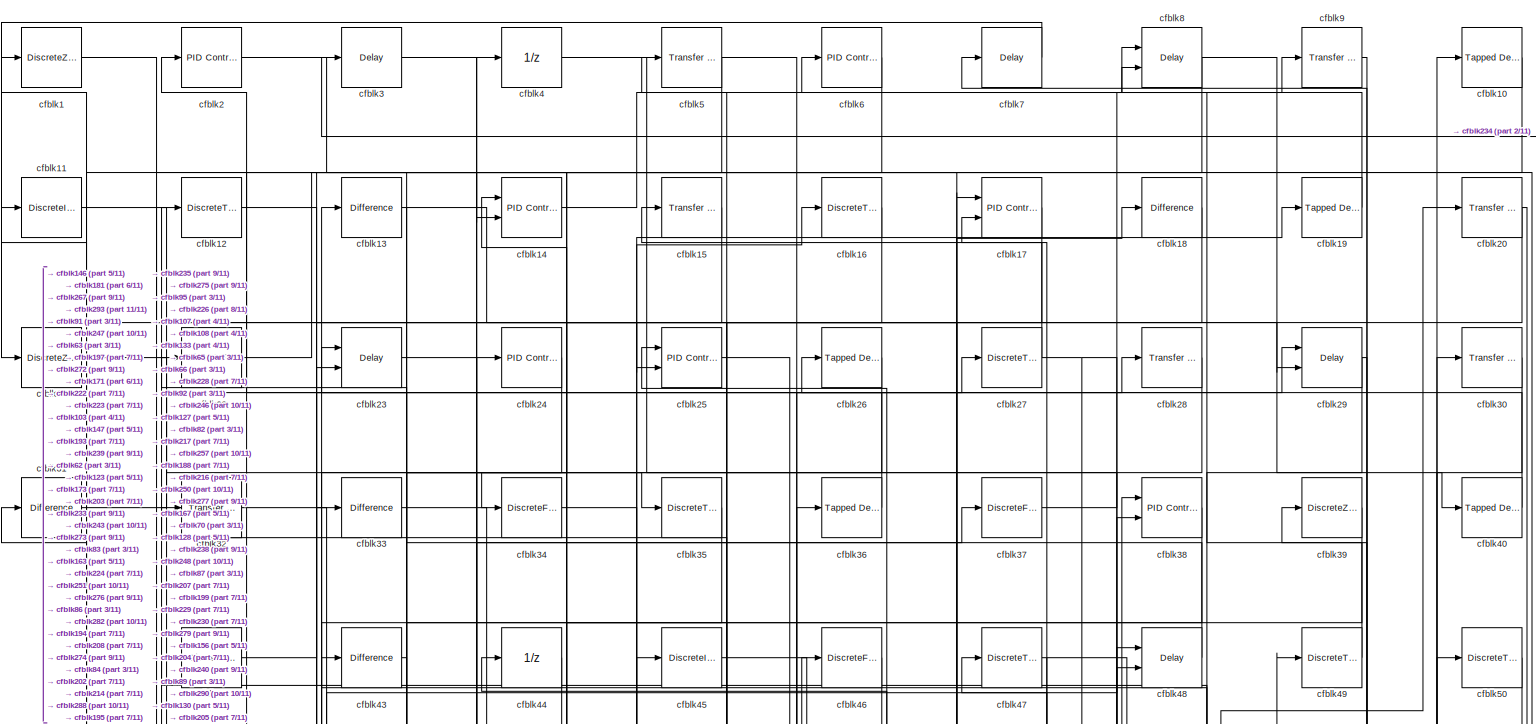
[diagram: root canvas - part 1/11, full width, top band]
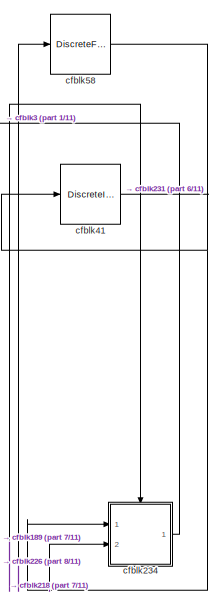
[diagram: root canvas - part 2/11, top right region]
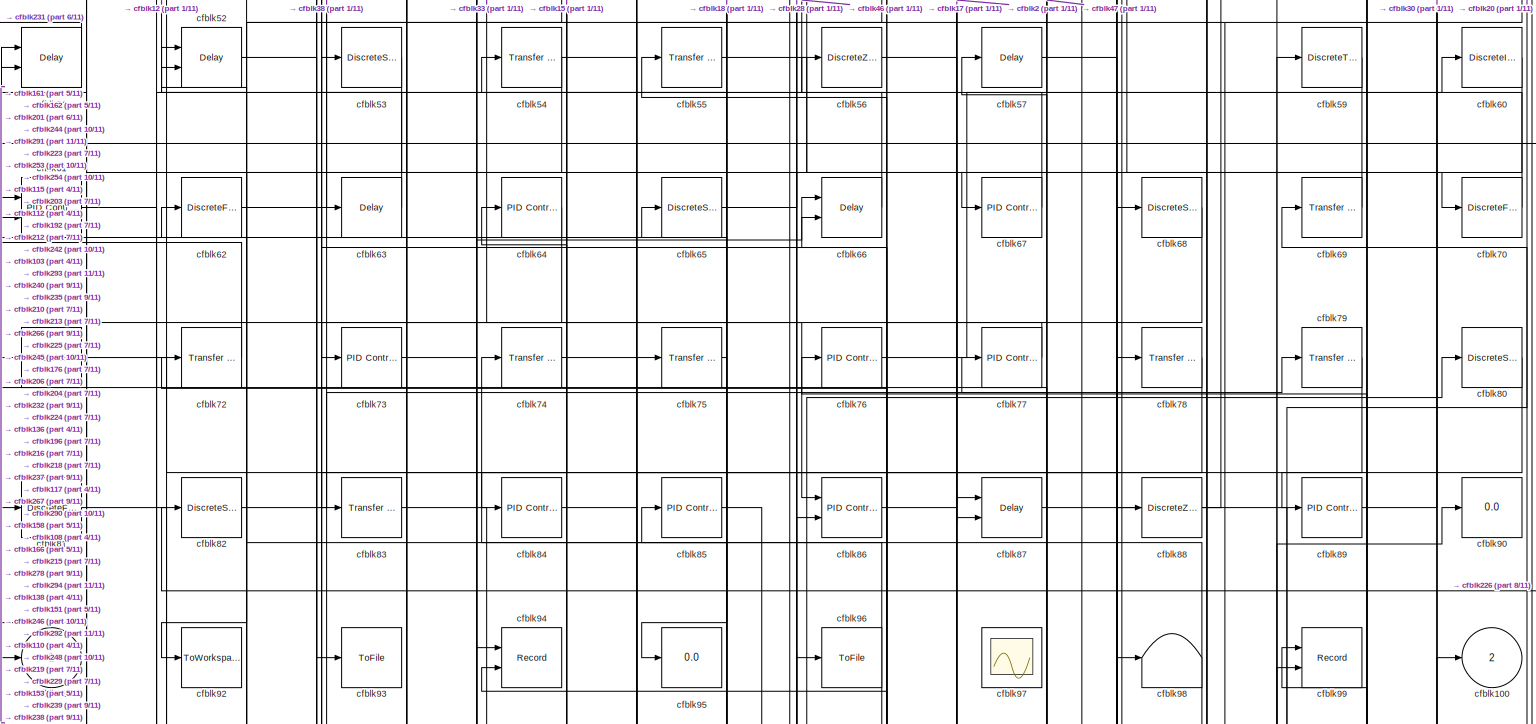
[diagram: root canvas - part 3/11, full width, top band]
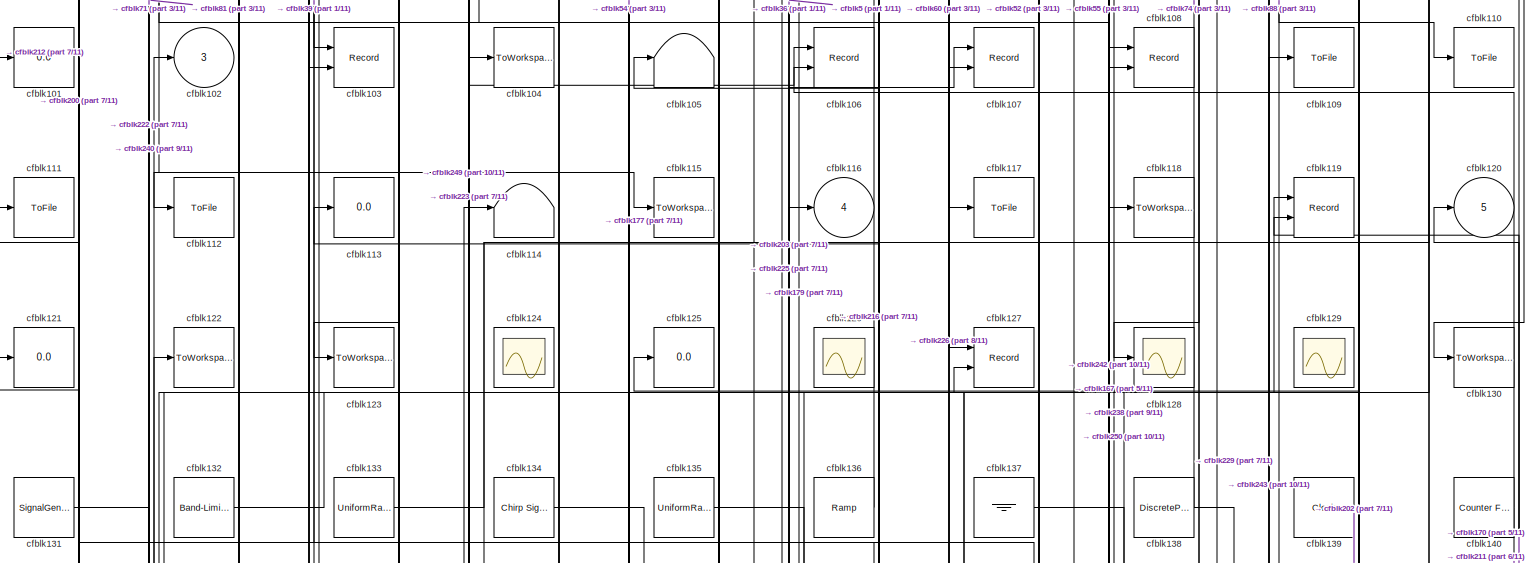
[diagram: root canvas - part 4/11, full width, middle band]
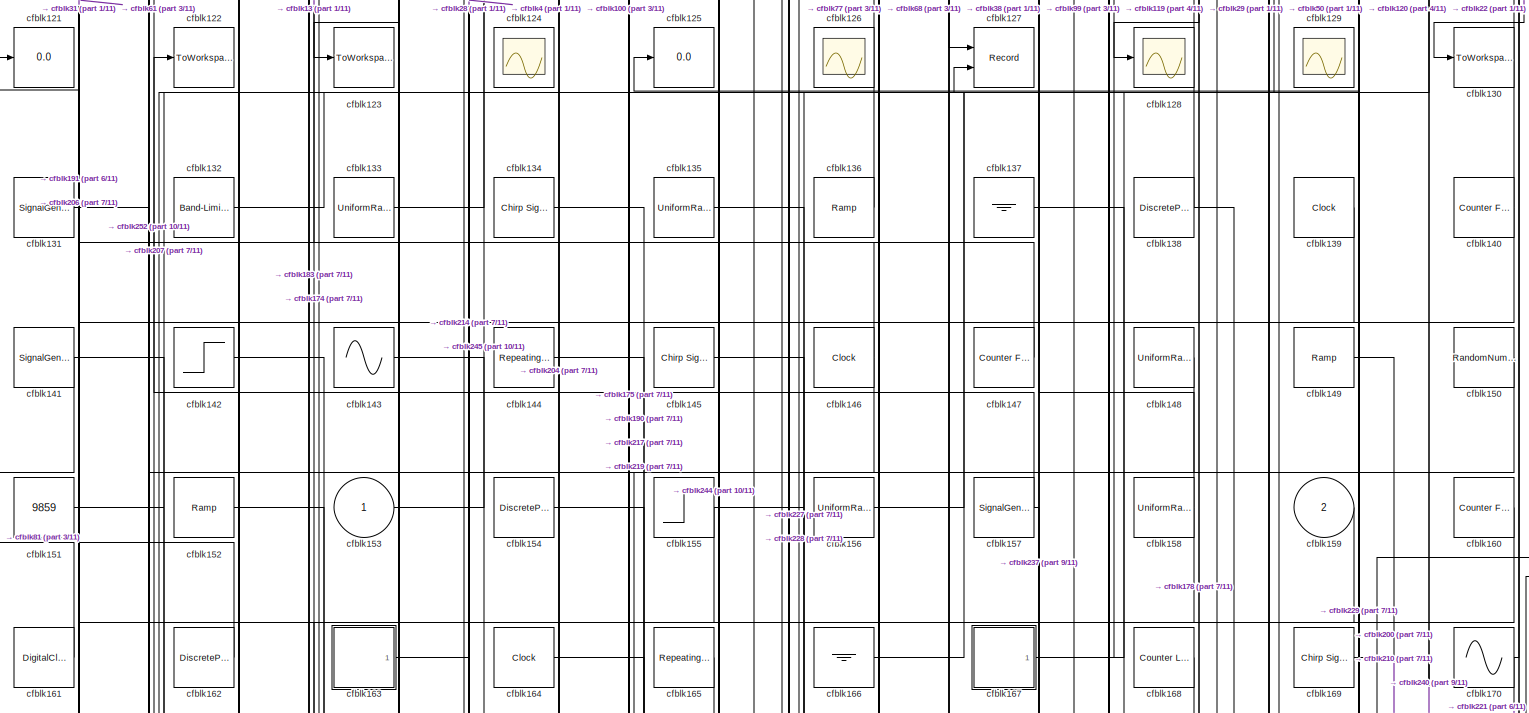
[diagram: root canvas - part 5/11, full width, middle band]
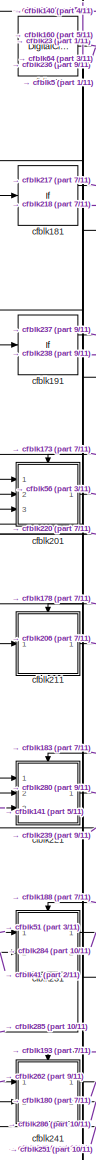
[diagram: root canvas - part 6/11, bottom left region]
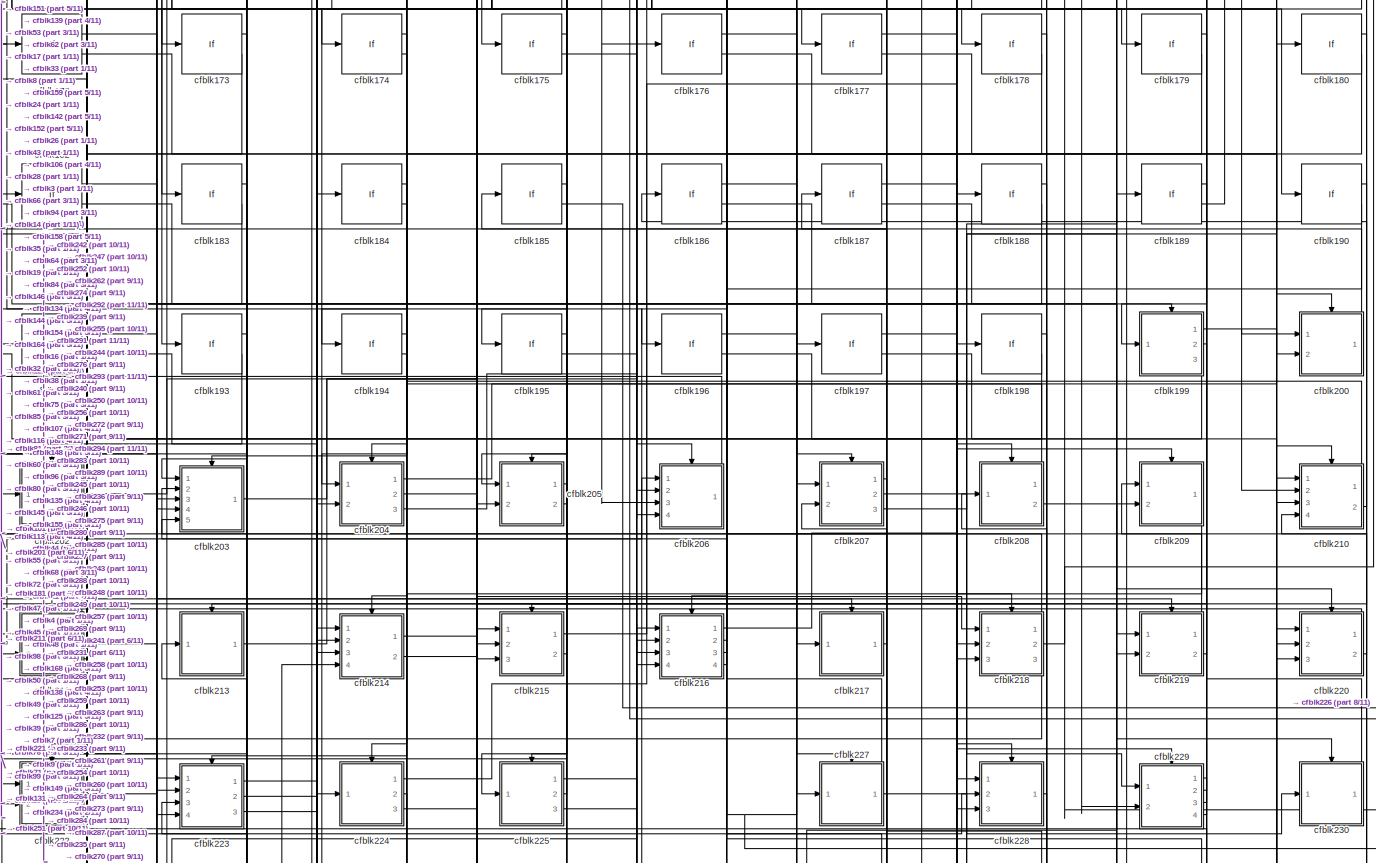
[diagram: root canvas - part 7/11, full width, bottom band]
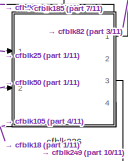
[diagram: root canvas - part 8/11, bottom right region]
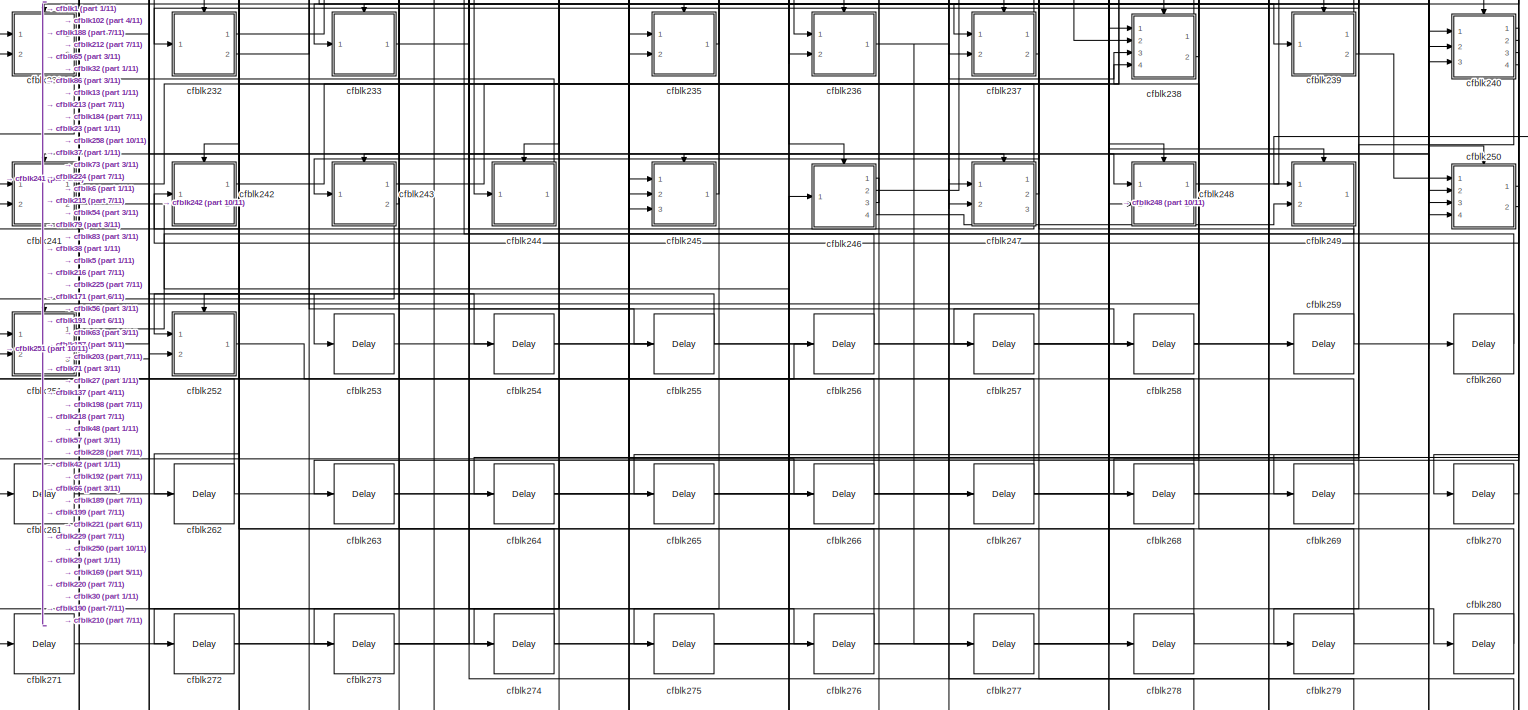
[diagram: root canvas - part 9/11, full width, bottom band]
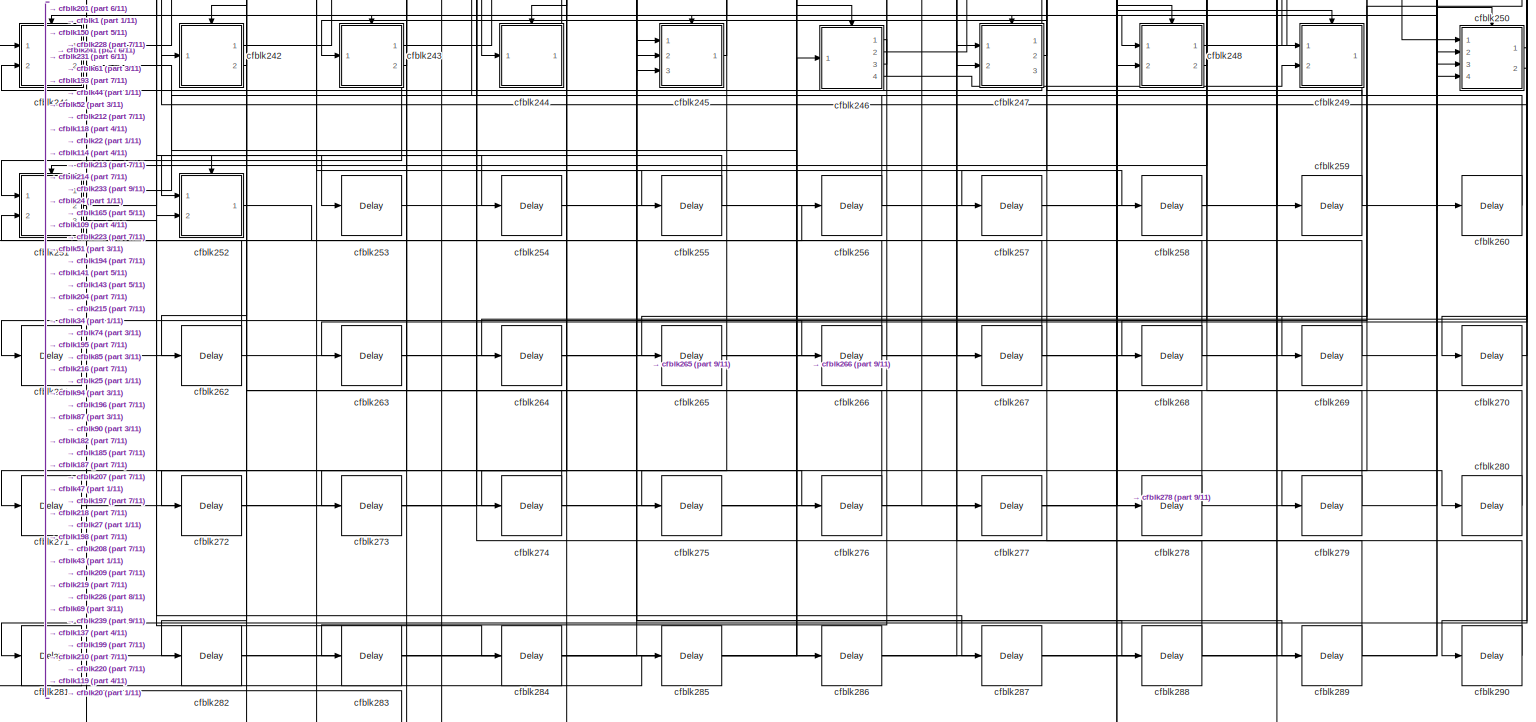
[diagram: root canvas - part 10/11, full width, bottom band]
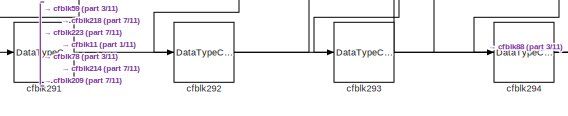
[diagram: root canvas - part 11/11, bottom left region]
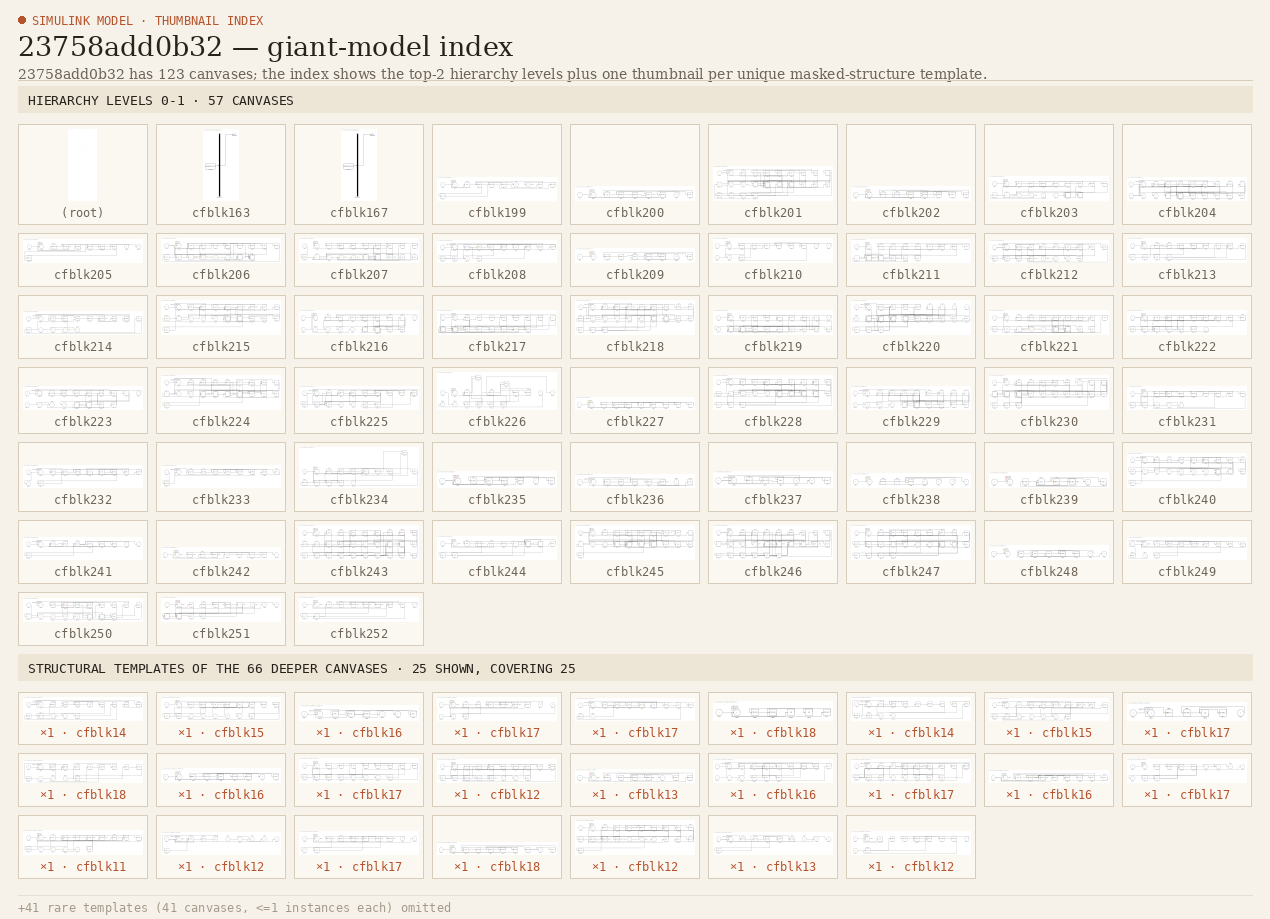
[diagram: thumbnail index - top-2 hierarchy levels (57 canvases) + 25 structural-template representatives of the remaining 66 canvases]
MODEL slx_23758add0b32
KIND model
CONFIG AbsTol = auto
CONFIG EnableMultiTasking = off
CONFIG FixedStep = auto
CONFIG MaxStep = auto
CONFIG MinStep = auto
CONFIG RelTol = 1e-3
CONFIG SampleTimeConstraint = Unconstrained
CONFIG SolverName = FixedStepAuto
CONFIG StartTime = 0.0
CONFIG StopTime = 10.0
BLOCK [DiscreteZeroPole] cfblk1
  Gain = 1
  Poles = [0 0.5]
BLOCK [Reference] cfblk10  REF=simulink/Discrete/Tapped Delay
  Ports = [1, 1]
  SourceBlock = simulink/Discrete/Tapped Delay
  SourceProductBaseCode = SL
  SourceType = Tapped Delay Line
BLOCK [Outport] cfblk100
  Port = 2
  VectorParamsAs1DForOutWhenUnconnected = off
BLOCK [Display] cfblk101
  Decimation = 1
  Ports = [1]
BLOCK [Outport] cfblk102
  Port = 3
  VectorParamsAs1DForOutWhenUnconnected = off
BLOCK [Record] cfblk103
  CompatibilityTag = XY
  FileSettingsInternal = {"entries":[{"content":{"excelSettings":{"content":{},"type":"Streamout.ExcelSettings"}},"type":"Streamout.FileSettingStorage","uuid":"30172691-4b6d-43b6-90c1-8d96ffbb56b2"}],"packageUris":["http://schema.mathworks.com/mf0/streamout_blocks/R2020a"],"version":"1.0"}
  Layout = [1 1]
  Ports = [2]
  SignalsInternal = {"entries":[{"content":{"signals":[{"content":{"blockPath":["crash_original/cfblk103"],"channel":[],"dimensions":[1],"domain":"crash_original/cfblk103","lineColor":"#a2142f","plots":[1],"port":1,"sid":[],"signalID":25354,"signalName":"XY Graph:1"},"type":"RecordBlkView.Signal","uuid":"414546f9-114d-477c-ba68-cfa88be5a9bf"},{"content":{"blockPath":["crash_original/cfblk103"],"channel":[],"dimension...<+391ch>
  VisualizationBindings = {"xyplotplugin":{"info":[{"series":[{"bindingParametersList":[{"parameter":"X-Axis","signalID":25354,"signalName":"XY Graph:1"},{"parameter":"Y-Axis","signalID":25357,"signalName":"XY Graph:2"}],"seriesID":52165}],"subplotID":1}]}}
  st = -1
BLOCK [ToWorkspace] cfblk104
  FixptAsFi = on
  MaxDataPoints = inf
  Ports = [1]
  SampleTime = -1
  SaveFormat = Timeseries
  VariableName = cgozpzv
BLOCK [Terminator] cfblk105
BLOCK [Record] cfblk106
  CompatibilityTag = XY
  FileSettingsInternal = {"entries":[{"content":{"excelSettings":{"content":{},"type":"Streamout.ExcelSettings"}},"type":"Streamout.FileSettingStorage","uuid":"5105aa24-88b4-4d22-8fbb-db2b517dd038"}],"packageUris":["http://schema.mathworks.com/mf0/streamout_blocks/R2020a"],"version":"1.0"}
  Layout = [1 1]
  Ports = [2]
  SignalsInternal = {"entries":[{"content":{"signals":[{"content":{"blockPath":["crash_original/cfblk106"],"channel":[],"dimensions":[1],"domain":"crash_original/cfblk106","lineColor":"#a2142f","plots":[1],"port":1,"sid":[],"signalID":25346,"signalName":"XY Graph:1"},"type":"RecordBlkView.Signal","uuid":"9204552f-2c26-4ac5-bb3a-39315a682c7e"},{"content":{"blockPath":["crash_original/cfblk106"],"channel":[],"dimension...<+391ch>
  VisualizationBindings = {"xyplotplugin":{"info":[{"series":[{"bindingParametersList":[{"parameter":"X-Axis","signalID":25346,"signalName":"XY Graph:1"},{"parameter":"Y-Axis","signalID":25349,"signalName":"XY Graph:2"}],"seriesID":14933}],"subplotID":1}]}}
  st = -1
BLOCK [Record] cfblk107
  CompatibilityTag = XY
  FileSettingsInternal = {"entries":[{"content":{"excelSettings":{"content":{},"type":"Streamout.ExcelSettings"}},"type":"Streamout.FileSettingStorage","uuid":"9a455097-a817-49c6-a5c0-eb2ae5036dd7"}],"packageUris":["http://schema.mathworks.com/mf0/streamout_blocks/R2020a"],"version":"1.0"}
  Layout = [1 1]
  Ports = [2]
  SignalsInternal = {"entries":[{"content":{"signals":[{"content":{"blockPath":["crash_original/cfblk107"],"channel":[],"dimensions":[1],"domain":"crash_original/cfblk107","lineColor":"#a2142f","plots":[1],"port":1,"sid":[],"signalID":25338,"signalName":"XY Graph:1"},"type":"RecordBlkView.Signal","uuid":"72b46ba4-58e1-4237-a289-6594da422004"},{"content":{"blockPath":["crash_original/cfblk107"],"channel":[],"dimension...<+391ch>
  VisualizationBindings = {"xyplotplugin":{"info":[{"series":[{"bindingParametersList":[{"parameter":"X-Axis","signalID":25338,"signalName":"XY Graph:1"},{"parameter":"Y-Axis","signalID":25341,"signalName":"XY Graph:2"}],"seriesID":31324}],"subplotID":1}]}}
  st = -1
BLOCK [Record] cfblk108
  CompatibilityTag = XY
  FileSettingsInternal = {"entries":[{"content":{"excelSettings":{"content":{},"type":"Streamout.ExcelSettings"}},"type":"Streamout.FileSettingStorage","uuid":"0bf2bf5e-f4e3-4816-82a7-4f814904066c"}],"packageUris":["http://schema.mathworks.com/mf0/streamout_blocks/R2020a"],"version":"1.0"}
  Layout = [1 1]
  Ports = [2]
  SignalsInternal = {"entries":[{"content":{"signals":[{"content":{"blockPath":["crash_original/cfblk108"],"channel":[],"dimensions":[1],"domain":"crash_original/cfblk108","lineColor":"#a2142f","plots":[1],"port":1,"sid":[],"signalID":25330,"signalName":"XY Graph:1"},"type":"RecordBlkView.Signal","uuid":"ec0f48f3-9d1b-4216-bb21-ef0bcc557efa"},{"content":{"blockPath":["crash_original/cfblk108"],"channel":[],"dimension...<+391ch>
  VisualizationBindings = {"xyplotplugin":{"info":[{"series":[{"bindingParametersList":[{"parameter":"X-Axis","signalID":25330,"signalName":"XY Graph:1"},{"parameter":"Y-Axis","signalID":25333,"signalName":"XY Graph:2"}],"seriesID":8656}],"subplotID":1}]}}
  st = -1
BLOCK [ToFile] cfblk109
  Filename = fwzz
  Ports = [1]
  SaveFormat = Timeseries
BLOCK [DiscreteIntegrator] cfblk11
  ICPrevOutput = DiscIntNeverNeededParam
  ICPrevScaledInput = DiscIntNeverNeededParam
  InitialConditionSetting = Auto
  Ports = [1, 1]
BLOCK [ToFile] cfblk110
  Filename = azky
  Ports = [1]
  SaveFormat = Timeseries
BLOCK [ToFile] cfblk111
  Filename = wang
  Ports = [1]
  SaveFormat = Timeseries
BLOCK [ToFile] cfblk112
  Filename = sawu
  Ports = [1]
  SaveFormat = Timeseries
BLOCK [Display] cfblk113
  Decimation = 1
  Ports = [1]
BLOCK [Terminator] cfblk114
BLOCK [ToWorkspace] cfblk115
  FixptAsFi = on
  MaxDataPoints = inf
  Ports = [1]
  SampleTime = -1
  SaveFormat = Timeseries
  VariableName = zazenij
BLOCK [Outport] cfblk116
  Port = 4
  VectorParamsAs1DForOutWhenUnconnected = off
BLOCK [ToFile] cfblk117
  Filename = bshz
  Ports = [1]
  SaveFormat = Timeseries
BLOCK [ToWorkspace] cfblk118
  FixptAsFi = on
  MaxDataPoints = inf
  Ports = [1]
  SampleTime = -1
  SaveFormat = Timeseries
  VariableName = rpdzwsv
BLOCK [Record] cfblk119
  CompatibilityTag = XY
  FileSettingsInternal = {"entries":[{"content":{"excelSettings":{"content":{},"type":"Streamout.ExcelSettings"}},"type":"Streamout.FileSettingStorage","uuid":"fee27d59-1ddc-47f4-9b88-6ce813c8d426"}],"packageUris":["http://schema.mathworks.com/mf0/streamout_blocks/R2020a"],"version":"1.0"}
  Layout = [1 1]
  Ports = [2]
  SignalsInternal = {"entries":[{"content":{"signals":[{"content":{"blockPath":["crash_original/cfblk119"],"channel":[],"dimensions":[1],"domain":"crash_original/cfblk119","lineColor":"#a2142f","plots":[1],"port":1,"sid":[],"signalID":25322,"signalName":"XY Graph:1"},"type":"RecordBlkView.Signal","uuid":"effbb9bf-c420-46b1-a7d1-1e032b18154d"},{"content":{"blockPath":["crash_original/cfblk119"],"channel":[],"dimension...<+391ch>
  VisualizationBindings = {"xyplotplugin":{"info":[{"series":[{"bindingParametersList":[{"parameter":"X-Axis","signalID":25322,"signalName":"XY Graph:1"},{"parameter":"Y-Axis","signalID":25325,"signalName":"XY Graph:2"}],"seriesID":29524}],"subplotID":1}]}}
  st = -1
BLOCK [DiscreteTransferFcn] cfblk12
  InputPortMap = u0
  Ports = [1, 1]
  SampleTime = 1
BLOCK [Outport] cfblk120
  Port = 5
  VectorParamsAs1DForOutWhenUnconnected = off
BLOCK [Display] cfblk121
  Decimation = 1
  Ports = [1]
BLOCK [ToWorkspace] cfblk122
  FixptAsFi = on
  MaxDataPoints = inf
  Ports = [1]
  SampleTime = -1
  SaveFormat = Timeseries
  VariableName = qvnyrom
BLOCK [ToWorkspace] cfblk123
  FixptAsFi = on
  MaxDataPoints = inf
  Ports = [1]
  SampleTime = -1
  SaveFormat = Timeseries
  VariableName = lxbvxco
BLOCK [Scope] cfblk124
  Floating = on
  NumInputPorts = 1
  Ports = []
  ScopeSpecificationString = Simulink.scopes.TimeScopeBlockCfg
BLOCK [Display] cfblk125
  Decimation = 1
  Ports = [1]
BLOCK [Scope] cfblk126
  Floating = on
  NumInputPorts = 1
  Ports = []
  ScopeSpecificationString = Simulink.scopes.TimeScopeBlockCfg
BLOCK [Record] cfblk127
  CompatibilityTag = XY
  FileSettingsInternal = {"entries":[{"content":{"excelSettings":{"content":{},"type":"Streamout.ExcelSettings"}},"type":"Streamout.FileSettingStorage","uuid":"83428cd0-c40d-4b56-9453-87c774a237f4"}],"packageUris":["http://schema.mathworks.com/mf0/streamout_blocks/R2020a"],"version":"1.0"}
  Layout = [1 1]
  Ports = [2]
  SignalsInternal = {"entries":[{"content":{"signals":[{"content":{"blockPath":["crash_original/cfblk127"],"channel":[],"dimensions":[1],"domain":"crash_original/cfblk127","lineColor":"#a2142f","plots":[1],"port":1,"sid":[],"signalID":25314,"signalName":"XY Graph:1"},"type":"RecordBlkView.Signal","uuid":"4ffe00b0-219f-48e9-9eae-af36f4ef0fcf"},{"content":{"blockPath":["crash_original/cfblk127"],"channel":[],"dimension...<+391ch>
  VisualizationBindings = {"xyplotplugin":{"info":[{"series":[{"bindingParametersList":[{"parameter":"X-Axis","signalID":25314,"signalName":"XY Graph:1"},{"parameter":"Y-Axis","signalID":25317,"signalName":"XY Graph:2"}],"seriesID":431}],"subplotID":1}]}}
  st = -1
BLOCK [Scope] cfblk128
  Floating = off
  NumInputPorts = 1
  Ports = [1]
  ScopeSpecificationString = Simulink.scopes.TimeScopeBlockCfg
BLOCK [Scope] cfblk129
  Floating = on
  NumInputPorts = 1
  Ports = []
  ScopeSpecificationString = Simulink.scopes.TimeScopeBlockCfg
BLOCK [Reference] cfblk13  REF=simulink/Discrete/Difference
  Ports = [1, 1]
  SourceBlock = simulink/Discrete/Difference
  SourceProductBaseCode = SL
  SourceType = Difference
BLOCK [ToWorkspace] cfblk130
  FixptAsFi = on
  MaxDataPoints = inf
  Ports = [1]
  SampleTime = -1
  SaveFormat = Timeseries
  VariableName = vapjgvn
BLOCK [SignalGenerator] cfblk131
  Ports = [0, 1]
  Units = rad/sec
BLOCK [Reference] cfblk132  REF=simulink/Sources/Band-Limited
White Noise
  Ports = [0, 1]
  SourceBlock = simulink/Sources/Band-Limited\nWhite Noise
  SourceProductBaseCode = SL
  SourceType = Band-Limited White Noise.
BLOCK [UniformRandomNumber] cfblk133
  SampleTime = 0.1
BLOCK [Reference] cfblk134  REF=simulink/Sources/Chirp Signal
  Ports = [0, 1]
  SourceBlock = simulink/Sources/Chirp Signal
  SourceProductBaseCode = SL
  SourceType = chirp
BLOCK [UniformRandomNumber] cfblk135
  SampleTime = 0.1
BLOCK [Reference] cfblk136  REF=simulink/Sources/Ramp
  Ports = [0, 1]
  SourceBlock = simulink/Sources/Ramp
  SourceProductBaseCode = SL
  SourceType = Ramp
BLOCK [Ground] cfblk137
BLOCK [DiscretePulseGenerator] cfblk138
  Period = 10
  Ports = [0, 1]
  PulseType = Time based
  PulseWidth = 5
BLOCK [Clock] cfblk139
BLOCK [Reference] cfblk14  REF=slpidlib/PID Controller (2DOF)
  Ports = [2, 1]
  SourceBlock = slpidlib/PID Controller (2DOF)
  SourceProductBaseCode = SL
  SourceType = PID 2dof
BLOCK [Reference] cfblk140  REF=simulink/Sources/Counter
Free-Running
  Ports = [0, 1]
  SourceBlock = simulink/Sources/Counter\nFree-Running
  SourceProductBaseCode = SL
  SourceType = Counter Free-Running
BLOCK [SignalGenerator] cfblk141
  Ports = [0, 1]
  Units = rad/sec
BLOCK [Step] cfblk142
  After = 57
  SampleTime = 0
BLOCK [Sin] cfblk143
  Ports = [0, 1]
  SampleTime = 0
BLOCK [Reference] cfblk144  REF=simulink/Sources/Repeating
Sequence
  Ports = [0, 1]
  SourceBlock = simulink/Sources/Repeating\nSequence
  SourceProductBaseCode = SL
  SourceType = Repeating table
BLOCK [Reference] cfblk145  REF=simulink/Sources/Chirp Signal
  Ports = [0, 1]
  SourceBlock = simulink/Sources/Chirp Signal
  SourceProductBaseCode = SL
  SourceType = chirp
BLOCK [Clock] cfblk146
BLOCK [Reference] cfblk147  REF=simulink/Sources/Counter
Free-Running
  Ports = [0, 1]
  SourceBlock = simulink/Sources/Counter\nFree-Running
  SourceProductBaseCode = SL
  SourceType = Counter Free-Running
BLOCK [UniformRandomNumber] cfblk148
  SampleTime = 0.1
BLOCK [Reference] cfblk149  REF=simulink/Sources/Ramp
  Ports = [0, 1]
  SourceBlock = simulink/Sources/Ramp
  SourceProductBaseCode = SL
  SourceType = Ramp
BLOCK [Reference] cfblk15  REF=simulink/Discrete/Transfer Fcn
Real Zero
  Ports = [1, 1]
  SourceBlock = simulink/Discrete/Transfer Fcn\nReal Zero
  SourceProductBaseCode = SL
  SourceType = Transfer Fcn Real Zero
BLOCK [RandomNumber] cfblk150
  SampleTime = 0.1
BLOCK [Constant] cfblk151
  Value = 9859
BLOCK [Reference] cfblk152  REF=simulink/Sources/Ramp
  Ports = [0, 1]
  SourceBlock = simulink/Sources/Ramp
  SourceProductBaseCode = SL
  SourceType = Ramp
BLOCK [Inport] cfblk153
BLOCK [DiscretePulseGenerator] cfblk154
  Period = 10
  Ports = [0, 1]
  PulseType = Time based
  PulseWidth = 5
BLOCK [Step] cfblk155
  After = 75
  SampleTime = 0
BLOCK [UniformRandomNumber] cfblk156
  SampleTime = 0.1
BLOCK [SignalGenerator] cfblk157
  Ports = [0, 1]
  Units = rad/sec
BLOCK [UniformRandomNumber] cfblk158
  SampleTime = 0.1
BLOCK [Inport] cfblk159
  Port = 2
BLOCK [DiscreteTransferFcn] cfblk16
  InputPortMap = u0
  Ports = [1, 1]
  SampleTime = 1
BLOCK [Reference] cfblk160  REF=simulink/Sources/Counter
Free-Running
  Ports = [0, 1]
  SourceBlock = simulink/Sources/Counter\nFree-Running
  SourceProductBaseCode = SL
  SourceType = Counter Free-Running
BLOCK [DigitalClock] cfblk161
BLOCK [DiscretePulseGenerator] cfblk162
  Period = 10
  Ports = [0, 1]
  PulseType = Time based
  PulseWidth = 5
BLOCK [SubSystem] cfblk163
  ClipboardFcn = sigbuilder_block('clipboard');
  CloseFcn = sigbuilder_block('close');
  ContinueFcn = sigbuilder_block('continue');
  CopyFcn = sigbuilder_block('copy');
  DeleteFcn = sigbuilder_block('delete');
  LoadFcn = sigbuilder_block('load');
  MaskHideContents = on
  ModelCloseFcn = sigbuilder_block('modelClose');
  NameChangeFcn = sigbuilder_block('namechange');
  OpenFcn = sigbuilder_block('open',[437.6 199.2 550.4 400 ]);
  PauseFcn = sigbuilder_block('pause');
  Ports = [0, 1]
  PreSaveFcn = sigbuilder_block('preSave');
  RequestExecContextInheritance = off
  StartFcn = sigbuilder_block('start');
  StopFcn = sigbuilder_block('stop');
  Tag = STV Subsys
BLOCK [Demux] cfblk163/Demux
  DisplayOption = none
  Outputs = 1
  Ports = [1, 1]
  Tag = STV Demux
BLOCK [FromWorkspace] cfblk163/FromWs
  Tag = STV FromWs
  VariableName = tuvar
BLOCK [Outport] cfblk163/Signal 1
  Tag = STV Outport
  VectorParamsAs1DForOutWhenUnconnected = off
BLOCK [Clock] cfblk164
BLOCK [Reference] cfblk165  REF=simulink/Sources/Repeating
Sequence
Stair
  Ports = [0, 1]
  SourceBlock = simulink/Sources/Repeating\nSequence\nStair
  SourceProductBaseCode = SL
  SourceType = Repeating Sequence Stair
BLOCK [Ground] cfblk166
BLOCK [SubSystem] cfblk167
  ClipboardFcn = sigbuilder_block('clipboard');
  CloseFcn = sigbuilder_block('close');
  ContinueFcn = sigbuilder_block('continue');
  CopyFcn = sigbuilder_block('copy');
  DeleteFcn = sigbuilder_block('delete');
  LoadFcn = sigbuilder_block('load');
  MaskHideContents = on
  ModelCloseFcn = sigbuilder_block('modelClose');
  NameChangeFcn = sigbuilder_block('namechange');
  OpenFcn = sigbuilder_block('open',[437.6 199.2 550.4 400 ]);
  PauseFcn = sigbuilder_block('pause');
  Ports = [0, 1]
  PreSaveFcn = sigbuilder_block('preSave');
  RequestExecContextInheritance = off
  StartFcn = sigbuilder_block('start');
  StopFcn = sigbuilder_block('stop');
  Tag = STV Subsys
BLOCK [Demux] cfblk167/Demux
  DisplayOption = none
  Outputs = 1
  Ports = [1, 1]
  Tag = STV Demux
BLOCK [FromWorkspace] cfblk167/FromWs
  Tag = STV FromWs
  VariableName = tuvar
BLOCK [Outport] cfblk167/Signal 1
  Tag = STV Outport
  VectorParamsAs1DForOutWhenUnconnected = off
BLOCK [Reference] cfblk168  REF=simulink/Sources/Counter
Limited
  Ports = [0, 1]
  SourceBlock = simulink/Sources/Counter\nLimited
  SourceProductBaseCode = SL
  SourceType = Counter Limited
BLOCK [Reference] cfblk169  REF=simulink/Sources/Chirp Signal
  Ports = [0, 1]
  SourceBlock = simulink/Sources/Chirp Signal
  SourceProductBaseCode = SL
  SourceType = chirp
BLOCK [Reference] cfblk17  REF=slpidlib/PID Controller (2DOF)
  Ports = [2, 1]
  SourceBlock = slpidlib/PID Controller (2DOF)
  SourceProductBaseCode = SL
  SourceType = PID 2dof
BLOCK [Sin] cfblk170
  Ports = [0, 1]
  SampleTime = 0
BLOCK [DigitalClock] cfblk171
BLOCK [If] cfblk172
  Ports = [1, 2]
  SampleTime = 1
BLOCK [If] cfblk173
  Ports = [1, 2]
  SampleTime = 1
BLOCK [If] cfblk174
  Ports = [1, 2]
  SampleTime = 1
BLOCK [If] cfblk175
  Ports = [1, 2]
  SampleTime = 1
BLOCK [If] cfblk176
  Ports = [1, 2]
  SampleTime = 1
BLOCK [If] cfblk177
  Ports = [1, 2]
  SampleTime = 1
BLOCK [If] cfblk178
  Ports = [1, 2]
  SampleTime = 1
BLOCK [If] cfblk179
  Ports = [1, 2]
  SampleTime = 1
BLOCK [Reference] cfblk18  REF=simulink/Discrete/Difference
  Ports = [1, 1]
  SourceBlock = simulink/Discrete/Difference
  SourceProductBaseCode = SL
  SourceType = Difference
BLOCK [If] cfblk180
  Ports = [1, 2]
  SampleTime = 1
BLOCK [If] cfblk181
  Ports = [1, 2]
  SampleTime = 1
BLOCK [If] cfblk182
  Ports = [1, 2]
  SampleTime = 1
BLOCK [If] cfblk183
  Ports = [1, 2]
  SampleTime = 1
BLOCK [If] cfblk184
  Ports = [1, 2]
  SampleTime = 1
BLOCK [If] cfblk185
  Ports = [1, 2]
  SampleTime = 1
BLOCK [If] cfblk186
  Ports = [1, 2]
  SampleTime = 1
BLOCK [If] cfblk187
  Ports = [1, 2]
  SampleTime = 1
BLOCK [If] cfblk188
  Ports = [1, 2]
  SampleTime = 1
BLOCK [If] cfblk189
  Ports = [1, 2]
  SampleTime = 1
BLOCK [Reference] cfblk19  REF=simulink/Discrete/Tapped Delay
  Ports = [1, 1]
  SourceBlock = simulink/Discrete/Tapped Delay
  SourceProductBaseCode = SL
  SourceType = Tapped Delay Line
BLOCK [If] cfblk190
  Ports = [1, 2]
  SampleTime = 1
BLOCK [If] cfblk191
  Ports = [1, 2]
  SampleTime = 1
BLOCK [If] cfblk192
  Ports = [1, 2]
  SampleTime = 1
BLOCK [If] cfblk193
  Ports = [1, 2]
  SampleTime = 1
BLOCK [If] cfblk194
  Ports = [1, 2]
  SampleTime = 1
BLOCK [If] cfblk195
  Ports = [1, 2]
  SampleTime = 1
BLOCK [If] cfblk196
  Ports = [1, 2]
  SampleTime = 1
BLOCK [If] cfblk197
  Ports = [1, 2]
  SampleTime = 1
BLOCK [If] cfblk198
  Ports = [1, 2]
  SampleTime = 1
BLOCK [SubSystem] cfblk199
  Ports = [1, 3, 0, 0, 0, 0, 0, 1]
  RequestExecContextInheritance = off
  TreatAsAtomicUnit = on
BLOCK [ActionPort] cfblk199/Action Port
  ActionPortLabel = if { }
BLOCK [Inport] cfblk199/cfblk1
BLOCK [DataTypeConversion] cfblk199/cfblk10
  RndMeth = Floor
  SaturateOnIntegerOverflow = off
BLOCK [DataTypeConversion] cfblk199/cfblk11
  RndMeth = Floor
  SaturateOnIntegerOverflow = off
BLOCK [Outport] cfblk199/cfblk2
  VectorParamsAs1DForOutWhenUnconnected = off
BLOCK [UnitDelay] cfblk199/cfblk3
  HasFrameUpgradeWarning = on
  SampleTime = -1
BLOCK [DiscreteStateSpace] cfblk199/cfblk4
  SampleTime = -1
BLOCK [Reference] cfblk199/cfblk5  REF=slpidlib/PID Controller
  Ports = [1, 1]
  SourceBlock = slpidlib/PID Controller
  SourceProductBaseCode = SL
  SourceType = PID 1dof
BLOCK [Reference] cfblk199/cfblk6  REF=slpidlib/PID Controller
  Ports = [1, 1]
  SourceBlock = slpidlib/PID Controller
  SourceProductBaseCode = SL
  SourceType = PID 1dof
BLOCK [Outport] cfblk199/cfblk7
  Port = 2
  VectorParamsAs1DForOutWhenUnconnected = off
BLOCK [Outport] cfblk199/cfblk8
  Port = 3
  VectorParamsAs1DForOutWhenUnconnected = off
BLOCK [Delay] cfblk199/cfblk9
  InputPortMap = u0
  Ports = [1, 1]
BLOCK [Reference] cfblk2  REF=slpidlib/PID Controller
  Ports = [1, 1]
  SourceBlock = slpidlib/PID Controller
  SourceProductBaseCode = SL
  SourceType = PID 1dof
BLOCK [Reference] cfblk20  REF=simulink/Discrete/Transfer Fcn
First Order
  Ports = [1, 1]
  SourceBlock = simulink/Discrete/Transfer Fcn\nFirst Order
  SourceProductBaseCode = SL
  SourceType = First Order Transfer Fcn
BLOCK [SubSystem] cfblk200
  Ports = [2, 1, 0, 0, 0, 0, 0, 1]
  RequestExecContextInheritance = off
  TreatAsAtomicUnit = on
BLOCK [ActionPort] cfblk200/Action Port
  ActionPortLabel = else { }
BLOCK [Inport] cfblk200/cfblk1
BLOCK [Outport] cfblk200/cfblk2
  VectorParamsAs1DForOutWhenUnconnected = off
BLOCK [UnitDelay] cfblk200/cfblk3
  HasFrameUpgradeWarning = on
  SampleTime = -1
BLOCK [DiscreteTransferFcn] cfblk200/cfblk4
  InputPortMap = u0
  Ports = [1, 1]
BLOCK [DiscreteStateSpace] cfblk200/cfblk5
  SampleTime = -1
BLOCK [Delay] cfblk200/cfblk6
  InputPortMap = u0,e6
  Ports = [2, 1]
  ShowEnablePort = on
BLOCK [Reference] cfblk200/cfblk7  REF=simulink/Discrete/Transfer Fcn
First Order
  Ports = [1, 1]
  SourceBlock = simulink/Discrete/Transfer Fcn\nFirst Order
  SourceProductBaseCode = SL
  SourceType = First Order Transfer Fcn
BLOCK [Inport] cfblk200/cfblk8
  Port = 2
BLOCK [Delay] cfblk200/cfblk9
  InputPortMap = u0
  Ports = [1, 1]
BLOCK [SubSystem] cfblk201
  Ports = [3, 1, 0, 0, 0, 0, 0, 1]
  RequestExecContextInheritance = off
  TreatAsAtomicUnit = on
BLOCK [ActionPort] cfblk201/Action Port
  ActionPortLabel = if { }
BLOCK [Inport] cfblk201/cfblk1
BLOCK [If] cfblk201/cfblk10
  Ports = [1, 2]
  SampleTime = 1
BLOCK [If] cfblk201/cfblk11
  Ports = [1, 2]
  SampleTime = 1
BLOCK [Inport] cfblk201/cfblk12
  Port = 2
BLOCK [Inport] cfblk201/cfblk13
  Port = 3
BLOCK [SubSystem] cfblk201/cfblk14
  Ports = [2, 2, 0, 0, 0, 0, 0, 1]
  RequestExecContextInheritance = off
  TreatAsAtomicUnit = on
BLOCK [ActionPort] cfblk201/cfblk14/Action Port
  ActionPortLabel = if { }
BLOCK [Inport] cfblk201/cfblk14/cfblk1
BLOCK [DiscreteZeroPole] cfblk201/cfblk14/cfblk10
  Gain = 1
  Poles = [0 0.5]
  SampleTime = -1
BLOCK [DiscreteZeroPole] cfblk201/cfblk14/cfblk11
  Gain = 1
  Poles = [0 0.5]
  SampleTime = -1
BLOCK [Reference] cfblk201/cfblk14/cfblk12  REF=simulink/Discrete/Difference
  Ports = [1, 1]
  SourceBlock = simulink/Discrete/Difference
  SourceProductBaseCode = SL
  SourceType = Difference
BLOCK [Inport] cfblk201/cfblk14/cfblk13
  Port = 2
BLOCK [Outport] cfblk201/cfblk14/cfblk14
  Port = 2
  VectorParamsAs1DForOutWhenUnconnected = off
BLOCK [Delay] cfblk201/cfblk14/cfblk15
  InputPortMap = u0
  Ports = [1, 1]
BLOCK [Outport] cfblk201/cfblk14/cfblk2
  VectorParamsAs1DForOutWhenUnconnected = off
BLOCK [DiscreteStateSpace] cfblk201/cfblk14/cfblk3
  SampleTime = -1
BLOCK [Reference] cfblk201/cfblk14/cfblk4  REF=slpidlib/PID Controller (2DOF)
  Ports = [2, 1]
  SourceBlock = slpidlib/PID Controller (2DOF)
  SourceProductBaseCode = SL
  SourceType = PID 2dof
BLOCK [DiscreteZeroPole] cfblk201/cfblk14/cfblk5
  Gain = 1
  Poles = [0 0.5]
  SampleTime = -1
BLOCK [UnitDelay] cfblk201/cfblk14/cfblk6
  HasFrameUpgradeWarning = on
  SampleTime = -1
BLOCK [DiscreteIntegrator] cfblk201/cfblk14/cfblk7
  ICPrevOutput = DiscIntNeverNeededParam
  ICPrevScaledInput = DiscIntNeverNeededParam
  InitialConditionSetting = Auto
  Ports = [1, 1]
  SampleTime = -1
BLOCK [DiscreteFilter] cfblk201/cfblk14/cfblk8
  InputPortMap = u0
  Ports = [1, 1]
BLOCK [DiscreteTransferFcn] cfblk201/cfblk14/cfblk9
  InputPortMap = u0
  Ports = [1, 1]
BLOCK [SubSystem] cfblk201/cfblk15
  Ports = [5, 2, 0, 0, 0, 0, 0, 1]
  RequestExecContextInheritance = off
  TreatAsAtomicUnit = on
BLOCK [ActionPort] cfblk201/cfblk15/Action Port
  ActionPortLabel = else { }
BLOCK [Inport] cfblk201/cfblk15/cfblk1
BLOCK [DiscreteTransferFcn] cfblk201/cfblk15/cfblk10
  InputPortMap = u0
  Ports = [1, 1]
BLOCK [UnitDelay] cfblk201/cfblk15/cfblk11
  HasFrameUpgradeWarning = on
  SampleTime = -1
BLOCK [DiscreteZeroPole] cfblk201/cfblk15/cfblk12
  Gain = 1
  Poles = [0 0.5]
  SampleTime = -1
BLOCK [Inport] cfblk201/cfblk15/cfblk13
  Port = 2
BLOCK [Inport] cfblk201/cfblk15/cfblk14
  Port = 3
BLOCK [Inport] cfblk201/cfblk15/cfblk15
  Port = 4
BLOCK [Inport] cfblk201/cfblk15/cfblk16
  Port = 5
BLOCK [Outport] cfblk201/cfblk15/cfblk17
  Port = 2
  VectorParamsAs1DForOutWhenUnconnected = off
BLOCK [Delay] cfblk201/cfblk15/cfblk18
  InputPortMap = u0
  Ports = [1, 1]
BLOCK [Outport] cfblk201/cfblk15/cfblk2
  VectorParamsAs1DForOutWhenUnconnected = off
BLOCK [DiscreteStateSpace] cfblk201/cfblk15/cfblk3
  SampleTime = -1
BLOCK [Reference] cfblk201/cfblk15/cfblk4  REF=simulink/Discrete/Tapped Delay
  Ports = [1, 1]
  SourceBlock = simulink/Discrete/Tapped Delay
  SourceProductBaseCode = SL
  SourceType = Tapped Delay Line
BLOCK [UnitDelay] cfblk201/cfblk15/cfblk5
  HasFrameUpgradeWarning = on
  SampleTime = -1
BLOCK [Reference] cfblk201/cfblk15/cfblk6  REF=slpidlib/PID Controller
  Ports = [1, 1]
  SourceBlock = slpidlib/PID Controller
  SourceProductBaseCode = SL
  SourceType = PID 1dof
BLOCK [Delay] cfblk201/cfblk15/cfblk7
  InputPortMap = u0,e6
  Ports = [2, 1]
  ShowEnablePort = on
BLOCK [Delay] cfblk201/cfblk15/cfblk8
  DelayLengthSource = Input port
  InputPortMap = u0,p1
  Ports = [2, 1]
BLOCK [DiscreteFir] cfblk201/cfblk15/cfblk9
  InputPortMap = u0
  OutputPortMap = o0
  Ports = [1, 1]
BLOCK [SubSystem] cfblk201/cfblk16
  Ports = [1, 3, 0, 0, 0, 0, 0, 1]
  RequestExecContextInheritance = off
  TreatAsAtomicUnit = on
BLOCK [ActionPort] cfblk201/cfblk16/Action Port
  ActionPortLabel = if { }
BLOCK [Inport] cfblk201/cfblk16/cfblk1
BLOCK [Outport] cfblk201/cfblk16/cfblk2
  VectorParamsAs1DForOutWhenUnconnected = off
BLOCK [Delay] cfblk201/cfblk16/cfblk3
  InputPortMap = u0
  Ports = [1, 1]
BLOCK [Delay] cfblk201/cfblk16/cfblk4
  InputPortMap = u0,e6
  Ports = [2, 1]
  ShowEnablePort = on
BLOCK [DiscreteTransferFcn] cfblk201/cfblk16/cfblk5
  InputPortMap = u0
  Ports = [1, 1]
BLOCK [Outport] cfblk201/cfblk16/cfblk6
  Port = 2
  VectorParamsAs1DForOutWhenUnconnected = off
BLOCK [Outport] cfblk201/cfblk16/cfblk7
  Port = 3
  VectorParamsAs1DForOutWhenUnconnected = off
BLOCK [Delay] cfblk201/cfblk16/cfblk8
  InputPortMap = u0
  Ports = [1, 1]
BLOCK [SubSystem] cfblk201/cfblk17
  Ports = [4, 2, 0, 0, 0, 0, 0, 1]
  RequestExecContextInheritance = off
  TreatAsAtomicUnit = on
BLOCK [ActionPort] cfblk201/cfblk17/Action Port
  ActionPortLabel = else { }
BLOCK [Inport] cfblk201/cfblk17/cfblk1
BLOCK [Inport] cfblk201/cfblk17/cfblk10
  Port = 3
BLOCK [Inport] cfblk201/cfblk17/cfblk11
  Port = 4
BLOCK [Outport] cfblk201/cfblk17/cfblk12
  Port = 2
  VectorParamsAs1DForOutWhenUnconnected = off
BLOCK [Delay] cfblk201/cfblk17/cfblk13
  InputPortMap = u0
  Ports = [1, 1]
BLOCK [Outport] cfblk201/cfblk17/cfblk2
  VectorParamsAs1DForOutWhenUnconnected = off
BLOCK [Delay] cfblk201/cfblk17/cfblk3
  InputPortMap = u0
  Ports = [1, 1]
BLOCK [Reference] cfblk201/cfblk17/cfblk4  REF=simulink/Discrete/Transfer Fcn
Lead or Lag
  Ports = [1, 1]
  SourceBlock = simulink/Discrete/Transfer Fcn\nLead or Lag
  SourceProductBaseCode = SL
  SourceType = Lead or Lag Compensator
BLOCK [Delay] cfblk201/cfblk17/cfblk5
  DelayLengthSource = Input port
  InputPortMap = u0,p1
  Ports = [2, 1]
BLOCK [Reference] cfblk201/cfblk17/cfblk6  REF=slpidlib/PID Controller
  Ports = [1, 1]
  SourceBlock = slpidlib/PID Controller
  SourceProductBaseCode = SL
  SourceType = PID 1dof
BLOCK [Reference] cfblk201/cfblk17/cfblk7  REF=slpidlib/PID Controller (2DOF)
  Ports = [2, 1]
  SourceBlock = slpidlib/PID Controller (2DOF)
  SourceProductBaseCode = SL
  SourceType = PID 2dof
BLOCK [Delay] cfblk201/cfblk17/cfblk8
  InputPortMap = u0
  Ports = [1, 1]
BLOCK [Inport] cfblk201/cfblk17/cfblk9
  Port = 2
BLOCK [Delay] cfblk201/cfblk18
  InputPortMap = u0
  Ports = [1, 1]
BLOCK [Delay] cfblk201/cfblk19
  InputPortMap = u0
  Ports = [1, 1]
BLOCK [Outport] cfblk201/cfblk2
  VectorParamsAs1DForOutWhenUnconnected = off
BLOCK [Delay] cfblk201/cfblk20
  InputPortMap = u0
  Ports = [1, 1]
BLOCK [Delay] cfblk201/cfblk21
  InputPortMap = u0
  Ports = [1, 1]
BLOCK [Delay] cfblk201/cfblk22
  InputPortMap = u0
  Ports = [1, 1]
BLOCK [Delay] cfblk201/cfblk23
  InputPortMap = u0
  Ports = [1, 1]
BLOCK [Delay] cfblk201/cfblk24
  InputPortMap = u0
  Ports = [1, 1]
BLOCK [Reference] cfblk201/cfblk3  REF=slpidlib/PID Controller
  Ports = [1, 1]
  SourceBlock = slpidlib/PID Controller
  SourceProductBaseCode = SL
  SourceType = PID 1dof
BLOCK [Reference] cfblk201/cfblk4  REF=simulink/Discrete/Transfer Fcn
Lead or Lag
  Ports = [1, 1]
  SourceBlock = simulink/Discrete/Transfer Fcn\nLead or Lag
  SourceProductBaseCode = SL
  SourceType = Lead or Lag Compensator
BLOCK [DiscreteTransferFcn] cfblk201/cfblk5
  InputPortMap = u0
  Ports = [1, 1]
BLOCK [DiscreteStateSpace] cfblk201/cfblk6
  SampleTime = -1
BLOCK [UnitDelay] cfblk201/cfblk7
  HasFrameUpgradeWarning = on
  SampleTime = -1
BLOCK [DiscreteFir] cfblk201/cfblk8
  InputPortMap = u0
  OutputPortMap = o0
  Ports = [1, 1]
BLOCK [Reference] cfblk201/cfblk9  REF=simulink/Discrete/Transfer Fcn
Real Zero
  Ports = [1, 1]
  SourceBlock = simulink/Discrete/Transfer Fcn\nReal Zero
  SourceProductBaseCode = SL
  SourceType = Transfer Fcn Real Zero
BLOCK [SubSystem] cfblk202
  Ports = [1, 1, 0, 0, 0, 0, 0, 1]
  RequestExecContextInheritance = off
  TreatAsAtomicUnit = on
BLOCK [ActionPort] cfblk202/Action Port
  ActionPortLabel = else { }
BLOCK [Inport] cfblk202/cfblk1
BLOCK [Outport] cfblk202/cfblk2
  VectorParamsAs1DForOutWhenUnconnected = off
BLOCK [Reference] cfblk202/cfblk3  REF=slpidlib/PID Controller
  Ports = [1, 1]
  SourceBlock = slpidlib/PID Controller
  SourceProductBaseCode = SL
  SourceType = PID 1dof
BLOCK [Reference] cfblk202/cfblk4  REF=simulink/Discrete/Transfer Fcn
Lead or Lag
  Ports = [1, 1]
  SourceBlock = simulink/Discrete/Transfer Fcn\nLead or Lag
  SourceProductBaseCode = SL
  SourceType = Lead or Lag Compensator
BLOCK [Reference] cfblk202/cfblk5  REF=simulink/Discrete/Transfer Fcn
Real Zero
  Ports = [1, 1]
  SourceBlock = simulink/Discrete/Transfer Fcn\nReal Zero
  SourceProductBaseCode = SL
  SourceType = Transfer Fcn Real Zero
BLOCK [Reference] cfblk202/cfblk6  REF=slpidlib/PID Controller (2DOF)
  Ports = [2, 1]
  SourceBlock = slpidlib/PID Controller (2DOF)
  SourceProductBaseCode = SL
  SourceType = PID 2dof
BLOCK [DiscreteStateSpace] cfblk202/cfblk7
  SampleTime = -1
BLOCK [Delay] cfblk202/cfblk8
  InputPortMap = u0
  Ports = [1, 1]
BLOCK [Delay] cfblk202/cfblk9
  InputPortMap = u0
  Ports = [1, 1]
BLOCK [SubSystem] cfblk203
  Ports = [5, 1, 0, 0, 0, 0, 0, 1]
  RequestExecContextInheritance = off
  TreatAsAtomicUnit = on
BLOCK [ActionPort] cfblk203/Action Port
  ActionPortLabel = if { }
BLOCK [Inport] cfblk203/cfblk1
BLOCK [DiscreteFilter] cfblk203/cfblk10
  InputPortMap = u0
  Ports = [1, 1]
BLOCK [Reference] cfblk203/cfblk11  REF=simulink/Discrete/Transfer Fcn
Real Zero
  Ports = [1, 1]
  SourceBlock = simulink/Discrete/Transfer Fcn\nReal Zero
  SourceProductBaseCode = SL
  SourceType = Transfer Fcn Real Zero
BLOCK [If] cfblk203/cfblk12
  Ports = [1, 2]
  SampleTime = 1
BLOCK [Inport] cfblk203/cfblk13
  Port = 2
BLOCK [Inport] cfblk203/cfblk14
  Port = 3
BLOCK [Inport] cfblk203/cfblk15
  Port = 4
BLOCK [Inport] cfblk203/cfblk16
  Port = 5
BLOCK [SubSystem] cfblk203/cfblk17
  Ports = [2, 1, 0, 0, 0, 0, 0, 1]
  RequestExecContextInheritance = off
  TreatAsAtomicUnit = on
BLOCK [ActionPort] cfblk203/cfblk17/Action Port
  ActionPortLabel = if { }
BLOCK [Inport] cfblk203/cfblk17/cfblk1
BLOCK [Reference] cfblk203/cfblk17/cfblk10  REF=slpidlib/PID Controller (2DOF)
  Ports = [2, 1]
  SourceBlock = slpidlib/PID Controller (2DOF)
  SourceProductBaseCode = SL
  SourceType = PID 2dof
BLOCK [Reference] cfblk203/cfblk17/cfblk11  REF=slpidlib/PID Controller
  Ports = [1, 1]
  SourceBlock = slpidlib/PID Controller
  SourceProductBaseCode = SL
  SourceType = PID 1dof
BLOCK [Inport] cfblk203/cfblk17/cfblk12
  Port = 2
BLOCK [Outport] cfblk203/cfblk17/cfblk2
  VectorParamsAs1DForOutWhenUnconnected = off
BLOCK [DiscreteStateSpace] cfblk203/cfblk17/cfblk3
  SampleTime = -1
BLOCK [Reference] cfblk203/cfblk17/cfblk4  REF=slpidlib/PID Controller
  Ports = [1, 1]
  SourceBlock = slpidlib/PID Controller
  SourceProductBaseCode = SL
  SourceType = PID 1dof
BLOCK [Reference] cfblk203/cfblk17/cfblk5  REF=simulink/Discrete/Transfer Fcn
Real Zero
  Ports = [1, 1]
  SourceBlock = simulink/Discrete/Transfer Fcn\nReal Zero
  SourceProductBaseCode = SL
  SourceType = Transfer Fcn Real Zero
BLOCK [Reference] cfblk203/cfblk17/cfblk6  REF=simulink/Discrete/Tapped Delay
  Ports = [1, 1]
  SourceBlock = simulink/Discrete/Tapped Delay
  SourceProductBaseCode = SL
  SourceType = Tapped Delay Line
BLOCK [UnitDelay] cfblk203/cfblk17/cfblk7
  HasFrameUpgradeWarning = on
  SampleTime = -1
BLOCK [Reference] cfblk203/cfblk17/cfblk8  REF=slpidlib/PID Controller
  Ports = [1, 1]
  SourceBlock = slpidlib/PID Controller
  SourceProductBaseCode = SL
  SourceType = PID 1dof
BLOCK [UnitDelay] cfblk203/cfblk17/cfblk9
  HasFrameUpgradeWarning = on
  SampleTime = -1
BLOCK [SubSystem] cfblk203/cfblk18
  Ports = [1, 1, 0, 0, 0, 0, 0, 1]
  RequestExecContextInheritance = off
  TreatAsAtomicUnit = on
BLOCK [ActionPort] cfblk203/cfblk18/Action Port
  ActionPortLabel = else { }
BLOCK [Inport] cfblk203/cfblk18/cfblk1
BLOCK [Outport] cfblk203/cfblk18/cfblk2
  VectorParamsAs1DForOutWhenUnconnected = off
BLOCK [Reference] cfblk203/cfblk18/cfblk3  REF=simulink/Discrete/Transfer Fcn
First Order
  Ports = [1, 1]
  SourceBlock = simulink/Discrete/Transfer Fcn\nFirst Order
  SourceProductBaseCode = SL
  SourceType = First Order Transfer Fcn
BLOCK [Reference] cfblk203/cfblk18/cfblk4  REF=simulink/Discrete/Transfer Fcn
First Order
  Ports = [1, 1]
  SourceBlock = simulink/Discrete/Transfer Fcn\nFirst Order
  SourceProductBaseCode = SL
  SourceType = First Order Transfer Fcn
BLOCK [UnitDelay] cfblk203/cfblk18/cfblk5
  HasFrameUpgradeWarning = on
  SampleTime = -1
BLOCK [UnitDelay] cfblk203/cfblk18/cfblk6
  HasFrameUpgradeWarning = on
  SampleTime = -1
BLOCK [Reference] cfblk203/cfblk18/cfblk7  REF=simulink/Discrete/Transfer Fcn
First Order
  Ports = [1, 1]
  SourceBlock = simulink/Discrete/Transfer Fcn\nFirst Order
  SourceProductBaseCode = SL
  SourceType = First Order Transfer Fcn
BLOCK [Outport] cfblk203/cfblk2
  VectorParamsAs1DForOutWhenUnconnected = off
BLOCK [Delay] cfblk203/cfblk3
  DelayLengthSource = Input port
  InputPortMap = u0,p1
  Ports = [2, 1]
BLOCK [DiscreteZeroPole] cfblk203/cfblk4
  Gain = 1
  Poles = [0 0.5]
  SampleTime = -1
BLOCK [DiscreteZeroPole] cfblk203/cfblk5
  Gain = 1
  Poles = [0 0.5]
  SampleTime = -1
BLOCK [DiscreteTransferFcn] cfblk203/cfblk6
  InputPortMap = u0
  Ports = [1, 1]
BLOCK [Reference] cfblk203/cfblk7  REF=simulink/Discrete/Tapped Delay
  Ports = [1, 1]
  SourceBlock = simulink/Discrete/Tapped Delay
  SourceProductBaseCode = SL
  SourceType = Tapped Delay Line
BLOCK [Delay] cfblk203/cfblk8
  InputPortMap = u0
  Ports = [1, 1]
BLOCK [DiscreteTransferFcn] cfblk203/cfblk9
  InputPortMap = u0
  Ports = [1, 1]
BLOCK [SubSystem] cfblk204
  Ports = [2, 3, 0, 0, 0, 0, 0, 1]
  RequestExecContextInheritance = off
  TreatAsAtomicUnit = on
BLOCK [ActionPort] cfblk204/Action Port
  ActionPortLabel = else { }
BLOCK [Inport] cfblk204/cfblk1
BLOCK [If] cfblk204/cfblk10
  Ports = [1, 2]
  SampleTime = 1
BLOCK [Inport] cfblk204/cfblk11
  Port = 2
BLOCK [Outport] cfblk204/cfblk12
  Port = 2
  VectorParamsAs1DForOutWhenUnconnected = off
BLOCK [Outport] cfblk204/cfblk13
  Port = 3
  VectorParamsAs1DForOutWhenUnconnected = off
BLOCK [SubSystem] cfblk204/cfblk14
  Ports = [1, 3, 0, 0, 0, 0, 0, 1]
  RequestExecContextInheritance = off
  TreatAsAtomicUnit = on
BLOCK [ActionPort] cfblk204/cfblk14/Action Port
  ActionPortLabel = if { }
BLOCK [Inport] cfblk204/cfblk14/cfblk1
BLOCK [DiscreteTransferFcn] cfblk204/cfblk14/cfblk10
  InputPortMap = u0
  Ports = [1, 1]
BLOCK [DiscreteZeroPole] cfblk204/cfblk14/cfblk11
  Gain = 1
  Poles = [0 0.5]
  SampleTime = -1
BLOCK [DiscreteZeroPole] cfblk204/cfblk14/cfblk12
  Gain = 1
  Poles = [0 0.5]
  SampleTime = -1
BLOCK [Outport] cfblk204/cfblk14/cfblk13
  Port = 2
  VectorParamsAs1DForOutWhenUnconnected = off
BLOCK [Outport] cfblk204/cfblk14/cfblk14
  Port = 3
  VectorParamsAs1DForOutWhenUnconnected = off
BLOCK [Outport] cfblk204/cfblk14/cfblk2
  VectorParamsAs1DForOutWhenUnconnected = off
BLOCK [Delay] cfblk204/cfblk14/cfblk3
  InputPortMap = u0
  Ports = [1, 1]
BLOCK [Reference] cfblk204/cfblk14/cfblk4  REF=simulink/Discrete/Difference
  Ports = [1, 1]
  SourceBlock = simulink/Discrete/Difference
  SourceProductBaseCode = SL
  SourceType = Difference
BLOCK [DiscreteFilter] cfblk204/cfblk14/cfblk5
  InputPortMap = u0
  Ports = [1, 1]
BLOCK [Reference] cfblk204/cfblk14/cfblk6  REF=simulink/Discrete/Transfer Fcn
Real Zero
  Ports = [1, 1]
  SourceBlock = simulink/Discrete/Transfer Fcn\nReal Zero
  SourceProductBaseCode = SL
  SourceType = Transfer Fcn Real Zero
BLOCK [Reference] cfblk204/cfblk14/cfblk7  REF=simulink/Discrete/Difference
  Ports = [1, 1]
  SourceBlock = simulink/Discrete/Difference
  SourceProductBaseCode = SL
  SourceType = Difference
BLOCK [DiscreteFir] cfblk204/cfblk14/cfblk8
  InputPortMap = u0
  OutputPortMap = o0
  Ports = [1, 1]
BLOCK [DiscreteTransferFcn] cfblk204/cfblk14/cfblk9
  InputPortMap = u0
  Ports = [1, 1]
BLOCK [SubSystem] cfblk204/cfblk15
  Ports = [4, 2, 0, 0, 0, 0, 0, 1]
  RequestExecContextInheritance = off
  TreatAsAtomicUnit = on
BLOCK [ActionPort] cfblk204/cfblk15/Action Port
  ActionPortLabel = else { }
BLOCK [Inport] cfblk204/cfblk15/cfblk1
BLOCK [DiscreteFir] cfblk204/cfblk15/cfblk10
  InputPortMap = u0
  OutputPortMap = o0
  Ports = [1, 1]
BLOCK [Reference] cfblk204/cfblk15/cfblk11  REF=simulink/Discrete/Transfer Fcn
Lead or Lag
  Ports = [1, 1]
  SourceBlock = simulink/Discrete/Transfer Fcn\nLead or Lag
  SourceProductBaseCode = SL
  SourceType = Lead or Lag Compensator
BLOCK [Reference] cfblk204/cfblk15/cfblk12  REF=simulink/Discrete/Tapped Delay
  Ports = [1, 1]
  SourceBlock = simulink/Discrete/Tapped Delay
  SourceProductBaseCode = SL
  SourceType = Tapped Delay Line
BLOCK [Inport] cfblk204/cfblk15/cfblk13
  Port = 2
BLOCK [Inport] cfblk204/cfblk15/cfblk14
  Port = 3
BLOCK [Inport] cfblk204/cfblk15/cfblk15
  Port = 4
BLOCK [Outport] cfblk204/cfblk15/cfblk16
  Port = 2
  VectorParamsAs1DForOutWhenUnconnected = off
BLOCK [Delay] cfblk204/cfblk15/cfblk17
  InputPortMap = u0
  Ports = [1, 1]
BLOCK [Outport] cfblk204/cfblk15/cfblk2
  VectorParamsAs1DForOutWhenUnconnected = off
BLOCK [Delay] cfblk204/cfblk15/cfblk3
  InputPortMap = u0
  Ports = [1, 1]
BLOCK [Reference] cfblk204/cfblk15/cfblk4  REF=simulink/Discrete/Tapped Delay
  Ports = [1, 1]
  SourceBlock = simulink/Discrete/Tapped Delay
  SourceProductBaseCode = SL
  SourceType = Tapped Delay Line
BLOCK [Reference] cfblk204/cfblk15/cfblk5  REF=simulink/Discrete/Transfer Fcn
Lead or Lag
  Ports = [1, 1]
  SourceBlock = simulink/Discrete/Transfer Fcn\nLead or Lag
  SourceProductBaseCode = SL
  SourceType = Lead or Lag Compensator
BLOCK [Delay] cfblk204/cfblk15/cfblk6
  DelayLengthSource = Input port
  InputPortMap = u0,p1
  Ports = [2, 1]
BLOCK [DiscreteZeroPole] cfblk204/cfblk15/cfblk7
  Gain = 1
  Poles = [0 0.5]
  SampleTime = -1
BLOCK [Delay] cfblk204/cfblk15/cfblk8
  InputPortMap = u0,e6
  Ports = [2, 1]
  ShowEnablePort = on
BLOCK [Delay] cfblk204/cfblk15/cfblk9
  InputPortMap = u0,e6
  Ports = [2, 1]
  ShowEnablePort = on
BLOCK [Delay] cfblk204/cfblk16
  InputPortMap = u0
  Ports = [1, 1]
BLOCK [Delay] cfblk204/cfblk17
  InputPortMap = u0
  Ports = [1, 1]
BLOCK [Delay] cfblk204/cfblk18
  InputPortMap = u0
  Ports = [1, 1]
BLOCK [Delay] cfblk204/cfblk19
  InputPortMap = u0
  Ports = [1, 1]
BLOCK [Outport] cfblk204/cfblk2
  VectorParamsAs1DForOutWhenUnconnected = off
BLOCK [Delay] cfblk204/cfblk20
  InputPortMap = u0
  Ports = [1, 1]
BLOCK [Reference] cfblk204/cfblk3  REF=slpidlib/PID Controller (2DOF)
  Ports = [2, 1]
  SourceBlock = slpidlib/PID Controller (2DOF)
  SourceProductBaseCode = SL
  SourceType = PID 2dof
BLOCK [Delay] cfblk204/cfblk4
  DelayLengthSource = Input port
  InputPortMap = u0,p1
  Ports = [2, 1]
BLOCK [DiscreteFilter] cfblk204/cfblk5
  InputPortMap = u0
  Ports = [1, 1]
BLOCK [DiscreteZeroPole] cfblk204/cfblk6
  Gain = 1
  Poles = [0 0.5]
  SampleTime = -1
BLOCK [Delay] cfblk204/cfblk7
  InputPortMap = u0
  Ports = [1, 1]
BLOCK [Delay] cfblk204/cfblk8
  DelayLengthSource = Input port
  InputPortMap = u0,p1
  Ports = [2, 1]
BLOCK [DiscreteFir] cfblk204/cfblk9
  InputPortMap = u0
  OutputPortMap = o0
  Ports = [1, 1]
BLOCK [SubSystem] cfblk205
  Ports = [2, 2, 0, 0, 0, 0, 0, 1]
  RequestExecContextInheritance = off
  TreatAsAtomicUnit = on
BLOCK [ActionPort] cfblk205/Action Port
  ActionPortLabel = if { }
BLOCK [Inport] cfblk205/cfblk1
BLOCK [Outport] cfblk205/cfblk10
  Port = 2
  VectorParamsAs1DForOutWhenUnconnected = off
BLOCK [Delay] cfblk205/cfblk11
  InputPortMap = u0
  Ports = [1, 1]
BLOCK [Outport] cfblk205/cfblk2
  VectorParamsAs1DForOutWhenUnconnected = off
BLOCK [DiscreteZeroPole] cfblk205/cfblk3
  Gain = 1
  Poles = [0 0.5]
  SampleTime = -1
BLOCK [DiscreteStateSpace] cfblk205/cfblk4
  SampleTime = -1
BLOCK [Reference] cfblk205/cfblk5  REF=simulink/Discrete/Transfer Fcn
Lead or Lag
  Ports = [1, 1]
  SourceBlock = simulink/Discrete/Transfer Fcn\nLead or Lag
  SourceProductBaseCode = SL
  SourceType = Lead or Lag Compensator
BLOCK [Reference] cfblk205/cfblk6  REF=slpidlib/PID Controller (2DOF)
  Ports = [2, 1]
  SourceBlock = slpidlib/PID Controller (2DOF)
  SourceProductBaseCode = SL
  SourceType = PID 2dof
BLOCK [Reference] cfblk205/cfblk7  REF=simulink/Discrete/Transfer Fcn
Lead or Lag
  Ports = [1, 1]
  SourceBlock = simulink/Discrete/Transfer Fcn\nLead or Lag
  SourceProductBaseCode = SL
  SourceType = Lead or Lag Compensator
BLOCK [DiscreteFir] cfblk205/cfblk8
  InputPortMap = u0
  OutputPortMap = o0
  Ports = [1, 1]
BLOCK [Inport] cfblk205/cfblk9
  Port = 2
BLOCK [SubSystem] cfblk206
  Ports = [4, 1, 0, 0, 0, 0, 0, 1]
  RequestExecContextInheritance = off
  TreatAsAtomicUnit = on
BLOCK [ActionPort] cfblk206/Action Port
  ActionPortLabel = else { }
BLOCK [Inport] cfblk206/cfblk1
BLOCK [DiscreteFir] cfblk206/cfblk10
  InputPortMap = u0
  OutputPortMap = o0
  Ports = [1, 1]
BLOCK [Delay] cfblk206/cfblk11
  DelayLengthSource = Input port
  InputPortMap = u0,p1
  Ports = [2, 1]
BLOCK [Delay] cfblk206/cfblk12
  InputPortMap = u0
  Ports = [1, 1]
BLOCK [If] cfblk206/cfblk13
  Ports = [1, 2]
  SampleTime = 1
BLOCK [Inport] cfblk206/cfblk14
  Port = 2
BLOCK [Inport] cfblk206/cfblk15
  Port = 3
BLOCK [Inport] cfblk206/cfblk16
  Port = 4
BLOCK [SubSystem] cfblk206/cfblk17
  Ports = [2, 1, 0, 0, 0, 0, 0, 1]
  RequestExecContextInheritance = off
  TreatAsAtomicUnit = on
BLOCK [ActionPort] cfblk206/cfblk17/Action Port
  ActionPortLabel = if { }
BLOCK [Inport] cfblk206/cfblk17/cfblk1
BLOCK [Outport] cfblk206/cfblk17/cfblk2
  VectorParamsAs1DForOutWhenUnconnected = off
BLOCK [Reference] cfblk206/cfblk17/cfblk3  REF=simulink/Discrete/Difference
  Ports = [1, 1]
  SourceBlock = simulink/Discrete/Difference
  SourceProductBaseCode = SL
  SourceType = Difference
BLOCK [DiscreteIntegrator] cfblk206/cfblk17/cfblk4
  ICPrevOutput = DiscIntNeverNeededParam
  ICPrevScaledInput = DiscIntNeverNeededParam
  InitialConditionSetting = Auto
  Ports = [1, 1]
  SampleTime = -1
BLOCK [UnitDelay] cfblk206/cfblk17/cfblk5
  HasFrameUpgradeWarning = on
  SampleTime = -1
BLOCK [DiscreteZeroPole] cfblk206/cfblk17/cfblk6
  Gain = 1
  Poles = [0 0.5]
  SampleTime = -1
BLOCK [Inport] cfblk206/cfblk17/cfblk7
  Port = 2
BLOCK [SubSystem] cfblk206/cfblk18
  Ports = [4, 1, 0, 0, 0, 0, 0, 1]
  RequestExecContextInheritance = off
  TreatAsAtomicUnit = on
BLOCK [ActionPort] cfblk206/cfblk18/Action Port
  ActionPortLabel = else { }
BLOCK [Inport] cfblk206/cfblk18/cfblk1
BLOCK [DiscreteZeroPole] cfblk206/cfblk18/cfblk10
  Gain = 1
  Poles = [0 0.5]
  SampleTime = -1
BLOCK [Reference] cfblk206/cfblk18/cfblk11  REF=simulink/Discrete/Tapped Delay
  Ports = [1, 1]
  SourceBlock = simulink/Discrete/Tapped Delay
  SourceProductBaseCode = SL
  SourceType = Tapped Delay Line
BLOCK [Inport] cfblk206/cfblk18/cfblk12
  Port = 2
BLOCK [Inport] cfblk206/cfblk18/cfblk13
  Port = 3
BLOCK [Inport] cfblk206/cfblk18/cfblk14
  Port = 4
BLOCK [Delay] cfblk206/cfblk18/cfblk15
  InputPortMap = u0
  Ports = [1, 1]
BLOCK [Outport] cfblk206/cfblk18/cfblk2
  VectorParamsAs1DForOutWhenUnconnected = off
BLOCK [DiscreteFilter] cfblk206/cfblk18/cfblk3
  InputPortMap = u0
  Ports = [1, 1]
BLOCK [Reference] cfblk206/cfblk18/cfblk4  REF=slpidlib/PID Controller (2DOF)
  Ports = [2, 1]
  SourceBlock = slpidlib/PID Controller (2DOF)
  SourceProductBaseCode = SL
  SourceType = PID 2dof
BLOCK [Delay] cfblk206/cfblk18/cfblk5
  InputPortMap = u0,e6
  Ports = [2, 1]
  ShowEnablePort = on
BLOCK [Reference] cfblk206/cfblk18/cfblk6  REF=simulink/Discrete/Transfer Fcn
Lead or Lag
  Ports = [1, 1]
  SourceBlock = simulink/Discrete/Transfer Fcn\nLead or Lag
  SourceProductBaseCode = SL
  SourceType = Lead or Lag Compensator
BLOCK [Reference] cfblk206/cfblk18/cfblk7  REF=simulink/Discrete/Transfer Fcn
Real Zero
  Ports = [1, 1]
  SourceBlock = simulink/Discrete/Transfer Fcn\nReal Zero
  SourceProductBaseCode = SL
  SourceType = Transfer Fcn Real Zero
BLOCK [Reference] cfblk206/cfblk18/cfblk8  REF=simulink/Discrete/Transfer Fcn
First Order
  Ports = [1, 1]
  SourceBlock = simulink/Discrete/Transfer Fcn\nFirst Order
  SourceProductBaseCode = SL
  SourceType = First Order Transfer Fcn
BLOCK [Reference] cfblk206/cfblk18/cfblk9  REF=simulink/Discrete/Difference
  Ports = [1, 1]
  SourceBlock = simulink/Discrete/Difference
  SourceProductBaseCode = SL
  SourceType = Difference
BLOCK [Outport] cfblk206/cfblk2
  VectorParamsAs1DForOutWhenUnconnected = off
BLOCK [Delay] cfblk206/cfblk3
  DelayLengthSource = Input port
  InputPortMap = u0,p1
  Ports = [2, 1]
BLOCK [Reference] cfblk206/cfblk4  REF=simulink/Discrete/Difference
  Ports = [1, 1]
  SourceBlock = simulink/Discrete/Difference
  SourceProductBaseCode = SL
  SourceType = Difference
BLOCK [DiscreteIntegrator] cfblk206/cfblk5
  ICPrevOutput = DiscIntNeverNeededParam
  ICPrevScaledInput = DiscIntNeverNeededParam
  InitialConditionSetting = Auto
  Ports = [1, 1]
  SampleTime = -1
BLOCK [Reference] cfblk206/cfblk6  REF=simulink/Discrete/Difference
  Ports = [1, 1]
  SourceBlock = simulink/Discrete/Difference
  SourceProductBaseCode = SL
  SourceType = Difference
BLOCK [Reference] cfblk206/cfblk7  REF=simulink/Discrete/Transfer Fcn
Real Zero
  Ports = [1, 1]
  SourceBlock = simulink/Discrete/Transfer Fcn\nReal Zero
  SourceProductBaseCode = SL
  SourceType = Transfer Fcn Real Zero
BLOCK [Reference] cfblk206/cfblk8  REF=slpidlib/PID Controller
  Ports = [1, 1]
  SourceBlock = slpidlib/PID Controller
  SourceProductBaseCode = SL
  SourceType = PID 1dof
BLOCK [UnitDelay] cfblk206/cfblk9
  HasFrameUpgradeWarning = on
  SampleTime = -1
BLOCK [SubSystem] cfblk207
  Ports = [2, 3, 0, 0, 0, 0, 0, 1]
  RequestExecContextInheritance = off
  TreatAsAtomicUnit = on
BLOCK [ActionPort] cfblk207/Action Port
  ActionPortLabel = if { }
BLOCK [Inport] cfblk207/cfblk1
BLOCK [Reference] cfblk207/cfblk10  REF=simulink/Discrete/Transfer Fcn
Lead or Lag
  Ports = [1, 1]
  SourceBlock = simulink/Discrete/Transfer Fcn\nLead or Lag
  SourceProductBaseCode = SL
  SourceType = Lead or Lag Compensator
BLOCK [DiscreteZeroPole] cfblk207/cfblk11
  Gain = 1
  Poles = [0 0.5]
  SampleTime = -1
BLOCK [If] cfblk207/cfblk12
  Ports = [1, 2]
  SampleTime = 1
BLOCK [Inport] cfblk207/cfblk13
  Port = 2
BLOCK [Outport] cfblk207/cfblk14
  Port = 2
  VectorParamsAs1DForOutWhenUnconnected = off
BLOCK [Outport] cfblk207/cfblk15
  Port = 3
  VectorParamsAs1DForOutWhenUnconnected = off
BLOCK [SubSystem] cfblk207/cfblk16
  Ports = [1, 2, 0, 0, 0, 0, 0, 1]
  RequestExecContextInheritance = off
  TreatAsAtomicUnit = on
BLOCK [ActionPort] cfblk207/cfblk16/Action Port
  ActionPortLabel = if { }
BLOCK [Inport] cfblk207/cfblk16/cfblk1
BLOCK [Outport] cfblk207/cfblk16/cfblk2
  VectorParamsAs1DForOutWhenUnconnected = off
BLOCK [Reference] cfblk207/cfblk16/cfblk3  REF=simulink/Discrete/Difference
  Ports = [1, 1]
  SourceBlock = simulink/Discrete/Difference
  SourceProductBaseCode = SL
  SourceType = Difference
BLOCK [Reference] cfblk207/cfblk16/cfblk4  REF=simulink/Discrete/Tapped Delay
  Ports = [1, 1]
  SourceBlock = simulink/Discrete/Tapped Delay
  SourceProductBaseCode = SL
  SourceType = Tapped Delay Line
BLOCK [Delay] cfblk207/cfblk16/cfblk5
  DelayLengthSource = Input port
  InputPortMap = u0,p1
  Ports = [2, 1]
BLOCK [Reference] cfblk207/cfblk16/cfblk6  REF=simulink/Discrete/Tapped Delay
  Ports = [1, 1]
  SourceBlock = simulink/Discrete/Tapped Delay
  SourceProductBaseCode = SL
  SourceType = Tapped Delay Line
BLOCK [Reference] cfblk207/cfblk16/cfblk7  REF=simulink/Discrete/Transfer Fcn
Lead or Lag
  Ports = [1, 1]
  SourceBlock = simulink/Discrete/Transfer Fcn\nLead or Lag
  SourceProductBaseCode = SL
  SourceType = Lead or Lag Compensator
BLOCK [Outport] cfblk207/cfblk16/cfblk8
  Port = 2
  VectorParamsAs1DForOutWhenUnconnected = off
BLOCK [Delay] cfblk207/cfblk16/cfblk9
  InputPortMap = u0
  Ports = [1, 1]
BLOCK [SubSystem] cfblk207/cfblk17
  Ports = [2, 3, 0, 0, 0, 0, 0, 1]
  RequestExecContextInheritance = off
  TreatAsAtomicUnit = on
BLOCK [ActionPort] cfblk207/cfblk17/Action Port
  ActionPortLabel = else { }
BLOCK [Inport] cfblk207/cfblk17/cfblk1
BLOCK [DiscreteFir] cfblk207/cfblk17/cfblk10
  InputPortMap = u0
  OutputPortMap = o0
  Ports = [1, 1]
BLOCK [Reference] cfblk207/cfblk17/cfblk11  REF=simulink/Discrete/Transfer Fcn
First Order
  Ports = [1, 1]
  SourceBlock = simulink/Discrete/Transfer Fcn\nFirst Order
  SourceProductBaseCode = SL
  SourceType = First Order Transfer Fcn
BLOCK [Delay] cfblk207/cfblk17/cfblk12
  InputPortMap = u0,e6
  Ports = [2, 1]
  ShowEnablePort = on
BLOCK [DiscreteZeroPole] cfblk207/cfblk17/cfblk13
  Gain = 1
  Poles = [0 0.5]
  SampleTime = -1
BLOCK [Delay] cfblk207/cfblk17/cfblk14
  InputPortMap = u0
  Ports = [1, 1]
BLOCK [Inport] cfblk207/cfblk17/cfblk15
  Port = 2
BLOCK [Outport] cfblk207/cfblk17/cfblk16
  Port = 2
  VectorParamsAs1DForOutWhenUnconnected = off
BLOCK [Outport] cfblk207/cfblk17/cfblk17
  Port = 3
  VectorParamsAs1DForOutWhenUnconnected = off
BLOCK [Delay] cfblk207/cfblk17/cfblk18
  InputPortMap = u0
  Ports = [1, 1]
BLOCK [Outport] cfblk207/cfblk17/cfblk2
  VectorParamsAs1DForOutWhenUnconnected = off
BLOCK [DiscreteTransferFcn] cfblk207/cfblk17/cfblk3
  InputPortMap = u0
  Ports = [1, 1]
BLOCK [DiscreteFilter] cfblk207/cfblk17/cfblk4
  InputPortMap = u0
  Ports = [1, 1]
BLOCK [UnitDelay] cfblk207/cfblk17/cfblk5
  HasFrameUpgradeWarning = on
  SampleTime = -1
BLOCK [DiscreteZeroPole] cfblk207/cfblk17/cfblk6
  Gain = 1
  Poles = [0 0.5]
  SampleTime = -1
BLOCK [DiscreteFir] cfblk207/cfblk17/cfblk7
  InputPortMap = u0
  OutputPortMap = o0
  Ports = [1, 1]
BLOCK [Reference] cfblk207/cfblk17/cfblk8  REF=simulink/Discrete/Transfer Fcn
Lead or Lag
  Ports = [1, 1]
  SourceBlock = simulink/Discrete/Transfer Fcn\nLead or Lag
  SourceProductBaseCode = SL
  SourceType = Lead or Lag Compensator
BLOCK [Reference] cfblk207/cfblk17/cfblk9  REF=simulink/Discrete/Transfer Fcn
Lead or Lag
  Ports = [1, 1]
  SourceBlock = simulink/Discrete/Transfer Fcn\nLead or Lag
  SourceProductBaseCode = SL
  SourceType = Lead or Lag Compensator
BLOCK [Delay] cfblk207/cfblk18
  InputPortMap = u0
  Ports = [1, 1]
BLOCK [Delay] cfblk207/cfblk19
  InputPortMap = u0
  Ports = [1, 1]
BLOCK [Outport] cfblk207/cfblk2
  VectorParamsAs1DForOutWhenUnconnected = off
BLOCK [Delay] cfblk207/cfblk20
  InputPortMap = u0
  Ports = [1, 1]
BLOCK [DiscreteTransferFcn] cfblk207/cfblk3
  InputPortMap = u0
  Ports = [1, 1]
BLOCK [Reference] cfblk207/cfblk4  REF=simulink/Discrete/Difference
  Ports = [1, 1]
  SourceBlock = simulink/Discrete/Difference
  SourceProductBaseCode = SL
  SourceType = Difference
BLOCK [Reference] cfblk207/cfblk5  REF=simulink/Discrete/Difference
  Ports = [1, 1]
  SourceBlock = simulink/Discrete/Difference
  SourceProductBaseCode = SL
  SourceType = Difference
BLOCK [DiscreteFir] cfblk207/cfblk6
  InputPortMap = u0
  OutputPortMap = o0
  Ports = [1, 1]
BLOCK [DiscreteIntegrator] cfblk207/cfblk7
  ICPrevOutput = DiscIntNeverNeededParam
  ICPrevScaledInput = DiscIntNeverNeededParam
  InitialConditionSetting = Auto
  Ports = [1, 1]
  SampleTime = -1
BLOCK [Delay] cfblk207/cfblk8
  InputPortMap = u0,e6
  Ports = [2, 1]
  ShowEnablePort = on
BLOCK [Reference] cfblk207/cfblk9  REF=simulink/Discrete/Transfer Fcn
First Order
  Ports = [1, 1]
  SourceBlock = simulink/Discrete/Transfer Fcn\nFirst Order
  SourceProductBaseCode = SL
  SourceType = First Order Transfer Fcn
BLOCK [SubSystem] cfblk208
  Ports = [1, 2, 0, 0, 0, 0, 0, 1]
  RequestExecContextInheritance = off
  TreatAsAtomicUnit = on
BLOCK [ActionPort] cfblk208/Action Port
  ActionPortLabel = else { }
BLOCK [Inport] cfblk208/cfblk1
BLOCK [DiscreteFir] cfblk208/cfblk10
  InputPortMap = u0
  OutputPortMap = o0
  Ports = [1, 1]
BLOCK [Reference] cfblk208/cfblk11  REF=simulink/Discrete/Transfer Fcn
Real Zero
  Ports = [1, 1]
  SourceBlock = simulink/Discrete/Transfer Fcn\nReal Zero
  SourceProductBaseCode = SL
  SourceType = Transfer Fcn Real Zero
BLOCK [DiscreteFilter] cfblk208/cfblk12
  InputPortMap = u0
  Ports = [1, 1]
BLOCK [Outport] cfblk208/cfblk13
  Port = 2
  VectorParamsAs1DForOutWhenUnconnected = off
BLOCK [Delay] cfblk208/cfblk14
  InputPortMap = u0
  Ports = [1, 1]
BLOCK [Outport] cfblk208/cfblk2
  VectorParamsAs1DForOutWhenUnconnected = off
BLOCK [Reference] cfblk208/cfblk3  REF=simulink/Discrete/Transfer Fcn
First Order
  Ports = [1, 1]
  SourceBlock = simulink/Discrete/Transfer Fcn\nFirst Order
  SourceProductBaseCode = SL
  SourceType = First Order Transfer Fcn
BLOCK [DiscreteZeroPole] cfblk208/cfblk4
  Gain = 1
  Poles = [0 0.5]
  SampleTime = -1
BLOCK [Delay] cfblk208/cfblk5
  InputPortMap = u0
  Ports = [1, 1]
BLOCK [Reference] cfblk208/cfblk6  REF=slpidlib/PID Controller (2DOF)
  Ports = [2, 1]
  SourceBlock = slpidlib/PID Controller (2DOF)
  SourceProductBaseCode = SL
  SourceType = PID 2dof
BLOCK [UnitDelay] cfblk208/cfblk7
  HasFrameUpgradeWarning = on
  SampleTime = -1
BLOCK [Reference] cfblk208/cfblk8  REF=slpidlib/PID Controller (2DOF)
  Ports = [2, 1]
  SourceBlock = slpidlib/PID Controller (2DOF)
  SourceProductBaseCode = SL
  SourceType = PID 2dof
BLOCK [Reference] cfblk208/cfblk9  REF=simulink/Discrete/Transfer Fcn
Lead or Lag
  Ports = [1, 1]
  SourceBlock = simulink/Discrete/Transfer Fcn\nLead or Lag
  SourceProductBaseCode = SL
  SourceType = Lead or Lag Compensator
BLOCK [SubSystem] cfblk209
  Ports = [2, 1, 0, 0, 0, 0, 0, 1]
  RequestExecContextInheritance = off
  TreatAsAtomicUnit = on
BLOCK [ActionPort] cfblk209/Action Port
  ActionPortLabel = if { }
BLOCK [Inport] cfblk209/cfblk1
BLOCK [Outport] cfblk209/cfblk2
  VectorParamsAs1DForOutWhenUnconnected = off
BLOCK [Reference] cfblk209/cfblk3  REF=slpidlib/PID Controller
  Ports = [1, 1]
  SourceBlock = slpidlib/PID Controller
  SourceProductBaseCode = SL
  SourceType = PID 1dof
BLOCK [DiscreteStateSpace] cfblk209/cfblk4
  SampleTime = -1
BLOCK [Delay] cfblk209/cfblk5
  DelayLengthSource = Input port
  InputPortMap = u0,p1
  Ports = [2, 1]
BLOCK [Reference] cfblk209/cfblk6  REF=slpidlib/PID Controller (2DOF)
  Ports = [2, 1]
  SourceBlock = slpidlib/PID Controller (2DOF)
  SourceProductBaseCode = SL
  SourceType = PID 2dof
BLOCK [DiscreteTransferFcn] cfblk209/cfblk7
  InputPortMap = u0
  Ports = [1, 1]
BLOCK [Inport] cfblk209/cfblk8
  Port = 2
BLOCK [Delay] cfblk209/cfblk9
  InputPortMap = u0
  Ports = [1, 1]
BLOCK [DiscreteZeroPole] cfblk21
  Gain = 1
  Poles = [0 0.5]
BLOCK [SubSystem] cfblk210
  Ports = [4, 2, 0, 0, 0, 0, 0, 1]
  RequestExecContextInheritance = off
  TreatAsAtomicUnit = on
BLOCK [ActionPort] cfblk210/Action Port
  ActionPortLabel = else { }
BLOCK [Inport] cfblk210/cfblk1
BLOCK [Inport] cfblk210/cfblk10
  Port = 3
BLOCK [Inport] cfblk210/cfblk11
  Port = 4
BLOCK [Outport] cfblk210/cfblk12
  Port = 2
  VectorParamsAs1DForOutWhenUnconnected = off
BLOCK [Delay] cfblk210/cfblk13
  InputPortMap = u0
  Ports = [1, 1]
BLOCK [Outport] cfblk210/cfblk2
  VectorParamsAs1DForOutWhenUnconnected = off
BLOCK [DiscreteFilter] cfblk210/cfblk3
  InputPortMap = u0
  Ports = [1, 1]
BLOCK [Reference] cfblk210/cfblk4  REF=simulink/Discrete/Transfer Fcn
Real Zero
  Ports = [1, 1]
  SourceBlock = simulink/Discrete/Transfer Fcn\nReal Zero
  SourceProductBaseCode = SL
  SourceType = Transfer Fcn Real Zero
BLOCK [Delay] cfblk210/cfblk5
  DelayLengthSource = Input port
  InputPortMap = u0,p1
  Ports = [2, 1]
BLOCK [Reference] cfblk210/cfblk6  REF=simulink/Discrete/Transfer Fcn
Real Zero
  Ports = [1, 1]
  SourceBlock = simulink/Discrete/Transfer Fcn\nReal Zero
  SourceProductBaseCode = SL
  SourceType = Transfer Fcn Real Zero
BLOCK [Reference] cfblk210/cfblk7  REF=simulink/Discrete/Transfer Fcn
Lead or Lag
  Ports = [1, 1]
  SourceBlock = simulink/Discrete/Transfer Fcn\nLead or Lag
  SourceProductBaseCode = SL
  SourceType = Lead or Lag Compensator
BLOCK [Delay] cfblk210/cfblk8
  DelayLengthSource = Input port
  InputPortMap = u0,p1
  Ports = [2, 1]
BLOCK [Inport] cfblk210/cfblk9
  Port = 2
BLOCK [SubSystem] cfblk211
  Ports = [1, 1, 0, 0, 0, 0, 0, 1]
  RequestExecContextInheritance = off
  TreatAsAtomicUnit = on
BLOCK [ActionPort] cfblk211/Action Port
  ActionPortLabel = if { }
BLOCK [Inport] cfblk211/cfblk1
BLOCK [UnitDelay] cfblk211/cfblk10
  HasFrameUpgradeWarning = on
  SampleTime = -1
BLOCK [If] cfblk211/cfblk11
  Ports = [1, 2]
  SampleTime = 1
BLOCK [SubSystem] cfblk211/cfblk12
  Ports = [2, 2, 0, 0, 0, 0, 0, 1]
  RequestExecContextInheritance = off
  TreatAsAtomicUnit = on
BLOCK [ActionPort] cfblk211/cfblk12/Action Port
  ActionPortLabel = if { }
BLOCK [Inport] cfblk211/cfblk12/cfblk1
BLOCK [Delay] cfblk211/cfblk12/cfblk10
  InputPortMap = u0,e6
  Ports = [2, 1]
  ShowEnablePort = on
BLOCK [Delay] cfblk211/cfblk12/cfblk11
  InputPortMap = u0
  Ports = [1, 1]
BLOCK [Reference] cfblk211/cfblk12/cfblk12  REF=simulink/Discrete/Transfer Fcn
Lead or Lag
  Ports = [1, 1]
  SourceBlock = simulink/Discrete/Transfer Fcn\nLead or Lag
  SourceProductBaseCode = SL
  SourceType = Lead or Lag Compensator
BLOCK [Reference] cfblk211/cfblk12/cfblk13  REF=simulink/Discrete/Tapped Delay
  Ports = [1, 1]
  SourceBlock = simulink/Discrete/Tapped Delay
  SourceProductBaseCode = SL
  SourceType = Tapped Delay Line
BLOCK [DiscreteFir] cfblk211/cfblk12/cfblk14
  InputPortMap = u0
  OutputPortMap = o0
  Ports = [1, 1]
BLOCK [DiscreteTransferFcn] cfblk211/cfblk12/cfblk15
  InputPortMap = u0
  Ports = [1, 1]
BLOCK [Inport] cfblk211/cfblk12/cfblk16
  Port = 2
BLOCK [Outport] cfblk211/cfblk12/cfblk17
  Port = 2
  VectorParamsAs1DForOutWhenUnconnected = off
BLOCK [Delay] cfblk211/cfblk12/cfblk18
  InputPortMap = u0
  Ports = [1, 1]
BLOCK [Outport] cfblk211/cfblk12/cfblk2
  VectorParamsAs1DForOutWhenUnconnected = off
BLOCK [Reference] cfblk211/cfblk12/cfblk3  REF=simulink/Discrete/Transfer Fcn
Real Zero
  Ports = [1, 1]
  SourceBlock = simulink/Discrete/Transfer Fcn\nReal Zero
  SourceProductBaseCode = SL
  SourceType = Transfer Fcn Real Zero
BLOCK [Reference] cfblk211/cfblk12/cfblk4  REF=simulink/Discrete/Transfer Fcn
First Order
  Ports = [1, 1]
  SourceBlock = simulink/Discrete/Transfer Fcn\nFirst Order
  SourceProductBaseCode = SL
  SourceType = First Order Transfer Fcn
BLOCK [Reference] cfblk211/cfblk12/cfblk5  REF=slpidlib/PID Controller (2DOF)
  Ports = [2, 1]
  SourceBlock = slpidlib/PID Controller (2DOF)
  SourceProductBaseCode = SL
  SourceType = PID 2dof
BLOCK [DiscreteTransferFcn] cfblk211/cfblk12/cfblk6
  InputPortMap = u0
  Ports = [1, 1]
BLOCK [DiscreteIntegrator] cfblk211/cfblk12/cfblk7
  ICPrevOutput = DiscIntNeverNeededParam
  ICPrevScaledInput = DiscIntNeverNeededParam
  InitialConditionSetting = Auto
  Ports = [1, 1]
  SampleTime = -1
BLOCK [DiscreteTransferFcn] cfblk211/cfblk12/cfblk8
  InputPortMap = u0
  Ports = [1, 1]
BLOCK [UnitDelay] cfblk211/cfblk12/cfblk9
  HasFrameUpgradeWarning = on
  SampleTime = -1
BLOCK [SubSystem] cfblk211/cfblk13
  Ports = [1, 2, 0, 0, 0, 0, 0, 1]
  RequestExecContextInheritance = off
  TreatAsAtomicUnit = on
BLOCK [ActionPort] cfblk211/cfblk13/Action Port
  ActionPortLabel = else { }
BLOCK [Inport] cfblk211/cfblk13/cfblk1
BLOCK [Outport] cfblk211/cfblk13/cfblk2
  VectorParamsAs1DForOutWhenUnconnected = off
BLOCK [DiscreteStateSpace] cfblk211/cfblk13/cfblk3
  SampleTime = -1
BLOCK [DiscreteTransferFcn] cfblk211/cfblk13/cfblk4
  InputPortMap = u0
  Ports = [1, 1]
BLOCK [DiscreteZeroPole] cfblk211/cfblk13/cfblk5
  Gain = 1
  Poles = [0 0.5]
  SampleTime = -1
BLOCK [Reference] cfblk211/cfblk13/cfblk6  REF=simulink/Discrete/Difference
  Ports = [1, 1]
  SourceBlock = simulink/Discrete/Difference
  SourceProductBaseCode = SL
  SourceType = Difference
BLOCK [Outport] cfblk211/cfblk13/cfblk7
  Port = 2
  VectorParamsAs1DForOutWhenUnconnected = off
BLOCK [Delay] cfblk211/cfblk13/cfblk8
  InputPortMap = u0
  Ports = [1, 1]
BLOCK [DataTypeConversion] cfblk211/cfblk13/cfblk9
  RndMeth = Floor
  SaturateOnIntegerOverflow = off
BLOCK [Delay] cfblk211/cfblk14
  InputPortMap = u0
  Ports = [1, 1]
BLOCK [Delay] cfblk211/cfblk15
  InputPortMap = u0
  Ports = [1, 1]
BLOCK [Delay] cfblk211/cfblk16
  InputPortMap = u0
  Ports = [1, 1]
BLOCK [Outport] cfblk211/cfblk2
  VectorParamsAs1DForOutWhenUnconnected = off
BLOCK [DiscreteFir] cfblk211/cfblk3
  InputPortMap = u0
  OutputPortMap = o0
  Ports = [1, 1]
BLOCK [Delay] cfblk211/cfblk4
  InputPortMap = u0
  Ports = [1, 1]
BLOCK [DiscreteStateSpace] cfblk211/cfblk5
  SampleTime = -1
BLOCK [DiscreteFilter] cfblk211/cfblk6
  InputPortMap = u0
  Ports = [1, 1]
BLOCK [UnitDelay] cfblk211/cfblk7
  HasFrameUpgradeWarning = on
  SampleTime = -1
BLOCK [DiscreteZeroPole] cfblk211/cfblk8
  Gain = 1
  Poles = [0 0.5]
  SampleTime = -1
BLOCK [DiscreteFilter] cfblk211/cfblk9
  InputPortMap = u0
  Ports = [1, 1]
BLOCK [SubSystem] cfblk212
  Ports = [2, 3, 0, 0, 0, 0, 0, 1]
  RequestExecContextInheritance = off
  TreatAsAtomicUnit = on
BLOCK [ActionPort] cfblk212/Action Port
  ActionPortLabel = else { }
BLOCK [Inport] cfblk212/cfblk1
BLOCK [DiscreteIntegrator] cfblk212/cfblk10
  ICPrevOutput = DiscIntNeverNeededParam
  ICPrevScaledInput = DiscIntNeverNeededParam
  InitialConditionSetting = Auto
  Ports = [1, 1]
  SampleTime = -1
BLOCK [Reference] cfblk212/cfblk11  REF=simulink/Discrete/Difference
  Ports = [1, 1]
  SourceBlock = simulink/Discrete/Difference
  SourceProductBaseCode = SL
  SourceType = Difference
BLOCK [Delay] cfblk212/cfblk12
  InputPortMap = u0,e6
  Ports = [2, 1]
  ShowEnablePort = on
BLOCK [DiscreteStateSpace] cfblk212/cfblk13
  SampleTime = -1
BLOCK [DiscreteStateSpace] cfblk212/cfblk14
  SampleTime = -1
BLOCK [Inport] cfblk212/cfblk15
  Port = 2
BLOCK [Outport] cfblk212/cfblk16
  Port = 2
  VectorParamsAs1DForOutWhenUnconnected = off
BLOCK [Outport] cfblk212/cfblk17
  Port = 3
  VectorParamsAs1DForOutWhenUnconnected = off
BLOCK [Delay] cfblk212/cfblk18
  InputPortMap = u0
  Ports = [1, 1]
BLOCK [Outport] cfblk212/cfblk2
  VectorParamsAs1DForOutWhenUnconnected = off
BLOCK [DiscreteIntegrator] cfblk212/cfblk3
  ICPrevOutput = DiscIntNeverNeededParam
  ICPrevScaledInput = DiscIntNeverNeededParam
  InitialConditionSetting = Auto
  Ports = [1, 1]
  SampleTime = -1
BLOCK [UnitDelay] cfblk212/cfblk4
  HasFrameUpgradeWarning = on
  SampleTime = -1
BLOCK [Delay] cfblk212/cfblk5
  InputPortMap = u0,e6
  Ports = [2, 1]
  ShowEnablePort = on
BLOCK [Reference] cfblk212/cfblk6  REF=simulink/Discrete/Difference
  Ports = [1, 1]
  SourceBlock = simulink/Discrete/Difference
  SourceProductBaseCode = SL
  SourceType = Difference
BLOCK [Delay] cfblk212/cfblk7
  InputPortMap = u0
  Ports = [1, 1]
BLOCK [Reference] cfblk212/cfblk8  REF=slpidlib/PID Controller
  Ports = [1, 1]
  SourceBlock = slpidlib/PID Controller
  SourceProductBaseCode = SL
  SourceType = PID 1dof
BLOCK [Delay] cfblk212/cfblk9
  DelayLengthSource = Input port
  InputPortMap = u0,p1
  Ports = [2, 1]
BLOCK [SubSystem] cfblk213
  Ports = [1, 1, 0, 0, 0, 0, 0, 1]
  RequestExecContextInheritance = off
  TreatAsAtomicUnit = on
BLOCK [ActionPort] cfblk213/Action Port
  ActionPortLabel = if { }
BLOCK [Inport] cfblk213/cfblk1
BLOCK [DiscreteZeroPole] cfblk213/cfblk10
  Gain = 1
  Poles = [0 0.5]
  SampleTime = -1
BLOCK [UnitDelay] cfblk213/cfblk11
  HasFrameUpgradeWarning = on
  SampleTime = -1
BLOCK [DiscreteZeroPole] cfblk213/cfblk12
  Gain = 1
  Poles = [0 0.5]
  SampleTime = -1
BLOCK [Delay] cfblk213/cfblk13
  InputPortMap = u0
  Ports = [1, 1]
BLOCK [Delay] cfblk213/cfblk14
  InputPortMap = u0
  Ports = [1, 1]
BLOCK [Outport] cfblk213/cfblk2
  VectorParamsAs1DForOutWhenUnconnected = off
BLOCK [DiscreteIntegrator] cfblk213/cfblk3
  ICPrevOutput = DiscIntNeverNeededParam
  ICPrevScaledInput = DiscIntNeverNeededParam
  InitialConditionSetting = Auto
  Ports = [1, 1]
  SampleTime = -1
BLOCK [Reference] cfblk213/cfblk4  REF=slpidlib/PID Controller (2DOF)
  Ports = [2, 1]
  SourceBlock = slpidlib/PID Controller (2DOF)
  SourceProductBaseCode = SL
  SourceType = PID 2dof
BLOCK [DiscreteIntegrator] cfblk213/cfblk5
  ICPrevOutput = DiscIntNeverNeededParam
  ICPrevScaledInput = DiscIntNeverNeededParam
  InitialConditionSetting = Auto
  Ports = [1, 1]
  SampleTime = -1
BLOCK [DiscreteFir] cfblk213/cfblk6
  InputPortMap = u0
  OutputPortMap = o0
  Ports = [1, 1]
BLOCK [DiscreteIntegrator] cfblk213/cfblk7
  ICPrevOutput = DiscIntNeverNeededParam
  ICPrevScaledInput = DiscIntNeverNeededParam
  InitialConditionSetting = Auto
  Ports = [1, 1]
  SampleTime = -1
BLOCK [UnitDelay] cfblk213/cfblk8
  HasFrameUpgradeWarning = on
  SampleTime = -1
BLOCK [Delay] cfblk213/cfblk9
  DelayLengthSource = Input port
  InputPortMap = u0,p1
  Ports = [2, 1]
BLOCK [SubSystem] cfblk214
  Ports = [4, 2, 0, 0, 0, 0, 0, 1]
  RequestExecContextInheritance = off
  TreatAsAtomicUnit = on
BLOCK [ActionPort] cfblk214/Action Port
  ActionPortLabel = else { }
BLOCK [Inport] cfblk214/cfblk1
BLOCK [UnitDelay] cfblk214/cfblk10
  HasFrameUpgradeWarning = on
  SampleTime = -1
BLOCK [Reference] cfblk214/cfblk11  REF=simulink/Discrete/Transfer Fcn
Lead or Lag
  Ports = [1, 1]
  SourceBlock = simulink/Discrete/Transfer Fcn\nLead or Lag
  SourceProductBaseCode = SL
  SourceType = Lead or Lag Compensator
BLOCK [Inport] cfblk214/cfblk12
  Port = 2
BLOCK [Inport] cfblk214/cfblk13
  Port = 3
BLOCK [Inport] cfblk214/cfblk14
  Port = 4
BLOCK [Outport] cfblk214/cfblk15
  Port = 2
  VectorParamsAs1DForOutWhenUnconnected = off
BLOCK [Outport] cfblk214/cfblk2
  VectorParamsAs1DForOutWhenUnconnected = off
BLOCK [UnitDelay] cfblk214/cfblk3
  HasFrameUpgradeWarning = on
  SampleTime = -1
BLOCK [Delay] cfblk214/cfblk4
  InputPortMap = u0
  Ports = [1, 1]
BLOCK [Delay] cfblk214/cfblk5
  InputPortMap = u0,e6
  Ports = [2, 1]
  ShowEnablePort = on
BLOCK [Reference] cfblk214/cfblk6  REF=simulink/Discrete/Difference
  Ports = [1, 1]
  SourceBlock = simulink/Discrete/Difference
  SourceProductBaseCode = SL
  SourceType = Difference
BLOCK [Reference] cfblk214/cfblk7  REF=slpidlib/PID Controller
  Ports = [1, 1]
  SourceBlock = slpidlib/PID Controller
  SourceProductBaseCode = SL
  SourceType = PID 1dof
BLOCK [Reference] cfblk214/cfblk8  REF=simulink/Discrete/Transfer Fcn
Lead or Lag
  Ports = [1, 1]
  SourceBlock = simulink/Discrete/Transfer Fcn\nLead or Lag
  SourceProductBaseCode = SL
  SourceType = Lead or Lag Compensator
BLOCK [DiscreteStateSpace] cfblk214/cfblk9
  SampleTime = -1
BLOCK [SubSystem] cfblk215
  Ports = [3, 2, 0, 0, 0, 0, 0, 1]
  RequestExecContextInheritance = off
  TreatAsAtomicUnit = on
BLOCK [ActionPort] cfblk215/Action Port
  ActionPortLabel = if { }
BLOCK [Inport] cfblk215/cfblk1
BLOCK [Reference] cfblk215/cfblk10  REF=simulink/Discrete/Transfer Fcn
Lead or Lag
  Ports = [1, 1]
  SourceBlock = simulink/Discrete/Transfer Fcn\nLead or Lag
  SourceProductBaseCode = SL
  SourceType = Lead or Lag Compensator
BLOCK [UnitDelay] cfblk215/cfblk11
  HasFrameUpgradeWarning = on
  SampleTime = -1
BLOCK [If] cfblk215/cfblk12
  Ports = [1, 2]
  SampleTime = 1
BLOCK [Inport] cfblk215/cfblk13
  Port = 2
BLOCK [Inport] cfblk215/cfblk14
  Port = 3
BLOCK [Outport] cfblk215/cfblk15
  Port = 2
  VectorParamsAs1DForOutWhenUnconnected = off
BLOCK [SubSystem] cfblk215/cfblk16
  Ports = [3, 2, 0, 0, 0, 0, 0, 1]
  RequestExecContextInheritance = off
  TreatAsAtomicUnit = on
BLOCK [ActionPort] cfblk215/cfblk16/Action Port
  ActionPortLabel = if { }
BLOCK [Inport] cfblk215/cfblk16/cfblk1
BLOCK [Delay] cfblk215/cfblk16/cfblk10
  InputPortMap = u0
  Ports = [1, 1]
BLOCK [Inport] cfblk215/cfblk16/cfblk11
  Port = 2
BLOCK [Inport] cfblk215/cfblk16/cfblk12
  Port = 3
BLOCK [Outport] cfblk215/cfblk16/cfblk13
  Port = 2
  VectorParamsAs1DForOutWhenUnconnected = off
BLOCK [Delay] cfblk215/cfblk16/cfblk14
  InputPortMap = u0
  Ports = [1, 1]
BLOCK [Delay] cfblk215/cfblk16/cfblk15
  InputPortMap = u0
  Ports = [1, 1]
BLOCK [Delay] cfblk215/cfblk16/cfblk16
  InputPortMap = u0
  Ports = [1, 1]
BLOCK [Outport] cfblk215/cfblk16/cfblk2
  VectorParamsAs1DForOutWhenUnconnected = off
BLOCK [DiscreteIntegrator] cfblk215/cfblk16/cfblk3
  ICPrevOutput = DiscIntNeverNeededParam
  ICPrevScaledInput = DiscIntNeverNeededParam
  InitialConditionSetting = Auto
  Ports = [1, 1]
  SampleTime = -1
BLOCK [Delay] cfblk215/cfblk16/cfblk4
  DelayLengthSource = Input port
  InputPortMap = u0,p1
  Ports = [2, 1]
BLOCK [Delay] cfblk215/cfblk16/cfblk5
  InputPortMap = u0,e6
  Ports = [2, 1]
  ShowEnablePort = on
BLOCK [Delay] cfblk215/cfblk16/cfblk6
  DelayLengthSource = Input port
  InputPortMap = u0,p1
  Ports = [2, 1]
BLOCK [DiscreteFir] cfblk215/cfblk16/cfblk7
  InputPortMap = u0
  OutputPortMap = o0
  Ports = [1, 1]
BLOCK [Reference] cfblk215/cfblk16/cfblk8  REF=slpidlib/PID Controller (2DOF)
  Ports = [2, 1]
  SourceBlock = slpidlib/PID Controller (2DOF)
  SourceProductBaseCode = SL
  SourceType = PID 2dof
BLOCK [Reference] cfblk215/cfblk16/cfblk9  REF=simulink/Discrete/Transfer Fcn
Real Zero
  Ports = [1, 1]
  SourceBlock = simulink/Discrete/Transfer Fcn\nReal Zero
  SourceProductBaseCode = SL
  SourceType = Transfer Fcn Real Zero
BLOCK [SubSystem] cfblk215/cfblk17
  Ports = [1, 3, 0, 0, 0, 0, 0, 1]
  RequestExecContextInheritance = off
  TreatAsAtomicUnit = on
BLOCK [ActionPort] cfblk215/cfblk17/Action Port
  ActionPortLabel = else { }
BLOCK [Inport] cfblk215/cfblk17/cfblk1
BLOCK [Reference] cfblk215/cfblk17/cfblk10  REF=slpidlib/PID Controller (2DOF)
  Ports = [2, 1]
  SourceBlock = slpidlib/PID Controller (2DOF)
  SourceProductBaseCode = SL
  SourceType = PID 2dof
BLOCK [Reference] cfblk215/cfblk17/cfblk11  REF=simulink/Discrete/Transfer Fcn
Lead or Lag
  Ports = [1, 1]
  SourceBlock = simulink/Discrete/Transfer Fcn\nLead or Lag
  SourceProductBaseCode = SL
  SourceType = Lead or Lag Compensator
BLOCK [DiscreteIntegrator] cfblk215/cfblk17/cfblk12
  ICPrevOutput = DiscIntNeverNeededParam
  ICPrevScaledInput = DiscIntNeverNeededParam
  InitialConditionSetting = Auto
  Ports = [1, 1]
  SampleTime = -1
BLOCK [DiscreteFir] cfblk215/cfblk17/cfblk13
  InputPortMap = u0
  OutputPortMap = o0
  Ports = [1, 1]
BLOCK [Outport] cfblk215/cfblk17/cfblk14
  Port = 2
  VectorParamsAs1DForOutWhenUnconnected = off
BLOCK [Outport] cfblk215/cfblk17/cfblk15
  Port = 3
  VectorParamsAs1DForOutWhenUnconnected = off
BLOCK [Delay] cfblk215/cfblk17/cfblk16
  InputPortMap = u0
  Ports = [1, 1]
BLOCK [Delay] cfblk215/cfblk17/cfblk17
  InputPortMap = u0
  Ports = [1, 1]
BLOCK [Delay] cfblk215/cfblk17/cfblk18
  InputPortMap = u0
  Ports = [1, 1]
BLOCK [Outport] cfblk215/cfblk17/cfblk2
  VectorParamsAs1DForOutWhenUnconnected = off
BLOCK [DiscreteFilter] cfblk215/cfblk17/cfblk3
  InputPortMap = u0
  Ports = [1, 1]
BLOCK [Delay] cfblk215/cfblk17/cfblk4
  InputPortMap = u0
  Ports = [1, 1]
BLOCK [Reference] cfblk215/cfblk17/cfblk5  REF=slpidlib/PID Controller (2DOF)
  Ports = [2, 1]
  SourceBlock = slpidlib/PID Controller (2DOF)
  SourceProductBaseCode = SL
  SourceType = PID 2dof
BLOCK [Reference] cfblk215/cfblk17/cfblk6  REF=slpidlib/PID Controller (2DOF)
  Ports = [2, 1]
  SourceBlock = slpidlib/PID Controller (2DOF)
  SourceProductBaseCode = SL
  SourceType = PID 2dof
BLOCK [Delay] cfblk215/cfblk17/cfblk7
  DelayLengthSource = Input port
  InputPortMap = u0,p1
  Ports = [2, 1]
BLOCK [Reference] cfblk215/cfblk17/cfblk8  REF=simulink/Discrete/Difference
  Ports = [1, 1]
  SourceBlock = simulink/Discrete/Difference
  SourceProductBaseCode = SL
  SourceType = Difference
BLOCK [DiscreteFir] cfblk215/cfblk17/cfblk9
  InputPortMap = u0
  OutputPortMap = o0
  Ports = [1, 1]
BLOCK [Delay] cfblk215/cfblk18
  InputPortMap = u0
  Ports = [1, 1]
BLOCK [Delay] cfblk215/cfblk19
  InputPortMap = u0
  Ports = [1, 1]
BLOCK [Outport] cfblk215/cfblk2
  VectorParamsAs1DForOutWhenUnconnected = off
BLOCK [Delay] cfblk215/cfblk20
  InputPortMap = u0
  Ports = [1, 1]
BLOCK [Delay] cfblk215/cfblk21
  InputPortMap = u0
  Ports = [1, 1]
BLOCK [DiscreteZeroPole] cfblk215/cfblk3
  Gain = 1
  Poles = [0 0.5]
  SampleTime = -1
BLOCK [Delay] cfblk215/cfblk4
  InputPortMap = u0,e6
  Ports = [2, 1]
  ShowEnablePort = on
BLOCK [UnitDelay] cfblk215/cfblk5
  HasFrameUpgradeWarning = on
  SampleTime = -1
BLOCK [Delay] cfblk215/cfblk6
  InputPortMap = u0,e6
  Ports = [2, 1]
  ShowEnablePort = on
BLOCK [Reference] cfblk215/cfblk7  REF=simulink/Discrete/Transfer Fcn
First Order
  Ports = [1, 1]
  SourceBlock = simulink/Discrete/Transfer Fcn\nFirst Order
  SourceProductBaseCode = SL
  SourceType = First Order Transfer Fcn
BLOCK [DiscreteIntegrator] cfblk215/cfblk8
  ICPrevOutput = DiscIntNeverNeededParam
  ICPrevScaledInput = DiscIntNeverNeededParam
  InitialConditionSetting = Auto
  Ports = [1, 1]
  SampleTime = -1
BLOCK [Delay] cfblk215/cfblk9
  InputPortMap = u0
  Ports = [1, 1]
BLOCK [SubSystem] cfblk216
  Ports = [4, 4, 0, 0, 0, 0, 0, 1]
  RequestExecContextInheritance = off
  TreatAsAtomicUnit = on
BLOCK [ActionPort] cfblk216/Action Port
  ActionPortLabel = else { }
BLOCK [Inport] cfblk216/cfblk1
BLOCK [Inport] cfblk216/cfblk10
  Port = 2
BLOCK [Inport] cfblk216/cfblk11
  Port = 3
BLOCK [Inport] cfblk216/cfblk12
  Port = 4
BLOCK [Outport] cfblk216/cfblk13
  Port = 2
  VectorParamsAs1DForOutWhenUnconnected = off
BLOCK [Outport] cfblk216/cfblk14
  Port = 3
  VectorParamsAs1DForOutWhenUnconnected = off
BLOCK [Outport] cfblk216/cfblk15
  Port = 4
  VectorParamsAs1DForOutWhenUnconnected = off
BLOCK [SubSystem] cfblk216/cfblk16
  Ports = [1, 1, 0, 0, 0, 0, 0, 1]
  RequestExecContextInheritance = off
  TreatAsAtomicUnit = on
BLOCK [ActionPort] cfblk216/cfblk16/Action Port
  ActionPortLabel = if { }
BLOCK [Inport] cfblk216/cfblk16/cfblk1
BLOCK [Delay] cfblk216/cfblk16/cfblk10
  InputPortMap = u0
  Ports = [1, 1]
BLOCK [Outport] cfblk216/cfblk16/cfblk2
  VectorParamsAs1DForOutWhenUnconnected = off
BLOCK [Delay] cfblk216/cfblk16/cfblk3
  DelayLengthSource = Input port
  InputPortMap = u0,p1
  Ports = [2, 1]
BLOCK [Reference] cfblk216/cfblk16/cfblk4  REF=simulink/Discrete/Transfer Fcn
First Order
  Ports = [1, 1]
  SourceBlock = simulink/Discrete/Transfer Fcn\nFirst Order
  SourceProductBaseCode = SL
  SourceType = First Order Transfer Fcn
BLOCK [Reference] cfblk216/cfblk16/cfblk5  REF=slpidlib/PID Controller (2DOF)
  Ports = [2, 1]
  SourceBlock = slpidlib/PID Controller (2DOF)
  SourceProductBaseCode = SL
  SourceType = PID 2dof
BLOCK [Reference] cfblk216/cfblk16/cfblk6  REF=simulink/Discrete/Difference
  Ports = [1, 1]
  SourceBlock = simulink/Discrete/Difference
  SourceProductBaseCode = SL
  SourceType = Difference
BLOCK [Reference] cfblk216/cfblk16/cfblk7  REF=slpidlib/PID Controller (2DOF)
  Ports = [2, 1]
  SourceBlock = slpidlib/PID Controller (2DOF)
  SourceProductBaseCode = SL
  SourceType = PID 2dof
BLOCK [Delay] cfblk216/cfblk16/cfblk8
  InputPortMap = u0
  Ports = [1, 1]
BLOCK [Delay] cfblk216/cfblk16/cfblk9
  InputPortMap = u0
  Ports = [1, 1]
BLOCK [SubSystem] cfblk216/cfblk17
  Ports = [2, 5, 0, 0, 0, 0, 0, 1]
  RequestExecContextInheritance = off
  TreatAsAtomicUnit = on
BLOCK [ActionPort] cfblk216/cfblk17/Action Port
  ActionPortLabel = else { }
BLOCK [Inport] cfblk216/cfblk17/cfblk1
BLOCK [Outport] cfblk216/cfblk17/cfblk10
  Port = 4
  VectorParamsAs1DForOutWhenUnconnected = off
BLOCK [Outport] cfblk216/cfblk17/cfblk11
  Port = 5
  VectorParamsAs1DForOutWhenUnconnected = off
BLOCK [Delay] cfblk216/cfblk17/cfblk12
  InputPortMap = u0
  Ports = [1, 1]
BLOCK [Delay] cfblk216/cfblk17/cfblk13
  InputPortMap = u0
  Ports = [1, 1]
BLOCK [Outport] cfblk216/cfblk17/cfblk2
  VectorParamsAs1DForOutWhenUnconnected = off
BLOCK [Reference] cfblk216/cfblk17/cfblk3  REF=simulink/Discrete/Tapped Delay
  Ports = [1, 1]
  SourceBlock = simulink/Discrete/Tapped Delay
  SourceProductBaseCode = SL
  SourceType = Tapped Delay Line
BLOCK [DiscreteFir] cfblk216/cfblk17/cfblk4
  InputPortMap = u0
  OutputPortMap = o0
  Ports = [1, 1]
BLOCK [Delay] cfblk216/cfblk17/cfblk5
  InputPortMap = u0,e6
  Ports = [2, 1]
  ShowEnablePort = on
BLOCK [DiscreteZeroPole] cfblk216/cfblk17/cfblk6
  Gain = 1
  Poles = [0 0.5]
  SampleTime = -1
BLOCK [Inport] cfblk216/cfblk17/cfblk7
  Port = 2
BLOCK [Outport] cfblk216/cfblk17/cfblk8
  Port = 2
  VectorParamsAs1DForOutWhenUnconnected = off
BLOCK [Outport] cfblk216/cfblk17/cfblk9
  Port = 3
  VectorParamsAs1DForOutWhenUnconnected = off
BLOCK [Delay] cfblk216/cfblk18
  InputPortMap = u0
  Ports = [1, 1]
BLOCK [Delay] cfblk216/cfblk19
  InputPortMap = u0
  Ports = [1, 1]
BLOCK [Outport] cfblk216/cfblk2
  VectorParamsAs1DForOutWhenUnconnected = off
BLOCK [DiscreteFilter] cfblk216/cfblk3
  InputPortMap = u0
  Ports = [1, 1]
BLOCK [Delay] cfblk216/cfblk4
  InputPortMap = u0
  Ports = [1, 1]
BLOCK [Delay] cfblk216/cfblk5
  InputPortMap = u0
  Ports = [1, 1]
BLOCK [DiscreteZeroPole] cfblk216/cfblk6
  Gain = 1
  Poles = [0 0.5]
  SampleTime = -1
BLOCK [DiscreteFir] cfblk216/cfblk7
  InputPortMap = u0
  OutputPortMap = o0
  Ports = [1, 1]
BLOCK [Reference] cfblk216/cfblk8  REF=simulink/Discrete/Transfer Fcn
Lead or Lag
  Ports = [1, 1]
  SourceBlock = simulink/Discrete/Transfer Fcn\nLead or Lag
  SourceProductBaseCode = SL
  SourceType = Lead or Lag Compensator
BLOCK [If] cfblk216/cfblk9
  Ports = [1, 2]
  SampleTime = 1
BLOCK [SubSystem] cfblk217
  Ports = [1, 1, 0, 0, 0, 0, 0, 1]
  RequestExecContextInheritance = off
  TreatAsAtomicUnit = on
BLOCK [ActionPort] cfblk217/Action Port
  ActionPortLabel = if { }
BLOCK [Inport] cfblk217/cfblk1
BLOCK [If] cfblk217/cfblk10
  Ports = [1, 2]
  SampleTime = 1
BLOCK [SubSystem] cfblk217/cfblk11
  Ports = [4, 2, 0, 0, 0, 0, 0, 1]
  RequestExecContextInheritance = off
  TreatAsAtomicUnit = on
BLOCK [ActionPort] cfblk217/cfblk11/Action Port
  ActionPortLabel = if { }
BLOCK [Inport] cfblk217/cfblk11/cfblk1
BLOCK [Reference] cfblk217/cfblk11/cfblk10  REF=simulink/Discrete/Transfer Fcn
Lead or Lag
  Ports = [1, 1]
  SourceBlock = simulink/Discrete/Transfer Fcn\nLead or Lag
  SourceProductBaseCode = SL
  SourceType = Lead or Lag Compensator
BLOCK [DiscreteIntegrator] cfblk217/cfblk11/cfblk11
  ICPrevOutput = DiscIntNeverNeededParam
  ICPrevScaledInput = DiscIntNeverNeededParam
  InitialConditionSetting = Auto
  Ports = [1, 1]
  SampleTime = -1
BLOCK [Inport] cfblk217/cfblk11/cfblk12
  Port = 2
BLOCK [Inport] cfblk217/cfblk11/cfblk13
  Port = 3
BLOCK [Inport] cfblk217/cfblk11/cfblk14
  Port = 4
BLOCK [Outport] cfblk217/cfblk11/cfblk15
  Port = 2
  VectorParamsAs1DForOutWhenUnconnected = off
BLOCK [Delay] cfblk217/cfblk11/cfblk16
  InputPortMap = u0
  Ports = [1, 1]
BLOCK [Outport] cfblk217/cfblk11/cfblk2
  VectorParamsAs1DForOutWhenUnconnected = off
BLOCK [Delay] cfblk217/cfblk11/cfblk3
  InputPortMap = u0
  Ports = [1, 1]
BLOCK [Reference] cfblk217/cfblk11/cfblk4  REF=slpidlib/PID Controller (2DOF)
  Ports = [2, 1]
  SourceBlock = slpidlib/PID Controller (2DOF)
  SourceProductBaseCode = SL
  SourceType = PID 2dof
BLOCK [Reference] cfblk217/cfblk11/cfblk5  REF=simulink/Discrete/Transfer Fcn
First Order
  Ports = [1, 1]
  SourceBlock = simulink/Discrete/Transfer Fcn\nFirst Order
  SourceProductBaseCode = SL
  SourceType = First Order Transfer Fcn
BLOCK [DiscreteIntegrator] cfblk217/cfblk11/cfblk6
  ICPrevOutput = DiscIntNeverNeededParam
  ICPrevScaledInput = DiscIntNeverNeededParam
  InitialConditionSetting = Auto
  Ports = [1, 1]
  SampleTime = -1
BLOCK [DiscreteStateSpace] cfblk217/cfblk11/cfblk7
  SampleTime = -1
BLOCK [DiscreteFir] cfblk217/cfblk11/cfblk8
  InputPortMap = u0
  OutputPortMap = o0
  Ports = [1, 1]
BLOCK [Delay] cfblk217/cfblk11/cfblk9
  DelayLengthSource = Input port
  InputPortMap = u0,p1
  Ports = [2, 1]
BLOCK [SubSystem] cfblk217/cfblk12
  Ports = [3, 4, 0, 0, 0, 0, 0, 1]
  RequestExecContextInheritance = off
  TreatAsAtomicUnit = on
BLOCK [ActionPort] cfblk217/cfblk12/Action Port
  ActionPortLabel = else { }
BLOCK [Inport] cfblk217/cfblk12/cfblk1
BLOCK [Outport] cfblk217/cfblk12/cfblk10
  Port = 4
  VectorParamsAs1DForOutWhenUnconnected = off
BLOCK [Delay] cfblk217/cfblk12/cfblk11
  InputPortMap = u0
  Ports = [1, 1]
BLOCK [Outport] cfblk217/cfblk12/cfblk2
  VectorParamsAs1DForOutWhenUnconnected = off
BLOCK [Delay] cfblk217/cfblk12/cfblk3
  DelayLengthSource = Input port
  InputPortMap = u0,p1
  Ports = [2, 1]
BLOCK [Reference] cfblk217/cfblk12/cfblk4  REF=simulink/Discrete/Difference
  Ports = [1, 1]
  SourceBlock = simulink/Discrete/Difference
  SourceProductBaseCode = SL
  SourceType = Difference
BLOCK [UnitDelay] cfblk217/cfblk12/cfblk5
  HasFrameUpgradeWarning = on
  SampleTime = -1
BLOCK [Inport] cfblk217/cfblk12/cfblk6
  Port = 2
BLOCK [Inport] cfblk217/cfblk12/cfblk7
  Port = 3
BLOCK [Outport] cfblk217/cfblk12/cfblk8
  Port = 2
  VectorParamsAs1DForOutWhenUnconnected = off
BLOCK [Outport] cfblk217/cfblk12/cfblk9
  Port = 3
  VectorParamsAs1DForOutWhenUnconnected = off
BLOCK [Delay] cfblk217/cfblk13
  InputPortMap = u0
  Ports = [1, 1]
BLOCK [Delay] cfblk217/cfblk14
  InputPortMap = u0
  Ports = [1, 1]
BLOCK [Delay] cfblk217/cfblk15
  InputPortMap = u0
  Ports = [1, 1]
BLOCK [Delay] cfblk217/cfblk16
  InputPortMap = u0
  Ports = [1, 1]
BLOCK [Delay] cfblk217/cfblk17
  InputPortMap = u0
  Ports = [1, 1]
BLOCK [Delay] cfblk217/cfblk18
  InputPortMap = u0
  Ports = [1, 1]
BLOCK [Outport] cfblk217/cfblk2
  VectorParamsAs1DForOutWhenUnconnected = off
BLOCK [DiscreteFir] cfblk217/cfblk3
  InputPortMap = u0
  OutputPortMap = o0
  Ports = [1, 1]
BLOCK [Delay] cfblk217/cfblk4
  InputPortMap = u0
  Ports = [1, 1]
BLOCK [DiscreteIntegrator] cfblk217/cfblk5
  ICPrevOutput = DiscIntNeverNeededParam
  ICPrevScaledInput = DiscIntNeverNeededParam
  InitialConditionSetting = Auto
  Ports = [1, 1]
  SampleTime = -1
BLOCK [DiscreteTransferFcn] cfblk217/cfblk6
  InputPortMap = u0
  Ports = [1, 1]
BLOCK [DiscreteFir] cfblk217/cfblk7
  InputPortMap = u0
  OutputPortMap = o0
  Ports = [1, 1]
BLOCK [Reference] cfblk217/cfblk8  REF=simulink/Discrete/Difference
  Ports = [1, 1]
  SourceBlock = simulink/Discrete/Difference
  SourceProductBaseCode = SL
  SourceType = Difference
BLOCK [Reference] cfblk217/cfblk9  REF=slpidlib/PID Controller
  Ports = [1, 1]
  SourceBlock = slpidlib/PID Controller
  SourceProductBaseCode = SL
  SourceType = PID 1dof
BLOCK [SubSystem] cfblk218
  Ports = [3, 3, 0, 0, 0, 0, 0, 1]
  RequestExecContextInheritance = off
  TreatAsAtomicUnit = on
BLOCK [ActionPort] cfblk218/Action Port
  ActionPortLabel = else { }
BLOCK [Inport] cfblk218/cfblk1
BLOCK [DiscreteTransferFcn] cfblk218/cfblk10
  InputPortMap = u0
  Ports = [1, 1]
BLOCK [DiscreteStateSpace] cfblk218/cfblk11
  SampleTime = -1
BLOCK [If] cfblk218/cfblk12
  Ports = [1, 2]
  SampleTime = 1
BLOCK [Inport] cfblk218/cfblk13
  Port = 2
BLOCK [Inport] cfblk218/cfblk14
  Port = 3
BLOCK [Outport] cfblk218/cfblk15
  Port = 2
  VectorParamsAs1DForOutWhenUnconnected = off
BLOCK [Outport] cfblk218/cfblk16
  Port = 3
  VectorParamsAs1DForOutWhenUnconnected = off
BLOCK [SubSystem] cfblk218/cfblk17
  Ports = [2, 3, 0, 0, 0, 0, 0, 1]
  RequestExecContextInheritance = off
  TreatAsAtomicUnit = on
BLOCK [ActionPort] cfblk218/cfblk17/Action Port
  ActionPortLabel = if { }
BLOCK [Inport] cfblk218/cfblk17/cfblk1
BLOCK [Outport] cfblk218/cfblk17/cfblk10
  Port = 2
  VectorParamsAs1DForOutWhenUnconnected = off
BLOCK [Outport] cfblk218/cfblk17/cfblk11
  Port = 3
  VectorParamsAs1DForOutWhenUnconnected = off
BLOCK [Delay] cfblk218/cfblk17/cfblk12
  InputPortMap = u0
  Ports = [1, 1]
BLOCK [Outport] cfblk218/cfblk17/cfblk2
  VectorParamsAs1DForOutWhenUnconnected = off
BLOCK [DiscreteTransferFcn] cfblk218/cfblk17/cfblk3
  InputPortMap = u0
  Ports = [1, 1]
BLOCK [DiscreteTransferFcn] cfblk218/cfblk17/cfblk4
  InputPortMap = u0
  Ports = [1, 1]
BLOCK [DiscreteFir] cfblk218/cfblk17/cfblk5
  InputPortMap = u0
  OutputPortMap = o0
  Ports = [1, 1]
BLOCK [Delay] cfblk218/cfblk17/cfblk6
  DelayLengthSource = Input port
  InputPortMap = u0,p1
  Ports = [2, 1]
BLOCK [DiscreteZeroPole] cfblk218/cfblk17/cfblk7
  Gain = 1
  Poles = [0 0.5]
  SampleTime = -1
BLOCK [DiscreteTransferFcn] cfblk218/cfblk17/cfblk8
  InputPortMap = u0
  Ports = [1, 1]
BLOCK [Inport] cfblk218/cfblk17/cfblk9
  Port = 2
BLOCK [SubSystem] cfblk218/cfblk18
  Ports = [1, 2, 0, 0, 0, 0, 0, 1]
  RequestExecContextInheritance = off
  TreatAsAtomicUnit = on
BLOCK [ActionPort] cfblk218/cfblk18/Action Port
  ActionPortLabel = else { }
BLOCK [Inport] cfblk218/cfblk18/cfblk1
BLOCK [Delay] cfblk218/cfblk18/cfblk10
  InputPortMap = u0
  Ports = [1, 1]
BLOCK [Outport] cfblk218/cfblk18/cfblk2
  VectorParamsAs1DForOutWhenUnconnected = off
BLOCK [Delay] cfblk218/cfblk18/cfblk3
  InputPortMap = u0,e6
  Ports = [2, 1]
  ShowEnablePort = on
BLOCK [Reference] cfblk218/cfblk18/cfblk4  REF=simulink/Discrete/Tapped Delay
  Ports = [1, 1]
  SourceBlock = simulink/Discrete/Tapped Delay
  SourceProductBaseCode = SL
  SourceType = Tapped Delay Line
BLOCK [Reference] cfblk218/cfblk18/cfblk5  REF=simulink/Discrete/Transfer Fcn
Lead or Lag
  Ports = [1, 1]
  SourceBlock = simulink/Discrete/Transfer Fcn\nLead or Lag
  SourceProductBaseCode = SL
  SourceType = Lead or Lag Compensator
BLOCK [DiscreteIntegrator] cfblk218/cfblk18/cfblk6
  ICPrevOutput = DiscIntNeverNeededParam
  ICPrevScaledInput = DiscIntNeverNeededParam
  InitialConditionSetting = Auto
  Ports = [1, 1]
  SampleTime = -1
BLOCK [DiscreteStateSpace] cfblk218/cfblk18/cfblk7
  SampleTime = -1
BLOCK [Reference] cfblk218/cfblk18/cfblk8  REF=slpidlib/PID Controller
  Ports = [1, 1]
  SourceBlock = slpidlib/PID Controller
  SourceProductBaseCode = SL
  SourceType = PID 1dof
BLOCK [Outport] cfblk218/cfblk18/cfblk9
  Port = 2
  VectorParamsAs1DForOutWhenUnconnected = off
BLOCK [Delay] cfblk218/cfblk19
  InputPortMap = u0
  Ports = [1, 1]
BLOCK [Outport] cfblk218/cfblk2
  VectorParamsAs1DForOutWhenUnconnected = off
BLOCK [Delay] cfblk218/cfblk20
  InputPortMap = u0
  Ports = [1, 1]
BLOCK [Delay] cfblk218/cfblk21
  InputPortMap = u0
  Ports = [1, 1]
BLOCK [DataTypeConversion] cfblk218/cfblk22
  RndMeth = Floor
  SaturateOnIntegerOverflow = off
BLOCK [DataTypeConversion] cfblk218/cfblk23
  RndMeth = Floor
  SaturateOnIntegerOverflow = off
BLOCK [Delay] cfblk218/cfblk3
  DelayLengthSource = Input port
  InputPortMap = u0,p1
  Ports = [2, 1]
BLOCK [Delay] cfblk218/cfblk4
  InputPortMap = u0,e6
  Ports = [2, 1]
  ShowEnablePort = on
BLOCK [Delay] cfblk218/cfblk5
  DelayLengthSource = Input port
  InputPortMap = u0,p1
  Ports = [2, 1]
BLOCK [Reference] cfblk218/cfblk6  REF=simulink/Discrete/Transfer Fcn
Lead or Lag
  Ports = [1, 1]
  SourceBlock = simulink/Discrete/Transfer Fcn\nLead or Lag
  SourceProductBaseCode = SL
  SourceType = Lead or Lag Compensator
BLOCK [Reference] cfblk218/cfblk7  REF=simulink/Discrete/Transfer Fcn
First Order
  Ports = [1, 1]
  SourceBlock = simulink/Discrete/Transfer Fcn\nFirst Order
  SourceProductBaseCode = SL
  SourceType = First Order Transfer Fcn
BLOCK [Reference] cfblk218/cfblk8  REF=simulink/Discrete/Transfer Fcn
Lead or Lag
  Ports = [1, 1]
  SourceBlock = simulink/Discrete/Transfer Fcn\nLead or Lag
  SourceProductBaseCode = SL
  SourceType = Lead or Lag Compensator
BLOCK [DiscreteTransferFcn] cfblk218/cfblk9
  InputPortMap = u0
  Ports = [1, 1]
BLOCK [SubSystem] cfblk219
  Ports = [2, 2, 0, 0, 0, 0, 0, 1]
  RequestExecContextInheritance = off
  TreatAsAtomicUnit = on
BLOCK [ActionPort] cfblk219/Action Port
  ActionPortLabel = if { }
BLOCK [Inport] cfblk219/cfblk1
BLOCK [Inport] cfblk219/cfblk10
  Port = 2
BLOCK [Outport] cfblk219/cfblk11
  Port = 2
  VectorParamsAs1DForOutWhenUnconnected = off
BLOCK [SubSystem] cfblk219/cfblk12
  Ports = [3, 2, 0, 0, 0, 0, 0, 1]
  RequestExecContextInheritance = off
  TreatAsAtomicUnit = on
BLOCK [ActionPort] cfblk219/cfblk12/Action Port
  ActionPortLabel = if { }
BLOCK [Inport] cfblk219/cfblk12/cfblk1
BLOCK [DiscreteZeroPole] cfblk219/cfblk12/cfblk10
  Gain = 1
  Poles = [0 0.5]
  SampleTime = -1
BLOCK [Reference] cfblk219/cfblk12/cfblk11  REF=slpidlib/PID Controller
  Ports = [1, 1]
  SourceBlock = slpidlib/PID Controller
  SourceProductBaseCode = SL
  SourceType = PID 1dof
BLOCK [Reference] cfblk219/cfblk12/cfblk12  REF=slpidlib/PID Controller
  Ports = [1, 1]
  SourceBlock = slpidlib/PID Controller
  SourceProductBaseCode = SL
  SourceType = PID 1dof
BLOCK [Reference] cfblk219/cfblk12/cfblk13  REF=slpidlib/PID Controller (2DOF)
  Ports = [2, 1]
  SourceBlock = slpidlib/PID Controller (2DOF)
  SourceProductBaseCode = SL
  SourceType = PID 2dof
BLOCK [Reference] cfblk219/cfblk12/cfblk14  REF=simulink/Discrete/Tapped Delay
  Ports = [1, 1]
  SourceBlock = simulink/Discrete/Tapped Delay
  SourceProductBaseCode = SL
  SourceType = Tapped Delay Line
BLOCK [Inport] cfblk219/cfblk12/cfblk15
  Port = 2
BLOCK [Inport] cfblk219/cfblk12/cfblk16
  Port = 3
BLOCK [Outport] cfblk219/cfblk12/cfblk17
  Port = 2
  VectorParamsAs1DForOutWhenUnconnected = off
BLOCK [Delay] cfblk219/cfblk12/cfblk18
  InputPortMap = u0
  Ports = [1, 1]
BLOCK [Delay] cfblk219/cfblk12/cfblk19
  InputPortMap = u0
  Ports = [1, 1]
BLOCK [Outport] cfblk219/cfblk12/cfblk2
  VectorParamsAs1DForOutWhenUnconnected = off
BLOCK [DataTypeConversion] cfblk219/cfblk12/cfblk20
  RndMeth = Floor
  SaturateOnIntegerOverflow = off
BLOCK [DataTypeConversion] cfblk219/cfblk12/cfblk21
  RndMeth = Floor
  SaturateOnIntegerOverflow = off
BLOCK [DiscreteTransferFcn] cfblk219/cfblk12/cfblk3
  InputPortMap = u0
  Ports = [1, 1]
BLOCK [Delay] cfblk219/cfblk12/cfblk4
  InputPortMap = u0,e6
  Ports = [2, 1]
  ShowEnablePort = on
BLOCK [Delay] cfblk219/cfblk12/cfblk5
  DelayLengthSource = Input port
  InputPortMap = u0,p1
  Ports = [2, 1]
BLOCK [Reference] cfblk219/cfblk12/cfblk6  REF=simulink/Discrete/Difference
  Ports = [1, 1]
  SourceBlock = simulink/Discrete/Difference
  SourceProductBaseCode = SL
  SourceType = Difference
BLOCK [DiscreteFir] cfblk219/cfblk12/cfblk7
  InputPortMap = u0
  OutputPortMap = o0
  Ports = [1, 1]
BLOCK [Delay] cfblk219/cfblk12/cfblk8
  DelayLengthSource = Input port
  InputPortMap = u0,p1
  Ports = [2, 1]
BLOCK [Delay] cfblk219/cfblk12/cfblk9
  DelayLengthSource = Input port
  InputPortMap = u0,p1
  Ports = [2, 1]
BLOCK [SubSystem] cfblk219/cfblk13
  Ports = [2, 3, 0, 0, 0, 0, 0, 1]
  RequestExecContextInheritance = off
  TreatAsAtomicUnit = on
BLOCK [ActionPort] cfblk219/cfblk13/Action Port
  ActionPortLabel = else { }
BLOCK [Inport] cfblk219/cfblk13/cfblk1
BLOCK [Outport] cfblk219/cfblk13/cfblk10
  Port = 3
  VectorParamsAs1DForOutWhenUnconnected = off
BLOCK [Delay] cfblk219/cfblk13/cfblk11
  InputPortMap = u0
  Ports = [1, 1]
BLOCK [Outport] cfblk219/cfblk13/cfblk2
  VectorParamsAs1DForOutWhenUnconnected = off
BLOCK [Reference] cfblk219/cfblk13/cfblk3  REF=slpidlib/PID Controller
  Ports = [1, 1]
  SourceBlock = slpidlib/PID Controller
  SourceProductBaseCode = SL
  SourceType = PID 1dof
BLOCK [Reference] cfblk219/cfblk13/cfblk4  REF=simulink/Discrete/Transfer Fcn
Real Zero
  Ports = [1, 1]
  SourceBlock = simulink/Discrete/Transfer Fcn\nReal Zero
  SourceProductBaseCode = SL
  SourceType = Transfer Fcn Real Zero
BLOCK [Reference] cfblk219/cfblk13/cfblk5  REF=simulink/Discrete/Transfer Fcn
First Order
  Ports = [1, 1]
  SourceBlock = simulink/Discrete/Transfer Fcn\nFirst Order
  SourceProductBaseCode = SL
  SourceType = First Order Transfer Fcn
BLOCK [DiscreteFir] cfblk219/cfblk13/cfblk6
  InputPortMap = u0
  OutputPortMap = o0
  Ports = [1, 1]
BLOCK [DiscreteIntegrator] cfblk219/cfblk13/cfblk7
  ICPrevOutput = DiscIntNeverNeededParam
  ICPrevScaledInput = DiscIntNeverNeededParam
  InitialConditionSetting = Auto
  Ports = [1, 1]
  SampleTime = -1
BLOCK [Inport] cfblk219/cfblk13/cfblk8
  Port = 2
BLOCK [Outport] cfblk219/cfblk13/cfblk9
  Port = 2
  VectorParamsAs1DForOutWhenUnconnected = off
BLOCK [Delay] cfblk219/cfblk14
  InputPortMap = u0
  Ports = [1, 1]
BLOCK [Delay] cfblk219/cfblk15
  InputPortMap = u0
  Ports = [1, 1]
BLOCK [Delay] cfblk219/cfblk16
  InputPortMap = u0
  Ports = [1, 1]
BLOCK [Delay] cfblk219/cfblk17
  InputPortMap = u0
  Ports = [1, 1]
BLOCK [Delay] cfblk219/cfblk18
  InputPortMap = u0
  Ports = [1, 1]
BLOCK [DataTypeConversion] cfblk219/cfblk19
  RndMeth = Floor
  SaturateOnIntegerOverflow = off
BLOCK [Outport] cfblk219/cfblk2
  VectorParamsAs1DForOutWhenUnconnected = off
BLOCK [DataTypeConversion] cfblk219/cfblk20
  RndMeth = Floor
  SaturateOnIntegerOverflow = off
BLOCK [UnitDelay] cfblk219/cfblk3
  HasFrameUpgradeWarning = on
  SampleTime = -1
BLOCK [Reference] cfblk219/cfblk4  REF=simulink/Discrete/Transfer Fcn
First Order
  Ports = [1, 1]
  SourceBlock = simulink/Discrete/Transfer Fcn\nFirst Order
  SourceProductBaseCode = SL
  SourceType = First Order Transfer Fcn
BLOCK [DiscreteStateSpace] cfblk219/cfblk5
  SampleTime = -1
BLOCK [Delay] cfblk219/cfblk6
  DelayLengthSource = Input port
  InputPortMap = u0,p1
  Ports = [2, 1]
BLOCK [Delay] cfblk219/cfblk7
  InputPortMap = u0
  Ports = [1, 1]
BLOCK [Reference] cfblk219/cfblk8  REF=slpidlib/PID Controller
  Ports = [1, 1]
  SourceBlock = slpidlib/PID Controller
  SourceProductBaseCode = SL
  SourceType = PID 1dof
BLOCK [If] cfblk219/cfblk9
  Ports = [1, 2]
  SampleTime = 1
BLOCK [DiscreteFir] cfblk22
  InputPortMap = u0
  OutputPortMap = o0
  Ports = [1, 1]
  SampleTime = 1
BLOCK [SubSystem] cfblk220
  Ports = [3, 2, 0, 0, 0, 0, 0, 1]
  RequestExecContextInheritance = off
  TreatAsAtomicUnit = on
BLOCK [ActionPort] cfblk220/Action Port
  ActionPortLabel = else { }
BLOCK [Inport] cfblk220/cfblk1
BLOCK [Inport] cfblk220/cfblk10
  Port = 3
BLOCK [Outport] cfblk220/cfblk11
  Port = 2
  VectorParamsAs1DForOutWhenUnconnected = off
BLOCK [SubSystem] cfblk220/cfblk12
  Ports = [3, 1, 0, 0, 0, 0, 0, 1]
  RequestExecContextInheritance = off
  TreatAsAtomicUnit = on
BLOCK [ActionPort] cfblk220/cfblk12/Action Port
  ActionPortLabel = if { }
BLOCK [Inport] cfblk220/cfblk12/cfblk1
BLOCK [Inport] cfblk220/cfblk12/cfblk10
  Port = 2
BLOCK [Inport] cfblk220/cfblk12/cfblk11
  Port = 3
BLOCK [Delay] cfblk220/cfblk12/cfblk12
  InputPortMap = u0
  Ports = [1, 1]
BLOCK [Outport] cfblk220/cfblk12/cfblk2
  VectorParamsAs1DForOutWhenUnconnected = off
BLOCK [UnitDelay] cfblk220/cfblk12/cfblk3
  HasFrameUpgradeWarning = on
  SampleTime = -1
BLOCK [DiscreteZeroPole] cfblk220/cfblk12/cfblk4
  Gain = 1
  Poles = [0 0.5]
  SampleTime = -1
BLOCK [DiscreteZeroPole] cfblk220/cfblk12/cfblk5
  Gain = 1
  Poles = [0 0.5]
  SampleTime = -1
BLOCK [DiscreteStateSpace] cfblk220/cfblk12/cfblk6
  SampleTime = -1
BLOCK [Delay] cfblk220/cfblk12/cfblk7
  DelayLengthSource = Input port
  InputPortMap = u0,p1
  Ports = [2, 1]
BLOCK [DiscreteIntegrator] cfblk220/cfblk12/cfblk8
  ICPrevOutput = DiscIntNeverNeededParam
  ICPrevScaledInput = DiscIntNeverNeededParam
  InitialConditionSetting = Auto
  Ports = [1, 1]
  SampleTime = -1
BLOCK [Reference] cfblk220/cfblk12/cfblk9  REF=slpidlib/PID Controller
  Ports = [1, 1]
  SourceBlock = slpidlib/PID Controller
  SourceProductBaseCode = SL
  SourceType = PID 1dof
BLOCK [SubSystem] cfblk220/cfblk13
  Ports = [4, 1, 0, 0, 0, 0, 0, 1]
  RequestExecContextInheritance = off
  TreatAsAtomicUnit = on
BLOCK [ActionPort] cfblk220/cfblk13/Action Port
  ActionPortLabel = else { }
BLOCK [Inport] cfblk220/cfblk13/cfblk1
BLOCK [Reference] cfblk220/cfblk13/cfblk10  REF=simulink/Discrete/Transfer Fcn
Real Zero
  Ports = [1, 1]
  SourceBlock = simulink/Discrete/Transfer Fcn\nReal Zero
  SourceProductBaseCode = SL
  SourceType = Transfer Fcn Real Zero
BLOCK [Inport] cfblk220/cfblk13/cfblk11
  Port = 2
BLOCK [Inport] cfblk220/cfblk13/cfblk12
  Port = 3
BLOCK [Inport] cfblk220/cfblk13/cfblk13
  Port = 4
BLOCK [Delay] cfblk220/cfblk13/cfblk14
  InputPortMap = u0
  Ports = [1, 1]
BLOCK [Outport] cfblk220/cfblk13/cfblk2
  VectorParamsAs1DForOutWhenUnconnected = off
BLOCK [DiscreteStateSpace] cfblk220/cfblk13/cfblk3
  SampleTime = -1
BLOCK [Reference] cfblk220/cfblk13/cfblk4  REF=simulink/Discrete/Difference
  Ports = [1, 1]
  SourceBlock = simulink/Discrete/Difference
  SourceProductBaseCode = SL
  SourceType = Difference
BLOCK [DiscreteStateSpace] cfblk220/cfblk13/cfblk5
  SampleTime = -1
BLOCK [DiscreteZeroPole] cfblk220/cfblk13/cfblk6
  Gain = 1
  Poles = [0 0.5]
  SampleTime = -1
BLOCK [Reference] cfblk220/cfblk13/cfblk7  REF=simulink/Discrete/Transfer Fcn
Real Zero
  Ports = [1, 1]
  SourceBlock = simulink/Discrete/Transfer Fcn\nReal Zero
  SourceProductBaseCode = SL
  SourceType = Transfer Fcn Real Zero
BLOCK [DiscreteIntegrator] cfblk220/cfblk13/cfblk8
  ICPrevOutput = DiscIntNeverNeededParam
  ICPrevScaledInput = DiscIntNeverNeededParam
  InitialConditionSetting = Auto
  Ports = [1, 1]
  SampleTime = -1
BLOCK [Reference] cfblk220/cfblk13/cfblk9  REF=simulink/Discrete/Transfer Fcn
Lead or Lag
  Ports = [1, 1]
  SourceBlock = simulink/Discrete/Transfer Fcn\nLead or Lag
  SourceProductBaseCode = SL
  SourceType = Lead or Lag Compensator
BLOCK [SubSystem] cfblk220/cfblk14
  Ports = [3, 2, 0, 0, 0, 0, 0, 1]
  RequestExecContextInheritance = off
  TreatAsAtomicUnit = on
BLOCK [ActionPort] cfblk220/cfblk14/Action Port
  ActionPortLabel = if { }
BLOCK [Inport] cfblk220/cfblk14/cfblk1
BLOCK [DiscreteStateSpace] cfblk220/cfblk14/cfblk10
  SampleTime = -1
BLOCK [Delay] cfblk220/cfblk14/cfblk11
  InputPortMap = u0,e6
  Ports = [2, 1]
  ShowEnablePort = on
BLOCK [Inport] cfblk220/cfblk14/cfblk12
  Port = 2
BLOCK [Inport] cfblk220/cfblk14/cfblk13
  Port = 3
BLOCK [Outport] cfblk220/cfblk14/cfblk14
  Port = 2
  VectorParamsAs1DForOutWhenUnconnected = off
BLOCK [Delay] cfblk220/cfblk14/cfblk15
  InputPortMap = u0
  Ports = [1, 1]
BLOCK [Delay] cfblk220/cfblk14/cfblk16
  InputPortMap = u0
  Ports = [1, 1]
BLOCK [Outport] cfblk220/cfblk14/cfblk2
  VectorParamsAs1DForOutWhenUnconnected = off
BLOCK [Reference] cfblk220/cfblk14/cfblk3  REF=slpidlib/PID Controller (2DOF)
  Ports = [2, 1]
  SourceBlock = slpidlib/PID Controller (2DOF)
  SourceProductBaseCode = SL
  SourceType = PID 2dof
BLOCK [Reference] cfblk220/cfblk14/cfblk4  REF=slpidlib/PID Controller (2DOF)
  Ports = [2, 1]
  SourceBlock = slpidlib/PID Controller (2DOF)
  SourceProductBaseCode = SL
  SourceType = PID 2dof
BLOCK [Reference] cfblk220/cfblk14/cfblk5  REF=simulink/Discrete/Transfer Fcn
First Order
  Ports = [1, 1]
  SourceBlock = simulink/Discrete/Transfer Fcn\nFirst Order
  SourceProductBaseCode = SL
  SourceType = First Order Transfer Fcn
BLOCK [Reference] cfblk220/cfblk14/cfblk6  REF=simulink/Discrete/Transfer Fcn
Real Zero
  Ports = [1, 1]
  SourceBlock = simulink/Discrete/Transfer Fcn\nReal Zero
  SourceProductBaseCode = SL
  SourceType = Transfer Fcn Real Zero
BLOCK [Reference] cfblk220/cfblk14/cfblk7  REF=simulink/Discrete/Transfer Fcn
Real Zero
  Ports = [1, 1]
  SourceBlock = simulink/Discrete/Transfer Fcn\nReal Zero
  SourceProductBaseCode = SL
  SourceType = Transfer Fcn Real Zero
BLOCK [DiscreteTransferFcn] cfblk220/cfblk14/cfblk8
  InputPortMap = u0
  Ports = [1, 1]
BLOCK [Reference] cfblk220/cfblk14/cfblk9  REF=simulink/Discrete/Difference
  Ports = [1, 1]
  SourceBlock = simulink/Discrete/Difference
  SourceProductBaseCode = SL
  SourceType = Difference
BLOCK [SubSystem] cfblk220/cfblk15
  Ports = [2, 2, 0, 0, 0, 0, 0, 1]
  RequestExecContextInheritance = off
  TreatAsAtomicUnit = on
BLOCK [ActionPort] cfblk220/cfblk15/Action Port
  ActionPortLabel = else { }
BLOCK [Inport] cfblk220/cfblk15/cfblk1
BLOCK [Inport] cfblk220/cfblk15/cfblk10
  Port = 2
BLOCK [Outport] cfblk220/cfblk15/cfblk11
  Port = 2
  VectorParamsAs1DForOutWhenUnconnected = off
BLOCK [Outport] cfblk220/cfblk15/cfblk2
  VectorParamsAs1DForOutWhenUnconnected = off
BLOCK [Delay] cfblk220/cfblk15/cfblk3
  InputPortMap = u0
  Ports = [1, 1]
BLOCK [DiscreteStateSpace] cfblk220/cfblk15/cfblk4
  SampleTime = -1
BLOCK [Reference] cfblk220/cfblk15/cfblk5  REF=simulink/Discrete/Tapped Delay
  Ports = [1, 1]
  SourceBlock = simulink/Discrete/Tapped Delay
  SourceProductBaseCode = SL
  SourceType = Tapped Delay Line
BLOCK [Delay] cfblk220/cfblk15/cfblk6
  InputPortMap = u0
  Ports = [1, 1]
BLOCK [DiscreteZeroPole] cfblk220/cfblk15/cfblk7
  Gain = 1
  Poles = [0 0.5]
  SampleTime = -1
BLOCK [Delay] cfblk220/cfblk15/cfblk8
  InputPortMap = u0,e6
  Ports = [2, 1]
  ShowEnablePort = on
BLOCK [Reference] cfblk220/cfblk15/cfblk9  REF=simulink/Discrete/Tapped Delay
  Ports = [1, 1]
  SourceBlock = simulink/Discrete/Tapped Delay
  SourceProductBaseCode = SL
  SourceType = Tapped Delay Line
BLOCK [Delay] cfblk220/cfblk16
  InputPortMap = u0
  Ports = [1, 1]
BLOCK [Delay] cfblk220/cfblk17
  InputPortMap = u0
  Ports = [1, 1]
BLOCK [Delay] cfblk220/cfblk18
  InputPortMap = u0
  Ports = [1, 1]
BLOCK [Delay] cfblk220/cfblk19
  InputPortMap = u0
  Ports = [1, 1]
BLOCK [Outport] cfblk220/cfblk2
  VectorParamsAs1DForOutWhenUnconnected = off
BLOCK [Delay] cfblk220/cfblk20
  InputPortMap = u0
  Ports = [1, 1]
BLOCK [Delay] cfblk220/cfblk21
  InputPortMap = u0
  Ports = [1, 1]
BLOCK [Delay] cfblk220/cfblk22
  InputPortMap = u0
  Ports = [1, 1]
BLOCK [Delay] cfblk220/cfblk23
  InputPortMap = u0
  Ports = [1, 1]
BLOCK [DiscreteFilter] cfblk220/cfblk3
  InputPortMap = u0
  Ports = [1, 1]
BLOCK [Delay] cfblk220/cfblk4
  DelayLengthSource = Input port
  InputPortMap = u0,p1
  Ports = [2, 1]
BLOCK [Reference] cfblk220/cfblk5  REF=slpidlib/PID Controller
  Ports = [1, 1]
  SourceBlock = slpidlib/PID Controller
  SourceProductBaseCode = SL
  SourceType = PID 1dof
BLOCK [DiscreteFilter] cfblk220/cfblk6
  InputPortMap = u0
  Ports = [1, 1]
BLOCK [If] cfblk220/cfblk7
  Ports = [1, 2]
  SampleTime = 1
BLOCK [If] cfblk220/cfblk8
  Ports = [1, 2]
  SampleTime = 1
BLOCK [Inport] cfblk220/cfblk9
  Port = 2
BLOCK [SubSystem] cfblk221
  Ports = [3, 1, 0, 0, 0, 0, 0, 1]
  RequestExecContextInheritance = off
  TreatAsAtomicUnit = on
BLOCK [ActionPort] cfblk221/Action Port
  ActionPortLabel = if { }
BLOCK [Inport] cfblk221/cfblk1
BLOCK [UnitDelay] cfblk221/cfblk10
  HasFrameUpgradeWarning = on
  SampleTime = -1
BLOCK [Reference] cfblk221/cfblk11  REF=simulink/Discrete/Transfer Fcn
Real Zero
  Ports = [1, 1]
  SourceBlock = simulink/Discrete/Transfer Fcn\nReal Zero
  SourceProductBaseCode = SL
  SourceType = Transfer Fcn Real Zero
BLOCK [UnitDelay] cfblk221/cfblk12
  HasFrameUpgradeWarning = on
  SampleTime = -1
BLOCK [If] cfblk221/cfblk13
  Ports = [1, 2]
  SampleTime = 1
BLOCK [Inport] cfblk221/cfblk14
  Port = 2
BLOCK [Inport] cfblk221/cfblk15
  Port = 3
BLOCK [SubSystem] cfblk221/cfblk16
  Ports = [3, 4, 0, 0, 0, 0, 0, 1]
  RequestExecContextInheritance = off
  TreatAsAtomicUnit = on
BLOCK [ActionPort] cfblk221/cfblk16/Action Port
  ActionPortLabel = if { }
BLOCK [Inport] cfblk221/cfblk16/cfblk1
BLOCK [Delay] cfblk221/cfblk16/cfblk10
  InputPortMap = u0,e6
  Ports = [2, 1]
  ShowEnablePort = on
BLOCK [Reference] cfblk221/cfblk16/cfblk11  REF=simulink/Discrete/Transfer Fcn
Lead or Lag
  Ports = [1, 1]
  SourceBlock = simulink/Discrete/Transfer Fcn\nLead or Lag
  SourceProductBaseCode = SL
  SourceType = Lead or Lag Compensator
BLOCK [Inport] cfblk221/cfblk16/cfblk12
  Port = 2
BLOCK [Inport] cfblk221/cfblk16/cfblk13
  Port = 3
BLOCK [Outport] cfblk221/cfblk16/cfblk14
  Port = 2
  VectorParamsAs1DForOutWhenUnconnected = off
BLOCK [Outport] cfblk221/cfblk16/cfblk15
  Port = 3
  VectorParamsAs1DForOutWhenUnconnected = off
BLOCK [Outport] cfblk221/cfblk16/cfblk16
  Port = 4
  VectorParamsAs1DForOutWhenUnconnected = off
BLOCK [Outport] cfblk221/cfblk16/cfblk2
  VectorParamsAs1DForOutWhenUnconnected = off
BLOCK [Reference] cfblk221/cfblk16/cfblk3  REF=simulink/Discrete/Transfer Fcn
Real Zero
  Ports = [1, 1]
  SourceBlock = simulink/Discrete/Transfer Fcn\nReal Zero
  SourceProductBaseCode = SL
  SourceType = Transfer Fcn Real Zero
BLOCK [DiscreteIntegrator] cfblk221/cfblk16/cfblk4
  ICPrevOutput = DiscIntNeverNeededParam
  ICPrevScaledInput = DiscIntNeverNeededParam
  InitialConditionSetting = Auto
  Ports = [1, 1]
  SampleTime = -1
BLOCK [Delay] cfblk221/cfblk16/cfblk5
  DelayLengthSource = Input port
  InputPortMap = u0,p1
  Ports = [2, 1]
BLOCK [DiscreteFilter] cfblk221/cfblk16/cfblk6
  InputPortMap = u0
  Ports = [1, 1]
BLOCK [DiscreteZeroPole] cfblk221/cfblk16/cfblk7
  Gain = 1
  Poles = [0 0.5]
  SampleTime = -1
BLOCK [DiscreteFilter] cfblk221/cfblk16/cfblk8
  InputPortMap = u0
  Ports = [1, 1]
BLOCK [Delay] cfblk221/cfblk16/cfblk9
  DelayLengthSource = Input port
  InputPortMap = u0,p1
  Ports = [2, 1]
BLOCK [SubSystem] cfblk221/cfblk17
  Ports = [2, 3, 0, 0, 0, 0, 0, 1]
  RequestExecContextInheritance = off
  TreatAsAtomicUnit = on
BLOCK [ActionPort] cfblk221/cfblk17/Action Port
  ActionPortLabel = else { }
BLOCK [Inport] cfblk221/cfblk17/cfblk1
BLOCK [DiscreteZeroPole] cfblk221/cfblk17/cfblk10
  Gain = 1
  Poles = [0 0.5]
  SampleTime = -1
BLOCK [DiscreteStateSpace] cfblk221/cfblk17/cfblk11
  SampleTime = -1
BLOCK [Reference] cfblk221/cfblk17/cfblk12  REF=simulink/Discrete/Transfer Fcn
Real Zero
  Ports = [1, 1]
  SourceBlock = simulink/Discrete/Transfer Fcn\nReal Zero
  SourceProductBaseCode = SL
  SourceType = Transfer Fcn Real Zero
BLOCK [Reference] cfblk221/cfblk17/cfblk13  REF=simulink/Discrete/Difference
  Ports = [1, 1]
  SourceBlock = simulink/Discrete/Difference
  SourceProductBaseCode = SL
  SourceType = Difference
BLOCK [Inport] cfblk221/cfblk17/cfblk14
  Port = 2
BLOCK [Outport] cfblk221/cfblk17/cfblk15
  Port = 2
  VectorParamsAs1DForOutWhenUnconnected = off
BLOCK [Outport] cfblk221/cfblk17/cfblk16
  Port = 3
  VectorParamsAs1DForOutWhenUnconnected = off
BLOCK [Outport] cfblk221/cfblk17/cfblk2
  VectorParamsAs1DForOutWhenUnconnected = off
BLOCK [DiscreteZeroPole] cfblk221/cfblk17/cfblk3
  Gain = 1
  Poles = [0 0.5]
  SampleTime = -1
BLOCK [DiscreteTransferFcn] cfblk221/cfblk17/cfblk4
  InputPortMap = u0
  Ports = [1, 1]
BLOCK [DiscreteStateSpace] cfblk221/cfblk17/cfblk5
  SampleTime = -1
BLOCK [UnitDelay] cfblk221/cfblk17/cfblk6
  HasFrameUpgradeWarning = on
  SampleTime = -1
BLOCK [Reference] cfblk221/cfblk17/cfblk7  REF=slpidlib/PID Controller
  Ports = [1, 1]
  SourceBlock = slpidlib/PID Controller
  SourceProductBaseCode = SL
  SourceType = PID 1dof
BLOCK [DiscreteTransferFcn] cfblk221/cfblk17/cfblk8
  InputPortMap = u0
  Ports = [1, 1]
BLOCK [DiscreteTransferFcn] cfblk221/cfblk17/cfblk9
  InputPortMap = u0
  Ports = [1, 1]
BLOCK [Delay] cfblk221/cfblk18
  InputPortMap = u0
  Ports = [1, 1]
BLOCK [Delay] cfblk221/cfblk19
  InputPortMap = u0
  Ports = [1, 1]
BLOCK [Outport] cfblk221/cfblk2
  VectorParamsAs1DForOutWhenUnconnected = off
BLOCK [DiscreteStateSpace] cfblk221/cfblk3
  SampleTime = -1
BLOCK [Reference] cfblk221/cfblk4  REF=simulink/Discrete/Transfer Fcn
Real Zero
  Ports = [1, 1]
  SourceBlock = simulink/Discrete/Transfer Fcn\nReal Zero
  SourceProductBaseCode = SL
  SourceType = Transfer Fcn Real Zero
BLOCK [DiscreteFilter] cfblk221/cfblk5
  InputPortMap = u0
  Ports = [1, 1]
BLOCK [DiscreteFilter] cfblk221/cfblk6
  InputPortMap = u0
  Ports = [1, 1]
BLOCK [UnitDelay] cfblk221/cfblk7
  HasFrameUpgradeWarning = on
  SampleTime = -1
BLOCK [DiscreteTransferFcn] cfblk221/cfblk8
  InputPortMap = u0
  Ports = [1, 1]
BLOCK [Delay] cfblk221/cfblk9
  InputPortMap = u0,e6
  Ports = [2, 1]
  ShowEnablePort = on
BLOCK [SubSystem] cfblk222
  Ports = [2, 1, 0, 0, 0, 0, 0, 1]
  RequestExecContextInheritance = off
  TreatAsAtomicUnit = on
BLOCK [ActionPort] cfblk222/Action Port
  ActionPortLabel = else { }
BLOCK [Inport] cfblk222/cfblk1
BLOCK [DiscreteTransferFcn] cfblk222/cfblk10
  InputPortMap = u0
  Ports = [1, 1]
BLOCK [DiscreteStateSpace] cfblk222/cfblk11
  SampleTime = -1
BLOCK [Delay] cfblk222/cfblk12
  InputPortMap = u0
  Ports = [1, 1]
BLOCK [Delay] cfblk222/cfblk13
  DelayLengthSource = Input port
  InputPortMap = u0,p1
  Ports = [2, 1]
BLOCK [Delay] cfblk222/cfblk14
  InputPortMap = u0
  Ports = [1, 1]
BLOCK [Reference] cfblk222/cfblk15  REF=simulink/Discrete/Transfer Fcn
Lead or Lag
  Ports = [1, 1]
  SourceBlock = simulink/Discrete/Transfer Fcn\nLead or Lag
  SourceProductBaseCode = SL
  SourceType = Lead or Lag Compensator
BLOCK [Reference] cfblk222/cfblk16  REF=simulink/Discrete/Transfer Fcn
First Order
  Ports = [1, 1]
  SourceBlock = simulink/Discrete/Transfer Fcn\nFirst Order
  SourceProductBaseCode = SL
  SourceType = First Order Transfer Fcn
BLOCK [Inport] cfblk222/cfblk17
  Port = 2
BLOCK [Outport] cfblk222/cfblk2
  VectorParamsAs1DForOutWhenUnconnected = off
BLOCK [UnitDelay] cfblk222/cfblk3
  HasFrameUpgradeWarning = on
  SampleTime = -1
BLOCK [Reference] cfblk222/cfblk4  REF=slpidlib/PID Controller (2DOF)
  Ports = [2, 1]
  SourceBlock = slpidlib/PID Controller (2DOF)
  SourceProductBaseCode = SL
  SourceType = PID 2dof
BLOCK [DiscreteIntegrator] cfblk222/cfblk5
  ICPrevOutput = DiscIntNeverNeededParam
  ICPrevScaledInput = DiscIntNeverNeededParam
  InitialConditionSetting = Auto
  Ports = [1, 1]
  SampleTime = -1
BLOCK [DiscreteStateSpace] cfblk222/cfblk6
  SampleTime = -1
BLOCK [Delay] cfblk222/cfblk7
  InputPortMap = u0
  Ports = [1, 1]
BLOCK [Delay] cfblk222/cfblk8
  DelayLengthSource = Input port
  InputPortMap = u0,p1
  Ports = [2, 1]
BLOCK [Reference] cfblk222/cfblk9  REF=slpidlib/PID Controller
  Ports = [1, 1]
  SourceBlock = slpidlib/PID Controller
  SourceProductBaseCode = SL
  SourceType = PID 1dof
BLOCK [SubSystem] cfblk223
  Ports = [4, 3, 0, 0, 0, 0, 0, 1]
  RequestExecContextInheritance = off
  TreatAsAtomicUnit = on
BLOCK [ActionPort] cfblk223/Action Port
  ActionPortLabel = if { }
BLOCK [Inport] cfblk223/cfblk1
BLOCK [Inport] cfblk223/cfblk10
  Port = 2
BLOCK [Inport] cfblk223/cfblk11
  Port = 3
BLOCK [Inport] cfblk223/cfblk12
  Port = 4
BLOCK [Outport] cfblk223/cfblk13
  Port = 2
  VectorParamsAs1DForOutWhenUnconnected = off
BLOCK [Outport] cfblk223/cfblk14
  Port = 3
  VectorParamsAs1DForOutWhenUnconnected = off
BLOCK [SubSystem] cfblk223/cfblk15
  Ports = [1, 2, 0, 0, 0, 0, 0, 1]
  RequestExecContextInheritance = off
  TreatAsAtomicUnit = on
BLOCK [ActionPort] cfblk223/cfblk15/Action Port
  ActionPortLabel = if { }
BLOCK [Inport] cfblk223/cfblk15/cfblk1
BLOCK [Outport] cfblk223/cfblk15/cfblk2
  VectorParamsAs1DForOutWhenUnconnected = off
BLOCK [DiscreteIntegrator] cfblk223/cfblk15/cfblk3
  ICPrevOutput = DiscIntNeverNeededParam
  ICPrevScaledInput = DiscIntNeverNeededParam
  InitialConditionSetting = Auto
  Ports = [1, 1]
  SampleTime = -1
BLOCK [DiscreteIntegrator] cfblk223/cfblk15/cfblk4
  ICPrevOutput = DiscIntNeverNeededParam
  ICPrevScaledInput = DiscIntNeverNeededParam
  InitialConditionSetting = Auto
  Ports = [1, 1]
  SampleTime = -1
BLOCK [DiscreteFir] cfblk223/cfblk15/cfblk5
  InputPortMap = u0
  OutputPortMap = o0
  Ports = [1, 1]
BLOCK [Reference] cfblk223/cfblk15/cfblk6  REF=simulink/Discrete/Difference
  Ports = [1, 1]
  SourceBlock = simulink/Discrete/Difference
  SourceProductBaseCode = SL
  SourceType = Difference
BLOCK [Reference] cfblk223/cfblk15/cfblk7  REF=simulink/Discrete/Transfer Fcn
Real Zero
  Ports = [1, 1]
  SourceBlock = simulink/Discrete/Transfer Fcn\nReal Zero
  SourceProductBaseCode = SL
  SourceType = Transfer Fcn Real Zero
BLOCK [Delay] cfblk223/cfblk15/cfblk8
  DelayLengthSource = Input port
  InputPortMap = u0,p1
  Ports = [2, 1]
BLOCK [Outport] cfblk223/cfblk15/cfblk9
  Port = 2
  VectorParamsAs1DForOutWhenUnconnected = off
BLOCK [SubSystem] cfblk223/cfblk16
  Ports = [1, 2, 0, 0, 0, 0, 0, 1]
  RequestExecContextInheritance = off
  TreatAsAtomicUnit = on
BLOCK [ActionPort] cfblk223/cfblk16/Action Port
  ActionPortLabel = else { }
BLOCK [Inport] cfblk223/cfblk16/cfblk1
BLOCK [Outport] cfblk223/cfblk16/cfblk2
  VectorParamsAs1DForOutWhenUnconnected = off
BLOCK [Reference] cfblk223/cfblk16/cfblk3  REF=simulink/Discrete/Transfer Fcn
Lead or Lag
  Ports = [1, 1]
  SourceBlock = simulink/Discrete/Transfer Fcn\nLead or Lag
  SourceProductBaseCode = SL
  SourceType = Lead or Lag Compensator
BLOCK [Reference] cfblk223/cfblk16/cfblk4  REF=slpidlib/PID Controller
  Ports = [1, 1]
  SourceBlock = slpidlib/PID Controller
  SourceProductBaseCode = SL
  SourceType = PID 1dof
BLOCK [Reference] cfblk223/cfblk16/cfblk5  REF=simulink/Discrete/Tapped Delay
  Ports = [1, 1]
  SourceBlock = simulink/Discrete/Tapped Delay
  SourceProductBaseCode = SL
  SourceType = Tapped Delay Line
BLOCK [Reference] cfblk223/cfblk16/cfblk6  REF=simulink/Discrete/Tapped Delay
  Ports = [1, 1]
  SourceBlock = simulink/Discrete/Tapped Delay
  SourceProductBaseCode = SL
  SourceType = Tapped Delay Line
BLOCK [DiscreteIntegrator] cfblk223/cfblk16/cfblk7
  ICPrevOutput = DiscIntNeverNeededParam
  ICPrevScaledInput = DiscIntNeverNeededParam
  InitialConditionSetting = Auto
  Ports = [1, 1]
  SampleTime = -1
BLOCK [Outport] cfblk223/cfblk16/cfblk8
  Port = 2
  VectorParamsAs1DForOutWhenUnconnected = off
BLOCK [Delay] cfblk223/cfblk16/cfblk9
  InputPortMap = u0
  Ports = [1, 1]
BLOCK [Delay] cfblk223/cfblk17
  InputPortMap = u0
  Ports = [1, 1]
BLOCK [Delay] cfblk223/cfblk18
  InputPortMap = u0
  Ports = [1, 1]
BLOCK [Outport] cfblk223/cfblk2
  VectorParamsAs1DForOutWhenUnconnected = off
BLOCK [Reference] cfblk223/cfblk3  REF=simulink/Discrete/Tapped Delay
  Ports = [1, 1]
  SourceBlock = simulink/Discrete/Tapped Delay
  SourceProductBaseCode = SL
  SourceType = Tapped Delay Line
BLOCK [DiscreteFir] cfblk223/cfblk4
  InputPortMap = u0
  OutputPortMap = o0
  Ports = [1, 1]
BLOCK [Reference] cfblk223/cfblk5  REF=simulink/Discrete/Tapped Delay
  Ports = [1, 1]
  SourceBlock = simulink/Discrete/Tapped Delay
  SourceProductBaseCode = SL
  SourceType = Tapped Delay Line
BLOCK [Reference] cfblk223/cfblk6  REF=simulink/Discrete/Difference
  Ports = [1, 1]
  SourceBlock = simulink/Discrete/Difference
  SourceProductBaseCode = SL
  SourceType = Difference
BLOCK [Reference] cfblk223/cfblk7  REF=simulink/Discrete/Tapped Delay
  Ports = [1, 1]
  SourceBlock = simulink/Discrete/Tapped Delay
  SourceProductBaseCode = SL
  SourceType = Tapped Delay Line
BLOCK [Delay] cfblk223/cfblk8
  DelayLengthSource = Input port
  InputPortMap = u0,p1
  Ports = [2, 1]
BLOCK [If] cfblk223/cfblk9
  Ports = [1, 2]
  SampleTime = 1
BLOCK [SubSystem] cfblk224
  Ports = [1, 3, 0, 0, 0, 0, 0, 1]
  RequestExecContextInheritance = off
  TreatAsAtomicUnit = on
BLOCK [ActionPort] cfblk224/Action Port
  ActionPortLabel = else { }
BLOCK [Inport] cfblk224/cfblk1
BLOCK [If] cfblk224/cfblk10
  Ports = [1, 2]
  SampleTime = 1
BLOCK [If] cfblk224/cfblk11
  Ports = [1, 2]
  SampleTime = 1
BLOCK [Outport] cfblk224/cfblk12
  Port = 2
  VectorParamsAs1DForOutWhenUnconnected = off
BLOCK [Outport] cfblk224/cfblk13
  Port = 3
  VectorParamsAs1DForOutWhenUnconnected = off
BLOCK [SubSystem] cfblk224/cfblk14
  Ports = [2, 2, 0, 0, 0, 0, 0, 1]
  RequestExecContextInheritance = off
  TreatAsAtomicUnit = on
BLOCK [ActionPort] cfblk224/cfblk14/Action Port
  ActionPortLabel = if { }
BLOCK [Inport] cfblk224/cfblk14/cfblk1
BLOCK [DiscreteIntegrator] cfblk224/cfblk14/cfblk10
  ICPrevOutput = DiscIntNeverNeededParam
  ICPrevScaledInput = DiscIntNeverNeededParam
  InitialConditionSetting = Auto
  Ports = [1, 1]
  SampleTime = -1
BLOCK [Inport] cfblk224/cfblk14/cfblk11
  Port = 2
BLOCK [Outport] cfblk224/cfblk14/cfblk12
  Port = 2
  VectorParamsAs1DForOutWhenUnconnected = off
BLOCK [Delay] cfblk224/cfblk14/cfblk13
  InputPortMap = u0
  Ports = [1, 1]
BLOCK [Delay] cfblk224/cfblk14/cfblk14
  InputPortMap = u0
  Ports = [1, 1]
BLOCK [Outport] cfblk224/cfblk14/cfblk2
  VectorParamsAs1DForOutWhenUnconnected = off
BLOCK [Delay] cfblk224/cfblk14/cfblk3
  InputPortMap = u0,e6
  Ports = [2, 1]
  ShowEnablePort = on
BLOCK [Reference] cfblk224/cfblk14/cfblk4  REF=simulink/Discrete/Transfer Fcn
Lead or Lag
  Ports = [1, 1]
  SourceBlock = simulink/Discrete/Transfer Fcn\nLead or Lag
  SourceProductBaseCode = SL
  SourceType = Lead or Lag Compensator
BLOCK [DiscreteStateSpace] cfblk224/cfblk14/cfblk5
  SampleTime = -1
BLOCK [Reference] cfblk224/cfblk14/cfblk6  REF=simulink/Discrete/Tapped Delay
  Ports = [1, 1]
  SourceBlock = simulink/Discrete/Tapped Delay
  SourceProductBaseCode = SL
  SourceType = Tapped Delay Line
BLOCK [Delay] cfblk224/cfblk14/cfblk7
  InputPortMap = u0,e6
  Ports = [2, 1]
  ShowEnablePort = on
BLOCK [Delay] cfblk224/cfblk14/cfblk8
  InputPortMap = u0,e6
  Ports = [2, 1]
  ShowEnablePort = on
BLOCK [DiscreteIntegrator] cfblk224/cfblk14/cfblk9
  ICPrevOutput = DiscIntNeverNeededParam
  ICPrevScaledInput = DiscIntNeverNeededParam
  InitialConditionSetting = Auto
  Ports = [1, 1]
  SampleTime = -1
BLOCK [SubSystem] cfblk224/cfblk15
  Ports = [1, 2, 0, 0, 0, 0, 0, 1]
  RequestExecContextInheritance = off
  TreatAsAtomicUnit = on
BLOCK [ActionPort] cfblk224/cfblk15/Action Port
  ActionPortLabel = else { }
BLOCK [Inport] cfblk224/cfblk15/cfblk1
BLOCK [Outport] cfblk224/cfblk15/cfblk10
  Port = 2
  VectorParamsAs1DForOutWhenUnconnected = off
BLOCK [Delay] cfblk224/cfblk15/cfblk11
  InputPortMap = u0
  Ports = [1, 1]
BLOCK [Outport] cfblk224/cfblk15/cfblk2
  VectorParamsAs1DForOutWhenUnconnected = off
BLOCK [Reference] cfblk224/cfblk15/cfblk3  REF=simulink/Discrete/Tapped Delay
  Ports = [1, 1]
  SourceBlock = simulink/Discrete/Tapped Delay
  SourceProductBaseCode = SL
  SourceType = Tapped Delay Line
BLOCK [Reference] cfblk224/cfblk15/cfblk4  REF=simulink/Discrete/Transfer Fcn
First Order
  Ports = [1, 1]
  SourceBlock = simulink/Discrete/Transfer Fcn\nFirst Order
  SourceProductBaseCode = SL
  SourceType = First Order Transfer Fcn
BLOCK [Reference] cfblk224/cfblk15/cfblk5  REF=slpidlib/PID Controller
  Ports = [1, 1]
  SourceBlock = slpidlib/PID Controller
  SourceProductBaseCode = SL
  SourceType = PID 1dof
BLOCK [DiscreteFilter] cfblk224/cfblk15/cfblk6
  InputPortMap = u0
  Ports = [1, 1]
BLOCK [Reference] cfblk224/cfblk15/cfblk7  REF=simulink/Discrete/Transfer Fcn
Lead or Lag
  Ports = [1, 1]
  SourceBlock = simulink/Discrete/Transfer Fcn\nLead or Lag
  SourceProductBaseCode = SL
  SourceType = Lead or Lag Compensator
BLOCK [UnitDelay] cfblk224/cfblk15/cfblk8
  HasFrameUpgradeWarning = on
  SampleTime = -1
BLOCK [DiscreteIntegrator] cfblk224/cfblk15/cfblk9
  ICPrevOutput = DiscIntNeverNeededParam
  ICPrevScaledInput = DiscIntNeverNeededParam
  InitialConditionSetting = Auto
  Ports = [1, 1]
  SampleTime = -1
BLOCK [SubSystem] cfblk224/cfblk16
  Ports = [2, 3, 0, 0, 0, 0, 0, 1]
  RequestExecContextInheritance = off
  TreatAsAtomicUnit = on
BLOCK [ActionPort] cfblk224/cfblk16/Action Port
  ActionPortLabel = if { }
BLOCK [Inport] cfblk224/cfblk16/cfblk1
BLOCK [Inport] cfblk224/cfblk16/cfblk10
  Port = 2
BLOCK [Outport] cfblk224/cfblk16/cfblk11
  Port = 2
  VectorParamsAs1DForOutWhenUnconnected = off
BLOCK [Outport] cfblk224/cfblk16/cfblk12
  Port = 3
  VectorParamsAs1DForOutWhenUnconnected = off
BLOCK [Delay] cfblk224/cfblk16/cfblk13
  InputPortMap = u0
  Ports = [1, 1]
BLOCK [Outport] cfblk224/cfblk16/cfblk2
  VectorParamsAs1DForOutWhenUnconnected = off
BLOCK [Reference] cfblk224/cfblk16/cfblk3  REF=simulink/Discrete/Transfer Fcn
Real Zero
  Ports = [1, 1]
  SourceBlock = simulink/Discrete/Transfer Fcn\nReal Zero
  SourceProductBaseCode = SL
  SourceType = Transfer Fcn Real Zero
BLOCK [Reference] cfblk224/cfblk16/cfblk4  REF=slpidlib/PID Controller
  Ports = [1, 1]
  SourceBlock = slpidlib/PID Controller
  SourceProductBaseCode = SL
  SourceType = PID 1dof
BLOCK [Reference] cfblk224/cfblk16/cfblk5  REF=simulink/Discrete/Transfer Fcn
First Order
  Ports = [1, 1]
  SourceBlock = simulink/Discrete/Transfer Fcn\nFirst Order
  SourceProductBaseCode = SL
  SourceType = First Order Transfer Fcn
BLOCK [Reference] cfblk224/cfblk16/cfblk6  REF=simulink/Discrete/Difference
  Ports = [1, 1]
  SourceBlock = simulink/Discrete/Difference
  SourceProductBaseCode = SL
  SourceType = Difference
BLOCK [Reference] cfblk224/cfblk16/cfblk7  REF=slpidlib/PID Controller (2DOF)
  Ports = [2, 1]
  SourceBlock = slpidlib/PID Controller (2DOF)
  SourceProductBaseCode = SL
  SourceType = PID 2dof
BLOCK [DiscreteTransferFcn] cfblk224/cfblk16/cfblk8
  InputPortMap = u0
  Ports = [1, 1]
BLOCK [Delay] cfblk224/cfblk16/cfblk9
  DelayLengthSource = Input port
  InputPortMap = u0,p1
  Ports = [2, 1]
BLOCK [SubSystem] cfblk224/cfblk17
  Ports = [3, 5, 0, 0, 0, 0, 0, 1]
  RequestExecContextInheritance = off
  TreatAsAtomicUnit = on
BLOCK [ActionPort] cfblk224/cfblk17/Action Port
  ActionPortLabel = else { }
BLOCK [Inport] cfblk224/cfblk17/cfblk1
BLOCK [Reference] cfblk224/cfblk17/cfblk10  REF=simulink/Discrete/Tapped Delay
  Ports = [1, 1]
  SourceBlock = simulink/Discrete/Tapped Delay
  SourceProductBaseCode = SL
  SourceType = Tapped Delay Line
BLOCK [DiscreteTransferFcn] cfblk224/cfblk17/cfblk11
  InputPortMap = u0
  Ports = [1, 1]
BLOCK [Inport] cfblk224/cfblk17/cfblk12
  Port = 2
BLOCK [Inport] cfblk224/cfblk17/cfblk13
  Port = 3
BLOCK [Outport] cfblk224/cfblk17/cfblk14
  Port = 2
  VectorParamsAs1DForOutWhenUnconnected = off
BLOCK [Outport] cfblk224/cfblk17/cfblk15
  Port = 3
  VectorParamsAs1DForOutWhenUnconnected = off
BLOCK [Outport] cfblk224/cfblk17/cfblk16
  Port = 4
  VectorParamsAs1DForOutWhenUnconnected = off
BLOCK [Outport] cfblk224/cfblk17/cfblk17
  Port = 5
  VectorParamsAs1DForOutWhenUnconnected = off
BLOCK [Delay] cfblk224/cfblk17/cfblk18
  InputPortMap = u0
  Ports = [1, 1]
BLOCK [Delay] cfblk224/cfblk17/cfblk19
  InputPortMap = u0
  Ports = [1, 1]
BLOCK [Outport] cfblk224/cfblk17/cfblk2
  VectorParamsAs1DForOutWhenUnconnected = off
BLOCK [Reference] cfblk224/cfblk17/cfblk3  REF=slpidlib/PID Controller
  Ports = [1, 1]
  SourceBlock = slpidlib/PID Controller
  SourceProductBaseCode = SL
  SourceType = PID 1dof
BLOCK [DiscreteFilter] cfblk224/cfblk17/cfblk4
  InputPortMap = u0
  Ports = [1, 1]
BLOCK [Reference] cfblk224/cfblk17/cfblk5  REF=slpidlib/PID Controller
  Ports = [1, 1]
  SourceBlock = slpidlib/PID Controller
  SourceProductBaseCode = SL
  SourceType = PID 1dof
BLOCK [DiscreteFir] cfblk224/cfblk17/cfblk6
  InputPortMap = u0
  OutputPortMap = o0
  Ports = [1, 1]
BLOCK [Delay] cfblk224/cfblk17/cfblk7
  DelayLengthSource = Input port
  InputPortMap = u0,p1
  Ports = [2, 1]
BLOCK [DiscreteFir] cfblk224/cfblk17/cfblk8
  InputPortMap = u0
  OutputPortMap = o0
  Ports = [1, 1]
BLOCK [DiscreteZeroPole] cfblk224/cfblk17/cfblk9
  Gain = 1
  Poles = [0 0.5]
  SampleTime = -1
BLOCK [Delay] cfblk224/cfblk18
  InputPortMap = u0
  Ports = [1, 1]
BLOCK [Delay] cfblk224/cfblk19
  InputPortMap = u0
  Ports = [1, 1]
BLOCK [Outport] cfblk224/cfblk2
  VectorParamsAs1DForOutWhenUnconnected = off
BLOCK [Delay] cfblk224/cfblk20
  InputPortMap = u0
  Ports = [1, 1]
BLOCK [Delay] cfblk224/cfblk21
  InputPortMap = u0
  Ports = [1, 1]
BLOCK [DiscreteFir] cfblk224/cfblk3
  InputPortMap = u0
  OutputPortMap = o0
  Ports = [1, 1]
BLOCK [DiscreteZeroPole] cfblk224/cfblk4
  Gain = 1
  Poles = [0 0.5]
  SampleTime = -1
BLOCK [Reference] cfblk224/cfblk5  REF=simulink/Discrete/Transfer Fcn
Real Zero
  Ports = [1, 1]
  SourceBlock = simulink/Discrete/Transfer Fcn\nReal Zero
  SourceProductBaseCode = SL
  SourceType = Transfer Fcn Real Zero
BLOCK [Reference] cfblk224/cfblk6  REF=simulink/Discrete/Difference
  Ports = [1, 1]
  SourceBlock = simulink/Discrete/Difference
  SourceProductBaseCode = SL
  SourceType = Difference
BLOCK [UnitDelay] cfblk224/cfblk7
  HasFrameUpgradeWarning = on
  SampleTime = -1
BLOCK [DiscreteZeroPole] cfblk224/cfblk8
  Gain = 1
  Poles = [0 0.5]
  SampleTime = -1
BLOCK [Reference] cfblk224/cfblk9  REF=slpidlib/PID Controller (2DOF)
  Ports = [2, 1]
  SourceBlock = slpidlib/PID Controller (2DOF)
  SourceProductBaseCode = SL
  SourceType = PID 2dof
BLOCK [SubSystem] cfblk225
  Ports = [1, 3, 0, 0, 0, 0, 0, 1]
  RequestExecContextInheritance = off
  TreatAsAtomicUnit = on
BLOCK [ActionPort] cfblk225/Action Port
  ActionPortLabel = if { }
BLOCK [Inport] cfblk225/cfblk1
BLOCK [Delay] cfblk225/cfblk10
  InputPortMap = u0,e6
  Ports = [2, 1]
  ShowEnablePort = on
BLOCK [Reference] cfblk225/cfblk11  REF=simulink/Discrete/Transfer Fcn
Lead or Lag
  Ports = [1, 1]
  SourceBlock = simulink/Discrete/Transfer Fcn\nLead or Lag
  SourceProductBaseCode = SL
  SourceType = Lead or Lag Compensator
BLOCK [DiscreteFilter] cfblk225/cfblk12
  InputPortMap = u0
  Ports = [1, 1]
BLOCK [Delay] cfblk225/cfblk13
  DelayLengthSource = Input port
  InputPortMap = u0,p1
  Ports = [2, 1]
BLOCK [Outport] cfblk225/cfblk14
  Port = 2
  VectorParamsAs1DForOutWhenUnconnected = off
BLOCK [Outport] cfblk225/cfblk15
  Port = 3
  VectorParamsAs1DForOutWhenUnconnected = off
BLOCK [Delay] cfblk225/cfblk16
  InputPortMap = u0
  Ports = [1, 1]
BLOCK [Delay] cfblk225/cfblk17
  InputPortMap = u0
  Ports = [1, 1]
BLOCK [Outport] cfblk225/cfblk2
  VectorParamsAs1DForOutWhenUnconnected = off
BLOCK [Reference] cfblk225/cfblk3  REF=slpidlib/PID Controller
  Ports = [1, 1]
  SourceBlock = slpidlib/PID Controller
  SourceProductBaseCode = SL
  SourceType = PID 1dof
BLOCK [Reference] cfblk225/cfblk4  REF=simulink/Discrete/Difference
  Ports = [1, 1]
  SourceBlock = simulink/Discrete/Difference
  SourceProductBaseCode = SL
  SourceType = Difference
BLOCK [Delay] cfblk225/cfblk5
  InputPortMap = u0,e6
  Ports = [2, 1]
  ShowEnablePort = on
BLOCK [DiscreteStateSpace] cfblk225/cfblk6
  SampleTime = -1
BLOCK [Reference] cfblk225/cfblk7  REF=slpidlib/PID Controller
  Ports = [1, 1]
  SourceBlock = slpidlib/PID Controller
  SourceProductBaseCode = SL
  SourceType = PID 1dof
BLOCK [Reference] cfblk225/cfblk8  REF=slpidlib/PID Controller
  Ports = [1, 1]
  SourceBlock = slpidlib/PID Controller
  SourceProductBaseCode = SL
  SourceType = PID 1dof
BLOCK [Reference] cfblk225/cfblk9  REF=simulink/Discrete/Transfer Fcn
Lead or Lag
  Ports = [1, 1]
  SourceBlock = simulink/Discrete/Transfer Fcn\nLead or Lag
  SourceProductBaseCode = SL
  SourceType = Lead or Lag Compensator
BLOCK [SubSystem] cfblk226
  Ports = [2, 4, 0, 0, 0, 0, 0, 1]
  RequestExecContextInheritance = off
  TreatAsAtomicUnit = on
BLOCK [ActionPort] cfblk226/Action Port
  ActionPortLabel = else { }
BLOCK [Inport] cfblk226/cfblk1
BLOCK [Outport] cfblk226/cfblk10
  Port = 2
  VectorParamsAs1DForOutWhenUnconnected = off
BLOCK [Outport] cfblk226/cfblk11
  Port = 3
  VectorParamsAs1DForOutWhenUnconnected = off
BLOCK [Outport] cfblk226/cfblk12
  Port = 4
  VectorParamsAs1DForOutWhenUnconnected = off
BLOCK [Delay] cfblk226/cfblk13
  InputPortMap = u0
  Ports = [1, 1]
BLOCK [Delay] cfblk226/cfblk14
  InputPortMap = u0
  Ports = [1, 1]
BLOCK [Delay] cfblk226/cfblk15
  InputPortMap = u0
  Ports = [1, 1]
BLOCK [Delay] cfblk226/cfblk16
  InputPortMap = u0
  Ports = [1, 1]
BLOCK [Outport] cfblk226/cfblk2
  VectorParamsAs1DForOutWhenUnconnected = off
BLOCK [Delay] cfblk226/cfblk3
  InputPortMap = u0,e6
  Ports = [2, 1]
  ShowEnablePort = on
BLOCK [Reference] cfblk226/cfblk4  REF=slpidlib/PID Controller (2DOF)
  Ports = [2, 1]
  SourceBlock = slpidlib/PID Controller (2DOF)
  SourceProductBaseCode = SL
  SourceType = PID 2dof
BLOCK [Delay] cfblk226/cfblk5
  InputPortMap = u0
  Ports = [1, 1]
BLOCK [Delay] cfblk226/cfblk6
  DelayLengthSource = Input port
  InputPortMap = u0,p1
  Ports = [2, 1]
BLOCK [Reference] cfblk226/cfblk7  REF=simulink/Discrete/Difference
  Ports = [1, 1]
  SourceBlock = simulink/Discrete/Difference
  SourceProductBaseCode = SL
  SourceType = Difference
BLOCK [Reference] cfblk226/cfblk8  REF=simulink/Discrete/Transfer Fcn
First Order
  Ports = [1, 1]
  SourceBlock = simulink/Discrete/Transfer Fcn\nFirst Order
  SourceProductBaseCode = SL
  SourceType = First Order Transfer Fcn
BLOCK [Inport] cfblk226/cfblk9
  Port = 2
BLOCK [SubSystem] cfblk227
  Ports = [1, 1, 0, 0, 0, 0, 0, 1]
  RequestExecContextInheritance = off
  TreatAsAtomicUnit = on
BLOCK [ActionPort] cfblk227/Action Port
  ActionPortLabel = if { }
BLOCK [Inport] cfblk227/cfblk1
BLOCK [Delay] cfblk227/cfblk10
  InputPortMap = u0
  Ports = [1, 1]
BLOCK [Outport] cfblk227/cfblk2
  VectorParamsAs1DForOutWhenUnconnected = off
BLOCK [Reference] cfblk227/cfblk3  REF=slpidlib/PID Controller
  Ports = [1, 1]
  SourceBlock = slpidlib/PID Controller
  SourceProductBaseCode = SL
  SourceType = PID 1dof
BLOCK [Delay] cfblk227/cfblk4
  InputPortMap = u0,e6
  Ports = [2, 1]
  ShowEnablePort = on
BLOCK [Reference] cfblk227/cfblk5  REF=simulink/Discrete/Transfer Fcn
Lead or Lag
  Ports = [1, 1]
  SourceBlock = simulink/Discrete/Transfer Fcn\nLead or Lag
  SourceProductBaseCode = SL
  SourceType = Lead or Lag Compensator
BLOCK [UnitDelay] cfblk227/cfblk6
  HasFrameUpgradeWarning = on
  SampleTime = -1
BLOCK [Reference] cfblk227/cfblk7  REF=slpidlib/PID Controller (2DOF)
  Ports = [2, 1]
  SourceBlock = slpidlib/PID Controller (2DOF)
  SourceProductBaseCode = SL
  SourceType = PID 2dof
BLOCK [DiscreteFilter] cfblk227/cfblk8
  InputPortMap = u0
  Ports = [1, 1]
BLOCK [Delay] cfblk227/cfblk9
  InputPortMap = u0
  Ports = [1, 1]
BLOCK [SubSystem] cfblk228
  Ports = [3, 1, 0, 0, 0, 0, 0, 1]
  RequestExecContextInheritance = off
  TreatAsAtomicUnit = on
BLOCK [ActionPort] cfblk228/Action Port
  ActionPortLabel = else { }
BLOCK [Inport] cfblk228/cfblk1
BLOCK [Reference] cfblk228/cfblk10  REF=simulink/Discrete/Transfer Fcn
Real Zero
  Ports = [1, 1]
  SourceBlock = simulink/Discrete/Transfer Fcn\nReal Zero
  SourceProductBaseCode = SL
  SourceType = Transfer Fcn Real Zero
BLOCK [Reference] cfblk228/cfblk11  REF=simulink/Discrete/Transfer Fcn
First Order
  Ports = [1, 1]
  SourceBlock = simulink/Discrete/Transfer Fcn\nFirst Order
  SourceProductBaseCode = SL
  SourceType = First Order Transfer Fcn
BLOCK [If] cfblk228/cfblk12
  Ports = [1, 2]
  SampleTime = 1
BLOCK [If] cfblk228/cfblk13
  Ports = [1, 2]
  SampleTime = 1
BLOCK [Inport] cfblk228/cfblk14
  Port = 2
BLOCK [Inport] cfblk228/cfblk15
  Port = 3
BLOCK [SubSystem] cfblk228/cfblk16
  Ports = [4, 3, 0, 0, 0, 0, 0, 1]
  RequestExecContextInheritance = off
  TreatAsAtomicUnit = on
BLOCK [ActionPort] cfblk228/cfblk16/Action Port
  ActionPortLabel = if { }
BLOCK [Inport] cfblk228/cfblk16/cfblk1
BLOCK [Inport] cfblk228/cfblk16/cfblk10
  Port = 2
BLOCK [Inport] cfblk228/cfblk16/cfblk11
  Port = 3
BLOCK [Inport] cfblk228/cfblk16/cfblk12
  Port = 4
BLOCK [Outport] cfblk228/cfblk16/cfblk13
  Port = 2
  VectorParamsAs1DForOutWhenUnconnected = off
BLOCK [Outport] cfblk228/cfblk16/cfblk14
  Port = 3
  VectorParamsAs1DForOutWhenUnconnected = off
BLOCK [Outport] cfblk228/cfblk16/cfblk2
  VectorParamsAs1DForOutWhenUnconnected = off
BLOCK [DiscreteIntegrator] cfblk228/cfblk16/cfblk3
  ICPrevOutput = DiscIntNeverNeededParam
  ICPrevScaledInput = DiscIntNeverNeededParam
  InitialConditionSetting = Auto
  Ports = [1, 1]
  SampleTime = -1
BLOCK [DiscreteTransferFcn] cfblk228/cfblk16/cfblk4
  InputPortMap = u0
  Ports = [1, 1]
BLOCK [Reference] cfblk228/cfblk16/cfblk5  REF=slpidlib/PID Controller (2DOF)
  Ports = [2, 1]
  SourceBlock = slpidlib/PID Controller (2DOF)
  SourceProductBaseCode = SL
  SourceType = PID 2dof
BLOCK [Reference] cfblk228/cfblk16/cfblk6  REF=simulink/Discrete/Transfer Fcn
Lead or Lag
  Ports = [1, 1]
  SourceBlock = simulink/Discrete/Transfer Fcn\nLead or Lag
  SourceProductBaseCode = SL
  SourceType = Lead or Lag Compensator
BLOCK [UnitDelay] cfblk228/cfblk16/cfblk7
  HasFrameUpgradeWarning = on
  SampleTime = -1
BLOCK [DiscreteFir] cfblk228/cfblk16/cfblk8
  InputPortMap = u0
  OutputPortMap = o0
  Ports = [1, 1]
BLOCK [Delay] cfblk228/cfblk16/cfblk9
  InputPortMap = u0
  Ports = [1, 1]
BLOCK [SubSystem] cfblk228/cfblk17
  Ports = [1, 3, 0, 0, 0, 0, 0, 1]
  RequestExecContextInheritance = off
  TreatAsAtomicUnit = on
BLOCK [ActionPort] cfblk228/cfblk17/Action Port
  ActionPortLabel = else { }
BLOCK [Inport] cfblk228/cfblk17/cfblk1
BLOCK [DiscreteFilter] cfblk228/cfblk17/cfblk10
  InputPortMap = u0
  Ports = [1, 1]
BLOCK [DiscreteStateSpace] cfblk228/cfblk17/cfblk11
  SampleTime = -1
BLOCK [DiscreteTransferFcn] cfblk228/cfblk17/cfblk12
  InputPortMap = u0
  Ports = [1, 1]
BLOCK [Outport] cfblk228/cfblk17/cfblk13
  Port = 2
  VectorParamsAs1DForOutWhenUnconnected = off
BLOCK [Outport] cfblk228/cfblk17/cfblk14
  Port = 3
  VectorParamsAs1DForOutWhenUnconnected = off
BLOCK [Delay] cfblk228/cfblk17/cfblk15
  InputPortMap = u0
  Ports = [1, 1]
BLOCK [DataTypeConversion] cfblk228/cfblk17/cfblk16
  RndMeth = Floor
  SaturateOnIntegerOverflow = off
BLOCK [DataTypeConversion] cfblk228/cfblk17/cfblk17
  RndMeth = Floor
  SaturateOnIntegerOverflow = off
BLOCK [DataTypeConversion] cfblk228/cfblk17/cfblk18
  RndMeth = Floor
  SaturateOnIntegerOverflow = off
BLOCK [DataTypeConversion] cfblk228/cfblk17/cfblk19
  RndMeth = Floor
  SaturateOnIntegerOverflow = off
BLOCK [Outport] cfblk228/cfblk17/cfblk2
  VectorParamsAs1DForOutWhenUnconnected = off
BLOCK [DataTypeConversion] cfblk228/cfblk17/cfblk20
  RndMeth = Floor
  SaturateOnIntegerOverflow = off
BLOCK [UnitDelay] cfblk228/cfblk17/cfblk3
  HasFrameUpgradeWarning = on
  SampleTime = -1
BLOCK [Reference] cfblk228/cfblk17/cfblk4  REF=simulink/Discrete/Transfer Fcn
Real Zero
  Ports = [1, 1]
  SourceBlock = simulink/Discrete/Transfer Fcn\nReal Zero
  SourceProductBaseCode = SL
  SourceType = Transfer Fcn Real Zero
BLOCK [DiscreteFilter] cfblk228/cfblk17/cfblk5
  InputPortMap = u0
  Ports = [1, 1]
BLOCK [Reference] cfblk228/cfblk17/cfblk6  REF=simulink/Discrete/Tapped Delay
  Ports = [1, 1]
  SourceBlock = simulink/Discrete/Tapped Delay
  SourceProductBaseCode = SL
  SourceType = Tapped Delay Line
BLOCK [Reference] cfblk228/cfblk17/cfblk7  REF=simulink/Discrete/Difference
  Ports = [1, 1]
  SourceBlock = simulink/Discrete/Difference
  SourceProductBaseCode = SL
  SourceType = Difference
BLOCK [Delay] cfblk228/cfblk17/cfblk8
  DelayLengthSource = Input port
  InputPortMap = u0,p1
  Ports = [2, 1]
BLOCK [DiscreteStateSpace] cfblk228/cfblk17/cfblk9
  SampleTime = -1
BLOCK [SubSystem] cfblk228/cfblk18
  Ports = [3, 1, 0, 0, 0, 0, 0, 1]
  RequestExecContextInheritance = off
  TreatAsAtomicUnit = on
BLOCK [ActionPort] cfblk228/cfblk18/Action Port
  ActionPortLabel = if { }
BLOCK [Inport] cfblk228/cfblk18/cfblk1
BLOCK [Outport] cfblk228/cfblk18/cfblk2
  VectorParamsAs1DForOutWhenUnconnected = off
BLOCK [Delay] cfblk228/cfblk18/cfblk3
  InputPortMap = u0
  Ports = [1, 1]
BLOCK [Reference] cfblk228/cfblk18/cfblk4  REF=simulink/Discrete/Difference
  Ports = [1, 1]
  SourceBlock = simulink/Discrete/Difference
  SourceProductBaseCode = SL
  SourceType = Difference
BLOCK [Reference] cfblk228/cfblk18/cfblk5  REF=slpidlib/PID Controller (2DOF)
  Ports = [2, 1]
  SourceBlock = slpidlib/PID Controller (2DOF)
  SourceProductBaseCode = SL
  SourceType = PID 2dof
BLOCK [Inport] cfblk228/cfblk18/cfblk6
  Port = 2
BLOCK [Inport] cfblk228/cfblk18/cfblk7
  Port = 3
BLOCK [Delay] cfblk228/cfblk18/cfblk8
  InputPortMap = u0
  Ports = [1, 1]
BLOCK [SubSystem] cfblk228/cfblk19
  Ports = [1, 4, 0, 0, 0, 0, 0, 1]
  RequestExecContextInheritance = off
  TreatAsAtomicUnit = on
BLOCK [ActionPort] cfblk228/cfblk19/Action Port
  ActionPortLabel = else { }
BLOCK [Inport] cfblk228/cfblk19/cfblk1
BLOCK [DiscreteZeroPole] cfblk228/cfblk19/cfblk10
  Gain = 1
  Poles = [0 0.5]
  SampleTime = -1
BLOCK [Reference] cfblk228/cfblk19/cfblk11  REF=simulink/Discrete/Transfer Fcn
Lead or Lag
  Ports = [1, 1]
  SourceBlock = simulink/Discrete/Transfer Fcn\nLead or Lag
  SourceProductBaseCode = SL
  SourceType = Lead or Lag Compensator
BLOCK [Delay] cfblk228/cfblk19/cfblk12
  DelayLengthSource = Input port
  InputPortMap = u0,p1
  Ports = [2, 1]
BLOCK [Reference] cfblk228/cfblk19/cfblk13  REF=slpidlib/PID Controller (2DOF)
  Ports = [2, 1]
  SourceBlock = slpidlib/PID Controller (2DOF)
  SourceProductBaseCode = SL
  SourceType = PID 2dof
BLOCK [Reference] cfblk228/cfblk19/cfblk14  REF=slpidlib/PID Controller (2DOF)
  Ports = [2, 1]
  SourceBlock = slpidlib/PID Controller (2DOF)
  SourceProductBaseCode = SL
  SourceType = PID 2dof
BLOCK [Outport] cfblk228/cfblk19/cfblk15
  Port = 2
  VectorParamsAs1DForOutWhenUnconnected = off
BLOCK [Outport] cfblk228/cfblk19/cfblk16
  Port = 3
  VectorParamsAs1DForOutWhenUnconnected = off
BLOCK [Outport] cfblk228/cfblk19/cfblk17
  Port = 4
  VectorParamsAs1DForOutWhenUnconnected = off
BLOCK [Delay] cfblk228/cfblk19/cfblk18
  InputPortMap = u0
  Ports = [1, 1]
BLOCK [Outport] cfblk228/cfblk19/cfblk2
  VectorParamsAs1DForOutWhenUnconnected = off
BLOCK [UnitDelay] cfblk228/cfblk19/cfblk3
  HasFrameUpgradeWarning = on
  SampleTime = -1
BLOCK [DiscreteFilter] cfblk228/cfblk19/cfblk4
  InputPortMap = u0
  Ports = [1, 1]
BLOCK [Reference] cfblk228/cfblk19/cfblk5  REF=slpidlib/PID Controller
  Ports = [1, 1]
  SourceBlock = slpidlib/PID Controller
  SourceProductBaseCode = SL
  SourceType = PID 1dof
BLOCK [Reference] cfblk228/cfblk19/cfblk6  REF=simulink/Discrete/Tapped Delay
  Ports = [1, 1]
  SourceBlock = simulink/Discrete/Tapped Delay
  SourceProductBaseCode = SL
  SourceType = Tapped Delay Line
BLOCK [Reference] cfblk228/cfblk19/cfblk7  REF=slpidlib/PID Controller
  Ports = [1, 1]
  SourceBlock = slpidlib/PID Controller
  SourceProductBaseCode = SL
  SourceType = PID 1dof
BLOCK [DiscreteZeroPole] cfblk228/cfblk19/cfblk8
  Gain = 1
  Poles = [0 0.5]
  SampleTime = -1
BLOCK [DiscreteStateSpace] cfblk228/cfblk19/cfblk9
  SampleTime = -1
BLOCK [Outport] cfblk228/cfblk2
  VectorParamsAs1DForOutWhenUnconnected = off
BLOCK [Delay] cfblk228/cfblk20
  InputPortMap = u0
  Ports = [1, 1]
BLOCK [Delay] cfblk228/cfblk21
  InputPortMap = u0
  Ports = [1, 1]
BLOCK [Delay] cfblk228/cfblk22
  InputPortMap = u0
  Ports = [1, 1]
BLOCK [Delay] cfblk228/cfblk23
  InputPortMap = u0
  Ports = [1, 1]
BLOCK [Delay] cfblk228/cfblk3
  InputPortMap = u0,e6
  Ports = [2, 1]
  ShowEnablePort = on
BLOCK [Delay] cfblk228/cfblk4
  InputPortMap = u0
  Ports = [1, 1]
BLOCK [Delay] cfblk228/cfblk5
  DelayLengthSource = Input port
  InputPortMap = u0,p1
  Ports = [2, 1]
BLOCK [Reference] cfblk228/cfblk6  REF=simulink/Discrete/Transfer Fcn
Lead or Lag
  Ports = [1, 1]
  SourceBlock = simulink/Discrete/Transfer Fcn\nLead or Lag
  SourceProductBaseCode = SL
  SourceType = Lead or Lag Compensator
BLOCK [UnitDelay] cfblk228/cfblk7
  HasFrameUpgradeWarning = on
  SampleTime = -1
BLOCK [UnitDelay] cfblk228/cfblk8
  HasFrameUpgradeWarning = on
  SampleTime = -1
BLOCK [Delay] cfblk228/cfblk9
  DelayLengthSource = Input port
  InputPortMap = u0,p1
  Ports = [2, 1]
BLOCK [SubSystem] cfblk229
  Ports = [2, 4, 0, 0, 0, 0, 0, 1]
  RequestExecContextInheritance = off
  TreatAsAtomicUnit = on
BLOCK [ActionPort] cfblk229/Action Port
  ActionPortLabel = if { }
BLOCK [Inport] cfblk229/cfblk1
BLOCK [If] cfblk229/cfblk10
  Ports = [1, 2]
  SampleTime = 1
BLOCK [Inport] cfblk229/cfblk11
  Port = 2
BLOCK [Outport] cfblk229/cfblk12
  Port = 2
  VectorParamsAs1DForOutWhenUnconnected = off
BLOCK [Outport] cfblk229/cfblk13
  Port = 3
  VectorParamsAs1DForOutWhenUnconnected = off
BLOCK [Outport] cfblk229/cfblk14
  Port = 4
  VectorParamsAs1DForOutWhenUnconnected = off
BLOCK [SubSystem] cfblk229/cfblk15
  Ports = [1, 2, 0, 0, 0, 0, 0, 1]
  RequestExecContextInheritance = off
  TreatAsAtomicUnit = on
BLOCK [ActionPort] cfblk229/cfblk15/Action Port
  ActionPortLabel = if { }
BLOCK [Inport] cfblk229/cfblk15/cfblk1
BLOCK [Delay] cfblk229/cfblk15/cfblk10
  InputPortMap = u0
  Ports = [1, 1]
BLOCK [Outport] cfblk229/cfblk15/cfblk2
  VectorParamsAs1DForOutWhenUnconnected = off
BLOCK [Reference] cfblk229/cfblk15/cfblk3  REF=simulink/Discrete/Transfer Fcn
Real Zero
  Ports = [1, 1]
  SourceBlock = simulink/Discrete/Transfer Fcn\nReal Zero
  SourceProductBaseCode = SL
  SourceType = Transfer Fcn Real Zero
BLOCK [DiscreteStateSpace] cfblk229/cfblk15/cfblk4
  SampleTime = -1
BLOCK [Delay] cfblk229/cfblk15/cfblk5
  DelayLengthSource = Input port
  InputPortMap = u0,p1
  Ports = [2, 1]
BLOCK [Reference] cfblk229/cfblk15/cfblk6  REF=simulink/Discrete/Transfer Fcn
First Order
  Ports = [1, 1]
  SourceBlock = simulink/Discrete/Transfer Fcn\nFirst Order
  SourceProductBaseCode = SL
  SourceType = First Order Transfer Fcn
BLOCK [Reference] cfblk229/cfblk15/cfblk7  REF=simulink/Discrete/Transfer Fcn
Real Zero
  Ports = [1, 1]
  SourceBlock = simulink/Discrete/Transfer Fcn\nReal Zero
  SourceProductBaseCode = SL
  SourceType = Transfer Fcn Real Zero
BLOCK [DiscreteZeroPole] cfblk229/cfblk15/cfblk8
  Gain = 1
  Poles = [0 0.5]
  SampleTime = -1
BLOCK [Outport] cfblk229/cfblk15/cfblk9
  Port = 2
  VectorParamsAs1DForOutWhenUnconnected = off
BLOCK [SubSystem] cfblk229/cfblk16
  Ports = [2, 3, 0, 0, 0, 0, 0, 1]
  RequestExecContextInheritance = off
  TreatAsAtomicUnit = on
BLOCK [ActionPort] cfblk229/cfblk16/Action Port
  ActionPortLabel = else { }
BLOCK [Inport] cfblk229/cfblk16/cfblk1
BLOCK [Reference] cfblk229/cfblk16/cfblk10  REF=simulink/Discrete/Tapped Delay
  Ports = [1, 1]
  SourceBlock = simulink/Discrete/Tapped Delay
  SourceProductBaseCode = SL
  SourceType = Tapped Delay Line
BLOCK [Delay] cfblk229/cfblk16/cfblk11
  InputPortMap = u0,e6
  Ports = [2, 1]
  ShowEnablePort = on
BLOCK [Inport] cfblk229/cfblk16/cfblk12
  Port = 2
BLOCK [Outport] cfblk229/cfblk16/cfblk13
  Port = 2
  VectorParamsAs1DForOutWhenUnconnected = off
BLOCK [Outport] cfblk229/cfblk16/cfblk14
  Port = 3
  VectorParamsAs1DForOutWhenUnconnected = off
BLOCK [Delay] cfblk229/cfblk16/cfblk15
  InputPortMap = u0
  Ports = [1, 1]
BLOCK [Delay] cfblk229/cfblk16/cfblk16
  InputPortMap = u0
  Ports = [1, 1]
BLOCK [Outport] cfblk229/cfblk16/cfblk2
  VectorParamsAs1DForOutWhenUnconnected = off
BLOCK [Reference] cfblk229/cfblk16/cfblk3  REF=simulink/Discrete/Transfer Fcn
Lead or Lag
  Ports = [1, 1]
  SourceBlock = simulink/Discrete/Transfer Fcn\nLead or Lag
  SourceProductBaseCode = SL
  SourceType = Lead or Lag Compensator
BLOCK [DiscreteStateSpace] cfblk229/cfblk16/cfblk4
  SampleTime = -1
BLOCK [Reference] cfblk229/cfblk16/cfblk5  REF=simulink/Discrete/Transfer Fcn
Real Zero
  Ports = [1, 1]
  SourceBlock = simulink/Discrete/Transfer Fcn\nReal Zero
  SourceProductBaseCode = SL
  SourceType = Transfer Fcn Real Zero
BLOCK [Reference] cfblk229/cfblk16/cfblk6  REF=simulink/Discrete/Transfer Fcn
First Order
  Ports = [1, 1]
  SourceBlock = simulink/Discrete/Transfer Fcn\nFirst Order
  SourceProductBaseCode = SL
  SourceType = First Order Transfer Fcn
BLOCK [Reference] cfblk229/cfblk16/cfblk7  REF=simulink/Discrete/Difference
  Ports = [1, 1]
  SourceBlock = simulink/Discrete/Difference
  SourceProductBaseCode = SL
  SourceType = Difference
BLOCK [Reference] cfblk229/cfblk16/cfblk8  REF=simulink/Discrete/Tapped Delay
  Ports = [1, 1]
  SourceBlock = simulink/Discrete/Tapped Delay
  SourceProductBaseCode = SL
  SourceType = Tapped Delay Line
BLOCK [DiscreteIntegrator] cfblk229/cfblk16/cfblk9
  ICPrevOutput = DiscIntNeverNeededParam
  ICPrevScaledInput = DiscIntNeverNeededParam
  InitialConditionSetting = Auto
  Ports = [1, 1]
  SampleTime = -1
BLOCK [Delay] cfblk229/cfblk17
  InputPortMap = u0
  Ports = [1, 1]
BLOCK [Delay] cfblk229/cfblk18
  InputPortMap = u0
  Ports = [1, 1]
BLOCK [Delay] cfblk229/cfblk19
  InputPortMap = u0
  Ports = [1, 1]
BLOCK [Outport] cfblk229/cfblk2
  VectorParamsAs1DForOutWhenUnconnected = off
BLOCK [Delay] cfblk229/cfblk20
  InputPortMap = u0
  Ports = [1, 1]
BLOCK [Reference] cfblk229/cfblk3  REF=simulink/Discrete/Transfer Fcn
First Order
  Ports = [1, 1]
  SourceBlock = simulink/Discrete/Transfer Fcn\nFirst Order
  SourceProductBaseCode = SL
  SourceType = First Order Transfer Fcn
BLOCK [Delay] cfblk229/cfblk4
  InputPortMap = u0,e6
  Ports = [2, 1]
  ShowEnablePort = on
BLOCK [UnitDelay] cfblk229/cfblk5
  HasFrameUpgradeWarning = on
  SampleTime = -1
BLOCK [Delay] cfblk229/cfblk6
  InputPortMap = u0
  Ports = [1, 1]
BLOCK [Delay] cfblk229/cfblk7
  InputPortMap = u0,e6
  Ports = [2, 1]
  ShowEnablePort = on
BLOCK [Reference] cfblk229/cfblk8  REF=slpidlib/PID Controller (2DOF)
  Ports = [2, 1]
  SourceBlock = slpidlib/PID Controller (2DOF)
  SourceProductBaseCode = SL
  SourceType = PID 2dof
BLOCK [Reference] cfblk229/cfblk9  REF=simulink/Discrete/Transfer Fcn
Lead or Lag
  Ports = [1, 1]
  SourceBlock = simulink/Discrete/Transfer Fcn\nLead or Lag
  SourceProductBaseCode = SL
  SourceType = Lead or Lag Compensator
BLOCK [Delay] cfblk23
  DelayLengthSource = Input port
  InputPortMap = u0,p1
  Ports = [2, 1]
  SampleTime = 1
BLOCK [SubSystem] cfblk230
  Ports = [1, 1, 0, 0, 0, 0, 0, 1]
  RequestExecContextInheritance = off
  TreatAsAtomicUnit = on
BLOCK [ActionPort] cfblk230/Action Port
  ActionPortLabel = else { }
BLOCK [Inport] cfblk230/cfblk1
BLOCK [SubSystem] cfblk230/cfblk10
  Ports = [1, 3, 0, 0, 0, 0, 0, 1]
  RequestExecContextInheritance = off
  TreatAsAtomicUnit = on
BLOCK [ActionPort] cfblk230/cfblk10/Action Port
  ActionPortLabel = if { }
BLOCK [Inport] cfblk230/cfblk10/cfblk1
BLOCK [Delay] cfblk230/cfblk10/cfblk10
  InputPortMap = u0
  Ports = [1, 1]
BLOCK [Outport] cfblk230/cfblk10/cfblk2
  VectorParamsAs1DForOutWhenUnconnected = off
BLOCK [DiscreteStateSpace] cfblk230/cfblk10/cfblk3
  SampleTime = -1
BLOCK [Reference] cfblk230/cfblk10/cfblk4  REF=simulink/Discrete/Transfer Fcn
Real Zero
  Ports = [1, 1]
  SourceBlock = simulink/Discrete/Transfer Fcn\nReal Zero
  SourceProductBaseCode = SL
  SourceType = Transfer Fcn Real Zero
BLOCK [Reference] cfblk230/cfblk10/cfblk5  REF=simulink/Discrete/Transfer Fcn
Lead or Lag
  Ports = [1, 1]
  SourceBlock = simulink/Discrete/Transfer Fcn\nLead or Lag
  SourceProductBaseCode = SL
  SourceType = Lead or Lag Compensator
BLOCK [DiscreteTransferFcn] cfblk230/cfblk10/cfblk6
  InputPortMap = u0
  Ports = [1, 1]
BLOCK [Reference] cfblk230/cfblk10/cfblk7  REF=slpidlib/PID Controller
  Ports = [1, 1]
  SourceBlock = slpidlib/PID Controller
  SourceProductBaseCode = SL
  SourceType = PID 1dof
BLOCK [Outport] cfblk230/cfblk10/cfblk8
  Port = 2
  VectorParamsAs1DForOutWhenUnconnected = off
BLOCK [Outport] cfblk230/cfblk10/cfblk9
  Port = 3
  VectorParamsAs1DForOutWhenUnconnected = off
BLOCK [SubSystem] cfblk230/cfblk11
  Ports = [1, 2, 0, 0, 0, 0, 0, 1]
  RequestExecContextInheritance = off
  TreatAsAtomicUnit = on
BLOCK [ActionPort] cfblk230/cfblk11/Action Port
  ActionPortLabel = else { }
BLOCK [Inport] cfblk230/cfblk11/cfblk1
BLOCK [Reference] cfblk230/cfblk11/cfblk10  REF=simulink/Discrete/Difference
  Ports = [1, 1]
  SourceBlock = simulink/Discrete/Difference
  SourceProductBaseCode = SL
  SourceType = Difference
BLOCK [Outport] cfblk230/cfblk11/cfblk11
  Port = 2
  VectorParamsAs1DForOutWhenUnconnected = off
BLOCK [Outport] cfblk230/cfblk11/cfblk2
  VectorParamsAs1DForOutWhenUnconnected = off
BLOCK [DiscreteFir] cfblk230/cfblk11/cfblk3
  InputPortMap = u0
  OutputPortMap = o0
  Ports = [1, 1]
BLOCK [Reference] cfblk230/cfblk11/cfblk4  REF=simulink/Discrete/Transfer Fcn
Lead or Lag
  Ports = [1, 1]
  SourceBlock = simulink/Discrete/Transfer Fcn\nLead or Lag
  SourceProductBaseCode = SL
  SourceType = Lead or Lag Compensator
BLOCK [UnitDelay] cfblk230/cfblk11/cfblk5
  HasFrameUpgradeWarning = on
  SampleTime = -1
BLOCK [Reference] cfblk230/cfblk11/cfblk6  REF=slpidlib/PID Controller
  Ports = [1, 1]
  SourceBlock = slpidlib/PID Controller
  SourceProductBaseCode = SL
  SourceType = PID 1dof
BLOCK [Delay] cfblk230/cfblk11/cfblk7
  DelayLengthSource = Input port
  InputPortMap = u0,p1
  Ports = [2, 1]
BLOCK [Reference] cfblk230/cfblk11/cfblk8  REF=simulink/Discrete/Tapped Delay
  Ports = [1, 1]
  SourceBlock = simulink/Discrete/Tapped Delay
  SourceProductBaseCode = SL
  SourceType = Tapped Delay Line
BLOCK [Reference] cfblk230/cfblk11/cfblk9  REF=simulink/Discrete/Transfer Fcn
First Order
  Ports = [1, 1]
  SourceBlock = simulink/Discrete/Transfer Fcn\nFirst Order
  SourceProductBaseCode = SL
  SourceType = First Order Transfer Fcn
BLOCK [SubSystem] cfblk230/cfblk12
  Ports = [2, 1, 0, 0, 0, 0, 0, 1]
  RequestExecContextInheritance = off
  TreatAsAtomicUnit = on
BLOCK [ActionPort] cfblk230/cfblk12/Action Port
  ActionPortLabel = if { }
BLOCK [Inport] cfblk230/cfblk12/cfblk1
BLOCK [Outport] cfblk230/cfblk12/cfblk2
  VectorParamsAs1DForOutWhenUnconnected = off
BLOCK [Reference] cfblk230/cfblk12/cfblk3  REF=simulink/Discrete/Transfer Fcn
First Order
  Ports = [1, 1]
  SourceBlock = simulink/Discrete/Transfer Fcn\nFirst Order
  SourceProductBaseCode = SL
  SourceType = First Order Transfer Fcn
BLOCK [DiscreteFir] cfblk230/cfblk12/cfblk4
  InputPortMap = u0
  OutputPortMap = o0
  Ports = [1, 1]
BLOCK [DiscreteFir] cfblk230/cfblk12/cfblk5
  InputPortMap = u0
  OutputPortMap = o0
  Ports = [1, 1]
BLOCK [DiscreteIntegrator] cfblk230/cfblk12/cfblk6
  ICPrevOutput = DiscIntNeverNeededParam
  ICPrevScaledInput = DiscIntNeverNeededParam
  InitialConditionSetting = Auto
  Ports = [1, 1]
  SampleTime = -1
BLOCK [DiscreteIntegrator] cfblk230/cfblk12/cfblk7
  ICPrevOutput = DiscIntNeverNeededParam
  ICPrevScaledInput = DiscIntNeverNeededParam
  InitialConditionSetting = Auto
  Ports = [1, 1]
  SampleTime = -1
BLOCK [Inport] cfblk230/cfblk12/cfblk8
  Port = 2
BLOCK [Delay] cfblk230/cfblk12/cfblk9
  InputPortMap = u0
  Ports = [1, 1]
BLOCK [SubSystem] cfblk230/cfblk13
  Ports = [4, 3, 0, 0, 0, 0, 0, 1]
  RequestExecContextInheritance = off
  TreatAsAtomicUnit = on
BLOCK [ActionPort] cfblk230/cfblk13/Action Port
  ActionPortLabel = else { }
BLOCK [Inport] cfblk230/cfblk13/cfblk1
BLOCK [Reference] cfblk230/cfblk13/cfblk10  REF=simulink/Discrete/Difference
  Ports = [1, 1]
  SourceBlock = simulink/Discrete/Difference
  SourceProductBaseCode = SL
  SourceType = Difference
BLOCK [Delay] cfblk230/cfblk13/cfblk11
  InputPortMap = u0,e6
  Ports = [2, 1]
  ShowEnablePort = on
BLOCK [Reference] cfblk230/cfblk13/cfblk12  REF=simulink/Discrete/Tapped Delay
  Ports = [1, 1]
  SourceBlock = simulink/Discrete/Tapped Delay
  SourceProductBaseCode = SL
  SourceType = Tapped Delay Line
BLOCK [Inport] cfblk230/cfblk13/cfblk13
  Port = 2
BLOCK [Inport] cfblk230/cfblk13/cfblk14
  Port = 3
BLOCK [Inport] cfblk230/cfblk13/cfblk15
  Port = 4
BLOCK [Outport] cfblk230/cfblk13/cfblk16
  Port = 2
  VectorParamsAs1DForOutWhenUnconnected = off
BLOCK [Outport] cfblk230/cfblk13/cfblk17
  Port = 3
  VectorParamsAs1DForOutWhenUnconnected = off
BLOCK [Outport] cfblk230/cfblk13/cfblk2
  VectorParamsAs1DForOutWhenUnconnected = off
BLOCK [Reference] cfblk230/cfblk13/cfblk3  REF=simulink/Discrete/Difference
  Ports = [1, 1]
  SourceBlock = simulink/Discrete/Difference
  SourceProductBaseCode = SL
  SourceType = Difference
BLOCK [Reference] cfblk230/cfblk13/cfblk4  REF=simulink/Discrete/Transfer Fcn
Lead or Lag
  Ports = [1, 1]
  SourceBlock = simulink/Discrete/Transfer Fcn\nLead or Lag
  SourceProductBaseCode = SL
  SourceType = Lead or Lag Compensator
BLOCK [Reference] cfblk230/cfblk13/cfblk5  REF=simulink/Discrete/Transfer Fcn
Real Zero
  Ports = [1, 1]
  SourceBlock = simulink/Discrete/Transfer Fcn\nReal Zero
  SourceProductBaseCode = SL
  SourceType = Transfer Fcn Real Zero
BLOCK [Reference] cfblk230/cfblk13/cfblk6  REF=simulink/Discrete/Transfer Fcn
Real Zero
  Ports = [1, 1]
  SourceBlock = simulink/Discrete/Transfer Fcn\nReal Zero
  SourceProductBaseCode = SL
  SourceType = Transfer Fcn Real Zero
BLOCK [Reference] cfblk230/cfblk13/cfblk7  REF=simulink/Discrete/Transfer Fcn
Lead or Lag
  Ports = [1, 1]
  SourceBlock = simulink/Discrete/Transfer Fcn\nLead or Lag
  SourceProductBaseCode = SL
  SourceType = Lead or Lag Compensator
BLOCK [DiscreteIntegrator] cfblk230/cfblk13/cfblk8
  ICPrevOutput = DiscIntNeverNeededParam
  ICPrevScaledInput = DiscIntNeverNeededParam
  InitialConditionSetting = Auto
  Ports = [1, 1]
  SampleTime = -1
BLOCK [Reference] cfblk230/cfblk13/cfblk9  REF=simulink/Discrete/Transfer Fcn
Real Zero
  Ports = [1, 1]
  SourceBlock = simulink/Discrete/Transfer Fcn\nReal Zero
  SourceProductBaseCode = SL
  SourceType = Transfer Fcn Real Zero
BLOCK [Delay] cfblk230/cfblk14
  InputPortMap = u0
  Ports = [1, 1]
BLOCK [Delay] cfblk230/cfblk15
  InputPortMap = u0
  Ports = [1, 1]
BLOCK [Delay] cfblk230/cfblk16
  InputPortMap = u0
  Ports = [1, 1]
BLOCK [Delay] cfblk230/cfblk17
  InputPortMap = u0
  Ports = [1, 1]
BLOCK [Delay] cfblk230/cfblk18
  InputPortMap = u0
  Ports = [1, 1]
BLOCK [Delay] cfblk230/cfblk19
  InputPortMap = u0
  Ports = [1, 1]
BLOCK [Outport] cfblk230/cfblk2
  VectorParamsAs1DForOutWhenUnconnected = off
BLOCK [Delay] cfblk230/cfblk20
  InputPortMap = u0
  Ports = [1, 1]
BLOCK [Delay] cfblk230/cfblk21
  InputPortMap = u0
  Ports = [1, 1]
BLOCK [Delay] cfblk230/cfblk22
  InputPortMap = u0
  Ports = [1, 1]
BLOCK [Delay] cfblk230/cfblk23
  InputPortMap = u0
  Ports = [1, 1]
BLOCK [Delay] cfblk230/cfblk3
  DelayLengthSource = Input port
  InputPortMap = u0,p1
  Ports = [2, 1]
BLOCK [DiscreteTransferFcn] cfblk230/cfblk4
  InputPortMap = u0
  Ports = [1, 1]
BLOCK [DiscreteIntegrator] cfblk230/cfblk5
  ICPrevOutput = DiscIntNeverNeededParam
  ICPrevScaledInput = DiscIntNeverNeededParam
  InitialConditionSetting = Auto
  Ports = [1, 1]
  SampleTime = -1
BLOCK [DiscreteZeroPole] cfblk230/cfblk6
  Gain = 1
  Poles = [0 0.5]
  SampleTime = -1
BLOCK [Reference] cfblk230/cfblk7  REF=slpidlib/PID Controller
  Ports = [1, 1]
  SourceBlock = slpidlib/PID Controller
  SourceProductBaseCode = SL
  SourceType = PID 1dof
BLOCK [If] cfblk230/cfblk8
  Ports = [1, 2]
  SampleTime = 1
BLOCK [If] cfblk230/cfblk9
  Ports = [1, 2]
  SampleTime = 1
BLOCK [SubSystem] cfblk231
  Ports = [2, 2, 0, 0, 0, 0, 0, 1]
  RequestExecContextInheritance = off
  TreatAsAtomicUnit = on
BLOCK [ActionPort] cfblk231/Action Port
  ActionPortLabel = if { }
BLOCK [Inport] cfblk231/cfblk1
BLOCK [DiscreteTransferFcn] cfblk231/cfblk10
  InputPortMap = u0
  Ports = [1, 1]
BLOCK [Reference] cfblk231/cfblk11  REF=simulink/Discrete/Transfer Fcn
First Order
  Ports = [1, 1]
  SourceBlock = simulink/Discrete/Transfer Fcn\nFirst Order
  SourceProductBaseCode = SL
  SourceType = First Order Transfer Fcn
BLOCK [Reference] cfblk231/cfblk12  REF=simulink/Discrete/Tapped Delay
  Ports = [1, 1]
  SourceBlock = simulink/Discrete/Tapped Delay
  SourceProductBaseCode = SL
  SourceType = Tapped Delay Line
BLOCK [Reference] cfblk231/cfblk13  REF=simulink/Discrete/Tapped Delay
  Ports = [1, 1]
  SourceBlock = simulink/Discrete/Tapped Delay
  SourceProductBaseCode = SL
  SourceType = Tapped Delay Line
BLOCK [Inport] cfblk231/cfblk14
  Port = 2
BLOCK [Outport] cfblk231/cfblk15
  Port = 2
  VectorParamsAs1DForOutWhenUnconnected = off
BLOCK [Outport] cfblk231/cfblk2
  VectorParamsAs1DForOutWhenUnconnected = off
BLOCK [Reference] cfblk231/cfblk3  REF=simulink/Discrete/Difference
  Ports = [1, 1]
  SourceBlock = simulink/Discrete/Difference
  SourceProductBaseCode = SL
  SourceType = Difference
BLOCK [Delay] cfblk231/cfblk4
  InputPortMap = u0,e6
  Ports = [2, 1]
  ShowEnablePort = on
BLOCK [DiscreteTransferFcn] cfblk231/cfblk5
  InputPortMap = u0
  Ports = [1, 1]
BLOCK [DiscreteStateSpace] cfblk231/cfblk6
  SampleTime = -1
BLOCK [DiscreteFilter] cfblk231/cfblk7
  InputPortMap = u0
  Ports = [1, 1]
BLOCK [DiscreteFir] cfblk231/cfblk8
  InputPortMap = u0
  OutputPortMap = o0
  Ports = [1, 1]
BLOCK [Reference] cfblk231/cfblk9  REF=simulink/Discrete/Difference
  Ports = [1, 1]
  SourceBlock = simulink/Discrete/Difference
  SourceProductBaseCode = SL
  SourceType = Difference
BLOCK [SubSystem] cfblk232
  Ports = [1, 2, 0, 0, 0, 0, 0, 1]
  RequestExecContextInheritance = off
  TreatAsAtomicUnit = on
BLOCK [ActionPort] cfblk232/Action Port
  ActionPortLabel = else { }
BLOCK [Inport] cfblk232/cfblk1
BLOCK [DiscreteFilter] cfblk232/cfblk10
  InputPortMap = u0
  Ports = [1, 1]
BLOCK [Outport] cfblk232/cfblk11
  Port = 2
  VectorParamsAs1DForOutWhenUnconnected = off
BLOCK [Delay] cfblk232/cfblk12
  InputPortMap = u0
  Ports = [1, 1]
BLOCK [Outport] cfblk232/cfblk2
  VectorParamsAs1DForOutWhenUnconnected = off
BLOCK [Reference] cfblk232/cfblk3  REF=simulink/Discrete/Difference
  Ports = [1, 1]
  SourceBlock = simulink/Discrete/Difference
  SourceProductBaseCode = SL
  SourceType = Difference
BLOCK [Delay] cfblk232/cfblk4
  DelayLengthSource = Input port
  InputPortMap = u0,p1
  Ports = [2, 1]
BLOCK [Reference] cfblk232/cfblk5  REF=simulink/Discrete/Difference
  Ports = [1, 1]
  SourceBlock = simulink/Discrete/Difference
  SourceProductBaseCode = SL
  SourceType = Difference
BLOCK [Delay] cfblk232/cfblk6
  DelayLengthSource = Input port
  InputPortMap = u0,p1
  Ports = [2, 1]
BLOCK [Delay] cfblk232/cfblk7
  InputPortMap = u0,e6
  Ports = [2, 1]
  ShowEnablePort = on
BLOCK [DiscreteZeroPole] cfblk232/cfblk8
  Gain = 1
  Poles = [0 0.5]
  SampleTime = -1
BLOCK [Reference] cfblk232/cfblk9  REF=simulink/Discrete/Difference
  Ports = [1, 1]
  SourceBlock = simulink/Discrete/Difference
  SourceProductBaseCode = SL
  SourceType = Difference
BLOCK [SubSystem] cfblk233
  Ports = [1, 1, 0, 0, 0, 0, 0, 1]
  RequestExecContextInheritance = off
  TreatAsAtomicUnit = on
BLOCK [ActionPort] cfblk233/Action Port
  ActionPortLabel = if { }
BLOCK [Inport] cfblk233/cfblk1
BLOCK [Delay] cfblk233/cfblk10
  InputPortMap = u0
  Ports = [1, 1]
BLOCK [DataTypeConversion] cfblk233/cfblk11
  RndMeth = Floor
  SaturateOnIntegerOverflow = off
BLOCK [Outport] cfblk233/cfblk2
  VectorParamsAs1DForOutWhenUnconnected = off
BLOCK [Reference] cfblk233/cfblk3  REF=simulink/Discrete/Transfer Fcn
First Order
  Ports = [1, 1]
  SourceBlock = simulink/Discrete/Transfer Fcn\nFirst Order
  SourceProductBaseCode = SL
  SourceType = First Order Transfer Fcn
BLOCK [Reference] cfblk233/cfblk4  REF=slpidlib/PID Controller
  Ports = [1, 1]
  SourceBlock = slpidlib/PID Controller
  SourceProductBaseCode = SL
  SourceType = PID 1dof
BLOCK [Reference] cfblk233/cfblk5  REF=slpidlib/PID Controller
  Ports = [1, 1]
  SourceBlock = slpidlib/PID Controller
  SourceProductBaseCode = SL
  SourceType = PID 1dof
BLOCK [DiscreteStateSpace] cfblk233/cfblk6
  SampleTime = -1
BLOCK [DiscreteTransferFcn] cfblk233/cfblk7
  InputPortMap = u0
  Ports = [1, 1]
BLOCK [DiscreteFir] cfblk233/cfblk8
  InputPortMap = u0
  OutputPortMap = o0
  Ports = [1, 1]
BLOCK [Reference] cfblk233/cfblk9  REF=simulink/Discrete/Transfer Fcn
First Order
  Ports = [1, 1]
  SourceBlock = simulink/Discrete/Transfer Fcn\nFirst Order
  SourceProductBaseCode = SL
  SourceType = First Order Transfer Fcn
BLOCK [SubSystem] cfblk234
  Ports = [2, 1, 0, 0, 0, 0, 0, 1]
  RequestExecContextInheritance = off
  TreatAsAtomicUnit = on
BLOCK [ActionPort] cfblk234/Action Port
  ActionPortLabel = else { }
BLOCK [Inport] cfblk234/cfblk1
BLOCK [Delay] cfblk234/cfblk10
  InputPortMap = u0
  Ports = [1, 1]
BLOCK [Reference] cfblk234/cfblk11  REF=slpidlib/PID Controller
  Ports = [1, 1]
  SourceBlock = slpidlib/PID Controller
  SourceProductBaseCode = SL
  SourceType = PID 1dof
BLOCK [Reference] cfblk234/cfblk12  REF=simulink/Discrete/Transfer Fcn
First Order
  Ports = [1, 1]
  SourceBlock = simulink/Discrete/Transfer Fcn\nFirst Order
  SourceProductBaseCode = SL
  SourceType = First Order Transfer Fcn
BLOCK [Reference] cfblk234/cfblk13  REF=simulink/Discrete/Transfer Fcn
First Order
  Ports = [1, 1]
  SourceBlock = simulink/Discrete/Transfer Fcn\nFirst Order
  SourceProductBaseCode = SL
  SourceType = First Order Transfer Fcn
BLOCK [UnitDelay] cfblk234/cfblk14
  HasFrameUpgradeWarning = on
  SampleTime = -1
BLOCK [Inport] cfblk234/cfblk15
  Port = 2
BLOCK [Outport] cfblk234/cfblk2
  VectorParamsAs1DForOutWhenUnconnected = off
BLOCK [DiscreteZeroPole] cfblk234/cfblk3
  Gain = 1
  Poles = [0 0.5]
  SampleTime = -1
BLOCK [DiscreteFilter] cfblk234/cfblk4
  InputPortMap = u0
  Ports = [1, 1]
BLOCK [Reference] cfblk234/cfblk5  REF=simulink/Discrete/Transfer Fcn
Real Zero
  Ports = [1, 1]
  SourceBlock = simulink/Discrete/Transfer Fcn\nReal Zero
  SourceProductBaseCode = SL
  SourceType = Transfer Fcn Real Zero
BLOCK [Delay] cfblk234/cfblk6
  InputPortMap = u0,e6
  Ports = [2, 1]
  ShowEnablePort = on
BLOCK [Reference] cfblk234/cfblk7  REF=slpidlib/PID Controller
  Ports = [1, 1]
  SourceBlock = slpidlib/PID Controller
  SourceProductBaseCode = SL
  SourceType = PID 1dof
BLOCK [DiscreteIntegrator] cfblk234/cfblk8
  ICPrevOutput = DiscIntNeverNeededParam
  ICPrevScaledInput = DiscIntNeverNeededParam
  InitialConditionSetting = Auto
  Ports = [1, 1]
  SampleTime = -1
BLOCK [Delay] cfblk234/cfblk9
  DelayLengthSource = Input port
  InputPortMap = u0,p1
  Ports = [2, 1]
BLOCK [SubSystem] cfblk235
  Ports = [2, 1, 0, 0, 0, 0, 0, 1]
  RequestExecContextInheritance = off
  TreatAsAtomicUnit = on
BLOCK [ActionPort] cfblk235/Action Port
  ActionPortLabel = if { }
BLOCK [Inport] cfblk235/cfblk1
BLOCK [Outport] cfblk235/cfblk2
  VectorParamsAs1DForOutWhenUnconnected = off
BLOCK [DiscreteTransferFcn] cfblk235/cfblk3
  InputPortMap = u0
  Ports = [1, 1]
BLOCK [Delay] cfblk235/cfblk4
  InputPortMap = u0,e6
  Ports = [2, 1]
  ShowEnablePort = on
BLOCK [Reference] cfblk235/cfblk5  REF=slpidlib/PID Controller
  Ports = [1, 1]
  SourceBlock = slpidlib/PID Controller
  SourceProductBaseCode = SL
  SourceType = PID 1dof
BLOCK [Reference] cfblk235/cfblk6  REF=slpidlib/PID Controller (2DOF)
  Ports = [2, 1]
  SourceBlock = slpidlib/PID Controller (2DOF)
  SourceProductBaseCode = SL
  SourceType = PID 2dof
BLOCK [Inport] cfblk235/cfblk7
  Port = 2
BLOCK [Delay] cfblk235/cfblk8
  InputPortMap = u0
  Ports = [1, 1]
BLOCK [SubSystem] cfblk236
  Ports = [2, 1, 0, 0, 0, 0, 0, 1]
  RequestExecContextInheritance = off
  TreatAsAtomicUnit = on
BLOCK [ActionPort] cfblk236/Action Port
  ActionPortLabel = else { }
BLOCK [Inport] cfblk236/cfblk1
BLOCK [Outport] cfblk236/cfblk2
  VectorParamsAs1DForOutWhenUnconnected = off
BLOCK [Delay] cfblk236/cfblk3
  DelayLengthSource = Input port
  InputPortMap = u0,p1
  Ports = [2, 1]
BLOCK [DiscreteStateSpace] cfblk236/cfblk4
  SampleTime = -1
BLOCK [Reference] cfblk236/cfblk5  REF=slpidlib/PID Controller
  Ports = [1, 1]
  SourceBlock = slpidlib/PID Controller
  SourceProductBaseCode = SL
  SourceType = PID 1dof
BLOCK [Reference] cfblk236/cfblk6  REF=simulink/Discrete/Difference
  Ports = [1, 1]
  SourceBlock = simulink/Discrete/Difference
  SourceProductBaseCode = SL
  SourceType = Difference
BLOCK [DiscreteFir] cfblk236/cfblk7
  InputPortMap = u0
  OutputPortMap = o0
  Ports = [1, 1]
BLOCK [Inport] cfblk236/cfblk8
  Port = 2
BLOCK [Delay] cfblk236/cfblk9
  InputPortMap = u0
  Ports = [1, 1]
BLOCK [SubSystem] cfblk237
  Ports = [2, 2, 0, 0, 0, 0, 0, 1]
  RequestExecContextInheritance = off
  TreatAsAtomicUnit = on
BLOCK [ActionPort] cfblk237/Action Port
  ActionPortLabel = if { }
BLOCK [Inport] cfblk237/cfblk1
BLOCK [Outport] cfblk237/cfblk2
  VectorParamsAs1DForOutWhenUnconnected = off
BLOCK [Reference] cfblk237/cfblk3  REF=simulink/Discrete/Difference
  Ports = [1, 1]
  SourceBlock = simulink/Discrete/Difference
  SourceProductBaseCode = SL
  SourceType = Difference
BLOCK [Reference] cfblk237/cfblk4  REF=slpidlib/PID Controller
  Ports = [1, 1]
  SourceBlock = slpidlib/PID Controller
  SourceProductBaseCode = SL
  SourceType = PID 1dof
BLOCK [Delay] cfblk237/cfblk5
  DelayLengthSource = Input port
  InputPortMap = u0,p1
  Ports = [2, 1]
BLOCK [Inport] cfblk237/cfblk6
  Port = 2
BLOCK [Outport] cfblk237/cfblk7
  Port = 2
  VectorParamsAs1DForOutWhenUnconnected = off
BLOCK [Delay] cfblk237/cfblk8
  InputPortMap = u0
  Ports = [1, 1]
BLOCK [SubSystem] cfblk238
  Ports = [4, 2, 0, 0, 0, 0, 0, 1]
  RequestExecContextInheritance = off
  TreatAsAtomicUnit = on
BLOCK [ActionPort] cfblk238/Action Port
  ActionPortLabel = else { }
BLOCK [Inport] cfblk238/cfblk1
BLOCK [Outport] cfblk238/cfblk2
  VectorParamsAs1DForOutWhenUnconnected = off
BLOCK [Reference] cfblk238/cfblk3  REF=simulink/Discrete/Tapped Delay
  Ports = [1, 1]
  SourceBlock = simulink/Discrete/Tapped Delay
  SourceProductBaseCode = SL
  SourceType = Tapped Delay Line
BLOCK [Reference] cfblk238/cfblk4  REF=simulink/Discrete/Transfer Fcn
First Order
  Ports = [1, 1]
  SourceBlock = simulink/Discrete/Transfer Fcn\nFirst Order
  SourceProductBaseCode = SL
  SourceType = First Order Transfer Fcn
BLOCK [Reference] cfblk238/cfblk5  REF=slpidlib/PID Controller (2DOF)
  Ports = [2, 1]
  SourceBlock = slpidlib/PID Controller (2DOF)
  SourceProductBaseCode = SL
  SourceType = PID 2dof
BLOCK [Inport] cfblk238/cfblk6
  Port = 2
BLOCK [Inport] cfblk238/cfblk7
  Port = 3
BLOCK [Inport] cfblk238/cfblk8
  Port = 4
BLOCK [Outport] cfblk238/cfblk9
  Port = 2
  VectorParamsAs1DForOutWhenUnconnected = off
BLOCK [SubSystem] cfblk239
  Ports = [1, 2, 0, 0, 0, 0, 0, 1]
  RequestExecContextInheritance = off
  TreatAsAtomicUnit = on
BLOCK [ActionPort] cfblk239/Action Port
  ActionPortLabel = if { }
BLOCK [Inport] cfblk239/cfblk1
BLOCK [Outport] cfblk239/cfblk2
  VectorParamsAs1DForOutWhenUnconnected = off
BLOCK [DiscreteFilter] cfblk239/cfblk3
  InputPortMap = u0
  Ports = [1, 1]
BLOCK [Delay] cfblk239/cfblk4
  InputPortMap = u0,e6
  Ports = [2, 1]
  ShowEnablePort = on
BLOCK [Reference] cfblk239/cfblk5  REF=simulink/Discrete/Difference
  Ports = [1, 1]
  SourceBlock = simulink/Discrete/Difference
  SourceProductBaseCode = SL
  SourceType = Difference
BLOCK [DiscreteStateSpace] cfblk239/cfblk6
  SampleTime = -1
BLOCK [Outport] cfblk239/cfblk7
  Port = 2
  VectorParamsAs1DForOutWhenUnconnected = off
BLOCK [Delay] cfblk239/cfblk8
  InputPortMap = u0
  Ports = [1, 1]
BLOCK [Reference] cfblk24  REF=slpidlib/PID Controller
  Ports = [1, 1]
  SourceBlock = slpidlib/PID Controller
  SourceProductBaseCode = SL
  SourceType = PID 1dof
BLOCK [SubSystem] cfblk240
  Ports = [3, 4, 0, 0, 0, 0, 0, 1]
  RequestExecContextInheritance = off
  TreatAsAtomicUnit = on
BLOCK [ActionPort] cfblk240/Action Port
  ActionPortLabel = else { }
BLOCK [Inport] cfblk240/cfblk1
BLOCK [DiscreteTransferFcn] cfblk240/cfblk10
  InputPortMap = u0
  Ports = [1, 1]
BLOCK [UnitDelay] cfblk240/cfblk11
  HasFrameUpgradeWarning = on
  SampleTime = -1
BLOCK [If] cfblk240/cfblk12
  Ports = [1, 2]
  SampleTime = 1
BLOCK [Inport] cfblk240/cfblk13
  Port = 2
BLOCK [Inport] cfblk240/cfblk14
  Port = 3
BLOCK [Outport] cfblk240/cfblk15
  Port = 2
  VectorParamsAs1DForOutWhenUnconnected = off
BLOCK [Outport] cfblk240/cfblk16
  Port = 3
  VectorParamsAs1DForOutWhenUnconnected = off
BLOCK [Outport] cfblk240/cfblk17
  Port = 4
  VectorParamsAs1DForOutWhenUnconnected = off
BLOCK [SubSystem] cfblk240/cfblk18
  Ports = [2, 3, 0, 0, 0, 0, 0, 1]
  RequestExecContextInheritance = off
  TreatAsAtomicUnit = on
BLOCK [ActionPort] cfblk240/cfblk18/Action Port
  ActionPortLabel = if { }
BLOCK [Inport] cfblk240/cfblk18/cfblk1
BLOCK [Delay] cfblk240/cfblk18/cfblk10
  InputPortMap = u0,e6
  Ports = [2, 1]
  ShowEnablePort = on
BLOCK [Reference] cfblk240/cfblk18/cfblk11  REF=simulink/Discrete/Transfer Fcn
Real Zero
  Ports = [1, 1]
  SourceBlock = simulink/Discrete/Transfer Fcn\nReal Zero
  SourceProductBaseCode = SL
  SourceType = Transfer Fcn Real Zero
BLOCK [Reference] cfblk240/cfblk18/cfblk12  REF=simulink/Discrete/Transfer Fcn
Real Zero
  Ports = [1, 1]
  SourceBlock = simulink/Discrete/Transfer Fcn\nReal Zero
  SourceProductBaseCode = SL
  SourceType = Transfer Fcn Real Zero
BLOCK [Reference] cfblk240/cfblk18/cfblk13  REF=simulink/Discrete/Tapped Delay
  Ports = [1, 1]
  SourceBlock = simulink/Discrete/Tapped Delay
  SourceProductBaseCode = SL
  SourceType = Tapped Delay Line
BLOCK [Reference] cfblk240/cfblk18/cfblk14  REF=simulink/Discrete/Transfer Fcn
Real Zero
  Ports = [1, 1]
  SourceBlock = simulink/Discrete/Transfer Fcn\nReal Zero
  SourceProductBaseCode = SL
  SourceType = Transfer Fcn Real Zero
BLOCK [Inport] cfblk240/cfblk18/cfblk15
  Port = 2
BLOCK [Outport] cfblk240/cfblk18/cfblk16
  Port = 2
  VectorParamsAs1DForOutWhenUnconnected = off
BLOCK [Outport] cfblk240/cfblk18/cfblk17
  Port = 3
  VectorParamsAs1DForOutWhenUnconnected = off
BLOCK [Delay] cfblk240/cfblk18/cfblk18
  InputPortMap = u0
  Ports = [1, 1]
BLOCK [Delay] cfblk240/cfblk18/cfblk19
  InputPortMap = u0
  Ports = [1, 1]
BLOCK [Outport] cfblk240/cfblk18/cfblk2
  VectorParamsAs1DForOutWhenUnconnected = off
BLOCK [Delay] cfblk240/cfblk18/cfblk20
  InputPortMap = u0
  Ports = [1, 1]
BLOCK [DataTypeConversion] cfblk240/cfblk18/cfblk21
  RndMeth = Floor
  SaturateOnIntegerOverflow = off
BLOCK [DataTypeConversion] cfblk240/cfblk18/cfblk22
  RndMeth = Floor
  SaturateOnIntegerOverflow = off
BLOCK [DiscreteFilter] cfblk240/cfblk18/cfblk3
  InputPortMap = u0
  Ports = [1, 1]
BLOCK [Reference] cfblk240/cfblk18/cfblk4  REF=simulink/Discrete/Difference
  Ports = [1, 1]
  SourceBlock = simulink/Discrete/Difference
  SourceProductBaseCode = SL
  SourceType = Difference
BLOCK [Reference] cfblk240/cfblk18/cfblk5  REF=slpidlib/PID Controller
  Ports = [1, 1]
  SourceBlock = slpidlib/PID Controller
  SourceProductBaseCode = SL
  SourceType = PID 1dof
BLOCK [Reference] cfblk240/cfblk18/cfblk6  REF=simulink/Discrete/Transfer Fcn
First Order
  Ports = [1, 1]
  SourceBlock = simulink/Discrete/Transfer Fcn\nFirst Order
  SourceProductBaseCode = SL
  SourceType = First Order Transfer Fcn
BLOCK [Delay] cfblk240/cfblk18/cfblk7
  InputPortMap = u0,e6
  Ports = [2, 1]
  ShowEnablePort = on
BLOCK [Delay] cfblk240/cfblk18/cfblk8
  DelayLengthSource = Input port
  InputPortMap = u0,p1
  Ports = [2, 1]
BLOCK [DiscreteFir] cfblk240/cfblk18/cfblk9
  InputPortMap = u0
  OutputPortMap = o0
  Ports = [1, 1]
BLOCK [SubSystem] cfblk240/cfblk19
  Ports = [1, 2, 0, 0, 0, 0, 0, 1]
  RequestExecContextInheritance = off
  TreatAsAtomicUnit = on
BLOCK [ActionPort] cfblk240/cfblk19/Action Port
  ActionPortLabel = else { }
BLOCK [Inport] cfblk240/cfblk19/cfblk1
BLOCK [Outport] cfblk240/cfblk19/cfblk2
  VectorParamsAs1DForOutWhenUnconnected = off
BLOCK [Reference] cfblk240/cfblk19/cfblk3  REF=slpidlib/PID Controller
  Ports = [1, 1]
  SourceBlock = slpidlib/PID Controller
  SourceProductBaseCode = SL
  SourceType = PID 1dof
BLOCK [Reference] cfblk240/cfblk19/cfblk4  REF=slpidlib/PID Controller (2DOF)
  Ports = [2, 1]
  SourceBlock = slpidlib/PID Controller (2DOF)
  SourceProductBaseCode = SL
  SourceType = PID 2dof
BLOCK [Reference] cfblk240/cfblk19/cfblk5  REF=simulink/Discrete/Transfer Fcn
Lead or Lag
  Ports = [1, 1]
  SourceBlock = simulink/Discrete/Transfer Fcn\nLead or Lag
  SourceProductBaseCode = SL
  SourceType = Lead or Lag Compensator
BLOCK [Reference] cfblk240/cfblk19/cfblk6  REF=simulink/Discrete/Transfer Fcn
Lead or Lag
  Ports = [1, 1]
  SourceBlock = simulink/Discrete/Transfer Fcn\nLead or Lag
  SourceProductBaseCode = SL
  SourceType = Lead or Lag Compensator
BLOCK [Outport] cfblk240/cfblk19/cfblk7
  Port = 2
  VectorParamsAs1DForOutWhenUnconnected = off
BLOCK [Outport] cfblk240/cfblk2
  VectorParamsAs1DForOutWhenUnconnected = off
BLOCK [Delay] cfblk240/cfblk20
  InputPortMap = u0
  Ports = [1, 1]
BLOCK [Delay] cfblk240/cfblk21
  InputPortMap = u0
  Ports = [1, 1]
BLOCK [Reference] cfblk240/cfblk3  REF=slpidlib/PID Controller (2DOF)
  Ports = [2, 1]
  SourceBlock = slpidlib/PID Controller (2DOF)
  SourceProductBaseCode = SL
  SourceType = PID 2dof
BLOCK [Reference] cfblk240/cfblk4  REF=simulink/Discrete/Transfer Fcn
First Order
  Ports = [1, 1]
  SourceBlock = simulink/Discrete/Transfer Fcn\nFirst Order
  SourceProductBaseCode = SL
  SourceType = First Order Transfer Fcn
BLOCK [DiscreteFilter] cfblk240/cfblk5
  InputPortMap = u0
  Ports = [1, 1]
BLOCK [Delay] cfblk240/cfblk6
  InputPortMap = u0,e6
  Ports = [2, 1]
  ShowEnablePort = on
BLOCK [Reference] cfblk240/cfblk7  REF=slpidlib/PID Controller (2DOF)
  Ports = [2, 1]
  SourceBlock = slpidlib/PID Controller (2DOF)
  SourceProductBaseCode = SL
  SourceType = PID 2dof
BLOCK [DiscreteStateSpace] cfblk240/cfblk8
  SampleTime = -1
BLOCK [DiscreteTransferFcn] cfblk240/cfblk9
  InputPortMap = u0
  Ports = [1, 1]
BLOCK [SubSystem] cfblk241
  Ports = [2, 2, 0, 0, 0, 0, 0, 1]
  RequestExecContextInheritance = off
  TreatAsAtomicUnit = on
BLOCK [ActionPort] cfblk241/Action Port
  ActionPortLabel = if { }
BLOCK [Inport] cfblk241/cfblk1
BLOCK [Outport] cfblk241/cfblk10
  Port = 2
  VectorParamsAs1DForOutWhenUnconnected = off
BLOCK [Delay] cfblk241/cfblk11
  InputPortMap = u0
  Ports = [1, 1]
BLOCK [Outport] cfblk241/cfblk2
  VectorParamsAs1DForOutWhenUnconnected = off
BLOCK [Delay] cfblk241/cfblk3
  InputPortMap = u0,e6
  Ports = [2, 1]
  ShowEnablePort = on
BLOCK [Delay] cfblk241/cfblk4
  DelayLengthSource = Input port
  InputPortMap = u0,p1
  Ports = [2, 1]
BLOCK [Delay] cfblk241/cfblk5
  InputPortMap = u0,e6
  Ports = [2, 1]
  ShowEnablePort = on
BLOCK [DiscreteFir] cfblk241/cfblk6
  InputPortMap = u0
  OutputPortMap = o0
  Ports = [1, 1]
BLOCK [Reference] cfblk241/cfblk7  REF=simulink/Discrete/Transfer Fcn
First Order
  Ports = [1, 1]
  SourceBlock = simulink/Discrete/Transfer Fcn\nFirst Order
  SourceProductBaseCode = SL
  SourceType = First Order Transfer Fcn
BLOCK [Reference] cfblk241/cfblk8  REF=simulink/Discrete/Difference
  Ports = [1, 1]
  SourceBlock = simulink/Discrete/Difference
  SourceProductBaseCode = SL
  SourceType = Difference
BLOCK [Inport] cfblk241/cfblk9
  Port = 2
BLOCK [SubSystem] cfblk242
  Ports = [1, 2, 0, 0, 0, 0, 0, 1]
  RequestExecContextInheritance = off
  TreatAsAtomicUnit = on
BLOCK [ActionPort] cfblk242/Action Port
  ActionPortLabel = else { }
BLOCK [Inport] cfblk242/cfblk1
BLOCK [Outport] cfblk242/cfblk10
  Port = 2
  VectorParamsAs1DForOutWhenUnconnected = off
BLOCK [Outport] cfblk242/cfblk2
  VectorParamsAs1DForOutWhenUnconnected = off
BLOCK [Reference] cfblk242/cfblk3  REF=slpidlib/PID Controller
  Ports = [1, 1]
  SourceBlock = slpidlib/PID Controller
  SourceProductBaseCode = SL
  SourceType = PID 1dof
BLOCK [Reference] cfblk242/cfblk4  REF=simulink/Discrete/Difference
  Ports = [1, 1]
  SourceBlock = simulink/Discrete/Difference
  SourceProductBaseCode = SL
  SourceType = Difference
BLOCK [DiscreteStateSpace] cfblk242/cfblk5
  SampleTime = -1
BLOCK [UnitDelay] cfblk242/cfblk6
  HasFrameUpgradeWarning = on
  SampleTime = -1
BLOCK [Reference] cfblk242/cfblk7  REF=simulink/Discrete/Transfer Fcn
Real Zero
  Ports = [1, 1]
  SourceBlock = simulink/Discrete/Transfer Fcn\nReal Zero
  SourceProductBaseCode = SL
  SourceType = Transfer Fcn Real Zero
BLOCK [Delay] cfblk242/cfblk8
  InputPortMap = u0
  Ports = [1, 1]
BLOCK [Delay] cfblk242/cfblk9
  InputPortMap = u0
  Ports = [1, 1]
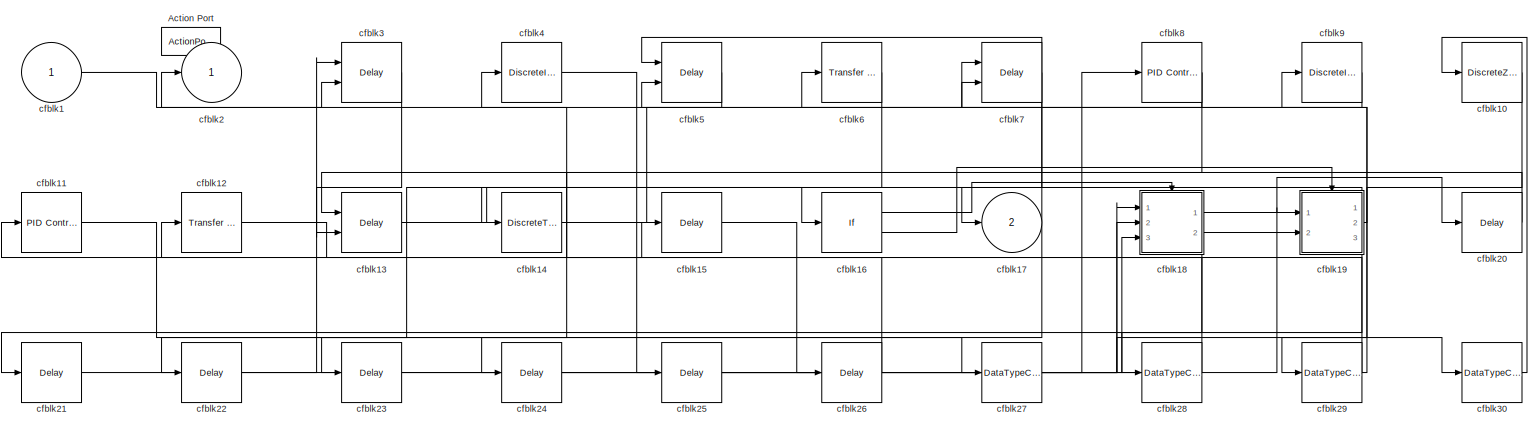
[diagram: cfblk243 - part 1/1, most of the canvas]
BLOCK [SubSystem] cfblk243
  Ports = [1, 2, 0, 0, 0, 0, 0, 1]
  RequestExecContextInheritance = off
  TreatAsAtomicUnit = on
BLOCK [ActionPort] cfblk243/Action Port
  ActionPortLabel = if { }
BLOCK [Inport] cfblk243/cfblk1
BLOCK [DiscreteZeroPole] cfblk243/cfblk10
  Gain = 1
  Poles = [0 0.5]
  SampleTime = -1
BLOCK [Reference] cfblk243/cfblk11  REF=slpidlib/PID Controller
  Ports = [1, 1]
  SourceBlock = slpidlib/PID Controller
  SourceProductBaseCode = SL
  SourceType = PID 1dof
BLOCK [Reference] cfblk243/cfblk12  REF=simulink/Discrete/Transfer Fcn
Lead or Lag
  Ports = [1, 1]
  SourceBlock = simulink/Discrete/Transfer Fcn\nLead or Lag
  SourceProductBaseCode = SL
  SourceType = Lead or Lag Compensator
BLOCK [Delay] cfblk243/cfblk13
  InputPortMap = u0,e6
  Ports = [2, 1]
  ShowEnablePort = on
BLOCK [DiscreteTransferFcn] cfblk243/cfblk14
  InputPortMap = u0
  Ports = [1, 1]
BLOCK [Delay] cfblk243/cfblk15
  InputPortMap = u0
  Ports = [1, 1]
BLOCK [If] cfblk243/cfblk16
  Ports = [1, 2]
  SampleTime = 1
BLOCK [Outport] cfblk243/cfblk17
  Port = 2
  VectorParamsAs1DForOutWhenUnconnected = off
BLOCK [SubSystem] cfblk243/cfblk18
  Ports = [3, 2, 0, 0, 0, 0, 0, 1]
  RequestExecContextInheritance = off
  TreatAsAtomicUnit = on
BLOCK [ActionPort] cfblk243/cfblk18/Action Port
  ActionPortLabel = if { }
BLOCK [Inport] cfblk243/cfblk18/cfblk1
BLOCK [Reference] cfblk243/cfblk18/cfblk10  REF=slpidlib/PID Controller
  Ports = [1, 1]
  SourceBlock = slpidlib/PID Controller
  SourceProductBaseCode = SL
  SourceType = PID 1dof
BLOCK [Delay] cfblk243/cfblk18/cfblk11
  InputPortMap = u0
  Ports = [1, 1]
BLOCK [Delay] cfblk243/cfblk18/cfblk12
  DelayLengthSource = Input port
  InputPortMap = u0,p1
  Ports = [2, 1]
BLOCK [Reference] cfblk243/cfblk18/cfblk13  REF=simulink/Discrete/Difference
  Ports = [1, 1]
  SourceBlock = simulink/Discrete/Difference
  SourceProductBaseCode = SL
  SourceType = Difference
BLOCK [Inport] cfblk243/cfblk18/cfblk14
  Port = 2
BLOCK [Inport] cfblk243/cfblk18/cfblk15
  Port = 3
BLOCK [Outport] cfblk243/cfblk18/cfblk16
  Port = 2
  VectorParamsAs1DForOutWhenUnconnected = off
BLOCK [Outport] cfblk243/cfblk18/cfblk2
  VectorParamsAs1DForOutWhenUnconnected = off
BLOCK [Reference] cfblk243/cfblk18/cfblk3  REF=slpidlib/PID Controller (2DOF)
  Ports = [2, 1]
  SourceBlock = slpidlib/PID Controller (2DOF)
  SourceProductBaseCode = SL
  SourceType = PID 2dof
BLOCK [Reference] cfblk243/cfblk18/cfblk4  REF=slpidlib/PID Controller
  Ports = [1, 1]
  SourceBlock = slpidlib/PID Controller
  SourceProductBaseCode = SL
  SourceType = PID 1dof
BLOCK [Reference] cfblk243/cfblk18/cfblk5  REF=slpidlib/PID Controller (2DOF)
  Ports = [2, 1]
  SourceBlock = slpidlib/PID Controller (2DOF)
  SourceProductBaseCode = SL
  SourceType = PID 2dof
BLOCK [Reference] cfblk243/cfblk18/cfblk6  REF=simulink/Discrete/Transfer Fcn
Lead or Lag
  Ports = [1, 1]
  SourceBlock = simulink/Discrete/Transfer Fcn\nLead or Lag
  SourceProductBaseCode = SL
  SourceType = Lead or Lag Compensator
BLOCK [Reference] cfblk243/cfblk18/cfblk7  REF=slpidlib/PID Controller
  Ports = [1, 1]
  SourceBlock = slpidlib/PID Controller
  SourceProductBaseCode = SL
  SourceType = PID 1dof
BLOCK [Reference] cfblk243/cfblk18/cfblk8  REF=simulink/Discrete/Transfer Fcn
First Order
  Ports = [1, 1]
  SourceBlock = simulink/Discrete/Transfer Fcn\nFirst Order
  SourceProductBaseCode = SL
  SourceType = First Order Transfer Fcn
BLOCK [DiscreteZeroPole] cfblk243/cfblk18/cfblk9
  Gain = 1
  Poles = [0 0.5]
  SampleTime = -1
BLOCK [SubSystem] cfblk243/cfblk19
  Ports = [2, 3, 0, 0, 0, 0, 0, 1]
  RequestExecContextInheritance = off
  TreatAsAtomicUnit = on
BLOCK [ActionPort] cfblk243/cfblk19/Action Port
  ActionPortLabel = else { }
BLOCK [Inport] cfblk243/cfblk19/cfblk1
BLOCK [Delay] cfblk243/cfblk19/cfblk10
  InputPortMap = u0
  Ports = [1, 1]
BLOCK [Inport] cfblk243/cfblk19/cfblk11
  Port = 2
BLOCK [Outport] cfblk243/cfblk19/cfblk12
  Port = 2
  VectorParamsAs1DForOutWhenUnconnected = off
BLOCK [Outport] cfblk243/cfblk19/cfblk13
  Port = 3
  VectorParamsAs1DForOutWhenUnconnected = off
BLOCK [Delay] cfblk243/cfblk19/cfblk14
  InputPortMap = u0
  Ports = [1, 1]
BLOCK [Outport] cfblk243/cfblk19/cfblk2
  VectorParamsAs1DForOutWhenUnconnected = off
BLOCK [Delay] cfblk243/cfblk19/cfblk3
  InputPortMap = u0
  Ports = [1, 1]
BLOCK [Delay] cfblk243/cfblk19/cfblk4
  InputPortMap = u0
  Ports = [1, 1]
BLOCK [DiscreteIntegrator] cfblk243/cfblk19/cfblk5
  ICPrevOutput = DiscIntNeverNeededParam
  ICPrevScaledInput = DiscIntNeverNeededParam
  InitialConditionSetting = Auto
  Ports = [1, 1]
  SampleTime = -1
BLOCK [DiscreteIntegrator] cfblk243/cfblk19/cfblk6
  ICPrevOutput = DiscIntNeverNeededParam
  ICPrevScaledInput = DiscIntNeverNeededParam
  InitialConditionSetting = Auto
  Ports = [1, 1]
  SampleTime = -1
BLOCK [Delay] cfblk243/cfblk19/cfblk7
  DelayLengthSource = Input port
  InputPortMap = u0,p1
  Ports = [2, 1]
BLOCK [UnitDelay] cfblk243/cfblk19/cfblk8
  HasFrameUpgradeWarning = on
  SampleTime = -1
BLOCK [UnitDelay] cfblk243/cfblk19/cfblk9
  HasFrameUpgradeWarning = on
  SampleTime = -1
BLOCK [Outport] cfblk243/cfblk2
  VectorParamsAs1DForOutWhenUnconnected = off
BLOCK [Delay] cfblk243/cfblk20
  InputPortMap = u0
  Ports = [1, 1]
BLOCK [Delay] cfblk243/cfblk21
  InputPortMap = u0
  Ports = [1, 1]
BLOCK [Delay] cfblk243/cfblk22
  InputPortMap = u0
  Ports = [1, 1]
BLOCK [Delay] cfblk243/cfblk23
  InputPortMap = u0
  Ports = [1, 1]
BLOCK [Delay] cfblk243/cfblk24
  InputPortMap = u0
  Ports = [1, 1]
BLOCK [Delay] cfblk243/cfblk25
  InputPortMap = u0
  Ports = [1, 1]
BLOCK [Delay] cfblk243/cfblk26
  InputPortMap = u0
  Ports = [1, 1]
BLOCK [DataTypeConversion] cfblk243/cfblk27
  RndMeth = Floor
  SaturateOnIntegerOverflow = off
BLOCK [DataTypeConversion] cfblk243/cfblk28
  RndMeth = Floor
  SaturateOnIntegerOverflow = off
BLOCK [DataTypeConversion] cfblk243/cfblk29
  RndMeth = Floor
  SaturateOnIntegerOverflow = off
BLOCK [Delay] cfblk243/cfblk3
  DelayLengthSource = Input port
  InputPortMap = u0,p1
  Ports = [2, 1]
BLOCK [DataTypeConversion] cfblk243/cfblk30
  RndMeth = Floor
  SaturateOnIntegerOverflow = off
BLOCK [DiscreteIntegrator] cfblk243/cfblk4
  ICPrevOutput = DiscIntNeverNeededParam
  ICPrevScaledInput = DiscIntNeverNeededParam
  InitialConditionSetting = Auto
  Ports = [1, 1]
  SampleTime = -1
BLOCK [Delay] cfblk243/cfblk5
  InputPortMap = u0,e6
  Ports = [2, 1]
  ShowEnablePort = on
BLOCK [Reference] cfblk243/cfblk6  REF=simulink/Discrete/Transfer Fcn
First Order
  Ports = [1, 1]
  SourceBlock = simulink/Discrete/Transfer Fcn\nFirst Order
  SourceProductBaseCode = SL
  SourceType = First Order Transfer Fcn
BLOCK [Delay] cfblk243/cfblk7
  DelayLengthSource = Input port
  InputPortMap = u0,p1
  Ports = [2, 1]
BLOCK [Reference] cfblk243/cfblk8  REF=slpidlib/PID Controller
  Ports = [1, 1]
  SourceBlock = slpidlib/PID Controller
  SourceProductBaseCode = SL
  SourceType = PID 1dof
BLOCK [DiscreteIntegrator] cfblk243/cfblk9
  ICPrevOutput = DiscIntNeverNeededParam
  ICPrevScaledInput = DiscIntNeverNeededParam
  InitialConditionSetting = Auto
  Ports = [1, 1]
  SampleTime = -1
BLOCK [SubSystem] cfblk244
  Ports = [1, 1, 0, 0, 0, 0, 0, 1]
  RequestExecContextInheritance = off
  TreatAsAtomicUnit = on
BLOCK [ActionPort] cfblk244/Action Port
  ActionPortLabel = else { }
BLOCK [Inport] cfblk244/cfblk1
BLOCK [Delay] cfblk244/cfblk10
  InputPortMap = u0
  Ports = [1, 1]
BLOCK [Delay] cfblk244/cfblk11
  InputPortMap = u0
  Ports = [1, 1]
BLOCK [Delay] cfblk244/cfblk12
  InputPortMap = u0
  Ports = [1, 1]
BLOCK [Outport] cfblk244/cfblk2
  VectorParamsAs1DForOutWhenUnconnected = off
BLOCK [UnitDelay] cfblk244/cfblk3
  HasFrameUpgradeWarning = on
  SampleTime = -1
BLOCK [Reference] cfblk244/cfblk4  REF=simulink/Discrete/Transfer Fcn
Real Zero
  Ports = [1, 1]
  SourceBlock = simulink/Discrete/Transfer Fcn\nReal Zero
  SourceProductBaseCode = SL
  SourceType = Transfer Fcn Real Zero
BLOCK [Reference] cfblk244/cfblk5  REF=simulink/Discrete/Transfer Fcn
Lead or Lag
  Ports = [1, 1]
  SourceBlock = simulink/Discrete/Transfer Fcn\nLead or Lag
  SourceProductBaseCode = SL
  SourceType = Lead or Lag Compensator
BLOCK [DiscreteFir] cfblk244/cfblk6
  InputPortMap = u0
  OutputPortMap = o0
  Ports = [1, 1]
BLOCK [If] cfblk244/cfblk7
  Ports = [1, 2]
  SampleTime = 1
BLOCK [SubSystem] cfblk244/cfblk8
  Ports = [3, 3, 0, 0, 0, 0, 0, 1]
  RequestExecContextInheritance = off
  TreatAsAtomicUnit = on
BLOCK [ActionPort] cfblk244/cfblk8/Action Port
  ActionPortLabel = if { }
BLOCK [Inport] cfblk244/cfblk8/cfblk1
BLOCK [Reference] cfblk244/cfblk8/cfblk10  REF=simulink/Discrete/Transfer Fcn
First Order
  Ports = [1, 1]
  SourceBlock = simulink/Discrete/Transfer Fcn\nFirst Order
  SourceProductBaseCode = SL
  SourceType = First Order Transfer Fcn
BLOCK [DiscreteFir] cfblk244/cfblk8/cfblk11
  InputPortMap = u0
  OutputPortMap = o0
  Ports = [1, 1]
BLOCK [DiscreteFilter] cfblk244/cfblk8/cfblk12
  InputPortMap = u0
  Ports = [1, 1]
BLOCK [Inport] cfblk244/cfblk8/cfblk13
  Port = 2
BLOCK [Inport] cfblk244/cfblk8/cfblk14
  Port = 3
BLOCK [Outport] cfblk244/cfblk8/cfblk15
  Port = 2
  VectorParamsAs1DForOutWhenUnconnected = off
BLOCK [Outport] cfblk244/cfblk8/cfblk16
  Port = 3
  VectorParamsAs1DForOutWhenUnconnected = off
BLOCK [Outport] cfblk244/cfblk8/cfblk2
  VectorParamsAs1DForOutWhenUnconnected = off
BLOCK [Delay] cfblk244/cfblk8/cfblk3
  InputPortMap = u0
  Ports = [1, 1]
BLOCK [DiscreteIntegrator] cfblk244/cfblk8/cfblk4
  ICPrevOutput = DiscIntNeverNeededParam
  ICPrevScaledInput = DiscIntNeverNeededParam
  InitialConditionSetting = Auto
  Ports = [1, 1]
  SampleTime = -1
BLOCK [DiscreteStateSpace] cfblk244/cfblk8/cfblk5
  SampleTime = -1
BLOCK [DiscreteFir] cfblk244/cfblk8/cfblk6
  InputPortMap = u0
  OutputPortMap = o0
  Ports = [1, 1]
BLOCK [Delay] cfblk244/cfblk8/cfblk7
  InputPortMap = u0
  Ports = [1, 1]
BLOCK [Reference] cfblk244/cfblk8/cfblk8  REF=simulink/Discrete/Tapped Delay
  Ports = [1, 1]
  SourceBlock = simulink/Discrete/Tapped Delay
  SourceProductBaseCode = SL
  SourceType = Tapped Delay Line
BLOCK [UnitDelay] cfblk244/cfblk8/cfblk9
  HasFrameUpgradeWarning = on
  SampleTime = -1
BLOCK [SubSystem] cfblk244/cfblk9
  Ports = [2, 1, 0, 0, 0, 0, 0, 1]
  RequestExecContextInheritance = off
  TreatAsAtomicUnit = on
BLOCK [ActionPort] cfblk244/cfblk9/Action Port
  ActionPortLabel = else { }
BLOCK [Inport] cfblk244/cfblk9/cfblk1
BLOCK [Inport] cfblk244/cfblk9/cfblk10
  Port = 2
BLOCK [Delay] cfblk244/cfblk9/cfblk11
  InputPortMap = u0
  Ports = [1, 1]
BLOCK [Outport] cfblk244/cfblk9/cfblk2
  VectorParamsAs1DForOutWhenUnconnected = off
BLOCK [Reference] cfblk244/cfblk9/cfblk3  REF=slpidlib/PID Controller
  Ports = [1, 1]
  SourceBlock = slpidlib/PID Controller
  SourceProductBaseCode = SL
  SourceType = PID 1dof
BLOCK [Reference] cfblk244/cfblk9/cfblk4  REF=slpidlib/PID Controller
  Ports = [1, 1]
  SourceBlock = slpidlib/PID Controller
  SourceProductBaseCode = SL
  SourceType = PID 1dof
BLOCK [UnitDelay] cfblk244/cfblk9/cfblk5
  HasFrameUpgradeWarning = on
  SampleTime = -1
BLOCK [Reference] cfblk244/cfblk9/cfblk6  REF=simulink/Discrete/Transfer Fcn
First Order
  Ports = [1, 1]
  SourceBlock = simulink/Discrete/Transfer Fcn\nFirst Order
  SourceProductBaseCode = SL
  SourceType = First Order Transfer Fcn
BLOCK [Reference] cfblk244/cfblk9/cfblk7  REF=simulink/Discrete/Transfer Fcn
First Order
  Ports = [1, 1]
  SourceBlock = simulink/Discrete/Transfer Fcn\nFirst Order
  SourceProductBaseCode = SL
  SourceType = First Order Transfer Fcn
BLOCK [Delay] cfblk244/cfblk9/cfblk8
  InputPortMap = u0,e6
  Ports = [2, 1]
  ShowEnablePort = on
BLOCK [Reference] cfblk244/cfblk9/cfblk9  REF=slpidlib/PID Controller (2DOF)
  Ports = [2, 1]
  SourceBlock = slpidlib/PID Controller (2DOF)
  SourceProductBaseCode = SL
  SourceType = PID 2dof
BLOCK [SubSystem] cfblk245
  Ports = [3, 1, 0, 0, 0, 0, 0, 1]
  RequestExecContextInheritance = off
  TreatAsAtomicUnit = on
BLOCK [ActionPort] cfblk245/Action Port
  ActionPortLabel = if { }
BLOCK [Inport] cfblk245/cfblk1
BLOCK [If] cfblk245/cfblk10
  Ports = [1, 2]
  SampleTime = 1
BLOCK [If] cfblk245/cfblk11
  Ports = [1, 2]
  SampleTime = 1
BLOCK [Inport] cfblk245/cfblk12
  Port = 2
BLOCK [Inport] cfblk245/cfblk13
  Port = 3
BLOCK [SubSystem] cfblk245/cfblk14
  Ports = [2, 1, 0, 0, 0, 0, 0, 1]
  RequestExecContextInheritance = off
  TreatAsAtomicUnit = on
BLOCK [ActionPort] cfblk245/cfblk14/Action Port
  ActionPortLabel = if { }
BLOCK [Inport] cfblk245/cfblk14/cfblk1
BLOCK [DiscreteStateSpace] cfblk245/cfblk14/cfblk10
  SampleTime = -1
BLOCK [Inport] cfblk245/cfblk14/cfblk11
  Port = 2
BLOCK [Delay] cfblk245/cfblk14/cfblk12
  InputPortMap = u0
  Ports = [1, 1]
BLOCK [Delay] cfblk245/cfblk14/cfblk13
  InputPortMap = u0
  Ports = [1, 1]
BLOCK [Delay] cfblk245/cfblk14/cfblk14
  InputPortMap = u0
  Ports = [1, 1]
BLOCK [Outport] cfblk245/cfblk14/cfblk2
  VectorParamsAs1DForOutWhenUnconnected = off
BLOCK [Reference] cfblk245/cfblk14/cfblk3  REF=simulink/Discrete/Transfer Fcn
Real Zero
  Ports = [1, 1]
  SourceBlock = simulink/Discrete/Transfer Fcn\nReal Zero
  SourceProductBaseCode = SL
  SourceType = Transfer Fcn Real Zero
BLOCK [DiscreteStateSpace] cfblk245/cfblk14/cfblk4
  SampleTime = -1
BLOCK [Delay] cfblk245/cfblk14/cfblk5
  DelayLengthSource = Input port
  InputPortMap = u0,p1
  Ports = [2, 1]
BLOCK [Delay] cfblk245/cfblk14/cfblk6
  InputPortMap = u0,e6
  Ports = [2, 1]
  ShowEnablePort = on
BLOCK [Reference] cfblk245/cfblk14/cfblk7  REF=simulink/Discrete/Difference
  Ports = [1, 1]
  SourceBlock = simulink/Discrete/Difference
  SourceProductBaseCode = SL
  SourceType = Difference
BLOCK [Delay] cfblk245/cfblk14/cfblk8
  InputPortMap = u0
  Ports = [1, 1]
BLOCK [Reference] cfblk245/cfblk14/cfblk9  REF=slpidlib/PID Controller (2DOF)
  Ports = [2, 1]
  SourceBlock = slpidlib/PID Controller (2DOF)
  SourceProductBaseCode = SL
  SourceType = PID 2dof
BLOCK [SubSystem] cfblk245/cfblk15
  Ports = [4, 2, 0, 0, 0, 0, 0, 1]
  RequestExecContextInheritance = off
  TreatAsAtomicUnit = on
BLOCK [ActionPort] cfblk245/cfblk15/Action Port
  ActionPortLabel = else { }
BLOCK [Inport] cfblk245/cfblk15/cfblk1
BLOCK [Inport] cfblk245/cfblk15/cfblk10
  Port = 3
BLOCK [Inport] cfblk245/cfblk15/cfblk11
  Port = 4
BLOCK [Outport] cfblk245/cfblk15/cfblk12
  Port = 2
  VectorParamsAs1DForOutWhenUnconnected = off
BLOCK [Outport] cfblk245/cfblk15/cfblk2
  VectorParamsAs1DForOutWhenUnconnected = off
BLOCK [Reference] cfblk245/cfblk15/cfblk3  REF=simulink/Discrete/Tapped Delay
  Ports = [1, 1]
  SourceBlock = simulink/Discrete/Tapped Delay
  SourceProductBaseCode = SL
  SourceType = Tapped Delay Line
BLOCK [DiscreteFir] cfblk245/cfblk15/cfblk4
  InputPortMap = u0
  OutputPortMap = o0
  Ports = [1, 1]
BLOCK [DiscreteFir] cfblk245/cfblk15/cfblk5
  InputPortMap = u0
  OutputPortMap = o0
  Ports = [1, 1]
BLOCK [DiscreteFilter] cfblk245/cfblk15/cfblk6
  InputPortMap = u0
  Ports = [1, 1]
BLOCK [Reference] cfblk245/cfblk15/cfblk7  REF=simulink/Discrete/Transfer Fcn
Real Zero
  Ports = [1, 1]
  SourceBlock = simulink/Discrete/Transfer Fcn\nReal Zero
  SourceProductBaseCode = SL
  SourceType = Transfer Fcn Real Zero
BLOCK [Delay] cfblk245/cfblk15/cfblk8
  InputPortMap = u0
  Ports = [1, 1]
BLOCK [Inport] cfblk245/cfblk15/cfblk9
  Port = 2
BLOCK [SubSystem] cfblk245/cfblk16
  Ports = [2, 2, 0, 0, 0, 0, 0, 1]
  RequestExecContextInheritance = off
  TreatAsAtomicUnit = on
BLOCK [ActionPort] cfblk245/cfblk16/Action Port
  ActionPortLabel = if { }
BLOCK [Inport] cfblk245/cfblk16/cfblk1
BLOCK [Delay] cfblk245/cfblk16/cfblk10
  InputPortMap = u0
  Ports = [1, 1]
BLOCK [Outport] cfblk245/cfblk16/cfblk2
  VectorParamsAs1DForOutWhenUnconnected = off
BLOCK [Reference] cfblk245/cfblk16/cfblk3  REF=slpidlib/PID Controller (2DOF)
  Ports = [2, 1]
  SourceBlock = slpidlib/PID Controller (2DOF)
  SourceProductBaseCode = SL
  SourceType = PID 2dof
BLOCK [Reference] cfblk245/cfblk16/cfblk4  REF=slpidlib/PID Controller (2DOF)
  Ports = [2, 1]
  SourceBlock = slpidlib/PID Controller (2DOF)
  SourceProductBaseCode = SL
  SourceType = PID 2dof
BLOCK [DiscreteTransferFcn] cfblk245/cfblk16/cfblk5
  InputPortMap = u0
  Ports = [1, 1]
BLOCK [Reference] cfblk245/cfblk16/cfblk6  REF=simulink/Discrete/Difference
  Ports = [1, 1]
  SourceBlock = simulink/Discrete/Difference
  SourceProductBaseCode = SL
  SourceType = Difference
BLOCK [Reference] cfblk245/cfblk16/cfblk7  REF=simulink/Discrete/Tapped Delay
  Ports = [1, 1]
  SourceBlock = simulink/Discrete/Tapped Delay
  SourceProductBaseCode = SL
  SourceType = Tapped Delay Line
BLOCK [Inport] cfblk245/cfblk16/cfblk8
  Port = 2
BLOCK [Outport] cfblk245/cfblk16/cfblk9
  Port = 2
  VectorParamsAs1DForOutWhenUnconnected = off
BLOCK [SubSystem] cfblk245/cfblk17
  Ports = [3, 1, 0, 0, 0, 0, 0, 1]
  RequestExecContextInheritance = off
  TreatAsAtomicUnit = on
BLOCK [ActionPort] cfblk245/cfblk17/Action Port
  ActionPortLabel = else { }
BLOCK [Inport] cfblk245/cfblk17/cfblk1
BLOCK [Reference] cfblk245/cfblk17/cfblk10  REF=simulink/Discrete/Transfer Fcn
Real Zero
  Ports = [1, 1]
  SourceBlock = simulink/Discrete/Transfer Fcn\nReal Zero
  SourceProductBaseCode = SL
  SourceType = Transfer Fcn Real Zero
BLOCK [DiscreteFir] cfblk245/cfblk17/cfblk11
  InputPortMap = u0
  OutputPortMap = o0
  Ports = [1, 1]
BLOCK [DiscreteStateSpace] cfblk245/cfblk17/cfblk12
  SampleTime = -1
BLOCK [Reference] cfblk245/cfblk17/cfblk13  REF=simulink/Discrete/Transfer Fcn
Lead or Lag
  Ports = [1, 1]
  SourceBlock = simulink/Discrete/Transfer Fcn\nLead or Lag
  SourceProductBaseCode = SL
  SourceType = Lead or Lag Compensator
BLOCK [Reference] cfblk245/cfblk17/cfblk14  REF=simulink/Discrete/Transfer Fcn
Real Zero
  Ports = [1, 1]
  SourceBlock = simulink/Discrete/Transfer Fcn\nReal Zero
  SourceProductBaseCode = SL
  SourceType = Transfer Fcn Real Zero
BLOCK [Inport] cfblk245/cfblk17/cfblk15
  Port = 2
BLOCK [Inport] cfblk245/cfblk17/cfblk16
  Port = 3
BLOCK [Delay] cfblk245/cfblk17/cfblk17
  InputPortMap = u0
  Ports = [1, 1]
BLOCK [Delay] cfblk245/cfblk17/cfblk18
  InputPortMap = u0
  Ports = [1, 1]
BLOCK [Outport] cfblk245/cfblk17/cfblk2
  VectorParamsAs1DForOutWhenUnconnected = off
BLOCK [DiscreteZeroPole] cfblk245/cfblk17/cfblk3
  Gain = 1
  Poles = [0 0.5]
  SampleTime = -1
BLOCK [Reference] cfblk245/cfblk17/cfblk4  REF=simulink/Discrete/Difference
  Ports = [1, 1]
  SourceBlock = simulink/Discrete/Difference
  SourceProductBaseCode = SL
  SourceType = Difference
BLOCK [Reference] cfblk245/cfblk17/cfblk5  REF=simulink/Discrete/Tapped Delay
  Ports = [1, 1]
  SourceBlock = simulink/Discrete/Tapped Delay
  SourceProductBaseCode = SL
  SourceType = Tapped Delay Line
BLOCK [Reference] cfblk245/cfblk17/cfblk6  REF=simulink/Discrete/Tapped Delay
  Ports = [1, 1]
  SourceBlock = simulink/Discrete/Tapped Delay
  SourceProductBaseCode = SL
  SourceType = Tapped Delay Line
BLOCK [DiscreteZeroPole] cfblk245/cfblk17/cfblk7
  Gain = 1
  Poles = [0 0.5]
  SampleTime = -1
BLOCK [Reference] cfblk245/cfblk17/cfblk8  REF=simulink/Discrete/Difference
  Ports = [1, 1]
  SourceBlock = simulink/Discrete/Difference
  SourceProductBaseCode = SL
  SourceType = Difference
BLOCK [Reference] cfblk245/cfblk17/cfblk9  REF=simulink/Discrete/Transfer Fcn
First Order
  Ports = [1, 1]
  SourceBlock = simulink/Discrete/Transfer Fcn\nFirst Order
  SourceProductBaseCode = SL
  SourceType = First Order Transfer Fcn
BLOCK [Delay] cfblk245/cfblk18
  InputPortMap = u0
  Ports = [1, 1]
BLOCK [Delay] cfblk245/cfblk19
  InputPortMap = u0
  Ports = [1, 1]
BLOCK [Outport] cfblk245/cfblk2
  VectorParamsAs1DForOutWhenUnconnected = off
BLOCK [Delay] cfblk245/cfblk20
  InputPortMap = u0
  Ports = [1, 1]
BLOCK [Delay] cfblk245/cfblk21
  InputPortMap = u0
  Ports = [1, 1]
BLOCK [DiscreteIntegrator] cfblk245/cfblk3
  ICPrevOutput = DiscIntNeverNeededParam
  ICPrevScaledInput = DiscIntNeverNeededParam
  InitialConditionSetting = Auto
  Ports = [1, 1]
  SampleTime = -1
BLOCK [Reference] cfblk245/cfblk4  REF=simulink/Discrete/Transfer Fcn
First Order
  Ports = [1, 1]
  SourceBlock = simulink/Discrete/Transfer Fcn\nFirst Order
  SourceProductBaseCode = SL
  SourceType = First Order Transfer Fcn
BLOCK [Reference] cfblk245/cfblk5  REF=simulink/Discrete/Difference
  Ports = [1, 1]
  SourceBlock = simulink/Discrete/Difference
  SourceProductBaseCode = SL
  SourceType = Difference
BLOCK [DiscreteStateSpace] cfblk245/cfblk6
  SampleTime = -1
BLOCK [Reference] cfblk245/cfblk7  REF=simulink/Discrete/Tapped Delay
  Ports = [1, 1]
  SourceBlock = simulink/Discrete/Tapped Delay
  SourceProductBaseCode = SL
  SourceType = Tapped Delay Line
BLOCK [Delay] cfblk245/cfblk8
  InputPortMap = u0,e6
  Ports = [2, 1]
  ShowEnablePort = on
BLOCK [Delay] cfblk245/cfblk9
  InputPortMap = u0,e6
  Ports = [2, 1]
  ShowEnablePort = on
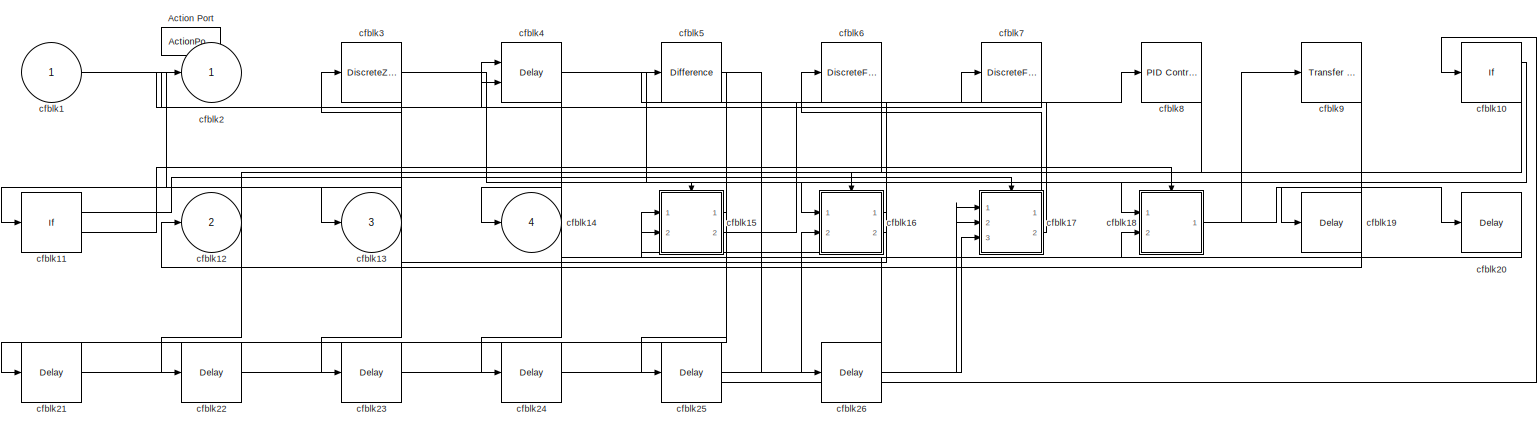
[diagram: cfblk246 - part 1/1, most of the canvas]
BLOCK [SubSystem] cfblk246
  Ports = [1, 4, 0, 0, 0, 0, 0, 1]
  RequestExecContextInheritance = off
  TreatAsAtomicUnit = on
BLOCK [ActionPort] cfblk246/Action Port
  ActionPortLabel = else { }
BLOCK [Inport] cfblk246/cfblk1
BLOCK [If] cfblk246/cfblk10
  Ports = [1, 2]
  SampleTime = 1
BLOCK [If] cfblk246/cfblk11
  Ports = [1, 2]
  SampleTime = 1
BLOCK [Outport] cfblk246/cfblk12
  Port = 2
  VectorParamsAs1DForOutWhenUnconnected = off
BLOCK [Outport] cfblk246/cfblk13
  Port = 3
  VectorParamsAs1DForOutWhenUnconnected = off
BLOCK [Outport] cfblk246/cfblk14
  Port = 4
  VectorParamsAs1DForOutWhenUnconnected = off
BLOCK [SubSystem] cfblk246/cfblk15
  Ports = [2, 2, 0, 0, 0, 0, 0, 1]
  RequestExecContextInheritance = off
  TreatAsAtomicUnit = on
BLOCK [ActionPort] cfblk246/cfblk15/Action Port
  ActionPortLabel = if { }
BLOCK [Inport] cfblk246/cfblk15/cfblk1
BLOCK [Delay] cfblk246/cfblk15/cfblk10
  InputPortMap = u0
  Ports = [1, 1]
BLOCK [Inport] cfblk246/cfblk15/cfblk11
  Port = 2
BLOCK [Outport] cfblk246/cfblk15/cfblk12
  Port = 2
  VectorParamsAs1DForOutWhenUnconnected = off
BLOCK [Delay] cfblk246/cfblk15/cfblk13
  InputPortMap = u0
  Ports = [1, 1]
BLOCK [Delay] cfblk246/cfblk15/cfblk14
  InputPortMap = u0
  Ports = [1, 1]
BLOCK [Outport] cfblk246/cfblk15/cfblk2
  VectorParamsAs1DForOutWhenUnconnected = off
BLOCK [Reference] cfblk246/cfblk15/cfblk3  REF=simulink/Discrete/Tapped Delay
  Ports = [1, 1]
  SourceBlock = simulink/Discrete/Tapped Delay
  SourceProductBaseCode = SL
  SourceType = Tapped Delay Line
BLOCK [DiscreteFir] cfblk246/cfblk15/cfblk4
  InputPortMap = u0
  OutputPortMap = o0
  Ports = [1, 1]
BLOCK [DiscreteStateSpace] cfblk246/cfblk15/cfblk5
  SampleTime = -1
BLOCK [Reference] cfblk246/cfblk15/cfblk6  REF=simulink/Discrete/Transfer Fcn
Lead or Lag
  Ports = [1, 1]
  SourceBlock = simulink/Discrete/Transfer Fcn\nLead or Lag
  SourceProductBaseCode = SL
  SourceType = Lead or Lag Compensator
BLOCK [DiscreteFilter] cfblk246/cfblk15/cfblk7
  InputPortMap = u0
  Ports = [1, 1]
BLOCK [Delay] cfblk246/cfblk15/cfblk8
  DelayLengthSource = Input port
  InputPortMap = u0,p1
  Ports = [2, 1]
BLOCK [DiscreteZeroPole] cfblk246/cfblk15/cfblk9
  Gain = 1
  Poles = [0 0.5]
  SampleTime = -1
BLOCK [SubSystem] cfblk246/cfblk16
  Ports = [2, 2, 0, 0, 0, 0, 0, 1]
  RequestExecContextInheritance = off
  TreatAsAtomicUnit = on
BLOCK [ActionPort] cfblk246/cfblk16/Action Port
  ActionPortLabel = else { }
BLOCK [Inport] cfblk246/cfblk16/cfblk1
BLOCK [Reference] cfblk246/cfblk16/cfblk10  REF=slpidlib/PID Controller (2DOF)
  Ports = [2, 1]
  SourceBlock = slpidlib/PID Controller (2DOF)
  SourceProductBaseCode = SL
  SourceType = PID 2dof
BLOCK [Reference] cfblk246/cfblk16/cfblk11  REF=simulink/Discrete/Tapped Delay
  Ports = [1, 1]
  SourceBlock = simulink/Discrete/Tapped Delay
  SourceProductBaseCode = SL
  SourceType = Tapped Delay Line
BLOCK [Reference] cfblk246/cfblk16/cfblk12  REF=simulink/Discrete/Transfer Fcn
First Order
  Ports = [1, 1]
  SourceBlock = simulink/Discrete/Transfer Fcn\nFirst Order
  SourceProductBaseCode = SL
  SourceType = First Order Transfer Fcn
BLOCK [DiscreteZeroPole] cfblk246/cfblk16/cfblk13
  Gain = 1
  Poles = [0 0.5]
  SampleTime = -1
BLOCK [Reference] cfblk246/cfblk16/cfblk14  REF=simulink/Discrete/Tapped Delay
  Ports = [1, 1]
  SourceBlock = simulink/Discrete/Tapped Delay
  SourceProductBaseCode = SL
  SourceType = Tapped Delay Line
BLOCK [Delay] cfblk246/cfblk16/cfblk15
  DelayLengthSource = Input port
  InputPortMap = u0,p1
  Ports = [2, 1]
BLOCK [Inport] cfblk246/cfblk16/cfblk16
  Port = 2
BLOCK [Outport] cfblk246/cfblk16/cfblk17
  Port = 2
  VectorParamsAs1DForOutWhenUnconnected = off
BLOCK [Delay] cfblk246/cfblk16/cfblk18
  InputPortMap = u0
  Ports = [1, 1]
BLOCK [Outport] cfblk246/cfblk16/cfblk2
  VectorParamsAs1DForOutWhenUnconnected = off
BLOCK [DiscreteTransferFcn] cfblk246/cfblk16/cfblk3
  InputPortMap = u0
  Ports = [1, 1]
BLOCK [Delay] cfblk246/cfblk16/cfblk4
  InputPortMap = u0,e6
  Ports = [2, 1]
  ShowEnablePort = on
BLOCK [DiscreteTransferFcn] cfblk246/cfblk16/cfblk5
  InputPortMap = u0
  Ports = [1, 1]
BLOCK [Delay] cfblk246/cfblk16/cfblk6
  DelayLengthSource = Input port
  InputPortMap = u0,p1
  Ports = [2, 1]
BLOCK [Reference] cfblk246/cfblk16/cfblk7  REF=slpidlib/PID Controller (2DOF)
  Ports = [2, 1]
  SourceBlock = slpidlib/PID Controller (2DOF)
  SourceProductBaseCode = SL
  SourceType = PID 2dof
BLOCK [Reference] cfblk246/cfblk16/cfblk8  REF=simulink/Discrete/Transfer Fcn
Real Zero
  Ports = [1, 1]
  SourceBlock = simulink/Discrete/Transfer Fcn\nReal Zero
  SourceProductBaseCode = SL
  SourceType = Transfer Fcn Real Zero
BLOCK [DiscreteZeroPole] cfblk246/cfblk16/cfblk9
  Gain = 1
  Poles = [0 0.5]
  SampleTime = -1
BLOCK [SubSystem] cfblk246/cfblk17
  Ports = [3, 2, 0, 0, 0, 0, 0, 1]
  RequestExecContextInheritance = off
  TreatAsAtomicUnit = on
BLOCK [ActionPort] cfblk246/cfblk17/Action Port
  ActionPortLabel = if { }
BLOCK [Inport] cfblk246/cfblk17/cfblk1
BLOCK [Outport] cfblk246/cfblk17/cfblk2
  VectorParamsAs1DForOutWhenUnconnected = off
BLOCK [Reference] cfblk246/cfblk17/cfblk3  REF=simulink/Discrete/Transfer Fcn
First Order
  Ports = [1, 1]
  SourceBlock = simulink/Discrete/Transfer Fcn\nFirst Order
  SourceProductBaseCode = SL
  SourceType = First Order Transfer Fcn
BLOCK [Reference] cfblk246/cfblk17/cfblk4  REF=simulink/Discrete/Tapped Delay
  Ports = [1, 1]
  SourceBlock = simulink/Discrete/Tapped Delay
  SourceProductBaseCode = SL
  SourceType = Tapped Delay Line
BLOCK [UnitDelay] cfblk246/cfblk17/cfblk5
  HasFrameUpgradeWarning = on
  SampleTime = -1
BLOCK [DiscreteTransferFcn] cfblk246/cfblk17/cfblk6
  InputPortMap = u0
  Ports = [1, 1]
BLOCK [Inport] cfblk246/cfblk17/cfblk7
  Port = 2
BLOCK [Inport] cfblk246/cfblk17/cfblk8
  Port = 3
BLOCK [Outport] cfblk246/cfblk17/cfblk9
  Port = 2
  VectorParamsAs1DForOutWhenUnconnected = off
BLOCK [SubSystem] cfblk246/cfblk18
  Ports = [2, 1, 0, 0, 0, 0, 0, 1]
  RequestExecContextInheritance = off
  TreatAsAtomicUnit = on
BLOCK [ActionPort] cfblk246/cfblk18/Action Port
  ActionPortLabel = else { }
BLOCK [Inport] cfblk246/cfblk18/cfblk1
BLOCK [Inport] cfblk246/cfblk18/cfblk10
  Port = 2
BLOCK [Outport] cfblk246/cfblk18/cfblk2
  VectorParamsAs1DForOutWhenUnconnected = off
BLOCK [DiscreteFir] cfblk246/cfblk18/cfblk3
  InputPortMap = u0
  OutputPortMap = o0
  Ports = [1, 1]
BLOCK [DiscreteFir] cfblk246/cfblk18/cfblk4
  InputPortMap = u0
  OutputPortMap = o0
  Ports = [1, 1]
BLOCK [UnitDelay] cfblk246/cfblk18/cfblk5
  HasFrameUpgradeWarning = on
  SampleTime = -1
BLOCK [Reference] cfblk246/cfblk18/cfblk6  REF=simulink/Discrete/Tapped Delay
  Ports = [1, 1]
  SourceBlock = simulink/Discrete/Tapped Delay
  SourceProductBaseCode = SL
  SourceType = Tapped Delay Line
BLOCK [Delay] cfblk246/cfblk18/cfblk7
  InputPortMap = u0
  Ports = [1, 1]
BLOCK [DiscreteStateSpace] cfblk246/cfblk18/cfblk8
  SampleTime = -1
BLOCK [Reference] cfblk246/cfblk18/cfblk9  REF=simulink/Discrete/Transfer Fcn
Lead or Lag
  Ports = [1, 1]
  SourceBlock = simulink/Discrete/Transfer Fcn\nLead or Lag
  SourceProductBaseCode = SL
  SourceType = Lead or Lag Compensator
BLOCK [Delay] cfblk246/cfblk19
  InputPortMap = u0
  Ports = [1, 1]
BLOCK [Outport] cfblk246/cfblk2
  VectorParamsAs1DForOutWhenUnconnected = off
BLOCK [Delay] cfblk246/cfblk20
  InputPortMap = u0
  Ports = [1, 1]
BLOCK [Delay] cfblk246/cfblk21
  InputPortMap = u0
  Ports = [1, 1]
BLOCK [Delay] cfblk246/cfblk22
  InputPortMap = u0
  Ports = [1, 1]
BLOCK [Delay] cfblk246/cfblk23
  InputPortMap = u0
  Ports = [1, 1]
BLOCK [Delay] cfblk246/cfblk24
  InputPortMap = u0
  Ports = [1, 1]
BLOCK [Delay] cfblk246/cfblk25
  InputPortMap = u0
  Ports = [1, 1]
BLOCK [Delay] cfblk246/cfblk26
  InputPortMap = u0
  Ports = [1, 1]
BLOCK [DiscreteZeroPole] cfblk246/cfblk3
  Gain = 1
  Poles = [0 0.5]
  SampleTime = -1
BLOCK [Delay] cfblk246/cfblk4
  DelayLengthSource = Input port
  InputPortMap = u0,p1
  Ports = [2, 1]
BLOCK [Reference] cfblk246/cfblk5  REF=simulink/Discrete/Difference
  Ports = [1, 1]
  SourceBlock = simulink/Discrete/Difference
  SourceProductBaseCode = SL
  SourceType = Difference
BLOCK [DiscreteFilter] cfblk246/cfblk6
  InputPortMap = u0
  Ports = [1, 1]
BLOCK [DiscreteFilter] cfblk246/cfblk7
  InputPortMap = u0
  Ports = [1, 1]
BLOCK [Reference] cfblk246/cfblk8  REF=slpidlib/PID Controller
  Ports = [1, 1]
  SourceBlock = slpidlib/PID Controller
  SourceProductBaseCode = SL
  SourceType = PID 1dof
BLOCK [Reference] cfblk246/cfblk9  REF=simulink/Discrete/Transfer Fcn
Real Zero
  Ports = [1, 1]
  SourceBlock = simulink/Discrete/Transfer Fcn\nReal Zero
  SourceProductBaseCode = SL
  SourceType = Transfer Fcn Real Zero
BLOCK [SubSystem] cfblk247
  Ports = [2, 3, 0, 0, 0, 0, 0, 1]
  RequestExecContextInheritance = off
  TreatAsAtomicUnit = on
BLOCK [ActionPort] cfblk247/Action Port
  ActionPortLabel = if { }
BLOCK [Inport] cfblk247/cfblk1
BLOCK [DiscreteFir] cfblk247/cfblk10
  InputPortMap = u0
  OutputPortMap = o0
  Ports = [1, 1]
BLOCK [DiscreteFir] cfblk247/cfblk11
  InputPortMap = u0
  OutputPortMap = o0
  Ports = [1, 1]
BLOCK [Delay] cfblk247/cfblk12
  InputPortMap = u0,e6
  Ports = [2, 1]
  ShowEnablePort = on
BLOCK [Delay] cfblk247/cfblk13
  InputPortMap = u0
  Ports = [1, 1]
BLOCK [If] cfblk247/cfblk14
  Ports = [1, 2]
  SampleTime = 1
BLOCK [Inport] cfblk247/cfblk15
  Port = 2
BLOCK [Outport] cfblk247/cfblk16
  Port = 2
  VectorParamsAs1DForOutWhenUnconnected = off
BLOCK [Outport] cfblk247/cfblk17
  Port = 3
  VectorParamsAs1DForOutWhenUnconnected = off
BLOCK [SubSystem] cfblk247/cfblk18
  Ports = [3, 1, 0, 0, 0, 0, 0, 1]
  RequestExecContextInheritance = off
  TreatAsAtomicUnit = on
BLOCK [ActionPort] cfblk247/cfblk18/Action Port
  ActionPortLabel = if { }
BLOCK [Inport] cfblk247/cfblk18/cfblk1
BLOCK [Reference] cfblk247/cfblk18/cfblk10  REF=slpidlib/PID Controller (2DOF)
  Ports = [2, 1]
  SourceBlock = slpidlib/PID Controller (2DOF)
  SourceProductBaseCode = SL
  SourceType = PID 2dof
BLOCK [Inport] cfblk247/cfblk18/cfblk11
  Port = 2
BLOCK [Inport] cfblk247/cfblk18/cfblk12
  Port = 3
BLOCK [Delay] cfblk247/cfblk18/cfblk13
  InputPortMap = u0
  Ports = [1, 1]
BLOCK [Outport] cfblk247/cfblk18/cfblk2
  VectorParamsAs1DForOutWhenUnconnected = off
BLOCK [DiscreteFilter] cfblk247/cfblk18/cfblk3
  InputPortMap = u0
  Ports = [1, 1]
BLOCK [DiscreteTransferFcn] cfblk247/cfblk18/cfblk4
  InputPortMap = u0
  Ports = [1, 1]
BLOCK [Reference] cfblk247/cfblk18/cfblk5  REF=slpidlib/PID Controller (2DOF)
  Ports = [2, 1]
  SourceBlock = slpidlib/PID Controller (2DOF)
  SourceProductBaseCode = SL
  SourceType = PID 2dof
BLOCK [Delay] cfblk247/cfblk18/cfblk6
  DelayLengthSource = Input port
  InputPortMap = u0,p1
  Ports = [2, 1]
BLOCK [Reference] cfblk247/cfblk18/cfblk7  REF=simulink/Discrete/Transfer Fcn
First Order
  Ports = [1, 1]
  SourceBlock = simulink/Discrete/Transfer Fcn\nFirst Order
  SourceProductBaseCode = SL
  SourceType = First Order Transfer Fcn
BLOCK [DiscreteStateSpace] cfblk247/cfblk18/cfblk8
  SampleTime = -1
BLOCK [DiscreteFir] cfblk247/cfblk18/cfblk9
  InputPortMap = u0
  OutputPortMap = o0
  Ports = [1, 1]
BLOCK [SubSystem] cfblk247/cfblk19
  Ports = [1, 4, 0, 0, 0, 0, 0, 1]
  RequestExecContextInheritance = off
  TreatAsAtomicUnit = on
BLOCK [ActionPort] cfblk247/cfblk19/Action Port
  ActionPortLabel = else { }
BLOCK [Inport] cfblk247/cfblk19/cfblk1
BLOCK [Outport] cfblk247/cfblk19/cfblk2
  VectorParamsAs1DForOutWhenUnconnected = off
BLOCK [Reference] cfblk247/cfblk19/cfblk3  REF=simulink/Discrete/Transfer Fcn
Lead or Lag
  Ports = [1, 1]
  SourceBlock = simulink/Discrete/Transfer Fcn\nLead or Lag
  SourceProductBaseCode = SL
  SourceType = Lead or Lag Compensator
BLOCK [DiscreteZeroPole] cfblk247/cfblk19/cfblk4
  Gain = 1
  Poles = [0 0.5]
  SampleTime = -1
BLOCK [Outport] cfblk247/cfblk19/cfblk5
  Port = 2
  VectorParamsAs1DForOutWhenUnconnected = off
BLOCK [Outport] cfblk247/cfblk19/cfblk6
  Port = 3
  VectorParamsAs1DForOutWhenUnconnected = off
BLOCK [Outport] cfblk247/cfblk19/cfblk7
  Port = 4
  VectorParamsAs1DForOutWhenUnconnected = off
BLOCK [Delay] cfblk247/cfblk19/cfblk8
  InputPortMap = u0
  Ports = [1, 1]
BLOCK [Outport] cfblk247/cfblk2
  VectorParamsAs1DForOutWhenUnconnected = off
BLOCK [Delay] cfblk247/cfblk20
  InputPortMap = u0
  Ports = [1, 1]
BLOCK [Delay] cfblk247/cfblk21
  InputPortMap = u0
  Ports = [1, 1]
BLOCK [Delay] cfblk247/cfblk22
  InputPortMap = u0
  Ports = [1, 1]
BLOCK [Delay] cfblk247/cfblk23
  InputPortMap = u0
  Ports = [1, 1]
BLOCK [Delay] cfblk247/cfblk24
  InputPortMap = u0
  Ports = [1, 1]
BLOCK [Reference] cfblk247/cfblk3  REF=simulink/Discrete/Transfer Fcn
Real Zero
  Ports = [1, 1]
  SourceBlock = simulink/Discrete/Transfer Fcn\nReal Zero
  SourceProductBaseCode = SL
  SourceType = Transfer Fcn Real Zero
BLOCK [Delay] cfblk247/cfblk4
  DelayLengthSource = Input port
  InputPortMap = u0,p1
  Ports = [2, 1]
BLOCK [DiscreteZeroPole] cfblk247/cfblk5
  Gain = 1
  Poles = [0 0.5]
  SampleTime = -1
BLOCK [UnitDelay] cfblk247/cfblk6
  HasFrameUpgradeWarning = on
  SampleTime = -1
BLOCK [Reference] cfblk247/cfblk7  REF=slpidlib/PID Controller
  Ports = [1, 1]
  SourceBlock = slpidlib/PID Controller
  SourceProductBaseCode = SL
  SourceType = PID 1dof
BLOCK [Delay] cfblk247/cfblk8
  DelayLengthSource = Input port
  InputPortMap = u0,p1
  Ports = [2, 1]
BLOCK [DiscreteIntegrator] cfblk247/cfblk9
  ICPrevOutput = DiscIntNeverNeededParam
  ICPrevScaledInput = DiscIntNeverNeededParam
  InitialConditionSetting = Auto
  Ports = [1, 1]
  SampleTime = -1
BLOCK [SubSystem] cfblk248
  Ports = [2, 2, 0, 0, 0, 0, 0, 1]
  RequestExecContextInheritance = off
  TreatAsAtomicUnit = on
BLOCK [ActionPort] cfblk248/Action Port
  ActionPortLabel = else { }
BLOCK [Inport] cfblk248/cfblk1
BLOCK [Outport] cfblk248/cfblk2
  VectorParamsAs1DForOutWhenUnconnected = off
BLOCK [Delay] cfblk248/cfblk3
  InputPortMap = u0,e6
  Ports = [2, 1]
  ShowEnablePort = on
BLOCK [Delay] cfblk248/cfblk4
  DelayLengthSource = Input port
  InputPortMap = u0,p1
  Ports = [2, 1]
BLOCK [Delay] cfblk248/cfblk5
  InputPortMap = u0
  Ports = [1, 1]
BLOCK [DiscreteStateSpace] cfblk248/cfblk6
  SampleTime = -1
BLOCK [Reference] cfblk248/cfblk7  REF=simulink/Discrete/Transfer Fcn
Lead or Lag
  Ports = [1, 1]
  SourceBlock = simulink/Discrete/Transfer Fcn\nLead or Lag
  SourceProductBaseCode = SL
  SourceType = Lead or Lag Compensator
BLOCK [Inport] cfblk248/cfblk8
  Port = 2
BLOCK [Outport] cfblk248/cfblk9
  Port = 2
  VectorParamsAs1DForOutWhenUnconnected = off
BLOCK [SubSystem] cfblk249
  Ports = [2, 1, 0, 0, 0, 0, 0, 1]
  RequestExecContextInheritance = off
  TreatAsAtomicUnit = on
BLOCK [ActionPort] cfblk249/Action Port
  ActionPortLabel = if { }
BLOCK [Inport] cfblk249/cfblk1
BLOCK [DiscreteFilter] cfblk249/cfblk10
  InputPortMap = u0
  Ports = [1, 1]
BLOCK [DiscreteTransferFcn] cfblk249/cfblk11
  InputPortMap = u0
  Ports = [1, 1]
BLOCK [Inport] cfblk249/cfblk12
  Port = 2
BLOCK [Delay] cfblk249/cfblk13
  InputPortMap = u0
  Ports = [1, 1]
BLOCK [Outport] cfblk249/cfblk2
  VectorParamsAs1DForOutWhenUnconnected = off
BLOCK [Delay] cfblk249/cfblk3
  InputPortMap = u0
  Ports = [1, 1]
BLOCK [Reference] cfblk249/cfblk4  REF=simulink/Discrete/Difference
  Ports = [1, 1]
  SourceBlock = simulink/Discrete/Difference
  SourceProductBaseCode = SL
  SourceType = Difference
BLOCK [Reference] cfblk249/cfblk5  REF=simulink/Discrete/Transfer Fcn
Lead or Lag
  Ports = [1, 1]
  SourceBlock = simulink/Discrete/Transfer Fcn\nLead or Lag
  SourceProductBaseCode = SL
  SourceType = Lead or Lag Compensator
BLOCK [DiscreteFir] cfblk249/cfblk6
  InputPortMap = u0
  OutputPortMap = o0
  Ports = [1, 1]
BLOCK [DiscreteIntegrator] cfblk249/cfblk7
  ICPrevOutput = DiscIntNeverNeededParam
  ICPrevScaledInput = DiscIntNeverNeededParam
  InitialConditionSetting = Auto
  Ports = [1, 1]
  SampleTime = -1
BLOCK [Reference] cfblk249/cfblk8  REF=slpidlib/PID Controller
  Ports = [1, 1]
  SourceBlock = slpidlib/PID Controller
  SourceProductBaseCode = SL
  SourceType = PID 1dof
BLOCK [DiscreteStateSpace] cfblk249/cfblk9
  SampleTime = -1
BLOCK [Reference] cfblk25  REF=slpidlib/PID Controller (2DOF)
  Ports = [2, 1]
  SourceBlock = slpidlib/PID Controller (2DOF)
  SourceProductBaseCode = SL
  SourceType = PID 2dof
BLOCK [SubSystem] cfblk250
  Ports = [4, 2, 0, 0, 0, 0, 0, 1]
  RequestExecContextInheritance = off
  TreatAsAtomicUnit = on
BLOCK [ActionPort] cfblk250/Action Port
  ActionPortLabel = else { }
BLOCK [Inport] cfblk250/cfblk1
BLOCK [DiscreteTransferFcn] cfblk250/cfblk10
  InputPortMap = u0
  Ports = [1, 1]
BLOCK [If] cfblk250/cfblk11
  Ports = [1, 2]
  SampleTime = 1
BLOCK [Inport] cfblk250/cfblk12
  Port = 2
BLOCK [Inport] cfblk250/cfblk13
  Port = 3
BLOCK [Inport] cfblk250/cfblk14
  Port = 4
BLOCK [Outport] cfblk250/cfblk15
  Port = 2
  VectorParamsAs1DForOutWhenUnconnected = off
BLOCK [SubSystem] cfblk250/cfblk16
  Ports = [2, 2, 0, 0, 0, 0, 0, 1]
  RequestExecContextInheritance = off
  TreatAsAtomicUnit = on
BLOCK [ActionPort] cfblk250/cfblk16/Action Port
  ActionPortLabel = if { }
BLOCK [Inport] cfblk250/cfblk16/cfblk1
BLOCK [DiscreteZeroPole] cfblk250/cfblk16/cfblk10
  Gain = 1
  Poles = [0 0.5]
  SampleTime = -1
BLOCK [Inport] cfblk250/cfblk16/cfblk11
  Port = 2
BLOCK [Outport] cfblk250/cfblk16/cfblk12
  Port = 2
  VectorParamsAs1DForOutWhenUnconnected = off
BLOCK [Delay] cfblk250/cfblk16/cfblk13
  InputPortMap = u0
  Ports = [1, 1]
BLOCK [Outport] cfblk250/cfblk16/cfblk2
  VectorParamsAs1DForOutWhenUnconnected = off
BLOCK [Delay] cfblk250/cfblk16/cfblk3
  InputPortMap = u0,e6
  Ports = [2, 1]
  ShowEnablePort = on
BLOCK [Reference] cfblk250/cfblk16/cfblk4  REF=simulink/Discrete/Difference
  Ports = [1, 1]
  SourceBlock = simulink/Discrete/Difference
  SourceProductBaseCode = SL
  SourceType = Difference
BLOCK [DiscreteFir] cfblk250/cfblk16/cfblk5
  InputPortMap = u0
  OutputPortMap = o0
  Ports = [1, 1]
BLOCK [Reference] cfblk250/cfblk16/cfblk6  REF=simulink/Discrete/Difference
  Ports = [1, 1]
  SourceBlock = simulink/Discrete/Difference
  SourceProductBaseCode = SL
  SourceType = Difference
BLOCK [DiscreteFilter] cfblk250/cfblk16/cfblk7
  InputPortMap = u0
  Ports = [1, 1]
BLOCK [Reference] cfblk250/cfblk16/cfblk8  REF=slpidlib/PID Controller
  Ports = [1, 1]
  SourceBlock = slpidlib/PID Controller
  SourceProductBaseCode = SL
  SourceType = PID 1dof
BLOCK [DiscreteFir] cfblk250/cfblk16/cfblk9
  InputPortMap = u0
  OutputPortMap = o0
  Ports = [1, 1]
BLOCK [SubSystem] cfblk250/cfblk17
  Ports = [1, 2, 0, 0, 0, 0, 0, 1]
  RequestExecContextInheritance = off
  TreatAsAtomicUnit = on
BLOCK [ActionPort] cfblk250/cfblk17/Action Port
  ActionPortLabel = else { }
BLOCK [Inport] cfblk250/cfblk17/cfblk1
BLOCK [DiscreteZeroPole] cfblk250/cfblk17/cfblk10
  Gain = 1
  Poles = [0 0.5]
  SampleTime = -1
BLOCK [Reference] cfblk250/cfblk17/cfblk11  REF=slpidlib/PID Controller
  Ports = [1, 1]
  SourceBlock = slpidlib/PID Controller
  SourceProductBaseCode = SL
  SourceType = PID 1dof
BLOCK [Outport] cfblk250/cfblk17/cfblk12
  Port = 2
  VectorParamsAs1DForOutWhenUnconnected = off
BLOCK [Delay] cfblk250/cfblk17/cfblk13
  InputPortMap = u0
  Ports = [1, 1]
BLOCK [Outport] cfblk250/cfblk17/cfblk2
  VectorParamsAs1DForOutWhenUnconnected = off
BLOCK [Reference] cfblk250/cfblk17/cfblk3  REF=simulink/Discrete/Transfer Fcn
Real Zero
  Ports = [1, 1]
  SourceBlock = simulink/Discrete/Transfer Fcn\nReal Zero
  SourceProductBaseCode = SL
  SourceType = Transfer Fcn Real Zero
BLOCK [Reference] cfblk250/cfblk17/cfblk4  REF=simulink/Discrete/Tapped Delay
  Ports = [1, 1]
  SourceBlock = simulink/Discrete/Tapped Delay
  SourceProductBaseCode = SL
  SourceType = Tapped Delay Line
BLOCK [Reference] cfblk250/cfblk17/cfblk5  REF=simulink/Discrete/Transfer Fcn
Lead or Lag
  Ports = [1, 1]
  SourceBlock = simulink/Discrete/Transfer Fcn\nLead or Lag
  SourceProductBaseCode = SL
  SourceType = Lead or Lag Compensator
BLOCK [Reference] cfblk250/cfblk17/cfblk6  REF=simulink/Discrete/Tapped Delay
  Ports = [1, 1]
  SourceBlock = simulink/Discrete/Tapped Delay
  SourceProductBaseCode = SL
  SourceType = Tapped Delay Line
BLOCK [UnitDelay] cfblk250/cfblk17/cfblk7
  HasFrameUpgradeWarning = on
  SampleTime = -1
BLOCK [Reference] cfblk250/cfblk17/cfblk8  REF=slpidlib/PID Controller
  Ports = [1, 1]
  SourceBlock = slpidlib/PID Controller
  SourceProductBaseCode = SL
  SourceType = PID 1dof
BLOCK [Reference] cfblk250/cfblk17/cfblk9  REF=simulink/Discrete/Difference
  Ports = [1, 1]
  SourceBlock = simulink/Discrete/Difference
  SourceProductBaseCode = SL
  SourceType = Difference
BLOCK [Delay] cfblk250/cfblk18
  InputPortMap = u0
  Ports = [1, 1]
BLOCK [Outport] cfblk250/cfblk2
  VectorParamsAs1DForOutWhenUnconnected = off
BLOCK [DiscreteIntegrator] cfblk250/cfblk3
  ICPrevOutput = DiscIntNeverNeededParam
  ICPrevScaledInput = DiscIntNeverNeededParam
  InitialConditionSetting = Auto
  Ports = [1, 1]
  SampleTime = -1
BLOCK [Reference] cfblk250/cfblk4  REF=slpidlib/PID Controller (2DOF)
  Ports = [2, 1]
  SourceBlock = slpidlib/PID Controller (2DOF)
  SourceProductBaseCode = SL
  SourceType = PID 2dof
BLOCK [DiscreteIntegrator] cfblk250/cfblk5
  ICPrevOutput = DiscIntNeverNeededParam
  ICPrevScaledInput = DiscIntNeverNeededParam
  InitialConditionSetting = Auto
  Ports = [1, 1]
  SampleTime = -1
BLOCK [Reference] cfblk250/cfblk6  REF=simulink/Discrete/Transfer Fcn
First Order
  Ports = [1, 1]
  SourceBlock = simulink/Discrete/Transfer Fcn\nFirst Order
  SourceProductBaseCode = SL
  SourceType = First Order Transfer Fcn
BLOCK [Reference] cfblk250/cfblk7  REF=slpidlib/PID Controller (2DOF)
  Ports = [2, 1]
  SourceBlock = slpidlib/PID Controller (2DOF)
  SourceProductBaseCode = SL
  SourceType = PID 2dof
BLOCK [Reference] cfblk250/cfblk8  REF=simulink/Discrete/Transfer Fcn
Real Zero
  Ports = [1, 1]
  SourceBlock = simulink/Discrete/Transfer Fcn\nReal Zero
  SourceProductBaseCode = SL
  SourceType = Transfer Fcn Real Zero
BLOCK [Reference] cfblk250/cfblk9  REF=simulink/Discrete/Transfer Fcn
Real Zero
  Ports = [1, 1]
  SourceBlock = simulink/Discrete/Transfer Fcn\nReal Zero
  SourceProductBaseCode = SL
  SourceType = Transfer Fcn Real Zero
BLOCK [SubSystem] cfblk251
  Ports = [2, 3, 0, 0, 0, 0, 0, 1]
  RequestExecContextInheritance = off
  TreatAsAtomicUnit = on
BLOCK [ActionPort] cfblk251/Action Port
  ActionPortLabel = if { }
BLOCK [Inport] cfblk251/cfblk1
BLOCK [Outport] cfblk251/cfblk10
  Port = 3
  VectorParamsAs1DForOutWhenUnconnected = off
BLOCK [SubSystem] cfblk251/cfblk11
  Ports = [2, 1, 0, 0, 0, 0, 0, 1]
  RequestExecContextInheritance = off
  TreatAsAtomicUnit = on
BLOCK [ActionPort] cfblk251/cfblk11/Action Port
  ActionPortLabel = if { }
BLOCK [Inport] cfblk251/cfblk11/cfblk1
BLOCK [DiscreteIntegrator] cfblk251/cfblk11/cfblk10
  ICPrevOutput = DiscIntNeverNeededParam
  ICPrevScaledInput = DiscIntNeverNeededParam
  InitialConditionSetting = Auto
  Ports = [1, 1]
  SampleTime = -1
BLOCK [Inport] cfblk251/cfblk11/cfblk11
  Port = 2
BLOCK [Delay] cfblk251/cfblk11/cfblk12
  InputPortMap = u0
  Ports = [1, 1]
BLOCK [Delay] cfblk251/cfblk11/cfblk13
  InputPortMap = u0
  Ports = [1, 1]
BLOCK [Outport] cfblk251/cfblk11/cfblk2
  VectorParamsAs1DForOutWhenUnconnected = off
BLOCK [Reference] cfblk251/cfblk11/cfblk3  REF=slpidlib/PID Controller
  Ports = [1, 1]
  SourceBlock = slpidlib/PID Controller
  SourceProductBaseCode = SL
  SourceType = PID 1dof
BLOCK [DiscreteIntegrator] cfblk251/cfblk11/cfblk4
  ICPrevOutput = DiscIntNeverNeededParam
  ICPrevScaledInput = DiscIntNeverNeededParam
  InitialConditionSetting = Auto
  Ports = [1, 1]
  SampleTime = -1
BLOCK [DiscreteStateSpace] cfblk251/cfblk11/cfblk5
  SampleTime = -1
BLOCK [DiscreteFir] cfblk251/cfblk11/cfblk6
  InputPortMap = u0
  OutputPortMap = o0
  Ports = [1, 1]
BLOCK [Reference] cfblk251/cfblk11/cfblk7  REF=slpidlib/PID Controller (2DOF)
  Ports = [2, 1]
  SourceBlock = slpidlib/PID Controller (2DOF)
  SourceProductBaseCode = SL
  SourceType = PID 2dof
BLOCK [Reference] cfblk251/cfblk11/cfblk8  REF=slpidlib/PID Controller (2DOF)
  Ports = [2, 1]
  SourceBlock = slpidlib/PID Controller (2DOF)
  SourceProductBaseCode = SL
  SourceType = PID 2dof
BLOCK [DiscreteZeroPole] cfblk251/cfblk11/cfblk9
  Gain = 1
  Poles = [0 0.5]
  SampleTime = -1
BLOCK [SubSystem] cfblk251/cfblk12
  Ports = [2, 3, 0, 0, 0, 0, 0, 1]
  RequestExecContextInheritance = off
  TreatAsAtomicUnit = on
BLOCK [ActionPort] cfblk251/cfblk12/Action Port
  ActionPortLabel = else { }
BLOCK [Inport] cfblk251/cfblk12/cfblk1
BLOCK [Outport] cfblk251/cfblk12/cfblk10
  Port = 3
  VectorParamsAs1DForOutWhenUnconnected = off
BLOCK [Delay] cfblk251/cfblk12/cfblk11
  InputPortMap = u0
  Ports = [1, 1]
BLOCK [Outport] cfblk251/cfblk12/cfblk2
  VectorParamsAs1DForOutWhenUnconnected = off
BLOCK [DiscreteIntegrator] cfblk251/cfblk12/cfblk3
  ICPrevOutput = DiscIntNeverNeededParam
  ICPrevScaledInput = DiscIntNeverNeededParam
  InitialConditionSetting = Auto
  Ports = [1, 1]
  SampleTime = -1
BLOCK [DiscreteFir] cfblk251/cfblk12/cfblk4
  InputPortMap = u0
  OutputPortMap = o0
  Ports = [1, 1]
BLOCK [Reference] cfblk251/cfblk12/cfblk5  REF=simulink/Discrete/Difference
  Ports = [1, 1]
  SourceBlock = simulink/Discrete/Difference
  SourceProductBaseCode = SL
  SourceType = Difference
BLOCK [Reference] cfblk251/cfblk12/cfblk6  REF=simulink/Discrete/Transfer Fcn
Lead or Lag
  Ports = [1, 1]
  SourceBlock = simulink/Discrete/Transfer Fcn\nLead or Lag
  SourceProductBaseCode = SL
  SourceType = Lead or Lag Compensator
BLOCK [DiscreteFilter] cfblk251/cfblk12/cfblk7
  InputPortMap = u0
  Ports = [1, 1]
BLOCK [Inport] cfblk251/cfblk12/cfblk8
  Port = 2
BLOCK [Outport] cfblk251/cfblk12/cfblk9
  Port = 2
  VectorParamsAs1DForOutWhenUnconnected = off
BLOCK [Delay] cfblk251/cfblk13
  InputPortMap = u0
  Ports = [1, 1]
BLOCK [Delay] cfblk251/cfblk14
  InputPortMap = u0
  Ports = [1, 1]
BLOCK [Outport] cfblk251/cfblk2
  VectorParamsAs1DForOutWhenUnconnected = off
BLOCK [Delay] cfblk251/cfblk3
  InputPortMap = u0
  Ports = [1, 1]
BLOCK [DiscreteFir] cfblk251/cfblk4
  InputPortMap = u0
  OutputPortMap = o0
  Ports = [1, 1]
BLOCK [Reference] cfblk251/cfblk5  REF=simulink/Discrete/Transfer Fcn
First Order
  Ports = [1, 1]
  SourceBlock = simulink/Discrete/Transfer Fcn\nFirst Order
  SourceProductBaseCode = SL
  SourceType = First Order Transfer Fcn
BLOCK [Reference] cfblk251/cfblk6  REF=slpidlib/PID Controller (2DOF)
  Ports = [2, 1]
  SourceBlock = slpidlib/PID Controller (2DOF)
  SourceProductBaseCode = SL
  SourceType = PID 2dof
BLOCK [If] cfblk251/cfblk7
  Ports = [1, 2]
  SampleTime = 1
BLOCK [Inport] cfblk251/cfblk8
  Port = 2
BLOCK [Outport] cfblk251/cfblk9
  Port = 2
  VectorParamsAs1DForOutWhenUnconnected = off
BLOCK [SubSystem] cfblk252
  Ports = [2, 1, 0, 0, 0, 0, 0, 1]
  RequestExecContextInheritance = off
  TreatAsAtomicUnit = on
BLOCK [ActionPort] cfblk252/Action Port
  ActionPortLabel = else { }
BLOCK [Inport] cfblk252/cfblk1
BLOCK [Inport] cfblk252/cfblk10
  Port = 2
BLOCK [Delay] cfblk252/cfblk11
  InputPortMap = u0
  Ports = [1, 1]
BLOCK [Delay] cfblk252/cfblk12
  InputPortMap = u0
  Ports = [1, 1]
BLOCK [Outport] cfblk252/cfblk2
  VectorParamsAs1DForOutWhenUnconnected = off
BLOCK [UnitDelay] cfblk252/cfblk3
  HasFrameUpgradeWarning = on
  SampleTime = -1
BLOCK [DiscreteStateSpace] cfblk252/cfblk4
  SampleTime = -1
BLOCK [DiscreteIntegrator] cfblk252/cfblk5
  ICPrevOutput = DiscIntNeverNeededParam
  ICPrevScaledInput = DiscIntNeverNeededParam
  InitialConditionSetting = Auto
  Ports = [1, 1]
  SampleTime = -1
BLOCK [Reference] cfblk252/cfblk6  REF=slpidlib/PID Controller
  Ports = [1, 1]
  SourceBlock = slpidlib/PID Controller
  SourceProductBaseCode = SL
  SourceType = PID 1dof
BLOCK [Reference] cfblk252/cfblk7  REF=slpidlib/PID Controller
  Ports = [1, 1]
  SourceBlock = slpidlib/PID Controller
  SourceProductBaseCode = SL
  SourceType = PID 1dof
BLOCK [Reference] cfblk252/cfblk8  REF=slpidlib/PID Controller (2DOF)
  Ports = [2, 1]
  SourceBlock = slpidlib/PID Controller (2DOF)
  SourceProductBaseCode = SL
  SourceType = PID 2dof
BLOCK [Delay] cfblk252/cfblk9
  InputPortMap = u0
  Ports = [1, 1]
BLOCK [Delay] cfblk253
  InputPortMap = u0
  Ports = [1, 1]
  SampleTime = 1
BLOCK [Delay] cfblk254
  InputPortMap = u0
  Ports = [1, 1]
  SampleTime = 1
BLOCK [Delay] cfblk255
  InputPortMap = u0
  Ports = [1, 1]
  SampleTime = 1
BLOCK [Delay] cfblk256
  InputPortMap = u0
  Ports = [1, 1]
  SampleTime = 1
BLOCK [Delay] cfblk257
  InputPortMap = u0
  Ports = [1, 1]
  SampleTime = 1
BLOCK [Delay] cfblk258
  InputPortMap = u0
  Ports = [1, 1]
  SampleTime = 1
BLOCK [Delay] cfblk259
  InputPortMap = u0
  Ports = [1, 1]
  SampleTime = 1
BLOCK [Reference] cfblk26  REF=simulink/Discrete/Tapped Delay
  Ports = [1, 1]
  SourceBlock = simulink/Discrete/Tapped Delay
  SourceProductBaseCode = SL
  SourceType = Tapped Delay Line
BLOCK [Delay] cfblk260
  InputPortMap = u0
  Ports = [1, 1]
  SampleTime = 1
BLOCK [Delay] cfblk261
  InputPortMap = u0
  Ports = [1, 1]
  SampleTime = 1
BLOCK [Delay] cfblk262
  InputPortMap = u0
  Ports = [1, 1]
  SampleTime = 1
BLOCK [Delay] cfblk263
  InputPortMap = u0
  Ports = [1, 1]
  SampleTime = 1
BLOCK [Delay] cfblk264
  InputPortMap = u0
  Ports = [1, 1]
  SampleTime = 1
BLOCK [Delay] cfblk265
  InputPortMap = u0
  Ports = [1, 1]
  SampleTime = 1
BLOCK [Delay] cfblk266
  InputPortMap = u0
  Ports = [1, 1]
  SampleTime = 1
BLOCK [Delay] cfblk267
  InputPortMap = u0
  Ports = [1, 1]
  SampleTime = 1
BLOCK [Delay] cfblk268
  InputPortMap = u0
  Ports = [1, 1]
  SampleTime = 1
BLOCK [Delay] cfblk269
  InputPortMap = u0
  Ports = [1, 1]
  SampleTime = 1
BLOCK [DiscreteTransferFcn] cfblk27
  InputPortMap = u0
  Ports = [1, 1]
  SampleTime = 1
BLOCK [Delay] cfblk270
  InputPortMap = u0
  Ports = [1, 1]
  SampleTime = 1
BLOCK [Delay] cfblk271
  InputPortMap = u0
  Ports = [1, 1]
  SampleTime = 1
BLOCK [Delay] cfblk272
  InputPortMap = u0
  Ports = [1, 1]
  SampleTime = 1
BLOCK [Delay] cfblk273
  InputPortMap = u0
  Ports = [1, 1]
  SampleTime = 1
BLOCK [Delay] cfblk274
  InputPortMap = u0
  Ports = [1, 1]
  SampleTime = 1
BLOCK [Delay] cfblk275
  InputPortMap = u0
  Ports = [1, 1]
  SampleTime = 1
BLOCK [Delay] cfblk276
  InputPortMap = u0
  Ports = [1, 1]
  SampleTime = 1
BLOCK [Delay] cfblk277
  InputPortMap = u0
  Ports = [1, 1]
  SampleTime = 1
BLOCK [Delay] cfblk278
  InputPortMap = u0
  Ports = [1, 1]
  SampleTime = 1
BLOCK [Delay] cfblk279
  InputPortMap = u0
  Ports = [1, 1]
  SampleTime = 1
BLOCK [Reference] cfblk28  REF=simulink/Discrete/Transfer Fcn
Real Zero
  Ports = [1, 1]
  SourceBlock = simulink/Discrete/Transfer Fcn\nReal Zero
  SourceProductBaseCode = SL
  SourceType = Transfer Fcn Real Zero
BLOCK [Delay] cfblk280
  InputPortMap = u0
  Ports = [1, 1]
  SampleTime = 1
BLOCK [Delay] cfblk281
  InputPortMap = u0
  Ports = [1, 1]
  SampleTime = 1
BLOCK [Delay] cfblk282
  InputPortMap = u0
  Ports = [1, 1]
  SampleTime = 1
BLOCK [Delay] cfblk283
  InputPortMap = u0
  Ports = [1, 1]
  SampleTime = 1
BLOCK [Delay] cfblk284
  InputPortMap = u0
  Ports = [1, 1]
  SampleTime = 1
BLOCK [Delay] cfblk285
  InputPortMap = u0
  Ports = [1, 1]
  SampleTime = 1
BLOCK [Delay] cfblk286
  InputPortMap = u0
  Ports = [1, 1]
  SampleTime = 1
BLOCK [Delay] cfblk287
  InputPortMap = u0
  Ports = [1, 1]
  SampleTime = 1
BLOCK [Delay] cfblk288
  InputPortMap = u0
  Ports = [1, 1]
  SampleTime = 1
BLOCK [Delay] cfblk289
  InputPortMap = u0
  Ports = [1, 1]
  SampleTime = 1
BLOCK [Delay] cfblk29
  DelayLengthSource = Input port
  InputPortMap = u0,p1
  Ports = [2, 1]
  SampleTime = 1
BLOCK [Delay] cfblk290
  InputPortMap = u0
  Ports = [1, 1]
  SampleTime = 1
BLOCK [DataTypeConversion] cfblk291
  RndMeth = Floor
  SaturateOnIntegerOverflow = off
BLOCK [DataTypeConversion] cfblk292
  RndMeth = Floor
  SaturateOnIntegerOverflow = off
BLOCK [DataTypeConversion] cfblk293
  RndMeth = Floor
  SaturateOnIntegerOverflow = off
BLOCK [DataTypeConversion] cfblk294
  RndMeth = Floor
  SaturateOnIntegerOverflow = off
BLOCK [Delay] cfblk3
  InputPortMap = u0
  Ports = [1, 1]
  SampleTime = 1
BLOCK [Reference] cfblk30  REF=simulink/Discrete/Transfer Fcn
First Order
  Ports = [1, 1]
  SourceBlock = simulink/Discrete/Transfer Fcn\nFirst Order
  SourceProductBaseCode = SL
  SourceType = First Order Transfer Fcn
BLOCK [Reference] cfblk31  REF=simulink/Discrete/Difference
  Ports = [1, 1]
  SourceBlock = simulink/Discrete/Difference
  SourceProductBaseCode = SL
  SourceType = Difference
BLOCK [Reference] cfblk32  REF=simulink/Discrete/Transfer Fcn
Lead or Lag
  Ports = [1, 1]
  SourceBlock = simulink/Discrete/Transfer Fcn\nLead or Lag
  SourceProductBaseCode = SL
  SourceType = Lead or Lag Compensator
BLOCK [Reference] cfblk33  REF=simulink/Discrete/Difference
  Ports = [1, 1]
  SourceBlock = simulink/Discrete/Difference
  SourceProductBaseCode = SL
  SourceType = Difference
BLOCK [DiscreteFir] cfblk34
  InputPortMap = u0
  OutputPortMap = o0
  Ports = [1, 1]
  SampleTime = 1
BLOCK [DiscreteTransferFcn] cfblk35
  InputPortMap = u0
  Ports = [1, 1]
  SampleTime = 1
BLOCK [Reference] cfblk36  REF=simulink/Discrete/Tapped Delay
  Ports = [1, 1]
  SourceBlock = simulink/Discrete/Tapped Delay
  SourceProductBaseCode = SL
  SourceType = Tapped Delay Line
BLOCK [DiscreteFilter] cfblk37
  InputPortMap = u0
  Ports = [1, 1]
  SampleTime = 1
BLOCK [Reference] cfblk38  REF=slpidlib/PID Controller (2DOF)
  Ports = [2, 1]
  SourceBlock = slpidlib/PID Controller (2DOF)
  SourceProductBaseCode = SL
  SourceType = PID 2dof
BLOCK [DiscreteZeroPole] cfblk39
  Gain = 1
  Poles = [0 0.5]
BLOCK [UnitDelay] cfblk4
  HasFrameUpgradeWarning = on
BLOCK [Reference] cfblk40  REF=simulink/Discrete/Tapped Delay
  Ports = [1, 1]
  SourceBlock = simulink/Discrete/Tapped Delay
  SourceProductBaseCode = SL
  SourceType = Tapped Delay Line
BLOCK [DiscreteIntegrator] cfblk41
  ICPrevOutput = DiscIntNeverNeededParam
  ICPrevScaledInput = DiscIntNeverNeededParam
  InitialConditionSetting = Auto
  Ports = [1, 1]
BLOCK [DiscreteIntegrator] cfblk42
  ICPrevOutput = DiscIntNeverNeededParam
  ICPrevScaledInput = DiscIntNeverNeededParam
  InitialConditionSetting = Auto
  Ports = [1, 1]
BLOCK [Reference] cfblk43  REF=simulink/Discrete/Difference
  Ports = [1, 1]
  SourceBlock = simulink/Discrete/Difference
  SourceProductBaseCode = SL
  SourceType = Difference
BLOCK [UnitDelay] cfblk44
  HasFrameUpgradeWarning = on
BLOCK [DiscreteIntegrator] cfblk45
  ICPrevOutput = DiscIntNeverNeededParam
  ICPrevScaledInput = DiscIntNeverNeededParam
  InitialConditionSetting = Auto
  Ports = [1, 1]
BLOCK [DiscreteFir] cfblk46
  InputPortMap = u0
  OutputPortMap = o0
  Ports = [1, 1]
  SampleTime = 1
BLOCK [DiscreteTransferFcn] cfblk47
  InputPortMap = u0
  Ports = [1, 1]
  SampleTime = 1
BLOCK [Delay] cfblk48
  DelayLengthSource = Input port
  InputPortMap = u0,p1
  Ports = [2, 1]
  SampleTime = 1
BLOCK [DiscreteTransferFcn] cfblk49
  InputPortMap = u0
  Ports = [1, 1]
  SampleTime = 1
BLOCK [Reference] cfblk5  REF=simulink/Discrete/Transfer Fcn
Real Zero
  Ports = [1, 1]
  SourceBlock = simulink/Discrete/Transfer Fcn\nReal Zero
  SourceProductBaseCode = SL
  SourceType = Transfer Fcn Real Zero
BLOCK [DiscreteTransferFcn] cfblk50
  InputPortMap = u0
  Ports = [1, 1]
  SampleTime = 1
BLOCK [Delay] cfblk51
  InputPortMap = u0,e6
  Ports = [2, 1]
  SampleTime = 1
  ShowEnablePort = on
BLOCK [Delay] cfblk52
  InputPortMap = u0,e6
  Ports = [2, 1]
  SampleTime = 1
  ShowEnablePort = on
BLOCK [DiscreteStateSpace] cfblk53
BLOCK [Reference] cfblk54  REF=simulink/Discrete/Transfer Fcn
Real Zero
  Ports = [1, 1]
  SourceBlock = simulink/Discrete/Transfer Fcn\nReal Zero
  SourceProductBaseCode = SL
  SourceType = Transfer Fcn Real Zero
BLOCK [Reference] cfblk55  REF=simulink/Discrete/Transfer Fcn
Lead or Lag
  Ports = [1, 1]
  SourceBlock = simulink/Discrete/Transfer Fcn\nLead or Lag
  SourceProductBaseCode = SL
  SourceType = Lead or Lag Compensator
BLOCK [DiscreteZeroPole] cfblk56
  Gain = 1
  Poles = [0 0.5]
BLOCK [Delay] cfblk57
  InputPortMap = u0
  Ports = [1, 1]
  SampleTime = 1
BLOCK [DiscreteFir] cfblk58
  InputPortMap = u0
  OutputPortMap = o0
  Ports = [1, 1]
  SampleTime = 1
BLOCK [DiscreteTransferFcn] cfblk59
  InputPortMap = u0
  Ports = [1, 1]
  SampleTime = 1
BLOCK [Reference] cfblk6  REF=slpidlib/PID Controller
  Ports = [1, 1]
  SourceBlock = slpidlib/PID Controller
  SourceProductBaseCode = SL
  SourceType = PID 1dof
BLOCK [DiscreteIntegrator] cfblk60
  ICPrevOutput = DiscIntNeverNeededParam
  ICPrevScaledInput = DiscIntNeverNeededParam
  InitialConditionSetting = Auto
  Ports = [1, 1]
BLOCK [Reference] cfblk61  REF=slpidlib/PID Controller (2DOF)
  Ports = [2, 1]
  SourceBlock = slpidlib/PID Controller (2DOF)
  SourceProductBaseCode = SL
  SourceType = PID 2dof
BLOCK [DiscreteFir] cfblk62
  InputPortMap = u0
  OutputPortMap = o0
  Ports = [1, 1]
  SampleTime = 1
BLOCK [Delay] cfblk63
  InputPortMap = u0
  Ports = [1, 1]
  SampleTime = 1
BLOCK [Reference] cfblk64  REF=slpidlib/PID Controller
  Ports = [1, 1]
  SourceBlock = slpidlib/PID Controller
  SourceProductBaseCode = SL
  SourceType = PID 1dof
BLOCK [DiscreteStateSpace] cfblk65
BLOCK [Delay] cfblk66
  InputPortMap = u0,e6
  Ports = [2, 1]
  SampleTime = 1
  ShowEnablePort = on
BLOCK [Reference] cfblk67  REF=slpidlib/PID Controller
  Ports = [1, 1]
  SourceBlock = slpidlib/PID Controller
  SourceProductBaseCode = SL
  SourceType = PID 1dof
BLOCK [DiscreteStateSpace] cfblk68
BLOCK [Reference] cfblk69  REF=simulink/Discrete/Transfer Fcn
Lead or Lag
  Ports = [1, 1]
  SourceBlock = simulink/Discrete/Transfer Fcn\nLead or Lag
  SourceProductBaseCode = SL
  SourceType = Lead or Lag Compensator
BLOCK [Delay] cfblk7
  InputPortMap = u0
  Ports = [1, 1]
  SampleTime = 1
BLOCK [DiscreteFilter] cfblk70
  InputPortMap = u0
  Ports = [1, 1]
  SampleTime = 1
BLOCK [DiscreteIntegrator] cfblk71
  ICPrevOutput = DiscIntNeverNeededParam
  ICPrevScaledInput = DiscIntNeverNeededParam
  InitialConditionSetting = Auto
  Ports = [1, 1]
BLOCK [Reference] cfblk72  REF=simulink/Discrete/Transfer Fcn
First Order
  Ports = [1, 1]
  SourceBlock = simulink/Discrete/Transfer Fcn\nFirst Order
  SourceProductBaseCode = SL
  SourceType = First Order Transfer Fcn
BLOCK [Reference] cfblk73  REF=slpidlib/PID Controller
  Ports = [1, 1]
  SourceBlock = slpidlib/PID Controller
  SourceProductBaseCode = SL
  SourceType = PID 1dof
BLOCK [Reference] cfblk74  REF=simulink/Discrete/Transfer Fcn
First Order
  Ports = [1, 1]
  SourceBlock = simulink/Discrete/Transfer Fcn\nFirst Order
  SourceProductBaseCode = SL
  SourceType = First Order Transfer Fcn
BLOCK [Reference] cfblk75  REF=simulink/Discrete/Transfer Fcn
Real Zero
  Ports = [1, 1]
  SourceBlock = simulink/Discrete/Transfer Fcn\nReal Zero
  SourceProductBaseCode = SL
  SourceType = Transfer Fcn Real Zero
BLOCK [Reference] cfblk76  REF=slpidlib/PID Controller
  Ports = [1, 1]
  SourceBlock = slpidlib/PID Controller
  SourceProductBaseCode = SL
  SourceType = PID 1dof
BLOCK [Reference] cfblk77  REF=slpidlib/PID Controller
  Ports = [1, 1]
  SourceBlock = slpidlib/PID Controller
  SourceProductBaseCode = SL
  SourceType = PID 1dof
BLOCK [Reference] cfblk78  REF=simulink/Discrete/Transfer Fcn
First Order
  Ports = [1, 1]
  SourceBlock = simulink/Discrete/Transfer Fcn\nFirst Order
  SourceProductBaseCode = SL
  SourceType = First Order Transfer Fcn
BLOCK [Reference] cfblk79  REF=simulink/Discrete/Transfer Fcn
Lead or Lag
  Ports = [1, 1]
  SourceBlock = simulink/Discrete/Transfer Fcn\nLead or Lag
  SourceProductBaseCode = SL
  SourceType = Lead or Lag Compensator
BLOCK [Delay] cfblk8
  InputPortMap = u0,e6
  Ports = [2, 1]
  SampleTime = 1
  ShowEnablePort = on
BLOCK [DiscreteStateSpace] cfblk80
BLOCK [DiscreteFir] cfblk81
  InputPortMap = u0
  OutputPortMap = o0
  Ports = [1, 1]
  SampleTime = 1
BLOCK [DiscreteStateSpace] cfblk82
BLOCK [Reference] cfblk83  REF=simulink/Discrete/Transfer Fcn
First Order
  Ports = [1, 1]
  SourceBlock = simulink/Discrete/Transfer Fcn\nFirst Order
  SourceProductBaseCode = SL
  SourceType = First Order Transfer Fcn
BLOCK [Reference] cfblk84  REF=slpidlib/PID Controller
  Ports = [1, 1]
  SourceBlock = slpidlib/PID Controller
  SourceProductBaseCode = SL
  SourceType = PID 1dof
BLOCK [Reference] cfblk85  REF=slpidlib/PID Controller
  Ports = [1, 1]
  SourceBlock = slpidlib/PID Controller
  SourceProductBaseCode = SL
  SourceType = PID 1dof
BLOCK [Reference] cfblk86  REF=slpidlib/PID Controller (2DOF)
  Ports = [2, 1]
  SourceBlock = slpidlib/PID Controller (2DOF)
  SourceProductBaseCode = SL
  SourceType = PID 2dof
BLOCK [Delay] cfblk87
  InputPortMap = u0,e6
  Ports = [2, 1]
  SampleTime = 1
  ShowEnablePort = on
BLOCK [DiscreteZeroPole] cfblk88
  Gain = 1
  Poles = [0 0.5]
BLOCK [Reference] cfblk89  REF=slpidlib/PID Controller
  Ports = [1, 1]
  SourceBlock = slpidlib/PID Controller
  SourceProductBaseCode = SL
  SourceType = PID 1dof
BLOCK [Reference] cfblk9  REF=simulink/Discrete/Transfer Fcn
First Order
  Ports = [1, 1]
  SourceBlock = simulink/Discrete/Transfer Fcn\nFirst Order
  SourceProductBaseCode = SL
  SourceType = First Order Transfer Fcn
BLOCK [Display] cfblk90
  Decimation = 1
  Ports = [1]
BLOCK [Outport] cfblk91
  VectorParamsAs1DForOutWhenUnconnected = off
BLOCK [ToWorkspace] cfblk92
  FixptAsFi = on
  MaxDataPoints = inf
  Ports = [1]
  SampleTime = -1
  SaveFormat = Timeseries
  VariableName = muhrgrf
BLOCK [ToFile] cfblk93
  Filename = imdo
  Ports = [1]
  SaveFormat = Timeseries
BLOCK [Record] cfblk94
  CompatibilityTag = XY
  FileSettingsInternal = {"entries":[{"content":{"excelSettings":{"content":{},"type":"Streamout.ExcelSettings"}},"type":"Streamout.FileSettingStorage","uuid":"b24fa2aa-e125-405a-9ac1-a38bed6d1bae"}],"packageUris":["http://schema.mathworks.com/mf0/streamout_blocks/R2020a"],"version":"1.0"}
  Layout = [1 1]
  Ports = [2]
  SignalsInternal = {"entries":[{"content":{"signals":[{"content":{"blockPath":["crash_original/cfblk94"],"channel":[],"dimensions":[1],"domain":"crash_original/cfblk94","lineColor":"#a2142f","plots":[1],"port":1,"sid":[],"signalID":25306,"signalName":"XY Graph:1"},"type":"RecordBlkView.Signal","uuid":"67cb8b8d-4651-489b-a766-61326855b940"},{"content":{"blockPath":["crash_original/cfblk94"],"channel":[],"dimensions":...<+387ch>
  VisualizationBindings = {"xyplotplugin":{"info":[{"series":[{"bindingParametersList":[{"parameter":"X-Axis","signalID":25306,"signalName":"XY Graph:1"},{"parameter":"Y-Axis","signalID":25309,"signalName":"XY Graph:2"}],"seriesID":39593}],"subplotID":1}]}}
  st = -1
BLOCK [Display] cfblk95
  Decimation = 1
  Ports = [1]
BLOCK [ToFile] cfblk96
  Filename = nvap
  Ports = [1]
  SaveFormat = Timeseries
BLOCK [Scope] cfblk97
  Floating = on
  NumInputPorts = 1
  Ports = []
  ScopeSpecificationString = Simulink.scopes.TimeScopeBlockCfg
BLOCK [Terminator] cfblk98
BLOCK [Record] cfblk99
  CompatibilityTag = XY
  FileSettingsInternal = {"entries":[{"content":{"excelSettings":{"content":{},"type":"Streamout.ExcelSettings"}},"type":"Streamout.FileSettingStorage","uuid":"5049ec40-0b2c-47bf-94c0-93020c87f72b"}],"packageUris":["http://schema.mathworks.com/mf0/streamout_blocks/R2020a"],"version":"1.0"}
  Layout = [1 1]
  Ports = [2]
  SignalsInternal = {"entries":[{"content":{"signals":[{"content":{"blockPath":["crash_original/cfblk99"],"channel":[],"dimensions":[1],"domain":"crash_original/cfblk99","lineColor":"#a2142f","plots":[1],"port":1,"sid":[],"signalID":25298,"signalName":"XY Graph:1"},"type":"RecordBlkView.Signal","uuid":"94debffc-6a56-4031-bc1f-807cd091ef66"},{"content":{"blockPath":["crash_original/cfblk99"],"channel":[],"dimensions":...<+387ch>
  VisualizationBindings = {"xyplotplugin":{"info":[{"series":[{"bindingParametersList":[{"parameter":"X-Axis","signalID":25298,"signalName":"XY Graph:1"},{"parameter":"Y-Axis","signalID":25301,"signalName":"XY Graph:2"}],"seriesID":65304}],"subplotID":1}]}}
  st = -1
LINE cfblk10:1 -> cfblk34:1
NET cfblk11:1 -> cfblk197:1, cfblk25:2
LINE cfblk12:1 -> cfblk29:2
LINE cfblk131:1 -> cfblk222:2
LINE cfblk132:1 -> cfblk104:1
LINE cfblk133:1 -> cfblk36:1
LINE cfblk134:1 -> cfblk177:1
LINE cfblk135:1 -> cfblk179:1
LINE cfblk136:1 -> cfblk52:2
NET cfblk137:1 -> cfblk238:1, cfblk250:2
NET cfblk138:1 -> cfblk229:2, cfblk74:1
LINE cfblk139:1 -> cfblk202:1
NET cfblk13:1 -> cfblk127:1, cfblk233:1
NET cfblk140:1 -> cfblk106:2, cfblk211:1
NET cfblk141:1 -> cfblk221:3, cfblk245:3
LINE cfblk142:1 -> cfblk200:2
LINE cfblk143:1 -> cfblk245:2
LINE cfblk144:1 -> cfblk190:1
LINE cfblk145:1 -> cfblk227:1
NET cfblk146:1 -> cfblk175:1, cfblk31:1
LINE cfblk147:1 -> cfblk13:1
LINE cfblk148:1 -> cfblk206:2
NET cfblk149:1 -> cfblk200:1, cfblk210:2
LINE cfblk14:1 -> cfblk8:2
LINE cfblk150:1 -> cfblk252:2
NET cfblk151:1 -> cfblk207:1, cfblk99:2
LINE cfblk152:1 -> cfblk174:1
LINE cfblk153:1 -> cfblk100:1
LINE cfblk154:1 -> cfblk219:1
NET cfblk155:1 -> cfblk127:2, cfblk214:2, cfblk228:3
LINE cfblk156:1 -> cfblk50:1
NET cfblk157:1 -> cfblk122:1, cfblk237:1
NET cfblk158:1 -> cfblk204:1, cfblk77:1
LINE cfblk159:1 -> cfblk183:1
LINE cfblk15:1 -> cfblk84:1
LINE cfblk160:1 -> cfblk191:1
LINE cfblk161:1 -> cfblk81:1
LINE cfblk162:1 -> cfblk61:2
LINE cfblk163:1 -> cfblk4:1
LINE cfblk164:1 -> cfblk217:1
LINE cfblk165:1 -> cfblk244:1
LINE cfblk166:1 -> cfblk68:1
NET cfblk167:1 -> cfblk119:2, cfblk38:1
LINE cfblk168:1 -> cfblk178:1
LINE cfblk169:1 -> cfblk240:1
LINE cfblk16:1 -> cfblk195:1
NET cfblk170:1 -> cfblk120:1, cfblk221:2
NET cfblk171:1 -> cfblk236:1, cfblk23:2
LINE cfblk172:1 -> cfblk199:ifaction
LINE cfblk172:2 -> cfblk200:ifaction
LINE cfblk173:1 -> cfblk201:ifaction
LINE cfblk173:2 -> cfblk202:ifaction
LINE cfblk174:1 -> cfblk203:ifaction
LINE cfblk174:2 -> cfblk204:ifaction
LINE cfblk175:1 -> cfblk205:ifaction
LINE cfblk175:2 -> cfblk206:ifaction
LINE cfblk176:1 -> cfblk207:ifaction
LINE cfblk176:2 -> cfblk208:ifaction
LINE cfblk177:1 -> cfblk209:ifaction
LINE cfblk177:2 -> cfblk210:ifaction
LINE cfblk178:1 -> cfblk211:ifaction
LINE cfblk178:2 -> cfblk212:ifaction
LINE cfblk179:1 -> cfblk213:ifaction
LINE cfblk179:2 -> cfblk214:ifaction
LINE cfblk17:1 -> cfblk223:2
LINE cfblk180:1 -> cfblk215:ifaction
LINE cfblk180:2 -> cfblk216:ifaction
LINE cfblk181:1 -> cfblk217:ifaction
LINE cfblk181:2 -> cfblk218:ifaction
LINE cfblk182:1 -> cfblk219:ifaction
LINE cfblk182:2 -> cfblk220:ifaction
LINE cfblk183:1 -> cfblk221:ifaction
LINE cfblk183:2 -> cfblk222:ifaction
LINE cfblk184:1 -> cfblk223:ifaction
LINE cfblk184:2 -> cfblk224:ifaction
LINE cfblk185:1 -> cfblk225:ifaction
LINE cfblk185:2 -> cfblk226:ifaction
LINE cfblk186:1 -> cfblk227:ifaction
LINE cfblk186:2 -> cfblk228:ifaction
LINE cfblk187:1 -> cfblk229:ifaction
LINE cfblk187:2 -> cfblk230:ifaction
LINE cfblk188:1 -> cfblk231:ifaction
LINE cfblk188:2 -> cfblk232:ifaction
LINE cfblk189:1 -> cfblk233:ifaction
LINE cfblk189:2 -> cfblk234:ifaction
LINE cfblk18:1 -> cfblk95:1
LINE cfblk190:1 -> cfblk235:ifaction
LINE cfblk190:2 -> cfblk236:ifaction
LINE cfblk191:1 -> cfblk237:ifaction
LINE cfblk191:2 -> cfblk238:ifaction
LINE cfblk192:1 -> cfblk239:ifaction
LINE cfblk192:2 -> cfblk240:ifaction
LINE cfblk193:1 -> cfblk241:ifaction
LINE cfblk193:2 -> cfblk242:ifaction
LINE cfblk194:1 -> cfblk243:ifaction
LINE cfblk194:2 -> cfblk244:ifaction
LINE cfblk195:1 -> cfblk245:ifaction
LINE cfblk195:2 -> cfblk246:ifaction
LINE cfblk196:1 -> cfblk247:ifaction
LINE cfblk196:2 -> cfblk248:ifaction
LINE cfblk197:1 -> cfblk249:ifaction
LINE cfblk197:2 -> cfblk250:ifaction
LINE cfblk198:1 -> cfblk251:ifaction
LINE cfblk198:2 -> cfblk252:ifaction
LINE cfblk199/cfblk10:1 -> cfblk199/cfblk8:1
LINE cfblk199/cfblk11:1 -> cfblk199/cfblk5:1
LINE cfblk199/cfblk1:1 -> cfblk199/cfblk3:1
NET cfblk199/cfblk3:1 -> cfblk199/cfblk2:1, cfblk199/cfblk7:1
NET cfblk199/cfblk4:1 -> cfblk199/cfblk11:1, cfblk199/cfblk6:1
LINE cfblk199/cfblk5:1 -> cfblk199/cfblk10:1
LINE cfblk199/cfblk6:1 -> cfblk199/cfblk9:1
LINE cfblk199/cfblk9:1 -> cfblk199/cfblk4:1
LINE cfblk199:1 -> cfblk260:1
LINE cfblk199:2 -> cfblk261:1
LINE cfblk199:3 -> cfblk262:1
LINE cfblk19:1 -> cfblk6:1
NET cfblk1:1 -> cfblk14:2, cfblk247:2
LINE cfblk200/cfblk1:1 -> cfblk200/cfblk7:1
LINE cfblk200/cfblk3:1 -> cfblk200/cfblk6:1
LINE cfblk200/cfblk4:1 -> cfblk200/cfblk5:1
LINE cfblk200/cfblk5:1 -> cfblk200/cfblk6:2
LINE cfblk200/cfblk6:1 -> cfblk200/cfblk9:1
LINE cfblk200/cfblk7:1 -> cfblk200/cfblk2:1
LINE cfblk200/cfblk8:1 -> cfblk200/cfblk4:1
LINE cfblk200/cfblk9:1 -> cfblk200/cfblk3:1
LINE cfblk200:1 -> cfblk111:1
LINE cfblk201/cfblk10:1 -> cfblk201/cfblk14:ifaction
LINE cfblk201/cfblk10:2 -> cfblk201/cfblk15:ifaction
LINE cfblk201/cfblk11:1 -> cfblk201/cfblk16:ifaction
LINE cfblk201/cfblk11:2 -> cfblk201/cfblk17:ifaction
LINE cfblk201/cfblk12:1 -> cfblk201/cfblk17:1
LINE cfblk201/cfblk13:1 -> cfblk201/cfblk14:2
LINE cfblk201/cfblk14/cfblk10:1 -> cfblk201/cfblk14/cfblk9:1
LINE cfblk201/cfblk14/cfblk11:1 -> cfblk201/cfblk14/cfblk15:1
LINE cfblk201/cfblk14/cfblk12:1 -> cfblk201/cfblk14/cfblk3:1
LINE cfblk201/cfblk14/cfblk13:1 -> cfblk201/cfblk14/cfblk12:1
LINE cfblk201/cfblk14/cfblk15:1 -> cfblk201/cfblk14/cfblk8:1
NET cfblk201/cfblk14/cfblk1:1 -> cfblk201/cfblk14/cfblk10:1, cfblk201/cfblk14/cfblk4:2
LINE cfblk201/cfblk14/cfblk3:1 -> cfblk201/cfblk14/cfblk2:1
LINE cfblk201/cfblk14/cfblk4:1 -> cfblk201/cfblk14/cfblk7:1
LINE cfblk201/cfblk14/cfblk5:1 -> cfblk201/cfblk14/cfblk6:1
LINE cfblk201/cfblk14/cfblk6:1 -> cfblk201/cfblk14/cfblk4:1
LINE cfblk201/cfblk14/cfblk7:1 -> cfblk201/cfblk14/cfblk14:1
LINE cfblk201/cfblk14/cfblk8:1 -> cfblk201/cfblk14/cfblk11:1
LINE cfblk201/cfblk14/cfblk9:1 -> cfblk201/cfblk14/cfblk5:1
LINE cfblk201/cfblk14:1 -> cfblk201/cfblk7:1
NET cfblk201/cfblk14:2 -> cfblk201/cfblk19:1, cfblk201/cfblk20:1
LINE cfblk201/cfblk15/cfblk10:1 -> cfblk201/cfblk15/cfblk18:1
LINE cfblk201/cfblk15/cfblk11:1 -> cfblk201/cfblk15/cfblk8:2
LINE cfblk201/cfblk15/cfblk12:1 -> cfblk201/cfblk15/cfblk10:1
LINE cfblk201/cfblk15/cfblk13:1 -> cfblk201/cfblk15/cfblk8:1
LINE cfblk201/cfblk15/cfblk14:1 -> cfblk201/cfblk15/cfblk6:1
LINE cfblk201/cfblk15/cfblk15:1 -> cfblk201/cfblk15/cfblk7:1
LINE cfblk201/cfblk15/cfblk18:1 -> cfblk201/cfblk15/cfblk4:1
LINE cfblk201/cfblk15/cfblk1:1 -> cfblk201/cfblk15/cfblk2:1
LINE cfblk201/cfblk15/cfblk3:1 -> cfblk201/cfblk15/cfblk9:1
LINE cfblk201/cfblk15/cfblk4:1 -> cfblk201/cfblk15/cfblk12:1
LINE cfblk201/cfblk15/cfblk5:1 -> cfblk201/cfblk15/cfblk7:2
LINE cfblk201/cfblk15/cfblk6:1 -> cfblk201/cfblk15/cfblk3:1
LINE cfblk201/cfblk15/cfblk7:1 -> cfblk201/cfblk15/cfblk17:1
LINE cfblk201/cfblk15/cfblk8:1 -> cfblk201/cfblk15/cfblk5:1
LINE cfblk201/cfblk15/cfblk9:1 -> cfblk201/cfblk15/cfblk11:1
LINE cfblk201/cfblk15:1 -> cfblk201/cfblk21:1
LINE cfblk201/cfblk16/cfblk1:1 -> cfblk201/cfblk16/cfblk4:2
NET cfblk201/cfblk16/cfblk3:1 -> cfblk201/cfblk16/cfblk2:1, cfblk201/cfblk16/cfblk7:1
NET cfblk201/cfblk16/cfblk4:1 -> cfblk201/cfblk16/cfblk3:1, cfblk201/cfblk16/cfblk5:1, cfblk201/cfblk16/cfblk6:1
LINE cfblk201/cfblk16/cfblk5:1 -> cfblk201/cfblk16/cfblk8:1
LINE cfblk201/cfblk16/cfblk8:1 -> cfblk201/cfblk16/cfblk4:1
LINE cfblk201/cfblk16:1 -> cfblk201/cfblk3:1
LINE cfblk201/cfblk16:2 -> cfblk201/cfblk23:1
LINE cfblk201/cfblk16:3 -> cfblk201/cfblk2:1
LINE cfblk201/cfblk17/cfblk10:1 -> cfblk201/cfblk17/cfblk12:1
LINE cfblk201/cfblk17/cfblk11:1 -> cfblk201/cfblk17/cfblk7:2
LINE cfblk201/cfblk17/cfblk13:1 -> cfblk201/cfblk17/cfblk3:1
LINE cfblk201/cfblk17/cfblk1:1 -> cfblk201/cfblk17/cfblk8:1
LINE cfblk201/cfblk17/cfblk3:1 -> cfblk201/cfblk17/cfblk4:1
LINE cfblk201/cfblk17/cfblk4:1 -> cfblk201/cfblk17/cfblk13:1
LINE cfblk201/cfblk17/cfblk5:1 -> cfblk201/cfblk17/cfblk7:1
LINE cfblk201/cfblk17/cfblk6:1 -> cfblk201/cfblk17/cfblk5:1
LINE cfblk201/cfblk17/cfblk7:1 -> cfblk201/cfblk17/cfblk2:1
LINE cfblk201/cfblk17/cfblk8:1 -> cfblk201/cfblk17/cfblk6:1
LINE cfblk201/cfblk17/cfblk9:1 -> cfblk201/cfblk17/cfblk5:2
LINE cfblk201/cfblk17:1 -> cfblk201/cfblk5:1
LINE cfblk201/cfblk17:2 -> cfblk201/cfblk24:1
LINE cfblk201/cfblk18:1 -> cfblk201/cfblk14:1
LINE cfblk201/cfblk19:1 -> cfblk201/cfblk17:3
NET cfblk201/cfblk1:1 -> cfblk201/cfblk15:4, cfblk201/cfblk9:1
LINE cfblk201/cfblk20:1 -> cfblk201/cfblk15:2
LINE cfblk201/cfblk21:1 -> cfblk201/cfblk10:1
LINE cfblk201/cfblk22:1 -> cfblk201/cfblk16:1
LINE cfblk201/cfblk23:1 -> cfblk201/cfblk17:4
LINE cfblk201/cfblk24:1 -> cfblk201/cfblk11:1
LINE cfblk201/cfblk3:1 -> cfblk201/cfblk22:1
NET cfblk201/cfblk4:1 -> cfblk201/cfblk15:5, cfblk201/cfblk8:1
LINE cfblk201/cfblk5:1 -> cfblk201/cfblk15:1
LINE cfblk201/cfblk6:1 -> cfblk201/cfblk4:1
LINE cfblk201/cfblk7:1 -> cfblk201/cfblk18:1
LINE cfblk201/cfblk8:1 -> cfblk201/cfblk17:2
NET cfblk201/cfblk9:1 -> cfblk201/cfblk15:3, cfblk201/cfblk6:1
LINE cfblk201:1 -> cfblk56:1
LINE cfblk202/cfblk1:1 -> cfblk202/cfblk7:1
LINE cfblk202/cfblk3:1 -> cfblk202/cfblk6:2
LINE cfblk202/cfblk4:1 -> cfblk202/cfblk8:1
LINE cfblk202/cfblk5:1 -> cfblk202/cfblk2:1
NET cfblk202/cfblk6:1 -> cfblk202/cfblk4:1, cfblk202/cfblk9:1
LINE cfblk202/cfblk7:1 -> cfblk202/cfblk5:1
LINE cfblk202/cfblk8:1 -> cfblk202/cfblk6:1
LINE cfblk202/cfblk9:1 -> cfblk202/cfblk3:1
LINE cfblk202:1 -> cfblk45:1
LINE cfblk203/cfblk10:1 -> cfblk203/cfblk18:1
LINE cfblk203/cfblk11:1 -> cfblk203/cfblk3:2
LINE cfblk203/cfblk12:1 -> cfblk203/cfblk17:ifaction
LINE cfblk203/cfblk12:2 -> cfblk203/cfblk18:ifaction
LINE cfblk203/cfblk13:1 -> cfblk203/cfblk7:1
LINE cfblk203/cfblk14:1 -> cfblk203/cfblk12:1
LINE cfblk203/cfblk15:1 -> cfblk203/cfblk11:1
LINE cfblk203/cfblk16:1 -> cfblk203/cfblk9:1
LINE cfblk203/cfblk17/cfblk11:1 -> cfblk203/cfblk17/cfblk6:1
LINE cfblk203/cfblk17/cfblk12:1 -> cfblk203/cfblk17/cfblk4:1
LINE cfblk203/cfblk17/cfblk1:1 -> cfblk203/cfblk17/cfblk7:1
NET cfblk203/cfblk17/cfblk3:1 -> cfblk203/cfblk17/cfblk10:2, cfblk203/cfblk17/cfblk5:1
LINE cfblk203/cfblk17/cfblk4:1 -> cfblk203/cfblk17/cfblk8:1
LINE cfblk203/cfblk17/cfblk5:1 -> cfblk203/cfblk17/cfblk10:1
LINE cfblk203/cfblk17/cfblk6:1 -> cfblk203/cfblk17/cfblk2:1
LINE cfblk203/cfblk17/cfblk7:1 -> cfblk203/cfblk17/cfblk3:1
LINE cfblk203/cfblk17/cfblk8:1 -> cfblk203/cfblk17/cfblk9:1
LINE cfblk203/cfblk17/cfblk9:1 -> cfblk203/cfblk17/cfblk11:1
LINE cfblk203/cfblk17:1 -> cfblk203/cfblk5:1
LINE cfblk203/cfblk18/cfblk1:1 -> cfblk203/cfblk18/cfblk5:1
LINE cfblk203/cfblk18/cfblk3:1 -> cfblk203/cfblk18/cfblk7:1
LINE cfblk203/cfblk18/cfblk4:1 -> cfblk203/cfblk18/cfblk2:1
LINE cfblk203/cfblk18/cfblk5:1 -> cfblk203/cfblk18/cfblk3:1
LINE cfblk203/cfblk18/cfblk6:1 -> cfblk203/cfblk18/cfblk4:1
LINE cfblk203/cfblk18/cfblk7:1 -> cfblk203/cfblk18/cfblk6:1
LINE cfblk203/cfblk18:1 -> cfblk203/cfblk17:1
LINE cfblk203/cfblk1:1 -> cfblk203/cfblk6:1
LINE cfblk203/cfblk3:1 -> cfblk203/cfblk4:1
LINE cfblk203/cfblk4:1 -> cfblk203/cfblk10:1
LINE cfblk203/cfblk5:1 -> cfblk203/cfblk2:1
LINE cfblk203/cfblk7:1 -> cfblk203/cfblk8:1
LINE cfblk203/cfblk8:1 -> cfblk203/cfblk3:1
LINE cfblk203/cfblk9:1 -> cfblk203/cfblk17:2
LINE cfblk203:1 -> cfblk116:1
LINE cfblk204/cfblk10:1 -> cfblk204/cfblk14:ifaction
LINE cfblk204/cfblk10:2 -> cfblk204/cfblk15:ifaction
NET cfblk204/cfblk11:1 -> cfblk204/cfblk7:1, cfblk204/cfblk8:2
LINE cfblk204/cfblk14/cfblk10:1 -> cfblk204/cfblk14/cfblk9:1
LINE cfblk204/cfblk14/cfblk11:1 -> cfblk204/cfblk14/cfblk10:1
LINE cfblk204/cfblk14/cfblk12:1 -> cfblk204/cfblk14/cfblk3:1
NET cfblk204/cfblk14/cfblk1:1 -> cfblk204/cfblk14/cfblk12:1, cfblk204/cfblk14/cfblk6:1
NET cfblk204/cfblk14/cfblk3:1 -> cfblk204/cfblk14/cfblk2:1, cfblk204/cfblk14/cfblk5:1
LINE cfblk204/cfblk14/cfblk4:1 -> cfblk204/cfblk14/cfblk11:1
LINE cfblk204/cfblk14/cfblk5:1 -> cfblk204/cfblk14/cfblk4:1
LINE cfblk204/cfblk14/cfblk6:1 -> cfblk204/cfblk14/cfblk7:1
LINE cfblk204/cfblk14/cfblk7:1 -> cfblk204/cfblk14/cfblk8:1
LINE cfblk204/cfblk14/cfblk8:1 -> cfblk204/cfblk14/cfblk14:1
LINE cfblk204/cfblk14/cfblk9:1 -> cfblk204/cfblk14/cfblk13:1
LINE cfblk204/cfblk14:1 -> cfblk204/cfblk2:1
LINE cfblk204/cfblk14:2 -> cfblk204/cfblk9:1
LINE cfblk204/cfblk14:3 -> cfblk204/cfblk4:1
LINE cfblk204/cfblk15/cfblk10:1 -> cfblk204/cfblk15/cfblk16:1
LINE cfblk204/cfblk15/cfblk11:1 -> cfblk204/cfblk15/cfblk17:1
NET cfblk204/cfblk15/cfblk12:1 -> cfblk204/cfblk15/cfblk5:1, cfblk204/cfblk15/cfblk9:2
LINE cfblk204/cfblk15/cfblk13:1 -> cfblk204/cfblk15/cfblk12:1
LINE cfblk204/cfblk15/cfblk14:1 -> cfblk204/cfblk15/cfblk6:2
LINE cfblk204/cfblk15/cfblk15:1 -> cfblk204/cfblk15/cfblk10:1
LINE cfblk204/cfblk15/cfblk17:1 -> cfblk204/cfblk15/cfblk7:1
LINE cfblk204/cfblk15/cfblk1:1 -> cfblk204/cfblk15/cfblk3:1
LINE cfblk204/cfblk15/cfblk3:1 -> cfblk204/cfblk15/cfblk6:1
LINE cfblk204/cfblk15/cfblk4:1 -> cfblk204/cfblk15/cfblk8:2
LINE cfblk204/cfblk15/cfblk5:1 -> cfblk204/cfblk15/cfblk9:1
LINE cfblk204/cfblk15/cfblk6:1 -> cfblk204/cfblk15/cfblk4:1
LINE cfblk204/cfblk15/cfblk7:1 -> cfblk204/cfblk15/cfblk11:1
LINE cfblk204/cfblk15/cfblk8:1 -> cfblk204/cfblk15/cfblk2:1
LINE cfblk204/cfblk15/cfblk9:1 -> cfblk204/cfblk15/cfblk8:1
LINE cfblk204/cfblk15:1 -> cfblk204/cfblk14:1
LINE cfblk204/cfblk15:2 -> cfblk204/cfblk6:1
LINE cfblk204/cfblk16:1 -> cfblk204/cfblk15:2
LINE cfblk204/cfblk17:1 -> cfblk204/cfblk15:1
LINE cfblk204/cfblk18:1 -> cfblk204/cfblk3:1
LINE cfblk204/cfblk19:1 -> cfblk204/cfblk15:4
LINE cfblk204/cfblk1:1 -> cfblk204/cfblk15:3
LINE cfblk204/cfblk20:1 -> cfblk204/cfblk10:1
NET cfblk204/cfblk3:1 -> cfblk204/cfblk19:1, cfblk204/cfblk5:1
LINE cfblk204/cfblk4:1 -> cfblk204/cfblk18:1
NET cfblk204/cfblk5:1 -> cfblk204/cfblk17:1, cfblk204/cfblk8:1
LINE cfblk204/cfblk6:1 -> cfblk204/cfblk20:1
LINE cfblk204/cfblk7:1 -> cfblk204/cfblk12:1
NET cfblk204/cfblk8:1 -> cfblk204/cfblk13:1, cfblk204/cfblk4:2
NET cfblk204/cfblk9:1 -> cfblk204/cfblk16:1, cfblk204/cfblk3:2
LINE cfblk204:1 -> cfblk10:1
LINE cfblk204:2 -> cfblk289:1
LINE cfblk204:3 -> cfblk96:1
LINE cfblk205/cfblk11:1 -> cfblk205/cfblk6:1
LINE cfblk205/cfblk1:1 -> cfblk205/cfblk5:1
LINE cfblk205/cfblk3:1 -> cfblk205/cfblk7:1
LINE cfblk205/cfblk4:1 -> cfblk205/cfblk3:1
LINE cfblk205/cfblk5:1 -> cfblk205/cfblk2:1
LINE cfblk205/cfblk6:1 -> cfblk205/cfblk8:1
NET cfblk205/cfblk7:1 -> cfblk205/cfblk10:1, cfblk205/cfblk6:2
LINE cfblk205/cfblk8:1 -> cfblk205/cfblk11:1
LINE cfblk205/cfblk9:1 -> cfblk205/cfblk4:1
LINE cfblk205:1 -> cfblk222:1
LINE cfblk205:2 -> cfblk32:1
LINE cfblk206/cfblk10:1 -> cfblk206/cfblk11:2
LINE cfblk206/cfblk11:1 -> cfblk206/cfblk4:1
LINE cfblk206/cfblk12:1 -> cfblk206/cfblk5:1
LINE cfblk206/cfblk13:1 -> cfblk206/cfblk17:ifaction
LINE cfblk206/cfblk13:2 -> cfblk206/cfblk18:ifaction
LINE cfblk206/cfblk14:1 -> cfblk206/cfblk12:1
LINE cfblk206/cfblk15:1 -> cfblk206/cfblk17:2
NET cfblk206/cfblk16:1 -> cfblk206/cfblk6:1, cfblk206/cfblk7:1
LINE cfblk206/cfblk17/cfblk1:1 -> cfblk206/cfblk17/cfblk3:1
LINE cfblk206/cfblk17/cfblk4:1 -> cfblk206/cfblk17/cfblk6:1
LINE cfblk206/cfblk17/cfblk5:1 -> cfblk206/cfblk17/cfblk2:1
LINE cfblk206/cfblk17/cfblk6:1 -> cfblk206/cfblk17/cfblk5:1
LINE cfblk206/cfblk17/cfblk7:1 -> cfblk206/cfblk17/cfblk4:1
LINE cfblk206/cfblk17:1 -> cfblk206/cfblk18:1
LINE cfblk206/cfblk18/cfblk10:1 -> cfblk206/cfblk18/cfblk15:1
LINE cfblk206/cfblk18/cfblk11:1 -> cfblk206/cfblk18/cfblk7:1
LINE cfblk206/cfblk18/cfblk12:1 -> cfblk206/cfblk18/cfblk6:1
LINE cfblk206/cfblk18/cfblk13:1 -> cfblk206/cfblk18/cfblk2:1
LINE cfblk206/cfblk18/cfblk14:1 -> cfblk206/cfblk18/cfblk5:2
LINE cfblk206/cfblk18/cfblk15:1 -> cfblk206/cfblk18/cfblk9:1
LINE cfblk206/cfblk18/cfblk1:1 -> cfblk206/cfblk18/cfblk4:1
LINE cfblk206/cfblk18/cfblk3:1 -> cfblk206/cfblk18/cfblk11:1
LINE cfblk206/cfblk18/cfblk4:1 -> cfblk206/cfblk18/cfblk3:1
LINE cfblk206/cfblk18/cfblk5:1 -> cfblk206/cfblk18/cfblk4:2
LINE cfblk206/cfblk18/cfblk6:1 -> cfblk206/cfblk18/cfblk8:1
LINE cfblk206/cfblk18/cfblk8:1 -> cfblk206/cfblk18/cfblk5:1
LINE cfblk206/cfblk18/cfblk9:1 -> cfblk206/cfblk18/cfblk10:1
LINE cfblk206/cfblk18:1 -> cfblk206/cfblk2:1
NET cfblk206/cfblk1:1 -> cfblk206/cfblk18:4, cfblk206/cfblk3:2
LINE cfblk206/cfblk3:1 -> cfblk206/cfblk17:1
LINE cfblk206/cfblk4:1 -> cfblk206/cfblk9:1
LINE cfblk206/cfblk5:1 -> cfblk206/cfblk10:1
LINE cfblk206/cfblk6:1 -> cfblk206/cfblk11:1
NET cfblk206/cfblk7:1 -> cfblk206/cfblk18:2, cfblk206/cfblk3:1
LINE cfblk206/cfblk8:1 -> cfblk206/cfblk13:1
NET cfblk206/cfblk9:1 -> cfblk206/cfblk18:3, cfblk206/cfblk8:1
LINE cfblk206:1 -> cfblk121:1
LINE cfblk207/cfblk10:1 -> cfblk207/cfblk8:1
LINE cfblk207/cfblk11:1 -> cfblk207/cfblk16:1
LINE cfblk207/cfblk12:1 -> cfblk207/cfblk16:ifaction
LINE cfblk207/cfblk12:2 -> cfblk207/cfblk17:ifaction
LINE cfblk207/cfblk13:1 -> cfblk207/cfblk10:1
LINE cfblk207/cfblk16/cfblk1:1 -> cfblk207/cfblk16/cfblk7:1
LINE cfblk207/cfblk16/cfblk3:1 -> cfblk207/cfblk16/cfblk6:1
LINE cfblk207/cfblk16/cfblk4:1 -> cfblk207/cfblk16/cfblk8:1
NET cfblk207/cfblk16/cfblk5:1 -> cfblk207/cfblk16/cfblk2:1, cfblk207/cfblk16/cfblk3:1
LINE cfblk207/cfblk16/cfblk6:1 -> cfblk207/cfblk16/cfblk9:1
NET cfblk207/cfblk16/cfblk7:1 -> cfblk207/cfblk16/cfblk4:1, cfblk207/cfblk16/cfblk5:2
LINE cfblk207/cfblk16/cfblk9:1 -> cfblk207/cfblk16/cfblk5:1
LINE cfblk207/cfblk16:1 -> cfblk207/cfblk9:1
LINE cfblk207/cfblk16:2 -> cfblk207/cfblk7:1
NET cfblk207/cfblk17/cfblk10:1 -> cfblk207/cfblk17/cfblk12:2, cfblk207/cfblk17/cfblk6:1
LINE cfblk207/cfblk17/cfblk11:1 -> cfblk207/cfblk17/cfblk4:1
LINE cfblk207/cfblk17/cfblk12:1 -> cfblk207/cfblk17/cfblk2:1
LINE cfblk207/cfblk17/cfblk13:1 -> cfblk207/cfblk17/cfblk12:1
LINE cfblk207/cfblk17/cfblk14:1 -> cfblk207/cfblk17/cfblk18:1
LINE cfblk207/cfblk17/cfblk15:1 -> cfblk207/cfblk17/cfblk10:1
LINE cfblk207/cfblk17/cfblk18:1 -> cfblk207/cfblk17/cfblk9:1
LINE cfblk207/cfblk17/cfblk1:1 -> cfblk207/cfblk17/cfblk16:1
LINE cfblk207/cfblk17/cfblk3:1 -> cfblk207/cfblk17/cfblk13:1
LINE cfblk207/cfblk17/cfblk4:1 -> cfblk207/cfblk17/cfblk17:1
LINE cfblk207/cfblk17/cfblk5:1 -> cfblk207/cfblk17/cfblk11:1
LINE cfblk207/cfblk17/cfblk6:1 -> cfblk207/cfblk17/cfblk5:1
LINE cfblk207/cfblk17/cfblk7:1 -> cfblk207/cfblk17/cfblk8:1
LINE cfblk207/cfblk17/cfblk8:1 -> cfblk207/cfblk17/cfblk3:1
NET cfblk207/cfblk17/cfblk9:1 -> cfblk207/cfblk17/cfblk14:1, cfblk207/cfblk17/cfblk7:1
LINE cfblk207/cfblk17:1 -> cfblk207/cfblk5:1
LINE cfblk207/cfblk17:2 -> cfblk207/cfblk15:1
LINE cfblk207/cfblk17:3 -> cfblk207/cfblk14:1
LINE cfblk207/cfblk18:1 -> cfblk207/cfblk17:1
LINE cfblk207/cfblk19:1 -> cfblk207/cfblk12:1
LINE cfblk207/cfblk1:1 -> cfblk207/cfblk11:1
LINE cfblk207/cfblk20:1 -> cfblk207/cfblk17:2
LINE cfblk207/cfblk3:1 -> cfblk207/cfblk8:2
LINE cfblk207/cfblk4:1 -> cfblk207/cfblk2:1
LINE cfblk207/cfblk5:1 -> cfblk207/cfblk4:1
LINE cfblk207/cfblk6:1 -> cfblk207/cfblk20:1
NET cfblk207/cfblk7:1 -> cfblk207/cfblk19:1, cfblk207/cfblk6:1
LINE cfblk207/cfblk8:1 -> cfblk207/cfblk18:1
LINE cfblk207/cfblk9:1 -> cfblk207/cfblk3:1
LINE cfblk207:1 -> cfblk243:1
LINE cfblk207:2 -> cfblk229:1
LINE cfblk207:3 -> cfblk49:1
NET cfblk208/cfblk10:1 -> cfblk208/cfblk6:1, cfblk208/cfblk7:1
NET cfblk208/cfblk11:1 -> cfblk208/cfblk12:1, cfblk208/cfblk6:2
LINE cfblk208/cfblk12:1 -> cfblk208/cfblk10:1
LINE cfblk208/cfblk14:1 -> cfblk208/cfblk8:2
LINE cfblk208/cfblk1:1 -> cfblk208/cfblk8:1
NET cfblk208/cfblk3:1 -> cfblk208/cfblk14:1, cfblk208/cfblk4:1
LINE cfblk208/cfblk4:1 -> cfblk208/cfblk9:1
LINE cfblk208/cfblk5:1 -> cfblk208/cfblk13:1
LINE cfblk208/cfblk6:1 -> cfblk208/cfblk3:1
LINE cfblk208/cfblk7:1 -> cfblk208/cfblk5:1
LINE cfblk208/cfblk8:1 -> cfblk208/cfblk11:1
LINE cfblk208/cfblk9:1 -> cfblk208/cfblk2:1
LINE cfblk208:1 -> cfblk14:1
LINE cfblk208:2 -> cfblk259:1
LINE cfblk209/cfblk1:1 -> cfblk209/cfblk2:1
LINE cfblk209/cfblk3:1 -> cfblk209/cfblk4:1
LINE cfblk209/cfblk4:1 -> cfblk209/cfblk5:1
LINE cfblk209/cfblk5:1 -> cfblk209/cfblk7:1
LINE cfblk209/cfblk6:1 -> cfblk209/cfblk9:1
NET cfblk209/cfblk7:1 -> cfblk209/cfblk6:1, cfblk209/cfblk6:2
LINE cfblk209/cfblk8:1 -> cfblk209/cfblk5:2
LINE cfblk209/cfblk9:1 -> cfblk209/cfblk3:1
LINE cfblk209:1 -> cfblk294:1
NET cfblk20:1 -> cfblk290:1, cfblk91:1
LINE cfblk210/cfblk10:1 -> cfblk210/cfblk8:1
LINE cfblk210/cfblk11:1 -> cfblk210/cfblk5:2
LINE cfblk210/cfblk13:1 -> cfblk210/cfblk4:1
LINE cfblk210/cfblk1:1 -> cfblk210/cfblk2:1
LINE cfblk210/cfblk3:1 -> cfblk210/cfblk12:1
LINE cfblk210/cfblk4:1 -> cfblk210/cfblk5:1
LINE cfblk210/cfblk5:1 -> cfblk210/cfblk8:2
LINE cfblk210/cfblk6:1 -> cfblk210/cfblk3:1
LINE cfblk210/cfblk7:1 -> cfblk210/cfblk6:1
LINE cfblk210/cfblk8:1 -> cfblk210/cfblk13:1
LINE cfblk210/cfblk9:1 -> cfblk210/cfblk7:1
LINE cfblk210:1 -> cfblk64:1
LINE cfblk210:2 -> cfblk186:1
LINE cfblk211/cfblk10:1 -> cfblk211/cfblk3:1
LINE cfblk211/cfblk11:1 -> cfblk211/cfblk12:ifaction
LINE cfblk211/cfblk11:2 -> cfblk211/cfblk13:ifaction
LINE cfblk211/cfblk12/cfblk10:1 -> cfblk211/cfblk12/cfblk7:1
NET cfblk211/cfblk12/cfblk11:1 -> cfblk211/cfblk12/cfblk14:1, cfblk211/cfblk12/cfblk5:2
LINE cfblk211/cfblk12/cfblk12:1 -> cfblk211/cfblk12/cfblk10:1
LINE cfblk211/cfblk12/cfblk13:1 -> cfblk211/cfblk12/cfblk4:1
LINE cfblk211/cfblk12/cfblk14:1 -> cfblk211/cfblk12/cfblk17:1
LINE cfblk211/cfblk12/cfblk15:1 -> cfblk211/cfblk12/cfblk3:1
LINE cfblk211/cfblk12/cfblk16:1 -> cfblk211/cfblk12/cfblk2:1
LINE cfblk211/cfblk12/cfblk18:1 -> cfblk211/cfblk12/cfblk5:1
LINE cfblk211/cfblk12/cfblk1:1 -> cfblk211/cfblk12/cfblk8:1
NET cfblk211/cfblk12/cfblk3:1 -> cfblk211/cfblk12/cfblk10:2, cfblk211/cfblk12/cfblk12:1
LINE cfblk211/cfblk12/cfblk4:1 -> cfblk211/cfblk12/cfblk6:1
LINE cfblk211/cfblk12/cfblk5:1 -> cfblk211/cfblk12/cfblk15:1
LINE cfblk211/cfblk12/cfblk6:1 -> cfblk211/cfblk12/cfblk9:1
LINE cfblk211/cfblk12/cfblk7:1 -> cfblk211/cfblk12/cfblk18:1
LINE cfblk211/cfblk12/cfblk8:1 -> cfblk211/cfblk12/cfblk13:1
LINE cfblk211/cfblk12/cfblk9:1 -> cfblk211/cfblk12/cfblk11:1
LINE cfblk211/cfblk12:1 -> cfblk211/cfblk9:1
LINE cfblk211/cfblk12:2 -> cfblk211/cfblk2:1
LINE cfblk211/cfblk13/cfblk1:1 -> cfblk211/cfblk13/cfblk9:1
LINE cfblk211/cfblk13/cfblk3:1 -> cfblk211/cfblk13/cfblk2:1
NET cfblk211/cfblk13/cfblk4:1 -> cfblk211/cfblk13/cfblk6:1, cfblk211/cfblk13/cfblk7:1
LINE cfblk211/cfblk13/cfblk5:1 -> cfblk211/cfblk13/cfblk8:1
LINE cfblk211/cfblk13/cfblk6:1 -> cfblk211/cfblk13/cfblk5:1
LINE cfblk211/cfblk13/cfblk8:1 -> cfblk211/cfblk13/cfblk4:1
LINE cfblk211/cfblk13/cfblk9:1 -> cfblk211/cfblk13/cfblk3:1
LINE cfblk211/cfblk13:1 -> cfblk211/cfblk4:1
LINE cfblk211/cfblk13:2 -> cfblk211/cfblk5:1
LINE cfblk211/cfblk14:1 -> cfblk211/cfblk12:2
LINE cfblk211/cfblk15:1 -> cfblk211/cfblk11:1
LINE cfblk211/cfblk16:1 -> cfblk211/cfblk12:1
LINE cfblk211/cfblk1:1 -> cfblk211/cfblk13:1
LINE cfblk211/cfblk3:1 -> cfblk211/cfblk15:1
LINE cfblk211/cfblk4:1 -> cfblk211/cfblk8:1
LINE cfblk211/cfblk5:1 -> cfblk211/cfblk6:1
LINE cfblk211/cfblk6:1 -> cfblk211/cfblk16:1
LINE cfblk211/cfblk7:1 -> cfblk211/cfblk10:1
LINE cfblk211/cfblk8:1 -> cfblk211/cfblk7:1
LINE cfblk211/cfblk9:1 -> cfblk211/cfblk14:1
LINE cfblk211:1 -> cfblk206:1
LINE cfblk212/cfblk10:1 -> cfblk212/cfblk14:1
LINE cfblk212/cfblk11:1 -> cfblk212/cfblk9:2
LINE cfblk212/cfblk12:1 -> cfblk212/cfblk5:2
NET cfblk212/cfblk13:1 -> cfblk212/cfblk16:1, cfblk212/cfblk2:1
LINE cfblk212/cfblk14:1 -> cfblk212/cfblk4:1
LINE cfblk212/cfblk15:1 -> cfblk212/cfblk11:1
LINE cfblk212/cfblk18:1 -> cfblk212/cfblk5:1
NET cfblk212/cfblk1:1 -> cfblk212/cfblk10:1, cfblk212/cfblk8:1
LINE cfblk212/cfblk3:1 -> cfblk212/cfblk17:1
LINE cfblk212/cfblk4:1 -> cfblk212/cfblk3:1
NET cfblk212/cfblk5:1 -> cfblk212/cfblk13:1, cfblk212/cfblk6:1
LINE cfblk212/cfblk6:1 -> cfblk212/cfblk18:1
LINE cfblk212/cfblk7:1 -> cfblk212/cfblk9:1
NET cfblk212/cfblk8:1 -> cfblk212/cfblk12:1, cfblk212/cfblk7:1
LINE cfblk212/cfblk9:1 -> cfblk212/cfblk12:2
LINE cfblk212:1 -> cfblk101:1
LINE cfblk212:2 -> cfblk255:1
LINE cfblk212:3 -> cfblk62:1
LINE cfblk213/cfblk10:1 -> cfblk213/cfblk14:1
LINE cfblk213/cfblk11:1 -> cfblk213/cfblk12:1
LINE cfblk213/cfblk12:1 -> cfblk213/cfblk3:1
LINE cfblk213/cfblk13:1 -> cfblk213/cfblk9:2
LINE cfblk213/cfblk14:1 -> cfblk213/cfblk8:1
LINE cfblk213/cfblk1:1 -> cfblk213/cfblk9:1
NET cfblk213/cfblk3:1 -> cfblk213/cfblk13:1, cfblk213/cfblk4:1, cfblk213/cfblk4:2
LINE cfblk213/cfblk4:1 -> cfblk213/cfblk7:1
LINE cfblk213/cfblk5:1 -> cfblk213/cfblk11:1
LINE cfblk213/cfblk6:1 -> cfblk213/cfblk2:1
LINE cfblk213/cfblk7:1 -> cfblk213/cfblk6:1
LINE cfblk213/cfblk8:1 -> cfblk213/cfblk10:1
LINE cfblk213/cfblk9:1 -> cfblk213/cfblk5:1
NET cfblk213:1 -> cfblk250:4, cfblk75:1
LINE cfblk214/cfblk10:1 -> cfblk214/cfblk11:1
LINE cfblk214/cfblk11:1 -> cfblk214/cfblk5:1
LINE cfblk214/cfblk12:1 -> cfblk214/cfblk15:1
LINE cfblk214/cfblk13:1 -> cfblk214/cfblk10:1
LINE cfblk214/cfblk14:1 -> cfblk214/cfblk3:1
LINE cfblk214/cfblk1:1 -> cfblk214/cfblk9:1
LINE cfblk214/cfblk3:1 -> cfblk214/cfblk5:2
LINE cfblk214/cfblk5:1 -> cfblk214/cfblk6:1
LINE cfblk214/cfblk6:1 -> cfblk214/cfblk8:1
LINE cfblk214/cfblk7:1 -> cfblk214/cfblk2:1
LINE cfblk214/cfblk8:1 -> cfblk214/cfblk7:1
LINE cfblk214/cfblk9:1 -> cfblk214/cfblk4:1
LINE cfblk214:1 -> cfblk16:1
LINE cfblk214:2 -> cfblk218:1
LINE cfblk215/cfblk10:1 -> cfblk215/cfblk18:1
LINE cfblk215/cfblk11:1 -> cfblk215/cfblk6:1
LINE cfblk215/cfblk12:1 -> cfblk215/cfblk16:ifaction
LINE cfblk215/cfblk12:2 -> cfblk215/cfblk17:ifaction
LINE cfblk215/cfblk13:1 -> cfblk215/cfblk4:1
LINE cfblk215/cfblk14:1 -> cfblk215/cfblk4:2
LINE cfblk215/cfblk16/cfblk10:1 -> cfblk215/cfblk16/cfblk3:1
LINE cfblk215/cfblk16/cfblk11:1 -> cfblk215/cfblk16/cfblk6:1
LINE cfblk215/cfblk16/cfblk12:1 -> cfblk215/cfblk16/cfblk10:1
LINE cfblk215/cfblk16/cfblk14:1 -> cfblk215/cfblk16/cfblk5:1
LINE cfblk215/cfblk16/cfblk15:1 -> cfblk215/cfblk16/cfblk4:2
LINE cfblk215/cfblk16/cfblk16:1 -> cfblk215/cfblk16/cfblk8:2
LINE cfblk215/cfblk16/cfblk1:1 -> cfblk215/cfblk16/cfblk9:1
LINE cfblk215/cfblk16/cfblk3:1 -> cfblk215/cfblk16/cfblk13:1
NET cfblk215/cfblk16/cfblk4:1 -> cfblk215/cfblk16/cfblk16:1, cfblk215/cfblk16/cfblk7:1
LINE cfblk215/cfblk16/cfblk5:1 -> cfblk215/cfblk16/cfblk6:2
LINE cfblk215/cfblk16/cfblk6:1 -> cfblk215/cfblk16/cfblk14:1
LINE cfblk215/cfblk16/cfblk7:1 -> cfblk215/cfblk16/cfblk15:1
LINE cfblk215/cfblk16/cfblk8:1 -> cfblk215/cfblk16/cfblk4:1
NET cfblk215/cfblk16/cfblk9:1 -> cfblk215/cfblk16/cfblk2:1, cfblk215/cfblk16/cfblk5:2, cfblk215/cfblk16/cfblk8:1
LINE cfblk215/cfblk16:1 -> cfblk215/cfblk9:1
LINE cfblk215/cfblk16:2 -> cfblk215/cfblk6:2
LINE cfblk215/cfblk17/cfblk10:1 -> cfblk215/cfblk17/cfblk5:1
NET cfblk215/cfblk17/cfblk11:1 -> cfblk215/cfblk17/cfblk4:1, cfblk215/cfblk17/cfblk6:1, cfblk215/cfblk17/cfblk7:2
LINE cfblk215/cfblk17/cfblk12:1 -> cfblk215/cfblk17/cfblk13:1
NET cfblk215/cfblk17/cfblk13:1 -> cfblk215/cfblk17/cfblk2:1, cfblk215/cfblk17/cfblk3:1
LINE cfblk215/cfblk17/cfblk16:1 -> cfblk215/cfblk17/cfblk6:2
LINE cfblk215/cfblk17/cfblk17:1 -> cfblk215/cfblk17/cfblk5:2
LINE cfblk215/cfblk17/cfblk18:1 -> cfblk215/cfblk17/cfblk10:2
LINE cfblk215/cfblk17/cfblk1:1 -> cfblk215/cfblk17/cfblk10:1
LINE cfblk215/cfblk17/cfblk3:1 -> cfblk215/cfblk17/cfblk14:1
NET cfblk215/cfblk17/cfblk4:1 -> cfblk215/cfblk17/cfblk17:1, cfblk215/cfblk17/cfblk9:1
NET cfblk215/cfblk17/cfblk5:1 -> cfblk215/cfblk17/cfblk11:1, cfblk215/cfblk17/cfblk18:1
NET cfblk215/cfblk17/cfblk6:1 -> cfblk215/cfblk17/cfblk7:1, cfblk215/cfblk17/cfblk8:1
LINE cfblk215/cfblk17/cfblk7:1 -> cfblk215/cfblk17/cfblk15:1
LINE cfblk215/cfblk17/cfblk8:1 -> cfblk215/cfblk17/cfblk16:1
LINE cfblk215/cfblk17/cfblk9:1 -> cfblk215/cfblk17/cfblk12:1
LINE cfblk215/cfblk17:1 -> cfblk215/cfblk19:1
LINE cfblk215/cfblk17:2 -> cfblk215/cfblk11:1
LINE cfblk215/cfblk17:3 -> cfblk215/cfblk21:1
LINE cfblk215/cfblk18:1 -> cfblk215/cfblk17:1
LINE cfblk215/cfblk19:1 -> cfblk215/cfblk16:2
LINE cfblk215/cfblk1:1 -> cfblk215/cfblk8:1
LINE cfblk215/cfblk20:1 -> cfblk215/cfblk16:1
LINE cfblk215/cfblk21:1 -> cfblk215/cfblk12:1
NET cfblk215/cfblk3:1 -> cfblk215/cfblk16:3, cfblk215/cfblk7:1
LINE cfblk215/cfblk4:1 -> cfblk215/cfblk2:1
LINE cfblk215/cfblk5:1 -> cfblk215/cfblk10:1
LINE cfblk215/cfblk6:1 -> cfblk215/cfblk20:1
LINE cfblk215/cfblk7:1 -> cfblk215/cfblk15:1
LINE cfblk215/cfblk8:1 -> cfblk215/cfblk3:1
LINE cfblk215/cfblk9:1 -> cfblk215/cfblk5:1
LINE cfblk215:1 -> cfblk98:1
LINE cfblk215:2 -> cfblk61:1
LINE cfblk216/cfblk10:1 -> cfblk216/cfblk4:1
LINE cfblk216/cfblk11:1 -> cfblk216/cfblk2:1
LINE cfblk216/cfblk12:1 -> cfblk216/cfblk5:1
LINE cfblk216/cfblk16/cfblk10:1 -> cfblk216/cfblk16/cfblk7:2
NET cfblk216/cfblk16/cfblk1:1 -> cfblk216/cfblk16/cfblk5:2, cfblk216/cfblk16/cfblk6:1
LINE cfblk216/cfblk16/cfblk3:1 -> cfblk216/cfblk16/cfblk7:1
NET cfblk216/cfblk16/cfblk4:1 -> cfblk216/cfblk16/cfblk10:1, cfblk216/cfblk16/cfblk8:1, cfblk216/cfblk16/cfblk9:1
LINE cfblk216/cfblk16/cfblk5:1 -> cfblk216/cfblk16/cfblk2:1
LINE cfblk216/cfblk16/cfblk6:1 -> cfblk216/cfblk16/cfblk5:1
LINE cfblk216/cfblk16/cfblk7:1 -> cfblk216/cfblk16/cfblk4:1
LINE cfblk216/cfblk16/cfblk8:1 -> cfblk216/cfblk16/cfblk3:1
LINE cfblk216/cfblk16/cfblk9:1 -> cfblk216/cfblk16/cfblk3:2
LINE cfblk216/cfblk16:1 -> cfblk216/cfblk6:1
LINE cfblk216/cfblk17/cfblk12:1 -> cfblk216/cfblk17/cfblk5:1
LINE cfblk216/cfblk17/cfblk13:1 -> cfblk216/cfblk17/cfblk5:2
LINE cfblk216/cfblk17/cfblk1:1 -> cfblk216/cfblk17/cfblk2:1
LINE cfblk216/cfblk17/cfblk3:1 -> cfblk216/cfblk17/cfblk11:1
LINE cfblk216/cfblk17/cfblk4:1 -> cfblk216/cfblk17/cfblk10:1
NET cfblk216/cfblk17/cfblk5:1 -> cfblk216/cfblk17/cfblk3:1, cfblk216/cfblk17/cfblk6:1
NET cfblk216/cfblk17/cfblk6:1 -> cfblk216/cfblk17/cfblk12:1, cfblk216/cfblk17/cfblk13:1, cfblk216/cfblk17/cfblk4:1, cfblk216/cfblk17/cfblk8:1
LINE cfblk216/cfblk17/cfblk7:1 -> cfblk216/cfblk17/cfblk9:1
LINE cfblk216/cfblk17:1 -> cfblk216/cfblk16:1
LINE cfblk216/cfblk17:2 -> cfblk216/cfblk19:1
LINE cfblk216/cfblk18:1 -> cfblk216/cfblk9:1
LINE cfblk216/cfblk19:1 -> cfblk216/cfblk3:1
LINE cfblk216/cfblk1:1 -> cfblk216/cfblk15:1
LINE cfblk216/cfblk3:1 -> cfblk216/cfblk8:1
LINE cfblk216/cfblk4:1 -> cfblk216/cfblk14:1
LINE cfblk216/cfblk5:1 -> cfblk216/cfblk7:1
LINE cfblk216/cfblk6:1 -> cfblk216/cfblk18:1
NET cfblk216/cfblk7:1 -> cfblk216/cfblk13:1, cfblk216/cfblk17:2
LINE cfblk216/cfblk8:1 -> cfblk216/cfblk17:1
LINE cfblk216/cfblk9:1 -> cfblk216/cfblk16:ifaction
LINE cfblk216/cfblk9:2 -> cfblk216/cfblk17:ifaction
LINE cfblk216:1 -> cfblk48:1
LINE cfblk216:2 -> cfblk113:1
LINE cfblk216:3 -> cfblk44:1
LINE cfblk216:4 -> cfblk72:1
LINE cfblk217/cfblk10:1 -> cfblk217/cfblk11:ifaction
LINE cfblk217/cfblk10:2 -> cfblk217/cfblk12:ifaction
LINE cfblk217/cfblk11/cfblk10:1 -> cfblk217/cfblk11/cfblk2:1
LINE cfblk217/cfblk11/cfblk11:1 -> cfblk217/cfblk11/cfblk3:1
LINE cfblk217/cfblk11/cfblk12:1 -> cfblk217/cfblk11/cfblk9:2
LINE cfblk217/cfblk11/cfblk13:1 -> cfblk217/cfblk11/cfblk15:1
LINE cfblk217/cfblk11/cfblk14:1 -> cfblk217/cfblk11/cfblk9:1
LINE cfblk217/cfblk11/cfblk16:1 -> cfblk217/cfblk11/cfblk4:2
LINE cfblk217/cfblk11/cfblk1:1 -> cfblk217/cfblk11/cfblk7:1
LINE cfblk217/cfblk11/cfblk3:1 -> cfblk217/cfblk11/cfblk6:1
LINE cfblk217/cfblk11/cfblk4:1 -> cfblk217/cfblk11/cfblk11:1
LINE cfblk217/cfblk11/cfblk5:1 -> cfblk217/cfblk11/cfblk8:1
LINE cfblk217/cfblk11/cfblk6:1 -> cfblk217/cfblk11/cfblk16:1
LINE cfblk217/cfblk11/cfblk7:1 -> cfblk217/cfblk11/cfblk4:1
LINE cfblk217/cfblk11/cfblk8:1 -> cfblk217/cfblk11/cfblk10:1
LINE cfblk217/cfblk11/cfblk9:1 -> cfblk217/cfblk11/cfblk5:1
LINE cfblk217/cfblk11:1 -> cfblk217/cfblk12:1
LINE cfblk217/cfblk11:2 -> cfblk217/cfblk4:1
LINE cfblk217/cfblk12/cfblk11:1 -> cfblk217/cfblk12/cfblk3:1
NET cfblk217/cfblk12/cfblk1:1 -> cfblk217/cfblk12/cfblk3:2, cfblk217/cfblk12/cfblk9:1
NET cfblk217/cfblk12/cfblk3:1 -> cfblk217/cfblk12/cfblk2:1, cfblk217/cfblk12/cfblk4:1
LINE cfblk217/cfblk12/cfblk4:1 -> cfblk217/cfblk12/cfblk5:1
LINE cfblk217/cfblk12/cfblk5:1 -> cfblk217/cfblk12/cfblk11:1
LINE cfblk217/cfblk12/cfblk6:1 -> cfblk217/cfblk12/cfblk8:1
LINE cfblk217/cfblk12/cfblk7:1 -> cfblk217/cfblk12/cfblk10:1
LINE cfblk217/cfblk12:1 -> cfblk217/cfblk9:1
LINE cfblk217/cfblk12:2 -> cfblk217/cfblk15:1
LINE cfblk217/cfblk12:3 -> cfblk217/cfblk8:1
LINE cfblk217/cfblk12:4 -> cfblk217/cfblk17:1
LINE cfblk217/cfblk13:1 -> cfblk217/cfblk3:1
LINE cfblk217/cfblk14:1 -> cfblk217/cfblk12:3
LINE cfblk217/cfblk15:1 -> cfblk217/cfblk11:2
LINE cfblk217/cfblk16:1 -> cfblk217/cfblk10:1
LINE cfblk217/cfblk17:1 -> cfblk217/cfblk11:4
LINE cfblk217/cfblk18:1 -> cfblk217/cfblk11:3
LINE cfblk217/cfblk1:1 -> cfblk217/cfblk2:1
NET cfblk217/cfblk3:1 -> cfblk217/cfblk11:1, cfblk217/cfblk12:2
LINE cfblk217/cfblk4:1 -> cfblk217/cfblk5:1
LINE cfblk217/cfblk5:1 -> cfblk217/cfblk18:1
LINE cfblk217/cfblk6:1 -> cfblk217/cfblk13:1
LINE cfblk217/cfblk7:1 -> cfblk217/cfblk6:1
LINE cfblk217/cfblk8:1 -> cfblk217/cfblk16:1
NET cfblk217/cfblk9:1 -> cfblk217/cfblk14:1, cfblk217/cfblk7:1
LINE cfblk217:1 -> cfblk47:1
LINE cfblk218/cfblk10:1 -> cfblk218/cfblk15:1
LINE cfblk218/cfblk11:1 -> cfblk218/cfblk4:1
LINE cfblk218/cfblk12:1 -> cfblk218/cfblk17:ifaction
LINE cfblk218/cfblk12:2 -> cfblk218/cfblk18:ifaction
LINE cfblk218/cfblk13:1 -> cfblk218/cfblk5:1
LINE cfblk218/cfblk14:1 -> cfblk218/cfblk8:1
LINE cfblk218/cfblk17/cfblk12:1 -> cfblk218/cfblk17/cfblk6:2
LINE cfblk218/cfblk17/cfblk1:1 -> cfblk218/cfblk17/cfblk10:1
LINE cfblk218/cfblk17/cfblk3:1 -> cfblk218/cfblk17/cfblk11:1
LINE cfblk218/cfblk17/cfblk4:1 -> cfblk218/cfblk17/cfblk8:1
LINE cfblk218/cfblk17/cfblk5:1 -> cfblk218/cfblk17/cfblk3:1
NET cfblk218/cfblk17/cfblk6:1 -> cfblk218/cfblk17/cfblk4:1, cfblk218/cfblk17/cfblk7:1
NET cfblk218/cfblk17/cfblk7:1 -> cfblk218/cfblk17/cfblk12:1, cfblk218/cfblk17/cfblk5:1
LINE cfblk218/cfblk17/cfblk8:1 -> cfblk218/cfblk17/cfblk2:1
LINE cfblk218/cfblk17/cfblk9:1 -> cfblk218/cfblk17/cfblk6:1
LINE cfblk218/cfblk17:1 -> cfblk218/cfblk11:1
LINE cfblk218/cfblk17:2 -> cfblk218/cfblk3:1
LINE cfblk218/cfblk17:3 -> cfblk218/cfblk23:1
LINE cfblk218/cfblk18/cfblk10:1 -> cfblk218/cfblk18/cfblk3:2
LINE cfblk218/cfblk18/cfblk1:1 -> cfblk218/cfblk18/cfblk6:1
LINE cfblk218/cfblk18/cfblk3:1 -> cfblk218/cfblk18/cfblk4:1
LINE cfblk218/cfblk18/cfblk4:1 -> cfblk218/cfblk18/cfblk8:1
LINE cfblk218/cfblk18/cfblk5:1 -> cfblk218/cfblk18/cfblk7:1
LINE cfblk218/cfblk18/cfblk6:1 -> cfblk218/cfblk18/cfblk5:1
NET cfblk218/cfblk18/cfblk7:1 -> cfblk218/cfblk18/cfblk2:1, cfblk218/cfblk18/cfblk3:1
NET cfblk218/cfblk18/cfblk8:1 -> cfblk218/cfblk18/cfblk10:1, cfblk218/cfblk18/cfblk9:1
LINE cfblk218/cfblk18:1 -> cfblk218/cfblk16:1
LINE cfblk218/cfblk18:2 -> cfblk218/cfblk20:1
LINE cfblk218/cfblk19:1 -> cfblk218/cfblk18:1
NET cfblk218/cfblk1:1 -> cfblk218/cfblk12:1, cfblk218/cfblk17:1
LINE cfblk218/cfblk20:1 -> cfblk218/cfblk4:2
LINE cfblk218/cfblk21:1 -> cfblk218/cfblk17:2
LINE cfblk218/cfblk22:1 -> cfblk218/cfblk5:2
LINE cfblk218/cfblk23:1 -> cfblk218/cfblk6:1
LINE cfblk218/cfblk3:1 -> cfblk218/cfblk9:1
NET cfblk218/cfblk4:1 -> cfblk218/cfblk21:1, cfblk218/cfblk7:1
LINE cfblk218/cfblk5:1 -> cfblk218/cfblk2:1
LINE cfblk218/cfblk6:1 -> cfblk218/cfblk22:1
LINE cfblk218/cfblk7:1 -> cfblk218/cfblk19:1
LINE cfblk218/cfblk8:1 -> cfblk218/cfblk3:2
LINE cfblk218/cfblk9:1 -> cfblk218/cfblk10:1
LINE cfblk218:1 -> cfblk55:1
LINE cfblk218:2 -> cfblk234:2
LINE cfblk218:3 -> cfblk292:1
LINE cfblk219/cfblk10:1 -> cfblk219/cfblk4:1
LINE cfblk219/cfblk12/cfblk10:1 -> cfblk219/cfblk12/cfblk19:1
LINE cfblk219/cfblk12/cfblk11:1 -> cfblk219/cfblk12/cfblk18:1
LINE cfblk219/cfblk12/cfblk12:1 -> cfblk219/cfblk12/cfblk8:1
LINE cfblk219/cfblk12/cfblk13:1 -> cfblk219/cfblk12/cfblk11:1
LINE cfblk219/cfblk12/cfblk14:1 -> cfblk219/cfblk12/cfblk13:1
LINE cfblk219/cfblk12/cfblk15:1 -> cfblk219/cfblk12/cfblk8:2
LINE cfblk219/cfblk12/cfblk16:1 -> cfblk219/cfblk12/cfblk21:1
LINE cfblk219/cfblk12/cfblk18:1 -> cfblk219/cfblk12/cfblk5:2
LINE cfblk219/cfblk12/cfblk19:1 -> cfblk219/cfblk12/cfblk4:2
LINE cfblk219/cfblk12/cfblk1:1 -> cfblk219/cfblk12/cfblk17:1
NET cfblk219/cfblk12/cfblk20:1 -> cfblk219/cfblk12/cfblk5:1, cfblk219/cfblk12/cfblk9:2
LINE cfblk219/cfblk12/cfblk21:1 -> cfblk219/cfblk12/cfblk3:1
LINE cfblk219/cfblk12/cfblk3:1 -> cfblk219/cfblk12/cfblk20:1
NET cfblk219/cfblk12/cfblk4:1 -> cfblk219/cfblk12/cfblk14:1, cfblk219/cfblk12/cfblk7:1
NET cfblk219/cfblk12/cfblk5:1 -> cfblk219/cfblk12/cfblk6:1, cfblk219/cfblk12/cfblk9:1
LINE cfblk219/cfblk12/cfblk6:1 -> cfblk219/cfblk12/cfblk4:1
NET cfblk219/cfblk12/cfblk7:1 -> cfblk219/cfblk12/cfblk10:1, cfblk219/cfblk12/cfblk2:1
LINE cfblk219/cfblk12/cfblk8:1 -> cfblk219/cfblk12/cfblk13:2
LINE cfblk219/cfblk12/cfblk9:1 -> cfblk219/cfblk12/cfblk12:1
LINE cfblk219/cfblk12:1 -> cfblk219/cfblk7:1
NET cfblk219/cfblk12:2 -> cfblk219/cfblk16:1, cfblk219/cfblk2:1
LINE cfblk219/cfblk13/cfblk11:1 -> cfblk219/cfblk13/cfblk4:1
NET cfblk219/cfblk13/cfblk1:1 -> cfblk219/cfblk13/cfblk3:1, cfblk219/cfblk13/cfblk9:1
LINE cfblk219/cfblk13/cfblk3:1 -> cfblk219/cfblk13/cfblk7:1
LINE cfblk219/cfblk13/cfblk4:1 -> cfblk219/cfblk13/cfblk6:1
LINE cfblk219/cfblk13/cfblk5:1 -> cfblk219/cfblk13/cfblk11:1
LINE cfblk219/cfblk13/cfblk6:1 -> cfblk219/cfblk13/cfblk5:1
LINE cfblk219/cfblk13/cfblk7:1 -> cfblk219/cfblk13/cfblk2:1
LINE cfblk219/cfblk13/cfblk8:1 -> cfblk219/cfblk13/cfblk10:1
LINE cfblk219/cfblk13:1 -> cfblk219/cfblk17:1
LINE cfblk219/cfblk13:2 -> cfblk219/cfblk12:2
LINE cfblk219/cfblk13:3 -> cfblk219/cfblk18:1
LINE cfblk219/cfblk14:1 -> cfblk219/cfblk12:1
LINE cfblk219/cfblk15:1 -> cfblk219/cfblk12:3
LINE cfblk219/cfblk16:1 -> cfblk219/cfblk13:2
LINE cfblk219/cfblk17:1 -> cfblk219/cfblk9:1
LINE cfblk219/cfblk18:1 -> cfblk219/cfblk6:2
NET cfblk219/cfblk19:1 -> cfblk219/cfblk14:1, cfblk219/cfblk15:1
LINE cfblk219/cfblk1:1 -> cfblk219/cfblk6:1
LINE cfblk219/cfblk20:1 -> cfblk219/cfblk8:1
LINE cfblk219/cfblk3:1 -> cfblk219/cfblk20:1
LINE cfblk219/cfblk4:1 -> cfblk219/cfblk11:1
LINE cfblk219/cfblk5:1 -> cfblk219/cfblk3:1
LINE cfblk219/cfblk6:1 -> cfblk219/cfblk13:1
LINE cfblk219/cfblk7:1 -> cfblk219/cfblk5:1
LINE cfblk219/cfblk8:1 -> cfblk219/cfblk19:1
LINE cfblk219/cfblk9:1 -> cfblk219/cfblk12:ifaction
LINE cfblk219/cfblk9:2 -> cfblk219/cfblk13:ifaction
LINE cfblk219:1 -> cfblk209:1
LINE cfblk219:2 -> cfblk99:1
LINE cfblk21:1 -> cfblk35:1
LINE cfblk220/cfblk10:1 -> cfblk220/cfblk15:1
LINE cfblk220/cfblk12/cfblk10:1 -> cfblk220/cfblk12/cfblk5:1
LINE cfblk220/cfblk12/cfblk11:1 -> cfblk220/cfblk12/cfblk4:1
LINE cfblk220/cfblk12/cfblk12:1 -> cfblk220/cfblk12/cfblk7:2
LINE cfblk220/cfblk12/cfblk1:1 -> cfblk220/cfblk12/cfblk3:1
LINE cfblk220/cfblk12/cfblk3:1 -> cfblk220/cfblk12/cfblk2:1
LINE cfblk220/cfblk12/cfblk5:1 -> cfblk220/cfblk12/cfblk7:1
LINE cfblk220/cfblk12/cfblk6:1 -> cfblk220/cfblk12/cfblk8:1
LINE cfblk220/cfblk12/cfblk7:1 -> cfblk220/cfblk12/cfblk6:1
LINE cfblk220/cfblk12/cfblk8:1 -> cfblk220/cfblk12/cfblk9:1
LINE cfblk220/cfblk12/cfblk9:1 -> cfblk220/cfblk12/cfblk12:1
NET cfblk220/cfblk12:1 -> cfblk220/cfblk23:1, cfblk220/cfblk2:1, cfblk220/cfblk4:2
LINE cfblk220/cfblk13/cfblk10:1 -> cfblk220/cfblk13/cfblk5:1
LINE cfblk220/cfblk13/cfblk11:1 -> cfblk220/cfblk13/cfblk4:1
LINE cfblk220/cfblk13/cfblk13:1 -> cfblk220/cfblk13/cfblk2:1
LINE cfblk220/cfblk13/cfblk14:1 -> cfblk220/cfblk13/cfblk6:1
LINE cfblk220/cfblk13/cfblk3:1 -> cfblk220/cfblk13/cfblk9:1
LINE cfblk220/cfblk13/cfblk4:1 -> cfblk220/cfblk13/cfblk10:1
LINE cfblk220/cfblk13/cfblk5:1 -> cfblk220/cfblk13/cfblk3:1
LINE cfblk220/cfblk13/cfblk6:1 -> cfblk220/cfblk13/cfblk7:1
LINE cfblk220/cfblk13/cfblk7:1 -> cfblk220/cfblk13/cfblk8:1
LINE cfblk220/cfblk13/cfblk8:1 -> cfblk220/cfblk13/cfblk14:1
LINE cfblk220/cfblk13:1 -> cfblk220/cfblk11:1
LINE cfblk220/cfblk14/cfblk10:1 -> cfblk220/cfblk14/cfblk9:1
NET cfblk220/cfblk14/cfblk11:1 -> cfblk220/cfblk14/cfblk14:1, cfblk220/cfblk14/cfblk3:2
LINE cfblk220/cfblk14/cfblk12:1 -> cfblk220/cfblk14/cfblk2:1
LINE cfblk220/cfblk14/cfblk13:1 -> cfblk220/cfblk14/cfblk3:1
LINE cfblk220/cfblk14/cfblk15:1 -> cfblk220/cfblk14/cfblk11:2
LINE cfblk220/cfblk14/cfblk16:1 -> cfblk220/cfblk14/cfblk4:1
LINE cfblk220/cfblk14/cfblk1:1 -> cfblk220/cfblk14/cfblk6:1
LINE cfblk220/cfblk14/cfblk3:1 -> cfblk220/cfblk14/cfblk15:1
LINE cfblk220/cfblk14/cfblk4:1 -> cfblk220/cfblk14/cfblk10:1
LINE cfblk220/cfblk14/cfblk5:1 -> cfblk220/cfblk14/cfblk16:1
NET cfblk220/cfblk14/cfblk6:1 -> cfblk220/cfblk14/cfblk11:1, cfblk220/cfblk14/cfblk7:1
LINE cfblk220/cfblk14/cfblk7:1 -> cfblk220/cfblk14/cfblk4:2
LINE cfblk220/cfblk14/cfblk8:1 -> cfblk220/cfblk14/cfblk5:1
LINE cfblk220/cfblk14/cfblk9:1 -> cfblk220/cfblk14/cfblk8:1
LINE cfblk220/cfblk14:1 -> cfblk220/cfblk12:1
NET cfblk220/cfblk14:2 -> cfblk220/cfblk12:2, cfblk220/cfblk12:3, cfblk220/cfblk13:1
LINE cfblk220/cfblk15/cfblk10:1 -> cfblk220/cfblk15/cfblk6:1
LINE cfblk220/cfblk15/cfblk1:1 -> cfblk220/cfblk15/cfblk4:1
LINE cfblk220/cfblk15/cfblk3:1 -> cfblk220/cfblk15/cfblk2:1
LINE cfblk220/cfblk15/cfblk4:1 -> cfblk220/cfblk15/cfblk5:1
NET cfblk220/cfblk15/cfblk5:1 -> cfblk220/cfblk15/cfblk8:2, cfblk220/cfblk15/cfblk9:1
LINE cfblk220/cfblk15/cfblk6:1 -> cfblk220/cfblk15/cfblk8:1
LINE cfblk220/cfblk15/cfblk7:1 -> cfblk220/cfblk15/cfblk3:1
LINE cfblk220/cfblk15/cfblk8:1 -> cfblk220/cfblk15/cfblk11:1
LINE cfblk220/cfblk15/cfblk9:1 -> cfblk220/cfblk15/cfblk7:1
LINE cfblk220/cfblk15:1 -> cfblk220/cfblk6:1
NET cfblk220/cfblk15:2 -> cfblk220/cfblk20:1, cfblk220/cfblk21:1, cfblk220/cfblk22:1
LINE cfblk220/cfblk16:1 -> cfblk220/cfblk8:1
LINE cfblk220/cfblk17:1 -> cfblk220/cfblk15:2
LINE cfblk220/cfblk18:1 -> cfblk220/cfblk13:3
LINE cfblk220/cfblk19:1 -> cfblk220/cfblk7:1
LINE cfblk220/cfblk1:1 -> cfblk220/cfblk14:2
LINE cfblk220/cfblk20:1 -> cfblk220/cfblk13:2
LINE cfblk220/cfblk21:1 -> cfblk220/cfblk4:1
LINE cfblk220/cfblk22:1 -> cfblk220/cfblk13:4
LINE cfblk220/cfblk23:1 -> cfblk220/cfblk14:3
NET cfblk220/cfblk3:1 -> cfblk220/cfblk17:1, cfblk220/cfblk18:1
LINE cfblk220/cfblk4:1 -> cfblk220/cfblk16:1
NET cfblk220/cfblk5:1 -> cfblk220/cfblk19:1, cfblk220/cfblk3:1
LINE cfblk220/cfblk6:1 -> cfblk220/cfblk5:1
LINE cfblk220/cfblk7:1 -> cfblk220/cfblk12:ifaction
LINE cfblk220/cfblk7:2 -> cfblk220/cfblk13:ifaction
LINE cfblk220/cfblk8:1 -> cfblk220/cfblk14:ifaction
LINE cfblk220/cfblk8:2 -> cfblk220/cfblk15:ifaction
LINE cfblk220/cfblk9:1 -> cfblk220/cfblk14:1
LINE cfblk220:1 -> cfblk212:1
LINE cfblk220:2 -> cfblk201:3
LINE cfblk221/cfblk10:1 -> cfblk221/cfblk5:1
LINE cfblk221/cfblk11:1 -> cfblk221/cfblk17:2
LINE cfblk221/cfblk12:1 -> cfblk221/cfblk17:1
LINE cfblk221/cfblk13:1 -> cfblk221/cfblk16:ifaction
LINE cfblk221/cfblk13:2 -> cfblk221/cfblk17:ifaction
LINE cfblk221/cfblk14:1 -> cfblk221/cfblk11:1
LINE cfblk221/cfblk15:1 -> cfblk221/cfblk8:1
LINE cfblk221/cfblk16/cfblk10:1 -> cfblk221/cfblk16/cfblk11:1
LINE cfblk221/cfblk16/cfblk11:1 -> cfblk221/cfblk16/cfblk2:1
LINE cfblk221/cfblk16/cfblk12:1 -> cfblk221/cfblk16/cfblk7:1
NET cfblk221/cfblk16/cfblk13:1 -> cfblk221/cfblk16/cfblk5:2, cfblk221/cfblk16/cfblk8:1
LINE cfblk221/cfblk16/cfblk1:1 -> cfblk221/cfblk16/cfblk9:2
LINE cfblk221/cfblk16/cfblk3:1 -> cfblk221/cfblk16/cfblk16:1
LINE cfblk221/cfblk16/cfblk4:1 -> cfblk221/cfblk16/cfblk3:1
NET cfblk221/cfblk16/cfblk5:1 -> cfblk221/cfblk16/cfblk15:1, cfblk221/cfblk16/cfblk4:1
LINE cfblk221/cfblk16/cfblk6:1 -> cfblk221/cfblk16/cfblk10:1
LINE cfblk221/cfblk16/cfblk7:1 -> cfblk221/cfblk16/cfblk5:1
NET cfblk221/cfblk16/cfblk8:1 -> cfblk221/cfblk16/cfblk10:2, cfblk221/cfblk16/cfblk6:1, cfblk221/cfblk16/cfblk9:1
LINE cfblk221/cfblk16/cfblk9:1 -> cfblk221/cfblk16/cfblk14:1
LINE cfblk221/cfblk16:1 -> cfblk221/cfblk10:1
LINE cfblk221/cfblk16:2 -> cfblk221/cfblk3:1
LINE cfblk221/cfblk16:3 -> cfblk221/cfblk7:1
NET cfblk221/cfblk17/cfblk10:1 -> cfblk221/cfblk17/cfblk16:1, cfblk221/cfblk17/cfblk9:1
LINE cfblk221/cfblk17/cfblk11:1 -> cfblk221/cfblk17/cfblk7:1
LINE cfblk221/cfblk17/cfblk12:1 -> cfblk221/cfblk17/cfblk4:1
LINE cfblk221/cfblk17/cfblk13:1 -> cfblk221/cfblk17/cfblk10:1
LINE cfblk221/cfblk17/cfblk14:1 -> cfblk221/cfblk17/cfblk6:1
LINE cfblk221/cfblk17/cfblk1:1 -> cfblk221/cfblk17/cfblk5:1
LINE cfblk221/cfblk17/cfblk3:1 -> cfblk221/cfblk17/cfblk13:1
LINE cfblk221/cfblk17/cfblk4:1 -> cfblk221/cfblk17/cfblk11:1
LINE cfblk221/cfblk17/cfblk5:1 -> cfblk221/cfblk17/cfblk3:1
LINE cfblk221/cfblk17/cfblk6:1 -> cfblk221/cfblk17/cfblk8:1
LINE cfblk221/cfblk17/cfblk7:1 -> cfblk221/cfblk17/cfblk2:1
LINE cfblk221/cfblk17/cfblk8:1 -> cfblk221/cfblk17/cfblk12:1
LINE cfblk221/cfblk17/cfblk9:1 -> cfblk221/cfblk17/cfblk15:1
LINE cfblk221/cfblk17:1 -> cfblk221/cfblk16:1
LINE cfblk221/cfblk17:2 -> cfblk221/cfblk16:3
LINE cfblk221/cfblk18:1 -> cfblk221/cfblk16:2
LINE cfblk221/cfblk19:1 -> cfblk221/cfblk13:1
LINE cfblk221/cfblk1:1 -> cfblk221/cfblk12:1
LINE cfblk221/cfblk3:1 -> cfblk221/cfblk9:1
LINE cfblk221/cfblk4:1 -> cfblk221/cfblk9:2
LINE cfblk221/cfblk5:1 -> cfblk221/cfblk18:1
LINE cfblk221/cfblk6:1 -> cfblk221/cfblk2:1
LINE cfblk221/cfblk7:1 -> cfblk221/cfblk4:1
LINE cfblk221/cfblk8:1 -> cfblk221/cfblk6:1
LINE cfblk221/cfblk9:1 -> cfblk221/cfblk19:1
LINE cfblk221:1 -> cfblk280:1
LINE cfblk222/cfblk10:1 -> cfblk222/cfblk4:2
LINE cfblk222/cfblk11:1 -> cfblk222/cfblk15:1
LINE cfblk222/cfblk12:1 -> cfblk222/cfblk7:1
LINE cfblk222/cfblk13:1 -> cfblk222/cfblk5:1
NET cfblk222/cfblk14:1 -> cfblk222/cfblk8:1, cfblk222/cfblk9:1
LINE cfblk222/cfblk15:1 -> cfblk222/cfblk3:1
LINE cfblk222/cfblk16:1 -> cfblk222/cfblk12:1
LINE cfblk222/cfblk17:1 -> cfblk222/cfblk13:1
NET cfblk222/cfblk1:1 -> cfblk222/cfblk14:1, cfblk222/cfblk4:1
LINE cfblk222/cfblk3:1 -> cfblk222/cfblk10:1
LINE cfblk222/cfblk4:1 -> cfblk222/cfblk13:2
LINE cfblk222/cfblk5:1 -> cfblk222/cfblk2:1
LINE cfblk222/cfblk6:1 -> cfblk222/cfblk8:2
LINE cfblk222/cfblk7:1 -> cfblk222/cfblk6:1
LINE cfblk222/cfblk8:1 -> cfblk222/cfblk11:1
LINE cfblk222/cfblk9:1 -> cfblk222/cfblk16:1
NET cfblk222:1 -> cfblk172:1, cfblk33:1
LINE cfblk223/cfblk10:1 -> cfblk223/cfblk8:1
LINE cfblk223/cfblk11:1 -> cfblk223/cfblk13:1
LINE cfblk223/cfblk12:1 -> cfblk223/cfblk16:1
NET cfblk223/cfblk15/cfblk1:1 -> cfblk223/cfblk15/cfblk6:1, cfblk223/cfblk15/cfblk9:1
LINE cfblk223/cfblk15/cfblk3:1 -> cfblk223/cfblk15/cfblk7:1
LINE cfblk223/cfblk15/cfblk4:1 -> cfblk223/cfblk15/cfblk8:2
LINE cfblk223/cfblk15/cfblk5:1 -> cfblk223/cfblk15/cfblk8:1
NET cfblk223/cfblk15/cfblk6:1 -> cfblk223/cfblk15/cfblk3:1, cfblk223/cfblk15/cfblk5:1
LINE cfblk223/cfblk15/cfblk7:1 -> cfblk223/cfblk15/cfblk4:1
LINE cfblk223/cfblk15/cfblk8:1 -> cfblk223/cfblk15/cfblk2:1
LINE cfblk223/cfblk15:1 -> cfblk223/cfblk6:1
LINE cfblk223/cfblk15:2 -> cfblk223/cfblk18:1
LINE cfblk223/cfblk16/cfblk1:1 -> cfblk223/cfblk16/cfblk3:1
LINE cfblk223/cfblk16/cfblk3:1 -> cfblk223/cfblk16/cfblk8:1
LINE cfblk223/cfblk16/cfblk4:1 -> cfblk223/cfblk16/cfblk6:1
NET cfblk223/cfblk16/cfblk5:1 -> cfblk223/cfblk16/cfblk4:1, cfblk223/cfblk16/cfblk7:1
LINE cfblk223/cfblk16/cfblk6:1 -> cfblk223/cfblk16/cfblk2:1
LINE cfblk223/cfblk16/cfblk7:1 -> cfblk223/cfblk16/cfblk9:1
LINE cfblk223/cfblk16/cfblk9:1 -> cfblk223/cfblk16/cfblk5:1
LINE cfblk223/cfblk16:1 -> cfblk223/cfblk7:1
LINE cfblk223/cfblk16:2 -> cfblk223/cfblk4:1
LINE cfblk223/cfblk17:1 -> cfblk223/cfblk15:1
LINE cfblk223/cfblk18:1 -> cfblk223/cfblk3:1
LINE cfblk223/cfblk1:1 -> cfblk223/cfblk8:2
LINE cfblk223/cfblk3:1 -> cfblk223/cfblk9:1
LINE cfblk223/cfblk4:1 -> cfblk223/cfblk2:1
LINE cfblk223/cfblk6:1 -> cfblk223/cfblk17:1
LINE cfblk223/cfblk7:1 -> cfblk223/cfblk5:1
LINE cfblk223/cfblk8:1 -> cfblk223/cfblk14:1
LINE cfblk223/cfblk9:1 -> cfblk223/cfblk15:ifaction
LINE cfblk223/cfblk9:2 -> cfblk223/cfblk16:ifaction
LINE cfblk223:1 -> cfblk94:1
LINE cfblk223:2 -> cfblk66:2
LINE cfblk223:3 -> cfblk106:1
LINE cfblk224/cfblk10:1 -> cfblk224/cfblk14:ifaction
LINE cfblk224/cfblk10:2 -> cfblk224/cfblk15:ifaction
LINE cfblk224/cfblk11:1 -> cfblk224/cfblk16:ifaction
LINE cfblk224/cfblk11:2 -> cfblk224/cfblk17:ifaction
NET cfblk224/cfblk14/cfblk10:1 -> cfblk224/cfblk14/cfblk12:1, cfblk224/cfblk14/cfblk13:1
LINE cfblk224/cfblk14/cfblk11:1 -> cfblk224/cfblk14/cfblk3:2
LINE cfblk224/cfblk14/cfblk13:1 -> cfblk224/cfblk14/cfblk8:2
LINE cfblk224/cfblk14/cfblk14:1 -> cfblk224/cfblk14/cfblk7:1
LINE cfblk224/cfblk14/cfblk1:1 -> cfblk224/cfblk14/cfblk3:1
LINE cfblk224/cfblk14/cfblk3:1 -> cfblk224/cfblk14/cfblk8:1
LINE cfblk224/cfblk14/cfblk4:1 -> cfblk224/cfblk14/cfblk6:1
NET cfblk224/cfblk14/cfblk5:1 -> cfblk224/cfblk14/cfblk10:1, cfblk224/cfblk14/cfblk14:1
LINE cfblk224/cfblk14/cfblk6:1 -> cfblk224/cfblk14/cfblk9:1
LINE cfblk224/cfblk14/cfblk7:1 -> cfblk224/cfblk14/cfblk5:1
LINE cfblk224/cfblk14/cfblk8:1 -> cfblk224/cfblk14/cfblk4:1
NET cfblk224/cfblk14/cfblk9:1 -> cfblk224/cfblk14/cfblk2:1, cfblk224/cfblk14/cfblk7:2
LINE cfblk224/cfblk14:1 -> cfblk224/cfblk15:1
LINE cfblk224/cfblk14:2 -> cfblk224/cfblk8:1
LINE cfblk224/cfblk15/cfblk11:1 -> cfblk224/cfblk15/cfblk3:1
LINE cfblk224/cfblk15/cfblk1:1 -> cfblk224/cfblk15/cfblk9:1
NET cfblk224/cfblk15/cfblk3:1 -> cfblk224/cfblk15/cfblk5:1, cfblk224/cfblk15/cfblk8:1
LINE cfblk224/cfblk15/cfblk4:1 -> cfblk224/cfblk15/cfblk2:1
LINE cfblk224/cfblk15/cfblk5:1 -> cfblk224/cfblk15/cfblk7:1
LINE cfblk224/cfblk15/cfblk6:1 -> cfblk224/cfblk15/cfblk4:1
LINE cfblk224/cfblk15/cfblk7:1 -> cfblk224/cfblk15/cfblk10:1
LINE cfblk224/cfblk15/cfblk8:1 -> cfblk224/cfblk15/cfblk11:1
LINE cfblk224/cfblk15/cfblk9:1 -> cfblk224/cfblk15/cfblk6:1
LINE cfblk224/cfblk15:1 -> cfblk224/cfblk11:1
LINE cfblk224/cfblk15:2 -> cfblk224/cfblk16:1
LINE cfblk224/cfblk16/cfblk10:1 -> cfblk224/cfblk16/cfblk6:1
LINE cfblk224/cfblk16/cfblk13:1 -> cfblk224/cfblk16/cfblk9:1
LINE cfblk224/cfblk16/cfblk1:1 -> cfblk224/cfblk16/cfblk12:1
NET cfblk224/cfblk16/cfblk3:1 -> cfblk224/cfblk16/cfblk7:2, cfblk224/cfblk16/cfblk9:2
NET cfblk224/cfblk16/cfblk4:1 -> cfblk224/cfblk16/cfblk5:1, cfblk224/cfblk16/cfblk7:1, cfblk224/cfblk16/cfblk8:1
LINE cfblk224/cfblk16/cfblk5:1 -> cfblk224/cfblk16/cfblk13:1
LINE cfblk224/cfblk16/cfblk6:1 -> cfblk224/cfblk16/cfblk3:1
LINE cfblk224/cfblk16/cfblk7:1 -> cfblk224/cfblk16/cfblk11:1
LINE cfblk224/cfblk16/cfblk8:1 -> cfblk224/cfblk16/cfblk2:1
LINE cfblk224/cfblk16/cfblk9:1 -> cfblk224/cfblk16/cfblk4:1
LINE cfblk224/cfblk16:1 -> cfblk224/cfblk2:1
LINE cfblk224/cfblk16:2 -> cfblk224/cfblk7:1
NET cfblk224/cfblk16:3 -> cfblk224/cfblk17:2, cfblk224/cfblk3:1
LINE cfblk224/cfblk17/cfblk10:1 -> cfblk224/cfblk17/cfblk11:1
NET cfblk224/cfblk17/cfblk11:1 -> cfblk224/cfblk17/cfblk15:1, cfblk224/cfblk17/cfblk19:1
LINE cfblk224/cfblk17/cfblk12:1 -> cfblk224/cfblk17/cfblk9:1
LINE cfblk224/cfblk17/cfblk13:1 -> cfblk224/cfblk17/cfblk6:1
LINE cfblk224/cfblk17/cfblk18:1 -> cfblk224/cfblk17/cfblk7:1
LINE cfblk224/cfblk17/cfblk19:1 -> cfblk224/cfblk17/cfblk10:1
LINE cfblk224/cfblk17/cfblk1:1 -> cfblk224/cfblk17/cfblk3:1
LINE cfblk224/cfblk17/cfblk3:1 -> cfblk224/cfblk17/cfblk17:1
LINE cfblk224/cfblk17/cfblk4:1 -> cfblk224/cfblk17/cfblk16:1
NET cfblk224/cfblk17/cfblk5:1 -> cfblk224/cfblk17/cfblk14:1, cfblk224/cfblk17/cfblk2:1
NET cfblk224/cfblk17/cfblk6:1 -> cfblk224/cfblk17/cfblk4:1, cfblk224/cfblk17/cfblk5:1
LINE cfblk224/cfblk17/cfblk7:1 -> cfblk224/cfblk17/cfblk8:1
LINE cfblk224/cfblk17/cfblk8:1 -> cfblk224/cfblk17/cfblk18:1
LINE cfblk224/cfblk17/cfblk9:1 -> cfblk224/cfblk17/cfblk7:2
LINE cfblk224/cfblk17:1 -> cfblk224/cfblk9:1
LINE cfblk224/cfblk17:2 -> cfblk224/cfblk19:1
LINE cfblk224/cfblk17:3 -> cfblk224/cfblk4:1
LINE cfblk224/cfblk18:1 -> cfblk224/cfblk14:1
LINE cfblk224/cfblk19:1 -> cfblk224/cfblk16:2
LINE cfblk224/cfblk1:1 -> cfblk224/cfblk5:1
LINE cfblk224/cfblk20:1 -> cfblk224/cfblk17:3
LINE cfblk224/cfblk21:1 -> cfblk224/cfblk14:2
LINE cfblk224/cfblk3:1 -> cfblk224/cfblk13:1
NET cfblk224/cfblk4:1 -> cfblk224/cfblk12:1, cfblk224/cfblk20:1
LINE cfblk224/cfblk5:1 -> cfblk224/cfblk6:1
NET cfblk224/cfblk6:1 -> cfblk224/cfblk10:1, cfblk224/cfblk17:1
LINE cfblk224/cfblk7:1 -> cfblk224/cfblk9:2
LINE cfblk224/cfblk8:1 -> cfblk224/cfblk21:1
LINE cfblk224/cfblk9:1 -> cfblk224/cfblk18:1
LINE cfblk224:1 -> cfblk80:1
LINE cfblk224:2 -> cfblk271:1
LINE cfblk224:3 -> cfblk19:1
LINE cfblk225/cfblk10:1 -> cfblk225/cfblk6:1
LINE cfblk225/cfblk11:1 -> cfblk225/cfblk9:1
NET cfblk225/cfblk12:1 -> cfblk225/cfblk17:1, cfblk225/cfblk3:1, cfblk225/cfblk4:1
LINE cfblk225/cfblk13:1 -> cfblk225/cfblk14:1
LINE cfblk225/cfblk16:1 -> cfblk225/cfblk10:1
LINE cfblk225/cfblk17:1 -> cfblk225/cfblk5:1
NET cfblk225/cfblk1:1 -> cfblk225/cfblk10:2, cfblk225/cfblk11:1
LINE cfblk225/cfblk3:1 -> cfblk225/cfblk13:1
LINE cfblk225/cfblk4:1 -> cfblk225/cfblk15:1
LINE cfblk225/cfblk5:1 -> cfblk225/cfblk12:1
LINE cfblk225/cfblk6:1 -> cfblk225/cfblk8:1
NET cfblk225/cfblk7:1 -> cfblk225/cfblk13:2, cfblk225/cfblk2:1, cfblk225/cfblk5:2
LINE cfblk225/cfblk8:1 -> cfblk225/cfblk16:1
LINE cfblk225/cfblk9:1 -> cfblk225/cfblk7:1
LINE cfblk225:1 -> cfblk236:2
LINE cfblk225:2 -> cfblk53:1
NET cfblk225:3 -> cfblk107:1, cfblk237:2
LINE cfblk226/cfblk13:1 -> cfblk226/cfblk3:1
LINE cfblk226/cfblk14:1 -> cfblk226/cfblk4:1
LINE cfblk226/cfblk15:1 -> cfblk226/cfblk3:2
LINE cfblk226/cfblk16:1 -> cfblk226/cfblk5:1
LINE cfblk226/cfblk1:1 -> cfblk226/cfblk12:1
LINE cfblk226/cfblk3:1 -> cfblk226/cfblk4:2
NET cfblk226/cfblk4:1 -> cfblk226/cfblk10:1, cfblk226/cfblk13:1, cfblk226/cfblk6:2
NET cfblk226/cfblk5:1 -> cfblk226/cfblk7:1, cfblk226/cfblk8:1
NET cfblk226/cfblk6:1 -> cfblk226/cfblk14:1, cfblk226/cfblk15:1
LINE cfblk226/cfblk7:1 -> cfblk226/cfblk16:1
NET cfblk226/cfblk8:1 -> cfblk226/cfblk2:1, cfblk226/cfblk6:1
LINE cfblk226/cfblk9:1 -> cfblk226/cfblk11:1
LINE cfblk226:1 -> cfblk82:1
LINE cfblk226:2 -> cfblk58:1
LINE cfblk226:3 -> cfblk249:1
NET cfblk226:4 -> cfblk105:1, cfblk18:1
LINE cfblk227/cfblk10:1 -> cfblk227/cfblk4:1
LINE cfblk227/cfblk1:1 -> cfblk227/cfblk5:1
LINE cfblk227/cfblk3:1 -> cfblk227/cfblk9:1
NET cfblk227/cfblk4:1 -> cfblk227/cfblk7:2, cfblk227/cfblk8:1
LINE cfblk227/cfblk5:1 -> cfblk227/cfblk4:2
LINE cfblk227/cfblk6:1 -> cfblk227/cfblk3:1
LINE cfblk227/cfblk7:1 -> cfblk227/cfblk6:1
NET cfblk227/cfblk8:1 -> cfblk227/cfblk10:1, cfblk227/cfblk2:1
LINE cfblk227/cfblk9:1 -> cfblk227/cfblk7:1
NET cfblk227:1 -> cfblk203:5, cfblk230:1
LINE cfblk228/cfblk10:1 -> cfblk228/cfblk19:1
LINE cfblk228/cfblk11:1 -> cfblk228/cfblk8:1
LINE cfblk228/cfblk12:1 -> cfblk228/cfblk16:ifaction
LINE cfblk228/cfblk12:2 -> cfblk228/cfblk17:ifaction
LINE cfblk228/cfblk13:1 -> cfblk228/cfblk18:ifaction
LINE cfblk228/cfblk13:2 -> cfblk228/cfblk19:ifaction
LINE cfblk228/cfblk14:1 -> cfblk228/cfblk18:2
LINE cfblk228/cfblk15:1 -> cfblk228/cfblk13:1
LINE cfblk228/cfblk16/cfblk10:1 -> cfblk228/cfblk16/cfblk4:1
LINE cfblk228/cfblk16/cfblk11:1 -> cfblk228/cfblk16/cfblk8:1
LINE cfblk228/cfblk16/cfblk12:1 -> cfblk228/cfblk16/cfblk14:1
LINE cfblk228/cfblk16/cfblk1:1 -> cfblk228/cfblk16/cfblk9:1
LINE cfblk228/cfblk16/cfblk3:1 -> cfblk228/cfblk16/cfblk7:1
LINE cfblk228/cfblk16/cfblk4:1 -> cfblk228/cfblk16/cfblk3:1
LINE cfblk228/cfblk16/cfblk5:1 -> cfblk228/cfblk16/cfblk6:1
LINE cfblk228/cfblk16/cfblk6:1 -> cfblk228/cfblk16/cfblk2:1
LINE cfblk228/cfblk16/cfblk7:1 -> cfblk228/cfblk16/cfblk5:2
LINE cfblk228/cfblk16/cfblk8:1 -> cfblk228/cfblk16/cfblk13:1
LINE cfblk228/cfblk16/cfblk9:1 -> cfblk228/cfblk16/cfblk5:1
LINE cfblk228/cfblk16:1 -> cfblk228/cfblk6:1
LINE cfblk228/cfblk16:2 -> cfblk228/cfblk18:3
LINE cfblk228/cfblk17/cfblk10:1 -> cfblk228/cfblk17/cfblk5:1
LINE cfblk228/cfblk17/cfblk11:1 -> cfblk228/cfblk17/cfblk19:1
LINE cfblk228/cfblk17/cfblk12:1 -> cfblk228/cfblk17/cfblk3:1
LINE cfblk228/cfblk17/cfblk15:1 -> cfblk228/cfblk17/cfblk18:1
LINE cfblk228/cfblk17/cfblk16:1 -> cfblk228/cfblk17/cfblk14:1
NET cfblk228/cfblk17/cfblk17:1 -> cfblk228/cfblk17/cfblk20:1, cfblk228/cfblk17/cfblk8:2
LINE cfblk228/cfblk17/cfblk18:1 -> cfblk228/cfblk17/cfblk6:1
NET cfblk228/cfblk17/cfblk19:1 -> cfblk228/cfblk17/cfblk16:1, cfblk228/cfblk17/cfblk7:1, cfblk228/cfblk17/cfblk8:1
LINE cfblk228/cfblk17/cfblk1:1 -> cfblk228/cfblk17/cfblk4:1
LINE cfblk228/cfblk17/cfblk20:1 -> cfblk228/cfblk17/cfblk11:1
LINE cfblk228/cfblk17/cfblk3:1 -> cfblk228/cfblk17/cfblk10:1
LINE cfblk228/cfblk17/cfblk4:1 -> cfblk228/cfblk17/cfblk13:1
LINE cfblk228/cfblk17/cfblk5:1 -> cfblk228/cfblk17/cfblk2:1
LINE cfblk228/cfblk17/cfblk6:1 -> cfblk228/cfblk17/cfblk17:1
LINE cfblk228/cfblk17/cfblk7:1 -> cfblk228/cfblk17/cfblk9:1
LINE cfblk228/cfblk17/cfblk8:1 -> cfblk228/cfblk17/cfblk15:1
LINE cfblk228/cfblk17/cfblk9:1 -> cfblk228/cfblk17/cfblk12:1
LINE cfblk228/cfblk17:1 -> cfblk228/cfblk20:1
LINE cfblk228/cfblk17:2 -> cfblk228/cfblk5:1
LINE cfblk228/cfblk17:3 -> cfblk228/cfblk5:2
LINE cfblk228/cfblk18/cfblk1:1 -> cfblk228/cfblk18/cfblk5:1
LINE cfblk228/cfblk18/cfblk3:1 -> cfblk228/cfblk18/cfblk4:1
LINE cfblk228/cfblk18/cfblk4:1 -> cfblk228/cfblk18/cfblk8:1
LINE cfblk228/cfblk18/cfblk5:1 -> cfblk228/cfblk18/cfblk2:1
LINE cfblk228/cfblk18/cfblk7:1 -> cfblk228/cfblk18/cfblk5:2
LINE cfblk228/cfblk18/cfblk8:1 -> cfblk228/cfblk18/cfblk3:1
LINE cfblk228/cfblk18:1 -> cfblk228/cfblk21:1
NET cfblk228/cfblk19/cfblk10:1 -> cfblk228/cfblk19/cfblk13:2, cfblk228/cfblk19/cfblk14:2, cfblk228/cfblk19/cfblk9:1
LINE cfblk228/cfblk19/cfblk11:1 -> cfblk228/cfblk19/cfblk4:1
LINE cfblk228/cfblk19/cfblk12:1 -> cfblk228/cfblk19/cfblk5:1
NET cfblk228/cfblk19/cfblk13:1 -> cfblk228/cfblk19/cfblk12:1, cfblk228/cfblk19/cfblk14:1, cfblk228/cfblk19/cfblk15:1
NET cfblk228/cfblk19/cfblk14:1 -> cfblk228/cfblk19/cfblk11:1, cfblk228/cfblk19/cfblk12:2, cfblk228/cfblk19/cfblk3:1
LINE cfblk228/cfblk19/cfblk18:1 -> cfblk228/cfblk19/cfblk13:1
LINE cfblk228/cfblk19/cfblk1:1 -> cfblk228/cfblk19/cfblk10:1
LINE cfblk228/cfblk19/cfblk3:1 -> cfblk228/cfblk19/cfblk18:1
LINE cfblk228/cfblk19/cfblk4:1 -> cfblk228/cfblk19/cfblk8:1
LINE cfblk228/cfblk19/cfblk5:1 -> cfblk228/cfblk19/cfblk7:1
LINE cfblk228/cfblk19/cfblk6:1 -> cfblk228/cfblk19/cfblk2:1
LINE cfblk228/cfblk19/cfblk7:1 -> cfblk228/cfblk19/cfblk17:1
LINE cfblk228/cfblk19/cfblk8:1 -> cfblk228/cfblk19/cfblk6:1
LINE cfblk228/cfblk19/cfblk9:1 -> cfblk228/cfblk19/cfblk16:1
LINE cfblk228/cfblk19:1 -> cfblk228/cfblk11:1
LINE cfblk228/cfblk19:2 -> cfblk228/cfblk3:2
LINE cfblk228/cfblk19:3 -> cfblk228/cfblk23:1
LINE cfblk228/cfblk19:4 -> cfblk228/cfblk16:2
LINE cfblk228/cfblk1:1 -> cfblk228/cfblk9:2
LINE cfblk228/cfblk20:1 -> cfblk228/cfblk9:1
LINE cfblk228/cfblk21:1 -> cfblk228/cfblk12:1
LINE cfblk228/cfblk22:1 -> cfblk228/cfblk16:4
LINE cfblk228/cfblk23:1 -> cfblk228/cfblk10:1
LINE cfblk228/cfblk3:1 -> cfblk228/cfblk2:1
LINE cfblk228/cfblk4:1 -> cfblk228/cfblk18:1
LINE cfblk228/cfblk5:1 -> cfblk228/cfblk3:1
NET cfblk228/cfblk6:1 -> cfblk228/cfblk22:1, cfblk228/cfblk4:1
LINE cfblk228/cfblk7:1 -> cfblk228/cfblk17:1
LINE cfblk228/cfblk8:1 -> cfblk228/cfblk16:1
NET cfblk228/cfblk9:1 -> cfblk228/cfblk16:3, cfblk228/cfblk7:1
LINE cfblk228:1 -> cfblk268:1
LINE cfblk229/cfblk10:1 -> cfblk229/cfblk15:ifaction
LINE cfblk229/cfblk10:2 -> cfblk229/cfblk16:ifaction
LINE cfblk229/cfblk11:1 -> cfblk229/cfblk14:1
LINE cfblk229/cfblk15/cfblk10:1 -> cfblk229/cfblk15/cfblk6:1
LINE cfblk229/cfblk15/cfblk1:1 -> cfblk229/cfblk15/cfblk4:1
LINE cfblk229/cfblk15/cfblk3:1 -> cfblk229/cfblk15/cfblk9:1
NET cfblk229/cfblk15/cfblk4:1 -> cfblk229/cfblk15/cfblk2:1, cfblk229/cfblk15/cfblk5:2
LINE cfblk229/cfblk15/cfblk5:1 -> cfblk229/cfblk15/cfblk3:1
LINE cfblk229/cfblk15/cfblk6:1 -> cfblk229/cfblk15/cfblk8:1
LINE cfblk229/cfblk15/cfblk7:1 -> cfblk229/cfblk15/cfblk10:1
NET cfblk229/cfblk15/cfblk8:1 -> cfblk229/cfblk15/cfblk5:1, cfblk229/cfblk15/cfblk7:1
LINE cfblk229/cfblk15:1 -> cfblk229/cfblk6:1
NET cfblk229/cfblk15:2 -> cfblk229/cfblk5:1, cfblk229/cfblk9:1
NET cfblk229/cfblk16/cfblk10:1 -> cfblk229/cfblk16/cfblk11:2, cfblk229/cfblk16/cfblk5:1
LINE cfblk229/cfblk16/cfblk11:1 -> cfblk229/cfblk16/cfblk7:1
LINE cfblk229/cfblk16/cfblk12:1 -> cfblk229/cfblk16/cfblk8:1
LINE cfblk229/cfblk16/cfblk15:1 -> cfblk229/cfblk16/cfblk3:1
LINE cfblk229/cfblk16/cfblk16:1 -> cfblk229/cfblk16/cfblk4:1
LINE cfblk229/cfblk16/cfblk1:1 -> cfblk229/cfblk16/cfblk2:1
LINE cfblk229/cfblk16/cfblk3:1 -> cfblk229/cfblk16/cfblk10:1
LINE cfblk229/cfblk16/cfblk4:1 -> cfblk229/cfblk16/cfblk6:1
NET cfblk229/cfblk16/cfblk5:1 -> cfblk229/cfblk16/cfblk11:1, cfblk229/cfblk16/cfblk13:1
LINE cfblk229/cfblk16/cfblk6:1 -> cfblk229/cfblk16/cfblk16:1
LINE cfblk229/cfblk16/cfblk7:1 -> cfblk229/cfblk16/cfblk9:1
LINE cfblk229/cfblk16/cfblk8:1 -> cfblk229/cfblk16/cfblk14:1
LINE cfblk229/cfblk16/cfblk9:1 -> cfblk229/cfblk16/cfblk15:1
LINE cfblk229/cfblk16:1 -> cfblk229/cfblk4:1
LINE cfblk229/cfblk16:2 -> cfblk229/cfblk3:1
LINE cfblk229/cfblk16:3 -> cfblk229/cfblk4:2
LINE cfblk229/cfblk17:1 -> cfblk229/cfblk8:1
LINE cfblk229/cfblk18:1 -> cfblk229/cfblk16:2
LINE cfblk229/cfblk19:1 -> cfblk229/cfblk10:1
LINE cfblk229/cfblk1:1 -> cfblk229/cfblk7:1
LINE cfblk229/cfblk20:1 -> cfblk229/cfblk7:2
NET cfblk229/cfblk3:1 -> cfblk229/cfblk12:1, cfblk229/cfblk18:1
LINE cfblk229/cfblk4:1 -> cfblk229/cfblk17:1
LINE cfblk229/cfblk5:1 -> cfblk229/cfblk20:1
NET cfblk229/cfblk6:1 -> cfblk229/cfblk13:1, cfblk229/cfblk2:1
LINE cfblk229/cfblk7:1 -> cfblk229/cfblk8:2
NET cfblk229/cfblk8:1 -> cfblk229/cfblk15:1, cfblk229/cfblk16:1
LINE cfblk229/cfblk9:1 -> cfblk229/cfblk19:1
LINE cfblk229:1 -> cfblk232:1
LINE cfblk229:2 -> cfblk76:1
LINE cfblk229:3 -> cfblk125:1
LINE cfblk229:4 -> cfblk7:1
LINE cfblk22:1 -> cfblk130:1
LINE cfblk230/cfblk10/cfblk10:1 -> cfblk230/cfblk10/cfblk4:1
LINE cfblk230/cfblk10/cfblk1:1 -> cfblk230/cfblk10/cfblk6:1
LINE cfblk230/cfblk10/cfblk3:1 -> cfblk230/cfblk10/cfblk7:1
NET cfblk230/cfblk10/cfblk4:1 -> cfblk230/cfblk10/cfblk5:1, cfblk230/cfblk10/cfblk8:1
NET cfblk230/cfblk10/cfblk5:1 -> cfblk230/cfblk10/cfblk10:1, cfblk230/cfblk10/cfblk3:1
LINE cfblk230/cfblk10/cfblk6:1 -> cfblk230/cfblk10/cfblk9:1
LINE cfblk230/cfblk10/cfblk7:1 -> cfblk230/cfblk10/cfblk2:1
LINE cfblk230/cfblk10:1 -> cfblk230/cfblk16:1
LINE cfblk230/cfblk10:2 -> cfblk230/cfblk17:1
LINE cfblk230/cfblk10:3 -> cfblk230/cfblk18:1
LINE cfblk230/cfblk11/cfblk10:1 -> cfblk230/cfblk11/cfblk4:1
NET cfblk230/cfblk11/cfblk1:1 -> cfblk230/cfblk11/cfblk6:1, cfblk230/cfblk11/cfblk7:1
NET cfblk230/cfblk11/cfblk3:1 -> cfblk230/cfblk11/cfblk10:1, cfblk230/cfblk11/cfblk7:2
LINE cfblk230/cfblk11/cfblk4:1 -> cfblk230/cfblk11/cfblk5:1
LINE cfblk230/cfblk11/cfblk5:1 -> cfblk230/cfblk11/cfblk11:1
LINE cfblk230/cfblk11/cfblk6:1 -> cfblk230/cfblk11/cfblk8:1
LINE cfblk230/cfblk11/cfblk7:1 -> cfblk230/cfblk11/cfblk9:1
LINE cfblk230/cfblk11/cfblk8:1 -> cfblk230/cfblk11/cfblk3:1
LINE cfblk230/cfblk11/cfblk9:1 -> cfblk230/cfblk11/cfblk2:1
LINE cfblk230/cfblk11:1 -> cfblk230/cfblk14:1
NET cfblk230/cfblk11:2 -> cfblk230/cfblk21:1, cfblk230/cfblk6:1
LINE cfblk230/cfblk12/cfblk1:1 -> cfblk230/cfblk12/cfblk5:1
LINE cfblk230/cfblk12/cfblk3:1 -> cfblk230/cfblk12/cfblk2:1
LINE cfblk230/cfblk12/cfblk4:1 -> cfblk230/cfblk12/cfblk6:1
LINE cfblk230/cfblk12/cfblk5:1 -> cfblk230/cfblk12/cfblk3:1
LINE cfblk230/cfblk12/cfblk6:1 -> cfblk230/cfblk12/cfblk7:1
LINE cfblk230/cfblk12/cfblk7:1 -> cfblk230/cfblk12/cfblk9:1
LINE cfblk230/cfblk12/cfblk9:1 -> cfblk230/cfblk12/cfblk4:1
LINE cfblk230/cfblk12:1 -> cfblk230/cfblk11:1
LINE cfblk230/cfblk13/cfblk10:1 -> cfblk230/cfblk13/cfblk11:1
LINE cfblk230/cfblk13/cfblk11:1 -> cfblk230/cfblk13/cfblk9:1
LINE cfblk230/cfblk13/cfblk12:1 -> cfblk230/cfblk13/cfblk16:1
LINE cfblk230/cfblk13/cfblk13:1 -> cfblk230/cfblk13/cfblk3:1
LINE cfblk230/cfblk13/cfblk14:1 -> cfblk230/cfblk13/cfblk11:2
LINE cfblk230/cfblk13/cfblk15:1 -> cfblk230/cfblk13/cfblk5:1
LINE cfblk230/cfblk13/cfblk1:1 -> cfblk230/cfblk13/cfblk7:1
LINE cfblk230/cfblk13/cfblk3:1 -> cfblk230/cfblk13/cfblk6:1
LINE cfblk230/cfblk13/cfblk4:1 -> cfblk230/cfblk13/cfblk10:1
LINE cfblk230/cfblk13/cfblk5:1 -> cfblk230/cfblk13/cfblk4:1
LINE cfblk230/cfblk13/cfblk6:1 -> cfblk230/cfblk13/cfblk17:1
LINE cfblk230/cfblk13/cfblk7:1 -> cfblk230/cfblk13/cfblk2:1
LINE cfblk230/cfblk13/cfblk8:1 -> cfblk230/cfblk13/cfblk12:1
LINE cfblk230/cfblk13/cfblk9:1 -> cfblk230/cfblk13/cfblk8:1
LINE cfblk230/cfblk13:1 -> cfblk230/cfblk15:1
LINE cfblk230/cfblk13:2 -> cfblk230/cfblk4:1
LINE cfblk230/cfblk13:3 -> cfblk230/cfblk20:1
LINE cfblk230/cfblk14:1 -> cfblk230/cfblk13:2
LINE cfblk230/cfblk15:1 -> cfblk230/cfblk10:1
LINE cfblk230/cfblk16:1 -> cfblk230/cfblk13:1
LINE cfblk230/cfblk17:1 -> cfblk230/cfblk3:1
LINE cfblk230/cfblk18:1 -> cfblk230/cfblk3:2
LINE cfblk230/cfblk19:1 -> cfblk230/cfblk13:3
LINE cfblk230/cfblk1:1 -> cfblk230/cfblk2:1
LINE cfblk230/cfblk20:1 -> cfblk230/cfblk8:1
LINE cfblk230/cfblk21:1 -> cfblk230/cfblk9:1
LINE cfblk230/cfblk22:1 -> cfblk230/cfblk12:2
LINE cfblk230/cfblk23:1 -> cfblk230/cfblk13:4
LINE cfblk230/cfblk3:1 -> cfblk230/cfblk12:1
LINE cfblk230/cfblk4:1 -> cfblk230/cfblk19:1
NET cfblk230/cfblk5:1 -> cfblk230/cfblk23:1, cfblk230/cfblk7:1
LINE cfblk230/cfblk6:1 -> cfblk230/cfblk5:1
LINE cfblk230/cfblk7:1 -> cfblk230/cfblk22:1
LINE cfblk230/cfblk8:1 -> cfblk230/cfblk10:ifaction
LINE cfblk230/cfblk8:2 -> cfblk230/cfblk11:ifaction
LINE cfblk230/cfblk9:1 -> cfblk230/cfblk12:ifaction
LINE cfblk230/cfblk9:2 -> cfblk230/cfblk13:ifaction
LINE cfblk230:1 -> cfblk39:1
LINE cfblk231/cfblk10:1 -> cfblk231/cfblk13:1
LINE cfblk231/cfblk11:1 -> cfblk231/cfblk4:1
LINE cfblk231/cfblk12:1 -> cfblk231/cfblk7:1
LINE cfblk231/cfblk13:1 -> cfblk231/cfblk15:1
LINE cfblk231/cfblk14:1 -> cfblk231/cfblk8:1
LINE cfblk231/cfblk1:1 -> cfblk231/cfblk12:1
NET cfblk231/cfblk3:1 -> cfblk231/cfblk10:1, cfblk231/cfblk5:1
LINE cfblk231/cfblk4:1 -> cfblk231/cfblk3:1
LINE cfblk231/cfblk5:1 -> cfblk231/cfblk2:1
LINE cfblk231/cfblk6:1 -> cfblk231/cfblk4:2
LINE cfblk231/cfblk7:1 -> cfblk231/cfblk9:1
LINE cfblk231/cfblk8:1 -> cfblk231/cfblk11:1
LINE cfblk231/cfblk9:1 -> cfblk231/cfblk6:1
LINE cfblk231:1 -> cfblk284:1
LINE cfblk231:2 -> cfblk285:1
LINE cfblk232/cfblk10:1 -> cfblk232/cfblk7:1
LINE cfblk232/cfblk12:1 -> cfblk232/cfblk4:2
NET cfblk232/cfblk1:1 -> cfblk232/cfblk11:1, cfblk232/cfblk4:1
LINE cfblk232/cfblk3:1 -> cfblk232/cfblk10:1
LINE cfblk232/cfblk4:1 -> cfblk232/cfblk8:1
LINE cfblk232/cfblk5:1 -> cfblk232/cfblk2:1
LINE cfblk232/cfblk6:1 -> cfblk232/cfblk5:1
LINE cfblk232/cfblk7:1 -> cfblk232/cfblk9:1
NET cfblk232/cfblk8:1 -> cfblk232/cfblk12:1, cfblk232/cfblk3:1, cfblk232/cfblk6:2, cfblk232/cfblk7:2
LINE cfblk232/cfblk9:1 -> cfblk232/cfblk6:1
LINE cfblk232:1 -> cfblk86:2
LINE cfblk232:2 -> cfblk65:1
LINE cfblk233/cfblk10:1 -> cfblk233/cfblk9:1
LINE cfblk233/cfblk11:1 -> cfblk233/cfblk6:1
LINE cfblk233/cfblk1:1 -> cfblk233/cfblk11:1
LINE cfblk233/cfblk3:1 -> cfblk233/cfblk4:1
LINE cfblk233/cfblk4:1 -> cfblk233/cfblk7:1
LINE cfblk233/cfblk5:1 -> cfblk233/cfblk8:1
LINE cfblk233/cfblk6:1 -> cfblk233/cfblk10:1
LINE cfblk233/cfblk7:1 -> cfblk233/cfblk5:1
LINE cfblk233/cfblk8:1 -> cfblk233/cfblk2:1
LINE cfblk233/cfblk9:1 -> cfblk233/cfblk3:1
NET cfblk233:1 -> cfblk258:1, cfblk37:1
LINE cfblk234/cfblk10:1 -> cfblk234/cfblk11:1
LINE cfblk234/cfblk11:1 -> cfblk234/cfblk6:1
LINE cfblk234/cfblk12:1 -> cfblk234/cfblk4:1
LINE cfblk234/cfblk13:1 -> cfblk234/cfblk9:2
LINE cfblk234/cfblk14:1 -> cfblk234/cfblk13:1
NET cfblk234/cfblk15:1 -> cfblk234/cfblk3:1, cfblk234/cfblk5:1
LINE cfblk234/cfblk1:1 -> cfblk234/cfblk14:1
LINE cfblk234/cfblk3:1 -> cfblk234/cfblk8:1
LINE cfblk234/cfblk4:1 -> cfblk234/cfblk7:1
LINE cfblk234/cfblk5:1 -> cfblk234/cfblk10:1
LINE cfblk234/cfblk6:1 -> cfblk234/cfblk2:1
LINE cfblk234/cfblk7:1 -> cfblk234/cfblk9:1
LINE cfblk234/cfblk8:1 -> cfblk234/cfblk12:1
LINE cfblk234/cfblk9:1 -> cfblk234/cfblk6:2
LINE cfblk234:1 -> cfblk3:1
NET cfblk235/cfblk1:1 -> cfblk235/cfblk4:2, cfblk235/cfblk6:2
LINE cfblk235/cfblk3:1 -> cfblk235/cfblk5:1
LINE cfblk235/cfblk4:1 -> cfblk235/cfblk8:1
LINE cfblk235/cfblk5:1 -> cfblk235/cfblk2:1
LINE cfblk235/cfblk6:1 -> cfblk235/cfblk4:1
LINE cfblk235/cfblk7:1 -> cfblk235/cfblk3:1
LINE cfblk235/cfblk8:1 -> cfblk235/cfblk6:1
LINE cfblk235:1 -> cfblk5:1
LINE cfblk236/cfblk1:1 -> cfblk236/cfblk5:1
LINE cfblk236/cfblk3:1 -> cfblk236/cfblk4:1
LINE cfblk236/cfblk4:1 -> cfblk236/cfblk6:1
LINE cfblk236/cfblk5:1 -> cfblk236/cfblk2:1
LINE cfblk236/cfblk6:1 -> cfblk236/cfblk9:1
LINE cfblk236/cfblk7:1 -> cfblk236/cfblk3:1
LINE cfblk236/cfblk8:1 -> cfblk236/cfblk7:1
LINE cfblk236/cfblk9:1 -> cfblk236/cfblk3:2
NET cfblk236:1 -> cfblk238:3, cfblk277:1
NET cfblk237/cfblk1:1 -> cfblk237/cfblk4:1, cfblk237/cfblk7:1
LINE cfblk237/cfblk3:1 -> cfblk237/cfblk8:1
LINE cfblk237/cfblk4:1 -> cfblk237/cfblk5:2
LINE cfblk237/cfblk5:1 -> cfblk237/cfblk3:1
LINE cfblk237/cfblk6:1 -> cfblk237/cfblk2:1
LINE cfblk237/cfblk8:1 -> cfblk237/cfblk5:1
LINE cfblk237:1 -> cfblk63:1
NET cfblk237:2 -> cfblk203:2, cfblk71:1
LINE cfblk238/cfblk1:1 -> cfblk238/cfblk2:1
LINE cfblk238/cfblk3:1 -> cfblk238/cfblk4:1
LINE cfblk238/cfblk4:1 -> cfblk238/cfblk9:1
LINE cfblk238/cfblk6:1 -> cfblk238/cfblk3:1
LINE cfblk238/cfblk7:1 -> cfblk238/cfblk5:1
LINE cfblk238/cfblk8:1 -> cfblk238/cfblk5:2
LINE cfblk238:1 -> cfblk57:1
LINE cfblk238:2 -> cfblk42:1
LINE cfblk239/cfblk1:1 -> cfblk239/cfblk2:1
LINE cfblk239/cfblk3:1 -> cfblk239/cfblk6:1
LINE cfblk239/cfblk4:1 -> cfblk239/cfblk8:1
NET cfblk239/cfblk5:1 -> cfblk239/cfblk4:2, cfblk239/cfblk7:1
NET cfblk239/cfblk6:1 -> cfblk239/cfblk4:1, cfblk239/cfblk5:1
LINE cfblk239/cfblk8:1 -> cfblk239/cfblk3:1
LINE cfblk239:1 -> cfblk66:1
NET cfblk239:2 -> cfblk221:1, cfblk250:1
LINE cfblk23:1 -> cfblk276:1
LINE cfblk240/cfblk10:1 -> cfblk240/cfblk20:1
LINE cfblk240/cfblk11:1 -> cfblk240/cfblk5:1
LINE cfblk240/cfblk12:1 -> cfblk240/cfblk18:ifaction
LINE cfblk240/cfblk12:2 -> cfblk240/cfblk19:ifaction
NET cfblk240/cfblk13:1 -> cfblk240/cfblk18:1, cfblk240/cfblk3:2
LINE cfblk240/cfblk14:1 -> cfblk240/cfblk19:1
LINE cfblk240/cfblk18/cfblk10:1 -> cfblk240/cfblk18/cfblk19:1
NET cfblk240/cfblk18/cfblk11:1 -> cfblk240/cfblk18/cfblk16:1, cfblk240/cfblk18/cfblk17:1
LINE cfblk240/cfblk18/cfblk12:1 -> cfblk240/cfblk18/cfblk7:1
LINE cfblk240/cfblk18/cfblk13:1 -> cfblk240/cfblk18/cfblk14:1
LINE cfblk240/cfblk18/cfblk14:1 -> cfblk240/cfblk18/cfblk20:1
LINE cfblk240/cfblk18/cfblk15:1 -> cfblk240/cfblk18/cfblk6:1
LINE cfblk240/cfblk18/cfblk18:1 -> cfblk240/cfblk18/cfblk7:2
LINE cfblk240/cfblk18/cfblk19:1 -> cfblk240/cfblk18/cfblk8:1
NET cfblk240/cfblk18/cfblk1:1 -> cfblk240/cfblk18/cfblk2:1, cfblk240/cfblk18/cfblk4:1
LINE cfblk240/cfblk18/cfblk20:1 -> cfblk240/cfblk18/cfblk13:1
LINE cfblk240/cfblk18/cfblk21:1 -> cfblk240/cfblk18/cfblk8:2
LINE cfblk240/cfblk18/cfblk22:1 -> cfblk240/cfblk18/cfblk3:1
LINE cfblk240/cfblk18/cfblk3:1 -> cfblk240/cfblk18/cfblk21:1
NET cfblk240/cfblk18/cfblk4:1 -> cfblk240/cfblk18/cfblk12:1, cfblk240/cfblk18/cfblk9:1
NET cfblk240/cfblk18/cfblk5:1 -> cfblk240/cfblk18/cfblk11:1, cfblk240/cfblk18/cfblk18:1
LINE cfblk240/cfblk18/cfblk6:1 -> cfblk240/cfblk18/cfblk10:1
LINE cfblk240/cfblk18/cfblk7:1 -> cfblk240/cfblk18/cfblk5:1
LINE cfblk240/cfblk18/cfblk8:1 -> cfblk240/cfblk18/cfblk10:2
LINE cfblk240/cfblk18/cfblk9:1 -> cfblk240/cfblk18/cfblk22:1
LINE cfblk240/cfblk18:1 -> cfblk240/cfblk15:1
LINE cfblk240/cfblk18:2 -> cfblk240/cfblk21:1
LINE cfblk240/cfblk18:3 -> cfblk240/cfblk8:1
NET cfblk240/cfblk19/cfblk1:1 -> cfblk240/cfblk19/cfblk4:2, cfblk240/cfblk19/cfblk5:1
LINE cfblk240/cfblk19/cfblk3:1 -> cfblk240/cfblk19/cfblk4:1
LINE cfblk240/cfblk19/cfblk4:1 -> cfblk240/cfblk19/cfblk2:1
NET cfblk240/cfblk19/cfblk5:1 -> cfblk240/cfblk19/cfblk6:1, cfblk240/cfblk19/cfblk7:1
LINE cfblk240/cfblk19/cfblk6:1 -> cfblk240/cfblk19/cfblk3:1
LINE cfblk240/cfblk19:1 -> cfblk240/cfblk7:1
NET cfblk240/cfblk19:2 -> cfblk240/cfblk18:2, cfblk240/cfblk7:2
LINE cfblk240/cfblk1:1 -> cfblk240/cfblk3:1
LINE cfblk240/cfblk20:1 -> cfblk240/cfblk6:2
LINE cfblk240/cfblk21:1 -> cfblk240/cfblk12:1
LINE cfblk240/cfblk3:1 -> cfblk240/cfblk4:1
LINE cfblk240/cfblk4:1 -> cfblk240/cfblk9:1
NET cfblk240/cfblk5:1 -> cfblk240/cfblk17:1, cfblk240/cfblk2:1
LINE cfblk240/cfblk6:1 -> cfblk240/cfblk10:1
LINE cfblk240/cfblk7:1 -> cfblk240/cfblk11:1
LINE cfblk240/cfblk8:1 -> cfblk240/cfblk6:1
LINE cfblk240/cfblk9:1 -> cfblk240/cfblk16:1
LINE cfblk240:1 -> cfblk102:1
LINE cfblk240:2 -> cfblk263:1
LINE cfblk240:3 -> cfblk264:1
NET cfblk240:4 -> cfblk265:1, cfblk269:1, cfblk270:1
LINE cfblk241/cfblk11:1 -> cfblk241/cfblk5:1
LINE cfblk241/cfblk1:1 -> cfblk241/cfblk4:2
LINE cfblk241/cfblk3:1 -> cfblk241/cfblk4:1
LINE cfblk241/cfblk4:1 -> cfblk241/cfblk2:1
NET cfblk241/cfblk5:1 -> cfblk241/cfblk10:1, cfblk241/cfblk6:1, cfblk241/cfblk8:1
LINE cfblk241/cfblk6:1 -> cfblk241/cfblk11:1
LINE cfblk241/cfblk7:1 -> cfblk241/cfblk5:2
LINE cfblk241/cfblk8:1 -> cfblk241/cfblk3:1
NET cfblk241/cfblk9:1 -> cfblk241/cfblk3:2, cfblk241/cfblk7:1
LINE cfblk241:1 -> cfblk180:1
LINE cfblk241:2 -> cfblk286:1
LINE cfblk242/cfblk1:1 -> cfblk242/cfblk6:1
LINE cfblk242/cfblk3:1 -> cfblk242/cfblk2:1
LINE cfblk242/cfblk4:1 -> cfblk242/cfblk8:1
LINE cfblk242/cfblk5:1 -> cfblk242/cfblk4:1
LINE cfblk242/cfblk6:1 -> cfblk242/cfblk7:1
LINE cfblk242/cfblk7:1 -> cfblk242/cfblk9:1
NET cfblk242/cfblk8:1 -> cfblk242/cfblk10:1, cfblk242/cfblk3:1
LINE cfblk242/cfblk9:1 -> cfblk242/cfblk5:1
LINE cfblk242:1 -> cfblk118:1
LINE cfblk242:2 -> cfblk52:1
LINE cfblk243/cfblk10:1 -> cfblk243/cfblk29:1
LINE cfblk243/cfblk11:1 -> cfblk243/cfblk27:1
LINE cfblk243/cfblk12:1 -> cfblk243/cfblk15:1
LINE cfblk243/cfblk13:1 -> cfblk243/cfblk16:1
LINE cfblk243/cfblk14:1 -> cfblk243/cfblk7:1
LINE cfblk243/cfblk15:1 -> cfblk243/cfblk26:1
LINE cfblk243/cfblk16:1 -> cfblk243/cfblk18:ifaction
LINE cfblk243/cfblk16:2 -> cfblk243/cfblk19:ifaction
LINE cfblk243/cfblk18/cfblk10:1 -> cfblk243/cfblk18/cfblk16:1
LINE cfblk243/cfblk18/cfblk11:1 -> cfblk243/cfblk18/cfblk12:2
LINE cfblk243/cfblk18/cfblk12:1 -> cfblk243/cfblk18/cfblk6:1
LINE cfblk243/cfblk18/cfblk13:1 -> cfblk243/cfblk18/cfblk9:1
NET cfblk243/cfblk18/cfblk14:1 -> cfblk243/cfblk18/cfblk4:1, cfblk243/cfblk18/cfblk7:1
NET cfblk243/cfblk18/cfblk15:1 -> cfblk243/cfblk18/cfblk11:1, cfblk243/cfblk18/cfblk3:2
LINE cfblk243/cfblk18/cfblk1:1 -> cfblk243/cfblk18/cfblk8:1
LINE cfblk243/cfblk18/cfblk3:1 -> cfblk243/cfblk18/cfblk10:1
LINE cfblk243/cfblk18/cfblk4:1 -> cfblk243/cfblk18/cfblk13:1
LINE cfblk243/cfblk18/cfblk5:1 -> cfblk243/cfblk18/cfblk2:1
LINE cfblk243/cfblk18/cfblk6:1 -> cfblk243/cfblk18/cfblk5:2
LINE cfblk243/cfblk18/cfblk7:1 -> cfblk243/cfblk18/cfblk3:1
LINE cfblk243/cfblk18/cfblk8:1 -> cfblk243/cfblk18/cfblk12:1
LINE cfblk243/cfblk18/cfblk9:1 -> cfblk243/cfblk18/cfblk5:1
LINE cfblk243/cfblk18:1 -> cfblk243/cfblk20:1
NET cfblk243/cfblk18:2 -> cfblk243/cfblk19:2, cfblk243/cfblk21:1
NET cfblk243/cfblk19/cfblk10:1 -> cfblk243/cfblk19/cfblk13:1, cfblk243/cfblk19/cfblk7:2
LINE cfblk243/cfblk19/cfblk11:1 -> cfblk243/cfblk19/cfblk5:1
LINE cfblk243/cfblk19/cfblk14:1 -> cfblk243/cfblk19/cfblk4:1
LINE cfblk243/cfblk19/cfblk1:1 -> cfblk243/cfblk19/cfblk7:1
LINE cfblk243/cfblk19/cfblk3:1 -> cfblk243/cfblk19/cfblk10:1
LINE cfblk243/cfblk19/cfblk4:1 -> cfblk243/cfblk19/cfblk9:1
LINE cfblk243/cfblk19/cfblk5:1 -> cfblk243/cfblk19/cfblk6:1
LINE cfblk243/cfblk19/cfblk6:1 -> cfblk243/cfblk19/cfblk2:1
LINE cfblk243/cfblk19/cfblk7:1 -> cfblk243/cfblk19/cfblk12:1
LINE cfblk243/cfblk19/cfblk8:1 -> cfblk243/cfblk19/cfblk14:1
NET cfblk243/cfblk19/cfblk9:1 -> cfblk243/cfblk19/cfblk3:1, cfblk243/cfblk19/cfblk8:1
LINE cfblk243/cfblk19:1 -> cfblk243/cfblk14:1
LINE cfblk243/cfblk19:2 -> cfblk243/cfblk6:1
LINE cfblk243/cfblk19:3 -> cfblk243/cfblk28:1
LINE cfblk243/cfblk1:1 -> cfblk243/cfblk3:2
LINE cfblk243/cfblk20:1 -> cfblk243/cfblk13:1
LINE cfblk243/cfblk21:1 -> cfblk243/cfblk3:1
LINE cfblk243/cfblk22:1 -> cfblk243/cfblk18:3
LINE cfblk243/cfblk23:1 -> cfblk243/cfblk18:1
LINE cfblk243/cfblk24:1 -> cfblk243/cfblk18:2
LINE cfblk243/cfblk25:1 -> cfblk243/cfblk19:1
LINE cfblk243/cfblk26:1 -> cfblk243/cfblk12:1
NET cfblk243/cfblk27:1 -> cfblk243/cfblk30:1, cfblk243/cfblk8:1
LINE cfblk243/cfblk28:1 -> cfblk243/cfblk11:1
NET cfblk243/cfblk29:1 -> cfblk243/cfblk4:1, cfblk243/cfblk9:1
LINE cfblk243/cfblk30:1 -> cfblk243/cfblk10:1
LINE cfblk243/cfblk3:1 -> cfblk243/cfblk13:2
LINE cfblk243/cfblk4:1 -> cfblk243/cfblk25:1
LINE cfblk243/cfblk5:1 -> cfblk243/cfblk2:1
LINE cfblk243/cfblk6:1 -> cfblk243/cfblk23:1
NET cfblk243/cfblk7:1 -> cfblk243/cfblk17:1, cfblk243/cfblk22:1, cfblk243/cfblk5:1
NET cfblk243/cfblk8:1 -> cfblk243/cfblk24:1, cfblk243/cfblk5:2
LINE cfblk243/cfblk9:1 -> cfblk243/cfblk7:2
LINE cfblk243:1 -> cfblk109:1
NET cfblk243:2 -> cfblk22:1, cfblk251:1
LINE cfblk244/cfblk10:1 -> cfblk244/cfblk8:1
LINE cfblk244/cfblk11:1 -> cfblk244/cfblk8:3
LINE cfblk244/cfblk12:1 -> cfblk244/cfblk7:1
LINE cfblk244/cfblk1:1 -> cfblk244/cfblk5:1
LINE cfblk244/cfblk3:1 -> cfblk244/cfblk10:1
NET cfblk244/cfblk4:1 -> cfblk244/cfblk11:1, cfblk244/cfblk3:1
NET cfblk244/cfblk5:1 -> cfblk244/cfblk2:1, cfblk244/cfblk6:1
LINE cfblk244/cfblk6:1 -> cfblk244/cfblk8:2
LINE cfblk244/cfblk7:1 -> cfblk244/cfblk8:ifaction
LINE cfblk244/cfblk7:2 -> cfblk244/cfblk9:ifaction
LINE cfblk244/cfblk8/cfblk10:1 -> cfblk244/cfblk8/cfblk2:1
LINE cfblk244/cfblk8/cfblk11:1 -> cfblk244/cfblk8/cfblk12:1
LINE cfblk244/cfblk8/cfblk12:1 -> cfblk244/cfblk8/cfblk5:1
LINE cfblk244/cfblk8/cfblk13:1 -> cfblk244/cfblk8/cfblk6:1
LINE cfblk244/cfblk8/cfblk14:1 -> cfblk244/cfblk8/cfblk15:1
LINE cfblk244/cfblk8/cfblk1:1 -> cfblk244/cfblk8/cfblk9:1
LINE cfblk244/cfblk8/cfblk3:1 -> cfblk244/cfblk8/cfblk10:1
LINE cfblk244/cfblk8/cfblk4:1 -> cfblk244/cfblk8/cfblk7:1
LINE cfblk244/cfblk8/cfblk5:1 -> cfblk244/cfblk8/cfblk3:1
LINE cfblk244/cfblk8/cfblk6:1 -> cfblk244/cfblk8/cfblk16:1
LINE cfblk244/cfblk8/cfblk7:1 -> cfblk244/cfblk8/cfblk8:1
LINE cfblk244/cfblk8/cfblk8:1 -> cfblk244/cfblk8/cfblk11:1
LINE cfblk244/cfblk8/cfblk9:1 -> cfblk244/cfblk8/cfblk4:1
LINE cfblk244/cfblk8:1 -> cfblk244/cfblk4:1
LINE cfblk244/cfblk8:2 -> cfblk244/cfblk9:1
LINE cfblk244/cfblk8:3 -> cfblk244/cfblk9:2
LINE cfblk244/cfblk9/cfblk10:1 -> cfblk244/cfblk9/cfblk7:1
LINE cfblk244/cfblk9/cfblk11:1 -> cfblk244/cfblk9/cfblk8:1
NET cfblk244/cfblk9/cfblk1:1 -> cfblk244/cfblk9/cfblk2:1, cfblk244/cfblk9/cfblk8:2
LINE cfblk244/cfblk9/cfblk3:1 -> cfblk244/cfblk9/cfblk9:1
LINE cfblk244/cfblk9/cfblk4:1 -> cfblk244/cfblk9/cfblk11:1
LINE cfblk244/cfblk9/cfblk5:1 -> cfblk244/cfblk9/cfblk4:1
LINE cfblk244/cfblk9/cfblk6:1 -> cfblk244/cfblk9/cfblk5:1
LINE cfblk244/cfblk9/cfblk7:1 -> cfblk244/cfblk9/cfblk9:2
LINE cfblk244/cfblk9/cfblk8:1 -> cfblk244/cfblk9/cfblk3:1
LINE cfblk244/cfblk9/cfblk9:1 -> cfblk244/cfblk9/cfblk6:1
LINE cfblk244/cfblk9:1 -> cfblk244/cfblk12:1
NET cfblk244:1 -> cfblk223:3, cfblk51:2
LINE cfblk245/cfblk10:1 -> cfblk245/cfblk14:ifaction
LINE cfblk245/cfblk10:2 -> cfblk245/cfblk15:ifaction
LINE cfblk245/cfblk11:1 -> cfblk245/cfblk16:ifaction
LINE cfblk245/cfblk11:2 -> cfblk245/cfblk17:ifaction
LINE cfblk245/cfblk12:1 -> cfblk245/cfblk16:2
LINE cfblk245/cfblk13:1 -> cfblk245/cfblk9:2
NET cfblk245/cfblk14/cfblk10:1 -> cfblk245/cfblk14/cfblk13:1, cfblk245/cfblk14/cfblk14:1, cfblk245/cfblk14/cfblk9:2
LINE cfblk245/cfblk14/cfblk11:1 -> cfblk245/cfblk14/cfblk6:1
LINE cfblk245/cfblk14/cfblk12:1 -> cfblk245/cfblk14/cfblk3:1
LINE cfblk245/cfblk14/cfblk13:1 -> cfblk245/cfblk14/cfblk5:1
LINE cfblk245/cfblk14/cfblk14:1 -> cfblk245/cfblk14/cfblk4:1
LINE cfblk245/cfblk14/cfblk1:1 -> cfblk245/cfblk14/cfblk7:1
LINE cfblk245/cfblk14/cfblk3:1 -> cfblk245/cfblk14/cfblk8:1
LINE cfblk245/cfblk14/cfblk4:1 -> cfblk245/cfblk14/cfblk6:2
LINE cfblk245/cfblk14/cfblk5:1 -> cfblk245/cfblk14/cfblk10:1
LINE cfblk245/cfblk14/cfblk6:1 -> cfblk245/cfblk14/cfblk5:2
LINE cfblk245/cfblk14/cfblk7:1 -> cfblk245/cfblk14/cfblk9:1
LINE cfblk245/cfblk14/cfblk8:1 -> cfblk245/cfblk14/cfblk12:1
LINE cfblk245/cfblk14/cfblk9:1 -> cfblk245/cfblk14/cfblk2:1
LINE cfblk245/cfblk14:1 -> cfblk245/cfblk15:3
LINE cfblk245/cfblk15/cfblk10:1 -> cfblk245/cfblk15/cfblk7:1
LINE cfblk245/cfblk15/cfblk11:1 -> cfblk245/cfblk15/cfblk4:1
LINE cfblk245/cfblk15/cfblk1:1 -> cfblk245/cfblk15/cfblk8:1
LINE cfblk245/cfblk15/cfblk3:1 -> cfblk245/cfblk15/cfblk2:1
LINE cfblk245/cfblk15/cfblk4:1 -> cfblk245/cfblk15/cfblk5:1
LINE cfblk245/cfblk15/cfblk7:1 -> cfblk245/cfblk15/cfblk3:1
LINE cfblk245/cfblk15/cfblk8:1 -> cfblk245/cfblk15/cfblk6:1
LINE cfblk245/cfblk15/cfblk9:1 -> cfblk245/cfblk15/cfblk12:1
LINE cfblk245/cfblk15:1 -> cfblk245/cfblk5:1
LINE cfblk245/cfblk15:2 -> cfblk245/cfblk3:1
LINE cfblk245/cfblk16/cfblk10:1 -> cfblk245/cfblk16/cfblk4:1
NET cfblk245/cfblk16/cfblk1:1 -> cfblk245/cfblk16/cfblk3:1, cfblk245/cfblk16/cfblk4:2
LINE cfblk245/cfblk16/cfblk3:1 -> cfblk245/cfblk16/cfblk6:1
LINE cfblk245/cfblk16/cfblk4:1 -> cfblk245/cfblk16/cfblk5:1
NET cfblk245/cfblk16/cfblk5:1 -> cfblk245/cfblk16/cfblk10:1, cfblk245/cfblk16/cfblk7:1
LINE cfblk245/cfblk16/cfblk6:1 -> cfblk245/cfblk16/cfblk2:1
LINE cfblk245/cfblk16/cfblk7:1 -> cfblk245/cfblk16/cfblk9:1
LINE cfblk245/cfblk16/cfblk8:1 -> cfblk245/cfblk16/cfblk3:2
LINE cfblk245/cfblk16:1 -> cfblk245/cfblk10:1
NET cfblk245/cfblk16:2 -> cfblk245/cfblk14:2, cfblk245/cfblk21:1, cfblk245/cfblk4:1
LINE cfblk245/cfblk17/cfblk10:1 -> cfblk245/cfblk17/cfblk18:1
LINE cfblk245/cfblk17/cfblk11:1 -> cfblk245/cfblk17/cfblk12:1
LINE cfblk245/cfblk17/cfblk12:1 -> cfblk245/cfblk17/cfblk13:1
LINE cfblk245/cfblk17/cfblk13:1 -> cfblk245/cfblk17/cfblk9:1
LINE cfblk245/cfblk17/cfblk14:1 -> cfblk245/cfblk17/cfblk10:1
LINE cfblk245/cfblk17/cfblk15:1 -> cfblk245/cfblk17/cfblk5:1
LINE cfblk245/cfblk17/cfblk17:1 -> cfblk245/cfblk17/cfblk3:1
LINE cfblk245/cfblk17/cfblk18:1 -> cfblk245/cfblk17/cfblk8:1
LINE cfblk245/cfblk17/cfblk1:1 -> cfblk245/cfblk17/cfblk6:1
LINE cfblk245/cfblk17/cfblk3:1 -> cfblk245/cfblk17/cfblk4:1
LINE cfblk245/cfblk17/cfblk4:1 -> cfblk245/cfblk17/cfblk7:1
LINE cfblk245/cfblk17/cfblk5:1 -> cfblk245/cfblk17/cfblk2:1
LINE cfblk245/cfblk17/cfblk6:1 -> cfblk245/cfblk17/cfblk11:1
LINE cfblk245/cfblk17/cfblk7:1 -> cfblk245/cfblk17/cfblk17:1
LINE cfblk245/cfblk17/cfblk8:1 -> cfblk245/cfblk17/cfblk14:1
LINE cfblk245/cfblk17:1 -> cfblk245/cfblk2:1
LINE cfblk245/cfblk18:1 -> cfblk245/cfblk17:1
LINE cfblk245/cfblk19:1 -> cfblk245/cfblk15:2
NET cfblk245/cfblk1:1 -> cfblk245/cfblk16:1, cfblk245/cfblk17:3
LINE cfblk245/cfblk20:1 -> cfblk245/cfblk17:2
LINE cfblk245/cfblk21:1 -> cfblk245/cfblk11:1
LINE cfblk245/cfblk3:1 -> cfblk245/cfblk8:1
NET cfblk245/cfblk4:1 -> cfblk245/cfblk14:1, cfblk245/cfblk7:1
LINE cfblk245/cfblk5:1 -> cfblk245/cfblk18:1
LINE cfblk245/cfblk6:1 -> cfblk245/cfblk19:1
NET cfblk245/cfblk7:1 -> cfblk245/cfblk15:1, cfblk245/cfblk15:4, cfblk245/cfblk20:1, cfblk245/cfblk8:2
LINE cfblk245/cfblk8:1 -> cfblk245/cfblk9:1
LINE cfblk245/cfblk9:1 -> cfblk245/cfblk6:1
LINE cfblk245:1 -> cfblk85:1
LINE cfblk246/cfblk10:1 -> cfblk246/cfblk15:ifaction
LINE cfblk246/cfblk10:2 -> cfblk246/cfblk16:ifaction
LINE cfblk246/cfblk11:1 -> cfblk246/cfblk17:ifaction
LINE cfblk246/cfblk11:2 -> cfblk246/cfblk18:ifaction
LINE cfblk246/cfblk15/cfblk10:1 -> cfblk246/cfblk15/cfblk6:1
LINE cfblk246/cfblk15/cfblk11:1 -> cfblk246/cfblk15/cfblk8:1
LINE cfblk246/cfblk15/cfblk13:1 -> cfblk246/cfblk15/cfblk3:1
LINE cfblk246/cfblk15/cfblk14:1 -> cfblk246/cfblk15/cfblk4:1
LINE cfblk246/cfblk15/cfblk1:1 -> cfblk246/cfblk15/cfblk12:1
LINE cfblk246/cfblk15/cfblk3:1 -> cfblk246/cfblk15/cfblk5:1
LINE cfblk246/cfblk15/cfblk4:1 -> cfblk246/cfblk15/cfblk8:2
LINE cfblk246/cfblk15/cfblk5:1 -> cfblk246/cfblk15/cfblk13:1
LINE cfblk246/cfblk15/cfblk6:1 -> cfblk246/cfblk15/cfblk2:1
LINE cfblk246/cfblk15/cfblk7:1 -> cfblk246/cfblk15/cfblk9:1
LINE cfblk246/cfblk15/cfblk8:1 -> cfblk246/cfblk15/cfblk7:1
NET cfblk246/cfblk15/cfblk9:1 -> cfblk246/cfblk15/cfblk10:1, cfblk246/cfblk15/cfblk14:1
LINE cfblk246/cfblk15:1 -> cfblk246/cfblk21:1
LINE cfblk246/cfblk15:2 -> cfblk246/cfblk8:1
LINE cfblk246/cfblk16/cfblk10:1 -> cfblk246/cfblk16/cfblk17:1
NET cfblk246/cfblk16/cfblk11:1 -> cfblk246/cfblk16/cfblk13:1, cfblk246/cfblk16/cfblk4:1
LINE cfblk246/cfblk16/cfblk12:1 -> cfblk246/cfblk16/cfblk8:1
LINE cfblk246/cfblk16/cfblk13:1 -> cfblk246/cfblk16/cfblk18:1
LINE cfblk246/cfblk16/cfblk14:1 -> cfblk246/cfblk16/cfblk6:2
NET cfblk246/cfblk16/cfblk15:1 -> cfblk246/cfblk16/cfblk14:1, cfblk246/cfblk16/cfblk4:2
NET cfblk246/cfblk16/cfblk16:1 -> cfblk246/cfblk16/cfblk12:1, cfblk246/cfblk16/cfblk9:1
LINE cfblk246/cfblk16/cfblk18:1 -> cfblk246/cfblk16/cfblk6:1
LINE cfblk246/cfblk16/cfblk1:1 -> cfblk246/cfblk16/cfblk2:1
LINE cfblk246/cfblk16/cfblk3:1 -> cfblk246/cfblk16/cfblk7:2
LINE cfblk246/cfblk16/cfblk4:1 -> cfblk246/cfblk16/cfblk10:1
NET cfblk246/cfblk16/cfblk5:1 -> cfblk246/cfblk16/cfblk15:1, cfblk246/cfblk16/cfblk15:2
LINE cfblk246/cfblk16/cfblk6:1 -> cfblk246/cfblk16/cfblk11:1
NET cfblk246/cfblk16/cfblk7:1 -> cfblk246/cfblk16/cfblk10:2, cfblk246/cfblk16/cfblk5:1
LINE cfblk246/cfblk16/cfblk8:1 -> cfblk246/cfblk16/cfblk3:1
LINE cfblk246/cfblk16/cfblk9:1 -> cfblk246/cfblk16/cfblk7:1
LINE cfblk246/cfblk16:1 -> cfblk246/cfblk3:1
NET cfblk246/cfblk16:2 -> cfblk246/cfblk15:1, cfblk246/cfblk5:1
LINE cfblk246/cfblk17/cfblk1:1 -> cfblk246/cfblk17/cfblk6:1
LINE cfblk246/cfblk17/cfblk3:1 -> cfblk246/cfblk17/cfblk9:1
LINE cfblk246/cfblk17/cfblk4:1 -> cfblk246/cfblk17/cfblk3:1
LINE cfblk246/cfblk17/cfblk6:1 -> cfblk246/cfblk17/cfblk2:1
LINE cfblk246/cfblk17/cfblk7:1 -> cfblk246/cfblk17/cfblk4:1
LINE cfblk246/cfblk17/cfblk8:1 -> cfblk246/cfblk17/cfblk5:1
LINE cfblk246/cfblk17:1 -> cfblk246/cfblk6:1
LINE cfblk246/cfblk17:2 -> cfblk246/cfblk7:1
LINE cfblk246/cfblk18/cfblk10:1 -> cfblk246/cfblk18/cfblk9:1
LINE cfblk246/cfblk18/cfblk3:1 -> cfblk246/cfblk18/cfblk8:1
LINE cfblk246/cfblk18/cfblk4:1 -> cfblk246/cfblk18/cfblk3:1
LINE cfblk246/cfblk18/cfblk5:1 -> cfblk246/cfblk18/cfblk2:1
LINE cfblk246/cfblk18/cfblk6:1 -> cfblk246/cfblk18/cfblk5:1
LINE cfblk246/cfblk18/cfblk7:1 -> cfblk246/cfblk18/cfblk6:1
LINE cfblk246/cfblk18/cfblk8:1 -> cfblk246/cfblk18/cfblk7:1
LINE cfblk246/cfblk18/cfblk9:1 -> cfblk246/cfblk18/cfblk4:1
NET cfblk246/cfblk18:1 -> cfblk246/cfblk20:1, cfblk246/cfblk9:1
LINE cfblk246/cfblk19:1 -> cfblk246/cfblk18:2
NET cfblk246/cfblk1:1 -> cfblk246/cfblk13:1, cfblk246/cfblk4:1
LINE cfblk246/cfblk20:1 -> cfblk246/cfblk15:2
LINE cfblk246/cfblk21:1 -> cfblk246/cfblk17:1
LINE cfblk246/cfblk22:1 -> cfblk246/cfblk17:2
LINE cfblk246/cfblk23:1 -> cfblk246/cfblk17:3
LINE cfblk246/cfblk24:1 -> cfblk246/cfblk16:2
LINE cfblk246/cfblk25:1 -> cfblk246/cfblk10:1
LINE cfblk246/cfblk26:1 -> cfblk246/cfblk4:2
NET cfblk246/cfblk3:1 -> cfblk246/cfblk11:1, cfblk246/cfblk18:1
NET cfblk246/cfblk4:1 -> cfblk246/cfblk14:1, cfblk246/cfblk16:1
NET cfblk246/cfblk5:1 -> cfblk246/cfblk25:1, cfblk246/cfblk26:1
LINE cfblk246/cfblk6:1 -> cfblk246/cfblk22:1
LINE cfblk246/cfblk7:1 -> cfblk246/cfblk2:1
NET cfblk246/cfblk8:1 -> cfblk246/cfblk23:1, cfblk246/cfblk24:1
NET cfblk246/cfblk9:1 -> cfblk246/cfblk12:1, cfblk246/cfblk19:1
LINE cfblk246:1 -> cfblk283:1
LINE cfblk246:2 -> cfblk90:1
LINE cfblk246:3 -> cfblk94:2
NET cfblk246:4 -> cfblk249:2, cfblk25:1
NET cfblk247/cfblk10:1 -> cfblk247/cfblk17:1, cfblk247/cfblk20:1, cfblk247/cfblk21:1
LINE cfblk247/cfblk11:1 -> cfblk247/cfblk18:2
LINE cfblk247/cfblk12:1 -> cfblk247/cfblk10:1
LINE cfblk247/cfblk13:1 -> cfblk247/cfblk8:2
LINE cfblk247/cfblk14:1 -> cfblk247/cfblk18:ifaction
LINE cfblk247/cfblk14:2 -> cfblk247/cfblk19:ifaction
LINE cfblk247/cfblk15:1 -> cfblk247/cfblk3:1
LINE cfblk247/cfblk18/cfblk10:1 -> cfblk247/cfblk18/cfblk4:1
LINE cfblk247/cfblk18/cfblk11:1 -> cfblk247/cfblk18/cfblk6:2
LINE cfblk247/cfblk18/cfblk12:1 -> cfblk247/cfblk18/cfblk9:1
LINE cfblk247/cfblk18/cfblk13:1 -> cfblk247/cfblk18/cfblk3:1
LINE cfblk247/cfblk18/cfblk1:1 -> cfblk247/cfblk18/cfblk5:2
LINE cfblk247/cfblk18/cfblk3:1 -> cfblk247/cfblk18/cfblk7:1
LINE cfblk247/cfblk18/cfblk4:1 -> cfblk247/cfblk18/cfblk2:1
LINE cfblk247/cfblk18/cfblk5:1 -> cfblk247/cfblk18/cfblk10:1
LINE cfblk247/cfblk18/cfblk6:1 -> cfblk247/cfblk18/cfblk8:1
NET cfblk247/cfblk18/cfblk7:1 -> cfblk247/cfblk18/cfblk10:2, cfblk247/cfblk18/cfblk6:1
LINE cfblk247/cfblk18/cfblk8:1 -> cfblk247/cfblk18/cfblk13:1
LINE cfblk247/cfblk18/cfblk9:1 -> cfblk247/cfblk18/cfblk5:1
LINE cfblk247/cfblk18:1 -> cfblk247/cfblk12:1
NET cfblk247/cfblk19/cfblk1:1 -> cfblk247/cfblk19/cfblk2:1, cfblk247/cfblk19/cfblk5:1
NET cfblk247/cfblk19/cfblk3:1 -> cfblk247/cfblk19/cfblk4:1, cfblk247/cfblk19/cfblk6:1
NET cfblk247/cfblk19/cfblk4:1 -> cfblk247/cfblk19/cfblk7:1, cfblk247/cfblk19/cfblk8:1
LINE cfblk247/cfblk19/cfblk8:1 -> cfblk247/cfblk19/cfblk3:1
LINE cfblk247/cfblk19:1 -> cfblk247/cfblk22:1
LINE cfblk247/cfblk19:2 -> cfblk247/cfblk4:2
LINE cfblk247/cfblk19:3 -> cfblk247/cfblk6:1
LINE cfblk247/cfblk19:4 -> cfblk247/cfblk13:1
LINE cfblk247/cfblk1:1 -> cfblk247/cfblk16:1
LINE cfblk247/cfblk20:1 -> cfblk247/cfblk18:3
LINE cfblk247/cfblk21:1 -> cfblk247/cfblk14:1
LINE cfblk247/cfblk22:1 -> cfblk247/cfblk12:2
LINE cfblk247/cfblk23:1 -> cfblk247/cfblk18:1
LINE cfblk247/cfblk24:1 -> cfblk247/cfblk8:1
NET cfblk247/cfblk3:1 -> cfblk247/cfblk19:1, cfblk247/cfblk5:1
LINE cfblk247/cfblk4:1 -> cfblk247/cfblk7:1
LINE cfblk247/cfblk5:1 -> cfblk247/cfblk11:1
LINE cfblk247/cfblk6:1 -> cfblk247/cfblk23:1
LINE cfblk247/cfblk7:1 -> cfblk247/cfblk2:1
NET cfblk247/cfblk8:1 -> cfblk247/cfblk4:1, cfblk247/cfblk9:1
LINE cfblk247/cfblk9:1 -> cfblk247/cfblk24:1
LINE cfblk247:1 -> cfblk182:1
LINE cfblk247:2 -> cfblk185:1
LINE cfblk247:3 -> cfblk241:2
LINE cfblk248/cfblk1:1 -> cfblk248/cfblk2:1
LINE cfblk248/cfblk3:1 -> cfblk248/cfblk5:1
LINE cfblk248/cfblk4:1 -> cfblk248/cfblk9:1
LINE cfblk248/cfblk5:1 -> cfblk248/cfblk7:1
NET cfblk248/cfblk6:1 -> cfblk248/cfblk3:1, cfblk248/cfblk3:2
NET cfblk248/cfblk7:1 -> cfblk248/cfblk4:1, cfblk248/cfblk4:2
LINE cfblk248/cfblk8:1 -> cfblk248/cfblk6:1
LINE cfblk248:1 -> cfblk69:1
LINE cfblk248:2 -> cfblk43:1
LINE cfblk249/cfblk10:1 -> cfblk249/cfblk2:1
LINE cfblk249/cfblk11:1 -> cfblk249/cfblk6:1
LINE cfblk249/cfblk12:1 -> cfblk249/cfblk11:1
LINE cfblk249/cfblk13:1 -> cfblk249/cfblk5:1
LINE cfblk249/cfblk1:1 -> cfblk249/cfblk7:1
LINE cfblk249/cfblk3:1 -> cfblk249/cfblk10:1
LINE cfblk249/cfblk4:1 -> cfblk249/cfblk9:1
LINE cfblk249/cfblk5:1 -> cfblk249/cfblk8:1
LINE cfblk249/cfblk6:1 -> cfblk249/cfblk3:1
LINE cfblk249/cfblk7:1 -> cfblk249/cfblk4:1
LINE cfblk249/cfblk8:1 -> cfblk249/cfblk13:1
LINE cfblk249:1 -> cfblk114:1
LINE cfblk24:1 -> cfblk193:1
LINE cfblk250/cfblk10:1 -> cfblk250/cfblk15:1
LINE cfblk250/cfblk11:1 -> cfblk250/cfblk16:ifaction
LINE cfblk250/cfblk11:2 -> cfblk250/cfblk17:ifaction
LINE cfblk250/cfblk12:1 -> cfblk250/cfblk16:2
LINE cfblk250/cfblk13:1 -> cfblk250/cfblk5:1
LINE cfblk250/cfblk14:1 -> cfblk250/cfblk4:1
NET cfblk250/cfblk16/cfblk10:1 -> cfblk250/cfblk16/cfblk13:1, cfblk250/cfblk16/cfblk2:1
LINE cfblk250/cfblk16/cfblk11:1 -> cfblk250/cfblk16/cfblk7:1
LINE cfblk250/cfblk16/cfblk13:1 -> cfblk250/cfblk16/cfblk5:1
LINE cfblk250/cfblk16/cfblk1:1 -> cfblk250/cfblk16/cfblk3:2
LINE cfblk250/cfblk16/cfblk3:1 -> cfblk250/cfblk16/cfblk8:1
LINE cfblk250/cfblk16/cfblk4:1 -> cfblk250/cfblk16/cfblk6:1
LINE cfblk250/cfblk16/cfblk5:1 -> cfblk250/cfblk16/cfblk10:1
LINE cfblk250/cfblk16/cfblk6:1 -> cfblk250/cfblk16/cfblk12:1
LINE cfblk250/cfblk16/cfblk7:1 -> cfblk250/cfblk16/cfblk3:1
LINE cfblk250/cfblk16/cfblk8:1 -> cfblk250/cfblk16/cfblk9:1
LINE cfblk250/cfblk16/cfblk9:1 -> cfblk250/cfblk16/cfblk4:1
LINE cfblk250/cfblk16:1 -> cfblk250/cfblk6:1
NET cfblk250/cfblk16:2 -> cfblk250/cfblk4:2, cfblk250/cfblk7:2
LINE cfblk250/cfblk17/cfblk10:1 -> cfblk250/cfblk17/cfblk13:1
LINE cfblk250/cfblk17/cfblk11:1 -> cfblk250/cfblk17/cfblk6:1
LINE cfblk250/cfblk17/cfblk13:1 -> cfblk250/cfblk17/cfblk7:1
LINE cfblk250/cfblk17/cfblk1:1 -> cfblk250/cfblk17/cfblk9:1
LINE cfblk250/cfblk17/cfblk3:1 -> cfblk250/cfblk17/cfblk12:1
LINE cfblk250/cfblk17/cfblk4:1 -> cfblk250/cfblk17/cfblk2:1
LINE cfblk250/cfblk17/cfblk5:1 -> cfblk250/cfblk17/cfblk8:1
LINE cfblk250/cfblk17/cfblk6:1 -> cfblk250/cfblk17/cfblk5:1
LINE cfblk250/cfblk17/cfblk7:1 -> cfblk250/cfblk17/cfblk10:1
NET cfblk250/cfblk17/cfblk8:1 -> cfblk250/cfblk17/cfblk3:1, cfblk250/cfblk17/cfblk4:1
LINE cfblk250/cfblk17/cfblk9:1 -> cfblk250/cfblk17/cfblk11:1
LINE cfblk250/cfblk17:1 -> cfblk250/cfblk10:1
LINE cfblk250/cfblk17:2 -> cfblk250/cfblk9:1
LINE cfblk250/cfblk18:1 -> cfblk250/cfblk17:1
LINE cfblk250/cfblk1:1 -> cfblk250/cfblk11:1
LINE cfblk250/cfblk3:1 -> cfblk250/cfblk7:1
LINE cfblk250/cfblk4:1 -> cfblk250/cfblk8:1
LINE cfblk250/cfblk5:1 -> cfblk250/cfblk16:1
LINE cfblk250/cfblk6:1 -> cfblk250/cfblk3:1
LINE cfblk250/cfblk8:1 -> cfblk250/cfblk18:1
LINE cfblk250/cfblk9:1 -> cfblk250/cfblk2:1
LINE cfblk250:1 -> cfblk281:1
LINE cfblk250:2 -> cfblk119:1
LINE cfblk251/cfblk11/cfblk10:1 -> cfblk251/cfblk11/cfblk8:2
LINE cfblk251/cfblk11/cfblk11:1 -> cfblk251/cfblk11/cfblk4:1
LINE cfblk251/cfblk11/cfblk12:1 -> cfblk251/cfblk11/cfblk7:2
LINE cfblk251/cfblk11/cfblk13:1 -> cfblk251/cfblk11/cfblk8:1
LINE cfblk251/cfblk11/cfblk1:1 -> cfblk251/cfblk11/cfblk7:1
LINE cfblk251/cfblk11/cfblk3:1 -> cfblk251/cfblk11/cfblk6:1
LINE cfblk251/cfblk11/cfblk4:1 -> cfblk251/cfblk11/cfblk9:1
LINE cfblk251/cfblk11/cfblk5:1 -> cfblk251/cfblk11/cfblk12:1
LINE cfblk251/cfblk11/cfblk6:1 -> cfblk251/cfblk11/cfblk13:1
NET cfblk251/cfblk11/cfblk7:1 -> cfblk251/cfblk11/cfblk10:1, cfblk251/cfblk11/cfblk5:1
LINE cfblk251/cfblk11/cfblk8:1 -> cfblk251/cfblk11/cfblk3:1
LINE cfblk251/cfblk11/cfblk9:1 -> cfblk251/cfblk11/cfblk2:1
LINE cfblk251/cfblk11:1 -> cfblk251/cfblk9:1
LINE cfblk251/cfblk12/cfblk11:1 -> cfblk251/cfblk12/cfblk3:1
LINE cfblk251/cfblk12/cfblk1:1 -> cfblk251/cfblk12/cfblk2:1
NET cfblk251/cfblk12/cfblk3:1 -> cfblk251/cfblk12/cfblk6:1, cfblk251/cfblk12/cfblk9:1
LINE cfblk251/cfblk12/cfblk4:1 -> cfblk251/cfblk12/cfblk5:1
LINE cfblk251/cfblk12/cfblk5:1 -> cfblk251/cfblk12/cfblk11:1
LINE cfblk251/cfblk12/cfblk6:1 -> cfblk251/cfblk12/cfblk7:1
LINE cfblk251/cfblk12/cfblk7:1 -> cfblk251/cfblk12/cfblk4:1
LINE cfblk251/cfblk12/cfblk8:1 -> cfblk251/cfblk12/cfblk10:1
LINE cfblk251/cfblk12:1 -> cfblk251/cfblk13:1
LINE cfblk251/cfblk12:2 -> cfblk251/cfblk11:1
LINE cfblk251/cfblk12:3 -> cfblk251/cfblk2:1
LINE cfblk251/cfblk13:1 -> cfblk251/cfblk7:1
LINE cfblk251/cfblk14:1 -> cfblk251/cfblk4:1
LINE cfblk251/cfblk1:1 -> cfblk251/cfblk3:1
LINE cfblk251/cfblk3:1 -> cfblk251/cfblk12:1
LINE cfblk251/cfblk4:1 -> cfblk251/cfblk6:1
LINE cfblk251/cfblk5:1 -> cfblk251/cfblk11:2
NET cfblk251/cfblk6:1 -> cfblk251/cfblk10:1, cfblk251/cfblk14:1, cfblk251/cfblk5:1
LINE cfblk251/cfblk7:1 -> cfblk251/cfblk11:ifaction
LINE cfblk251/cfblk7:2 -> cfblk251/cfblk12:ifaction
NET cfblk251/cfblk8:1 -> cfblk251/cfblk12:2, cfblk251/cfblk6:2
LINE cfblk251:1 -> cfblk24:1
LINE cfblk251:2 -> cfblk228:2
NET cfblk251:3 -> cfblk201:2, cfblk287:1
LINE cfblk252/cfblk10:1 -> cfblk252/cfblk5:1
LINE cfblk252/cfblk11:1 -> cfblk252/cfblk8:1
LINE cfblk252/cfblk12:1 -> cfblk252/cfblk3:1
LINE cfblk252/cfblk1:1 -> cfblk252/cfblk8:2
LINE cfblk252/cfblk3:1 -> cfblk252/cfblk9:1
LINE cfblk252/cfblk4:1 -> cfblk252/cfblk7:1
LINE cfblk252/cfblk5:1 -> cfblk252/cfblk4:1
LINE cfblk252/cfblk6:1 -> cfblk252/cfblk11:1
LINE cfblk252/cfblk7:1 -> cfblk252/cfblk2:1
LINE cfblk252/cfblk8:1 -> cfblk252/cfblk6:1
LINE cfblk252/cfblk9:1 -> cfblk252/cfblk12:1
LINE cfblk252:1 -> cfblk256:1
LINE cfblk253:1 -> cfblk219:2
LINE cfblk254:1 -> cfblk220:3
LINE cfblk255:1 -> cfblk252:1
LINE cfblk256:1 -> cfblk214:1
LINE cfblk257:1 -> cfblk218:3
LINE cfblk258:1 -> cfblk208:1
LINE cfblk259:1 -> cfblk207:2
LINE cfblk25:1 -> cfblk226:1
LINE cfblk260:1 -> cfblk245:1
LINE cfblk261:1 -> cfblk215:3
LINE cfblk262:1 -> cfblk241:1
LINE cfblk263:1 -> cfblk189:1
LINE cfblk264:1 -> cfblk220:1
LINE cfblk265:1 -> cfblk248:2
LINE cfblk266:1 -> cfblk251:2
LINE cfblk267:1 -> cfblk1:1
LINE cfblk268:1 -> cfblk215:1
LINE cfblk269:1 -> cfblk218:2
LINE cfblk26:1 -> cfblk203:1
LINE cfblk270:1 -> cfblk210:4
LINE cfblk271:1 -> cfblk198:1
LINE cfblk272:1 -> cfblk184:1
LINE cfblk273:1 -> cfblk220:2
LINE cfblk274:1 -> cfblk212:2
LINE cfblk275:1 -> cfblk216:4
LINE cfblk276:1 -> cfblk213:1
LINE cfblk277:1 -> cfblk48:2
LINE cfblk278:1 -> cfblk242:1
LINE cfblk279:1 -> cfblk238:4
NET cfblk27:1 -> cfblk15:1, cfblk238:2, cfblk250:3
LINE cfblk280:1 -> cfblk216:1
LINE cfblk281:1 -> cfblk247:1
LINE cfblk282:1 -> cfblk246:1
LINE cfblk283:1 -> cfblk215:2
LINE cfblk284:1 -> cfblk210:1
LINE cfblk285:1 -> cfblk216:2
LINE cfblk286:1 -> cfblk209:2
LINE cfblk287:1 -> cfblk210:3
LINE cfblk288:1 -> cfblk187:1
LINE cfblk289:1 -> cfblk214:3
NET cfblk28:1 -> cfblk123:1, cfblk204:2
LINE cfblk290:1 -> cfblk87:1
LINE cfblk291:1 -> cfblk223:1
LINE cfblk292:1 -> cfblk59:1
NET cfblk293:1 -> cfblk11:1, cfblk214:4, cfblk88:1
LINE cfblk294:1 -> cfblk78:1
NET cfblk29:1 -> cfblk128:1, cfblk279:1
LINE cfblk2:1 -> cfblk87:2
LINE cfblk30:1 -> cfblk240:2
LINE cfblk31:1 -> cfblk27:1
LINE cfblk32:1 -> cfblk239:1
LINE cfblk33:1 -> cfblk86:1
LINE cfblk34:1 -> cfblk288:1
LINE cfblk35:1 -> cfblk194:1
LINE cfblk36:1 -> cfblk2:1
LINE cfblk37:1 -> cfblk9:1
NET cfblk38:1 -> cfblk205:1, cfblk275:1, cfblk83:1
LINE cfblk39:1 -> cfblk103:1
LINE cfblk3:1 -> cfblk224:1
LINE cfblk40:1 -> cfblk26:1
LINE cfblk41:1 -> cfblk231:2
LINE cfblk42:1 -> cfblk29:1
LINE cfblk43:1 -> cfblk173:1
LINE cfblk44:1 -> cfblk282:1
LINE cfblk45:1 -> cfblk228:1
LINE cfblk46:1 -> cfblk92:1
NET cfblk47:1 -> cfblk257:1, cfblk70:1
LINE cfblk48:1 -> cfblk23:1
LINE cfblk49:1 -> cfblk8:1
LINE cfblk4:1 -> cfblk188:1
NET cfblk50:1 -> cfblk205:2, cfblk226:2
LINE cfblk51:1 -> cfblk231:1
LINE cfblk52:1 -> cfblk93:1
LINE cfblk53:1 -> cfblk192:1
NET cfblk54:1 -> cfblk103:2, cfblk266:1
LINE cfblk55:1 -> cfblk117:1
LINE cfblk56:1 -> cfblk267:1
LINE cfblk57:1 -> cfblk278:1
NET cfblk58:1 -> cfblk234:1, cfblk41:1
LINE cfblk59:1 -> cfblk291:1
NET cfblk5:1 -> cfblk107:2, cfblk108:2, cfblk181:1
NET cfblk60:1 -> cfblk112:1, cfblk206:4
NET cfblk61:1 -> cfblk253:1, cfblk254:1
LINE cfblk62:1 -> cfblk38:2
LINE cfblk63:1 -> cfblk12:1
LINE cfblk64:1 -> cfblk201:1
LINE cfblk65:1 -> cfblk28:1
LINE cfblk66:1 -> cfblk46:1
LINE cfblk67:1 -> cfblk54:1
LINE cfblk68:1 -> cfblk196:1
LINE cfblk69:1 -> cfblk67:1
NET cfblk6:1 -> cfblk272:1, cfblk273:1, cfblk274:1
LINE cfblk70:1 -> cfblk17:2
NET cfblk71:1 -> cfblk108:1, cfblk223:4
LINE cfblk72:1 -> cfblk51:1
LINE cfblk73:1 -> cfblk240:3
LINE cfblk74:1 -> cfblk248:1
LINE cfblk75:1 -> cfblk225:1
LINE cfblk76:1 -> cfblk60:1
LINE cfblk77:1 -> cfblk73:1
LINE cfblk78:1 -> cfblk293:1
LINE cfblk79:1 -> cfblk235:2
LINE cfblk7:1 -> cfblk21:1
LINE cfblk80:1 -> cfblk89:1
NET cfblk81:1 -> cfblk115:1, cfblk203:3
LINE cfblk82:1 -> cfblk17:1
LINE cfblk83:1 -> cfblk235:1
LINE cfblk84:1 -> cfblk216:3
NET cfblk85:1 -> cfblk176:1, cfblk206:3
LINE cfblk86:1 -> cfblk79:1
LINE cfblk87:1 -> cfblk20:1
LINE cfblk88:1 -> cfblk110:1
LINE cfblk89:1 -> cfblk30:1
NET cfblk8:1 -> cfblk203:4, cfblk40:1
LINE cfblk9:1 -> cfblk199:1
note: NET lines group one-source signal fan-out (src -> all destinations, sorted); 1:1 wires keep LINE
